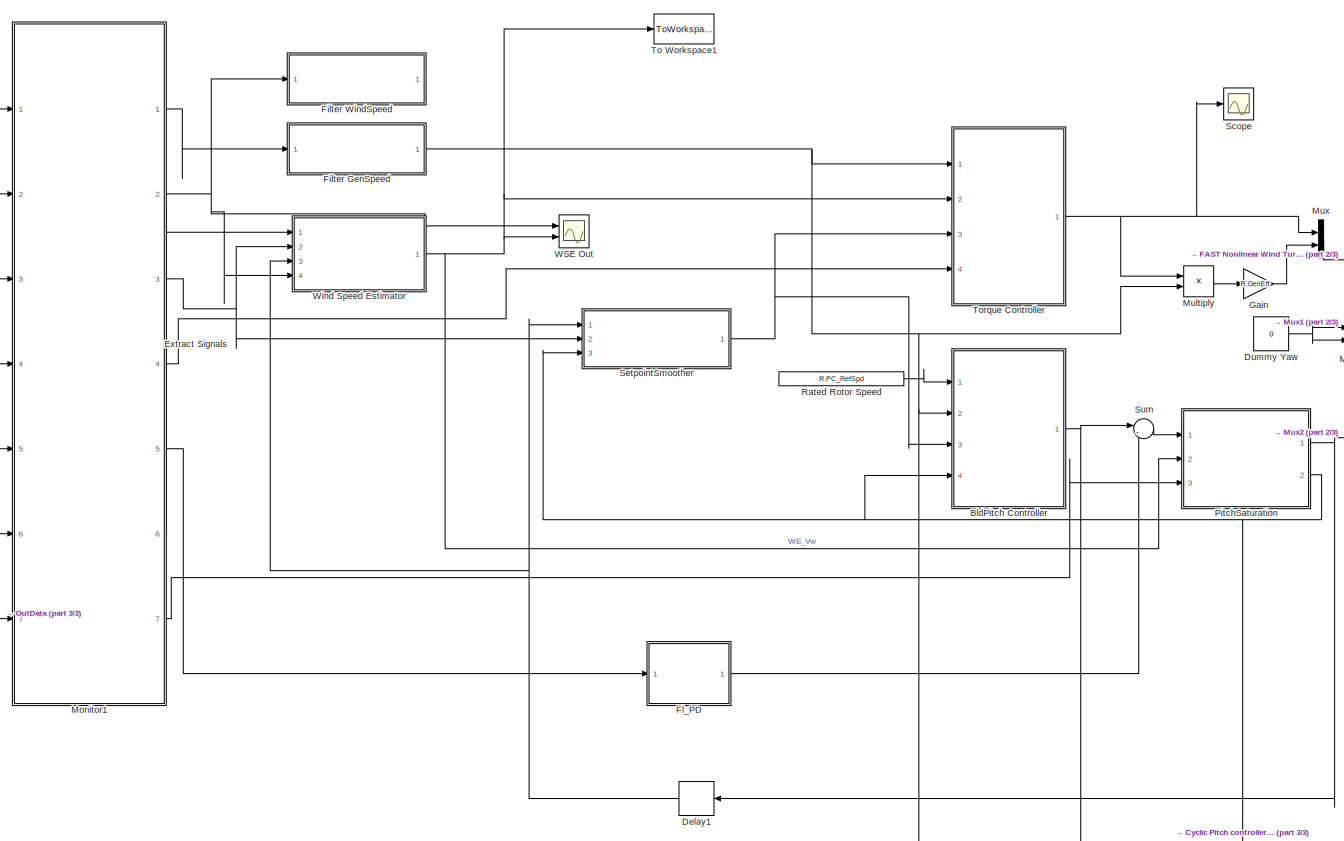
[diagram: root canvas - part 1/3, central region]
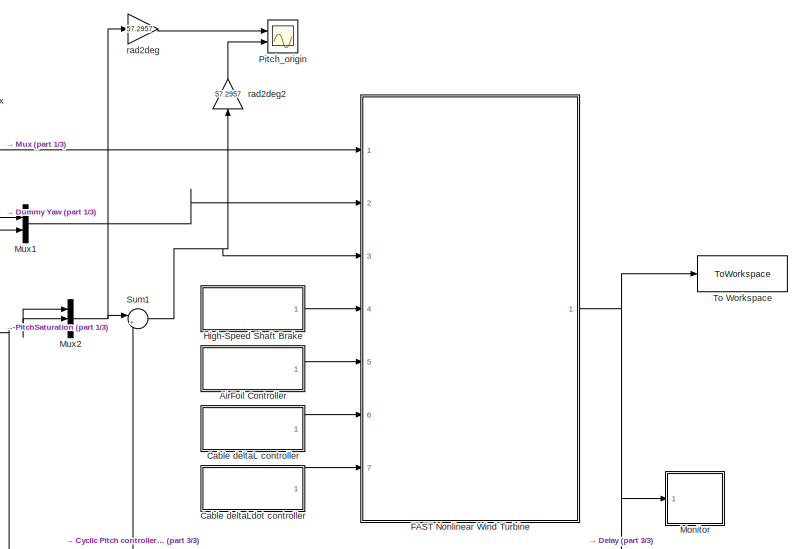
[diagram: root canvas - part 2/3, middle right region]
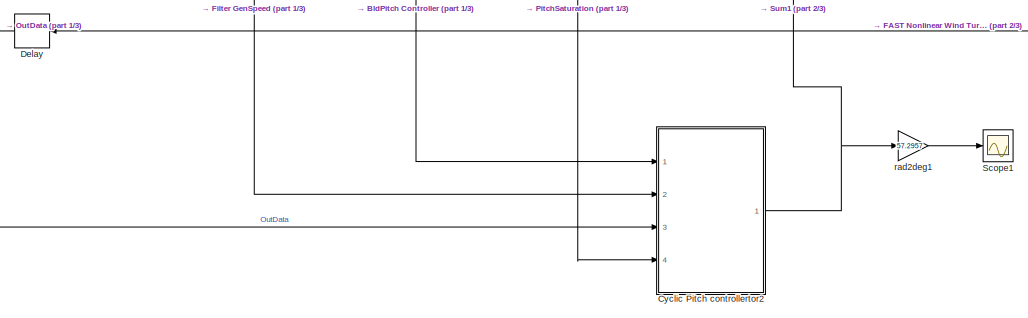
[diagram: root canvas - part 3/3, bottom center region]
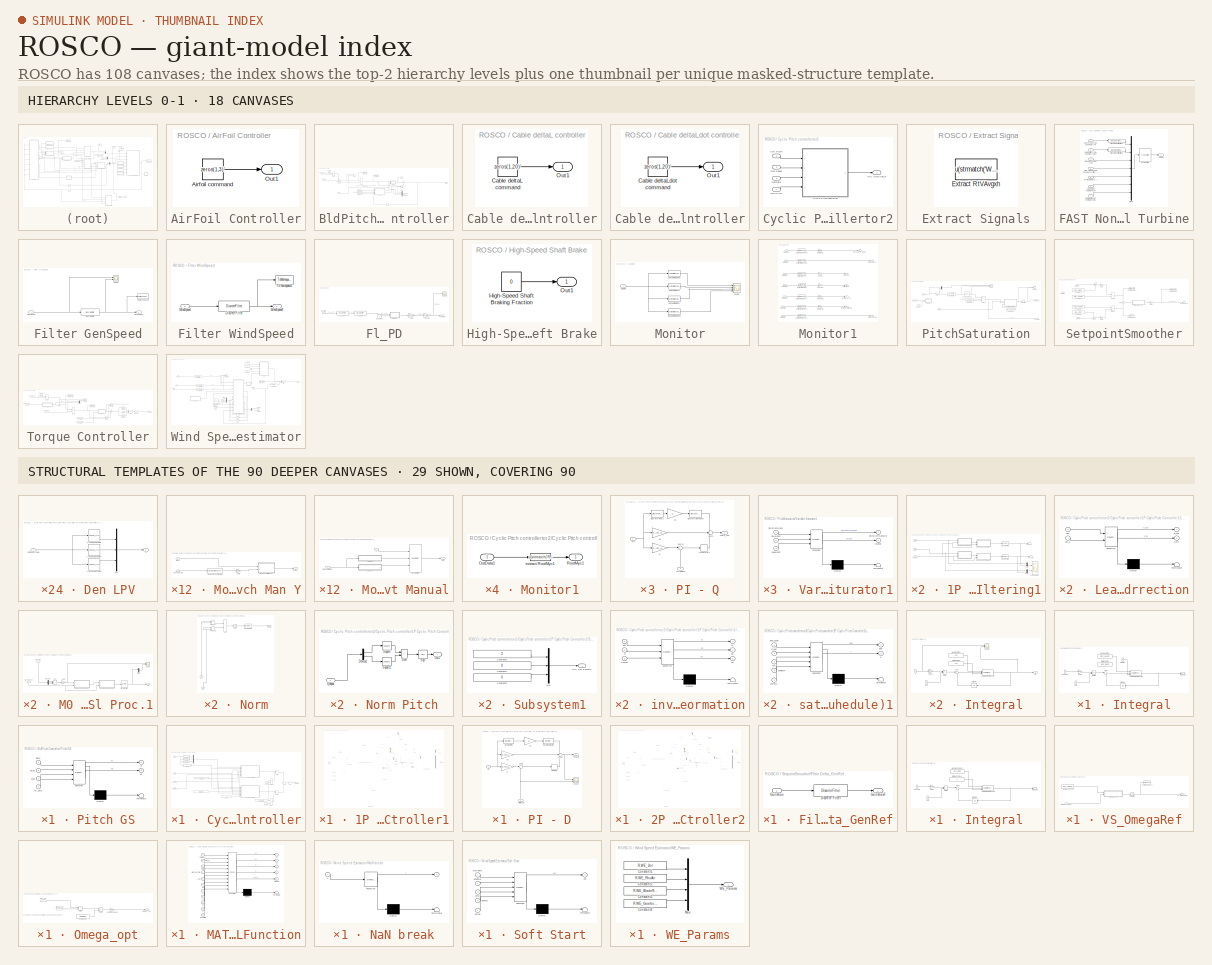
[diagram: thumbnail index - top-2 hierarchy levels (18 canvases) + 29 structural-template representatives of the remaining 90 canvases]
MODEL ROSCO
KIND model
BLOCK [SubSystem] AirFoil Controller
  Ports = [0, 1]
  SID = 1542
BLOCK [Constant] AirFoil Controller/Airfoil command
  SID = 1543
  Value = zeros(1,3)'
BLOCK [Outport] AirFoil Controller/Out1
  SID = 1544
BLOCK [SubSystem] BldPitch Controller
  Ports = [4, 1]
  SID = 376
BLOCK [Outport] BldPitch Controller/BldPitch
  SID = 407
BLOCK [Reference] BldPitch Controller/Compare\nTo Zero1  REF=simulink/Logic and Bit\nOperations/Compare\nTo Zero
  OutDataTypeStr = boolean
  Ports = [1, 1]
  RTWMemSecDataConstants = Inherit from model
  RTWMemSecDataInternal = Inherit from model
  RTWMemSecDataParameters = Inherit from model
  RTWMemSecFuncExecute = Inherit from model
  RTWMemSecFuncInitTerm = Inherit from model
  SID = 654
  SourceBlock = simulink/Logic and Bit\nOperations/Compare\nTo Zero
  SourceType = Compare To Zero
  ZeroCross = on
  relop = <
BLOCK [Constant] BldPitch Controller/Constant1
  SID = 716
  Value = R.PC_GS_KP
BLOCK [Constant] BldPitch Controller/Constant2
  SID = 717
  Value = R.PC_GS_KI
BLOCK [Constant] BldPitch Controller/Constant3
  SID = 718
  Value = R.PC_GS_angles
BLOCK [Inport] BldPitch Controller/Del_omega_g
  Port = 3
  SID = 498
BLOCK [Delay] BldPitch Controller/Delay
  DelayLength = 1
  InputPortMap = u0
  Ports = [1, 1]
  SID = 786
BLOCK [Inport] BldPitch Controller/GenSpeedF
  Port = 2
  SID = 378
BLOCK [SubSystem] BldPitch Controller/Integral
  Ports = [3, 1]
  SID = 385
BLOCK [Inport] BldPitch Controller/Integral/Gain
  Port = 2
  SID = 387
BLOCK [Gain] BldPitch Controller/Integral/Gain1
  Gain = simu.dt
  SID = 388
BLOCK [Outport] BldPitch Controller/Integral/IntSpdErr
  SID = 395
BLOCK [Constant] BldPitch Controller/Integral/Maximum Pitch
  SID = 389
  Value = R.PC_MaxPit
BLOCK [Inport] BldPitch Controller/Integral/Min Pitch
  Port = 3
  SID = 790
BLOCK [Constant] BldPitch Controller/Integral/Minimum Pitch
  SID = 390
  Value = R.PC_MinPit
BLOCK [Product] BldPitch Controller/Integral/Multiply
  Ports = [2, 1]
  SID = 391
BLOCK [Reference] BldPitch Controller/Integral/Saturate Integral\nTerm  REF=simulink/Discontinuities/Saturation\nDynamic
  DoSatur = off
  LockScale = off
  OutDataType = fixdt(1, 16)
  OutDataTypeStr = Inherit: Same as second input
  OutMax = []
  OutMin = []
  OutScaling = 2^-10
  OutputDataTypeScalingMode = Same as second input
  Ports = [3, 1]
  RTWMemSecDataConstants = Inherit from model
  RTWMemSecDataInternal = Inherit from model
  RTWMemSecDataParameters = Inherit from model
  RTWMemSecFuncExecute = Inherit from model
  RTWMemSecFuncInitTerm = Inherit from model
  RndMeth = Nearest
  SID = 392
  SourceBlock = simulink/Discontinuities/Saturation\nDynamic
  SourceType = Saturation Dynamic
BLOCK [Inport] BldPitch Controller/Integral/SpeedErr
  SID = 386
BLOCK [Sum] BldPitch Controller/Integral/Sum
  Inputs = |++
  Ports = [2, 1]
  SID = 393
BLOCK [UnitDelay] BldPitch Controller/Integral/Unit Delay
  HasFrameUpgradeWarning = on
  SID = 394
  SampleTime = -1
BLOCK [Inport] BldPitch Controller/Min Pitch
  Port = 4
  SID = 789
BLOCK [Product] BldPitch Controller/Multiply
  Ports = [2, 1]
  SID = 397
BLOCK [Product] BldPitch Controller/Multiply3
  Ports = [2, 1]
  SID = 655
BLOCK [Mux] BldPitch Controller/Mux
  DisplayOption = bar
  Inputs = 5
  Ports = [5, 1]
  SID = 398
BLOCK [SubSystem] BldPitch Controller/Pitch GS
  ErrorFcn = Stateflow.Translate.translate
  PermitHierarchicalResolution = ExplicitOnly
  Ports = [4, 2]
  SFBlockType = MATLAB Function
  SID = 396
  TreatAsAtomicUnit = on
BLOCK [Demux] BldPitch Controller/Pitch GS/ Demux 
  Outputs = 1
  Ports = [1, 1]
  SID = 396::61
BLOCK [S-Function] BldPitch Controller/Pitch GS/ SFunction 
  EnableBusSupport = off
  FunctionName = sf_sfun
  PortCounts = [4 3]
  Ports = [4, 3]
  SFunctionDeploymentMode = off
  SID = 396::60
  Tag = Stateflow S-Function ROSCO 6
BLOCK [Terminator] BldPitch Controller/Pitch GS/ Terminator 
  SID = 396::62
BLOCK [Inport] BldPitch Controller/Pitch GS/Beta
  SID = 396::45
BLOCK [Outport] BldPitch Controller/Pitch GS/Ki
  SID = 396::22
BLOCK [Inport] BldPitch Controller/Pitch GS/Ki_pc
  Port = 3
  SID = 396::54
BLOCK [Outport] BldPitch Controller/Pitch GS/Kp
  Port = 2
  SID = 396::5
BLOCK [Inport] BldPitch Controller/Pitch GS/Kp_pc
  Port = 2
  SID = 396::56
BLOCK [Inport] BldPitch Controller/Pitch GS/PC_beta
  Port = 4
  SID = 396::55
BLOCK [Scope] BldPitch Controller/Scope
  Commented = on
  Floating = off
  NumInputPorts = 2
  Ports = [2]
  SID = 813
  ScopeSpecificationString = Simulink.scopes.TimeScopeBlockCfg('CurrentConfiguration', extmgr.ConfigurationSet(extmgr.Configuration('Core','General UI',true),extmgr.Configuration('Core','Source UI',true),extmgr.Configuration('Sources','WiredSimulink',true,'DataLoggingVariableName','ScopeData1'),extmgr.Configuration('Visuals','Time Domain',true,'SerializedDisplays',{struct('MinYLimReal','-15.34195','MaxYLimReal','161.74389','Y...<+1436ch>
BLOCK [Scope] BldPitch Controller/Scope1
  Commented = on
  Floating = off
  NumInputPorts = 1
  Ports = [1]
  SID = 413
  ScopeSpecificationString = Simulink.scopes.TimeScopeBlockCfg('CurrentConfiguration', extmgr.ConfigurationSet(extmgr.Configuration('Core','General UI',true),extmgr.Configuration('Core','Source UI',true),extmgr.Configuration('Sources','WiredSimulink',true,'DataLoggingVariableName','ScopeData1'),extmgr.Configuration('Visuals','Time Domain',true,'SerializedDisplays',{struct('MinYLimReal','-0.02964','MaxYLimReal','0.31037','YLab...<+1464ch>
BLOCK [Sum] BldPitch Controller/Sum
  IconShape = rectangular
  Inputs = +-
  Ports = [2, 1]
  SID = 402
BLOCK [Sum] BldPitch Controller/Sum1
  Inputs = |++
  Ports = [2, 1]
  SID = 403
BLOCK [Sum] BldPitch Controller/Sum3
  Inputs = -+|
  Ports = [2, 1]
  SID = 656
BLOCK [ToWorkspace] BldPitch Controller/To Workspace
  FixptAsFi = on
  MaxDataPoints = inf
  Ports = [1]
  SID = 412
  SampleTime = -1
  SaveFormat = Timeseries
  VariableName = SpdErr
BLOCK [ToWorkspace] BldPitch Controller/To Workspace1
  FixptAsFi = on
  MaxDataPoints = inf
  Ports = [1]
  SID = 405
  SampleTime = -1
  SaveFormat = Structure
  VariableName = PC_params
BLOCK [ToWorkspace] BldPitch Controller/To Workspace2
  FixptAsFi = on
  MaxDataPoints = inf
  Ports = [1]
  SID = 537
  SampleTime = -1
  SaveFormat = Timeseries
  VariableName = Omega_bg_ref
BLOCK [Inport] BldPitch Controller/omega_g,ref
  SID = 497
BLOCK [SubSystem] Cable deltaL controller
  Ports = [0, 1]
  SID = 1545
BLOCK [Constant] Cable deltaL controller/Cable deltaL command
  SID = 1546
  Value = zeros(1,20)'
BLOCK [Outport] Cable deltaL controller/Out1
  SID = 1547
BLOCK [SubSystem] Cable deltaLdot controller
  Ports = [0, 1]
  SID = 1548
BLOCK [Constant] Cable deltaLdot controller/Cable deltaLdot command
  SID = 1549
  Value = zeros(1,20)'
BLOCK [Outport] Cable deltaLdot controller/Out1
  SID = 1550
BLOCK [SubSystem] Cyclic Pitch controllertor2
  Ports = [4, 1]
  SID = 1641
  TreatAsAtomicUnit = on
BLOCK [Inport] Cyclic Pitch controllertor2/Coll.Pitch
  SID = 1642
BLOCK [SubSystem] Cyclic Pitch controllertor2/Cyclic Pitch controller
  MinAlgLoopOccurrences = on
  Ports = [4, 1]
  SID = 859
  TreatAsAtomicUnit = on
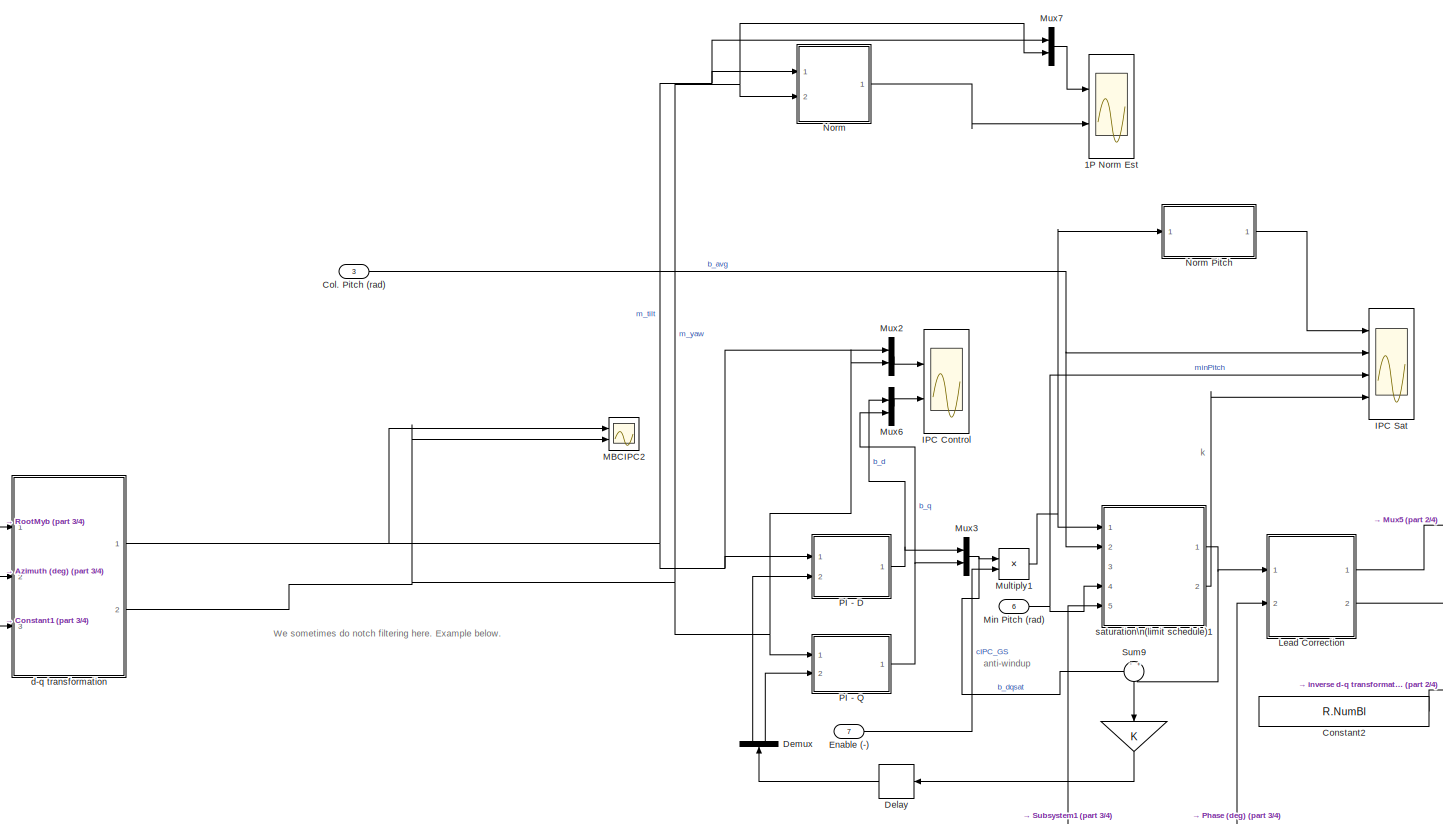
[diagram: Cyclic Pitch controllertor2/Cyclic Pitch controller/1P Cyclic Pitch Controller1 - part 1/4, top center region]
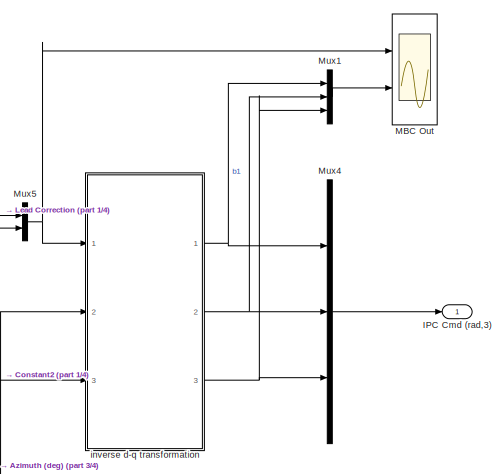
[diagram: Cyclic Pitch controllertor2/Cyclic Pitch controller/1P Cyclic Pitch Controller1 - part 2/4, middle right region]
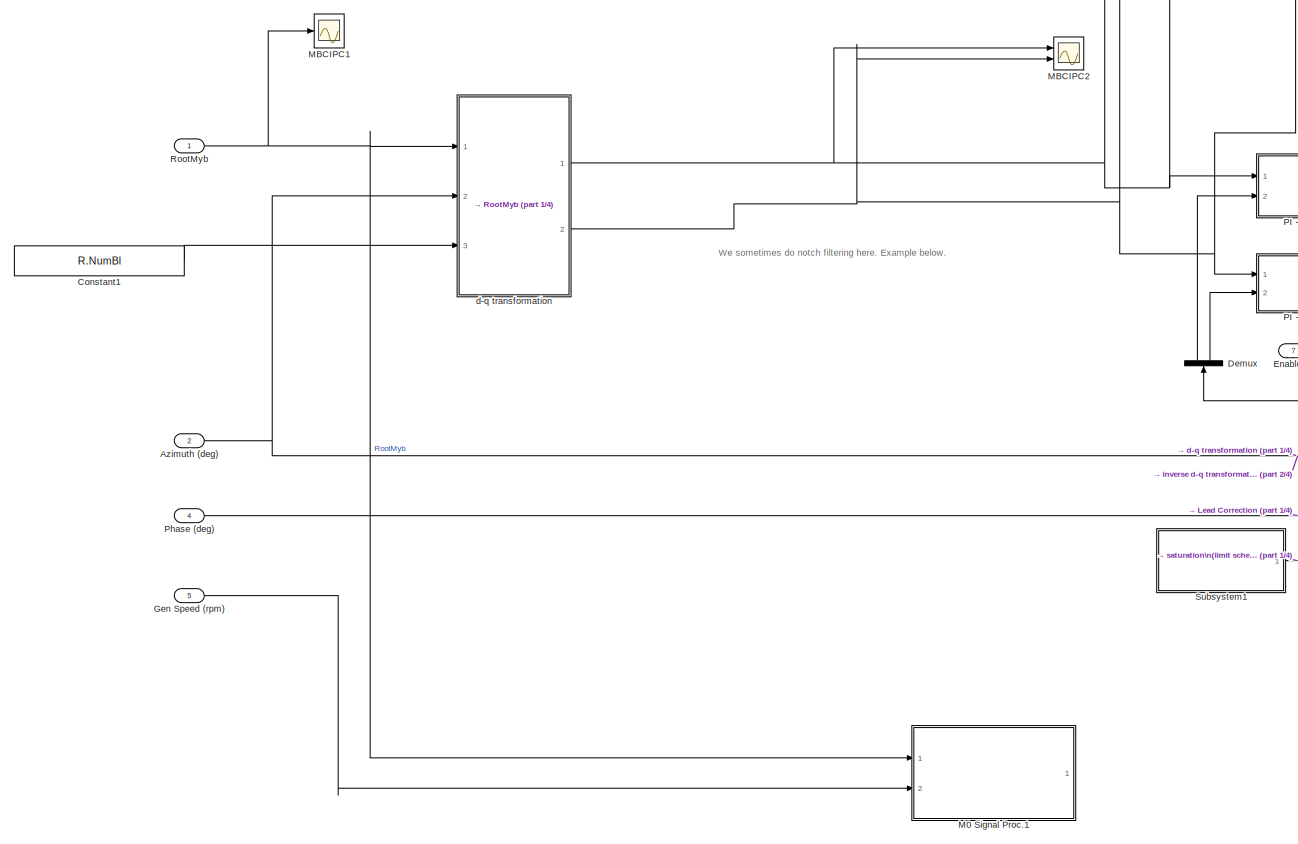
[diagram: Cyclic Pitch controllertor2/Cyclic Pitch controller/1P Cyclic Pitch Controller1 - part 3/4, middle left region]
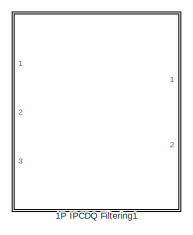
[diagram: Cyclic Pitch controllertor2/Cyclic Pitch controller/1P Cyclic Pitch Controller1 - part 4/4, bottom center region]
BLOCK [SubSystem] Cyclic Pitch controllertor2/Cyclic Pitch controller/1P Cyclic Pitch Controller1
  Ports = [7, 1]
  SID = 866
BLOCK [Gain] Cyclic Pitch controllertor2/Cyclic Pitch controller/1P Cyclic Pitch Controller1/ 
  SID = 874
BLOCK [SubSystem] Cyclic Pitch controllertor2/Cyclic Pitch controller/1P Cyclic Pitch Controller1/1P IPCDQ Filtering1
  Commented = on
  Ports = [3, 2]
  SID = 875
BLOCK [DiscreteFilter] Cyclic Pitch controllertor2/Cyclic Pitch controller/1P Cyclic Pitch Controller1/1P IPCDQ Filtering1/Discrete Filter2
  Denominator = Parameter.Control.cIPC.IPCDQ_LPF.Denominator{1}
  InputPortMap = u0
  Numerator = Parameter.Control.cIPC.IPCDQ_LPF.Numerator{1}
  Ports = [1, 1]
  SID = 879
  SampleTime = Parameter.Control.DT
BLOCK [DiscreteFilter] Cyclic Pitch controllertor2/Cyclic Pitch controller/1P Cyclic Pitch Controller1/1P IPCDQ Filtering1/Discrete Filter3
  Denominator = Parameter.Control.cIPC.IPCDQ_LPF.Denominator{1}
  InputPortMap = u0
  Numerator = Parameter.Control.cIPC.IPCDQ_LPF.Numerator{1}
  Ports = [1, 1]
  SID = 880
  SampleTime = Parameter.Control.DT
BLOCK [Scope] Cyclic Pitch controllertor2/Cyclic Pitch controller/1P Cyclic Pitch Controller1/1P IPCDQ Filtering1/IPC NFs Man 2
  Floating = off
  NumInputPorts = 2
  Ports = [2]
  SID = 881
  ScopeSpecificationString = Simulink.scopes.TimeScopeBlockCfg('CurrentConfiguration', extmgr.ConfigurationSet(extmgr.Configuration('Core','General UI',true),extmgr.Configuration('Core','Source UI',true),extmgr.Configuration('Sources','WiredSimulink',true,'DataLoggingVariableName','ScopeData2'),extmgr.Configuration('Visuals','Time Domain',true,'SerializedDisplays',{struct('MinYLimReal','-2144.43565','MaxYLimReal','2325.50515'...<+2153ch>
BLOCK [SubSystem] Cyclic Pitch controllertor2/Cyclic Pitch controller/1P Cyclic Pitch Controller1/1P IPCDQ Filtering1/Moving 3P Notch Man Y
  Ports = [2, 1]
  SID = 882
BLOCK [Gain] Cyclic Pitch controllertor2/Cyclic Pitch controller/1P Cyclic Pitch Controller1/1P IPCDQ Filtering1/Moving 3P Notch Man Y/Gain
  Gain = 1/Parameter.Turbine.G * rpm2radps(1) * 3
  SID = 885
BLOCK [Inport] Cyclic Pitch controllertor2/Cyclic Pitch controller/1P Cyclic Pitch Controller1/1P IPCDQ Filtering1/Moving 3P Notch Man Y/GenSpeedIN
  Port = 2
  SID = 884
BLOCK [Inport] Cyclic Pitch controllertor2/Cyclic Pitch controller/1P Cyclic Pitch Controller1/1P IPCDQ Filtering1/Moving 3P Notch Man Y/Input
  SID = 883
BLOCK [SubSystem] Cyclic Pitch controllertor2/Cyclic Pitch controller/1P Cyclic Pitch Controller1/1P IPCDQ Filtering1/Moving 3P Notch Man Y/Moving 3P Filt Manual
  Ports = [2, 1]
  SID = 886
BLOCK [SubSystem] Cyclic Pitch controllertor2/Cyclic Pitch controller/1P Cyclic Pitch Controller1/1P IPCDQ Filtering1/Moving 3P Notch Man Y/Moving 3P Filt Manual/Den LPV
  Ports = [1, 1]
  SID = 889
BLOCK [Lookup_n-D] Cyclic Pitch controllertor2/Cyclic Pitch controller/1P Cyclic Pitch Controller1/1P IPCDQ Filtering1/Moving 3P Notch Man Y/Moving 3P Filt Manual/Den LPV/1-D Lookup\nTable
  BeginIndexSearchUsingPreviousIndexResult = on
  BreakpointsForDimension1 = Parameter.Control.cIPC.PSM0_NF_3P.om_3P
  ExtrapMethod = Clip
  InternalRulePriority = Speed
  NumberOfTableDimensions = 1
  Ports = [1, 1]
  RndMeth = Simplest
  SID = 891
  Table = Parameter.Control.cIPC.PSM0_NF_3P.a_2
BLOCK [Lookup_n-D] Cyclic Pitch controllertor2/Cyclic Pitch controller/1P Cyclic Pitch Controller1/1P IPCDQ Filtering1/Moving 3P Notch Man Y/Moving 3P Filt Manual/Den LPV/1-D Lookup\nTable1
  BeginIndexSearchUsingPreviousIndexResult = on
  BreakpointsForDimension1 = Parameter.Control.cIPC.PSM0_NF_3P.om_3P
  ExtrapMethod = Clip
  InternalRulePriority = Speed
  NumberOfTableDimensions = 1
  Ports = [1, 1]
  RndMeth = Simplest
  SID = 892
  Table = Parameter.Control.cIPC.PSM0_NF_3P.a_1
BLOCK [Lookup_n-D] Cyclic Pitch controllertor2/Cyclic Pitch controller/1P Cyclic Pitch Controller1/1P IPCDQ Filtering1/Moving 3P Notch Man Y/Moving 3P Filt Manual/Den LPV/1-D Lookup\nTable2
  BeginIndexSearchUsingPreviousIndexResult = on
  BreakpointsForDimension1 = Parameter.Control.cIPC.PSM0_NF_3P.om_3P
  ExtrapMethod = Clip
  InternalRulePriority = Speed
  NumberOfTableDimensions = 1
  Ports = [1, 1]
  RndMeth = Simplest
  SID = 893
  Table = Parameter.Control.cIPC.PSM0_NF_3P.a_0
BLOCK [Mux] Cyclic Pitch controllertor2/Cyclic Pitch controller/1P Cyclic Pitch Controller1/1P IPCDQ Filtering1/Moving 3P Notch Man Y/Moving 3P Filt Manual/Den LPV/Mux
  DisplayOption = bar
  Inputs = 3
  Ports = [3, 1]
  SID = 894
BLOCK [Outport] Cyclic Pitch controllertor2/Cyclic Pitch controller/1P Cyclic Pitch Controller1/1P IPCDQ Filtering1/Moving 3P Notch Man Y/Moving 3P Filt Manual/Den LPV/a
  SID = 895
BLOCK [Inport] Cyclic Pitch controllertor2/Cyclic Pitch controller/1P Cyclic Pitch Controller1/1P IPCDQ Filtering1/Moving 3P Notch Man Y/Moving 3P Filt Manual/Den LPV/rot speed (rad//s)
  SID = 890
BLOCK [DiscreteFilter] Cyclic Pitch controllertor2/Cyclic Pitch controller/1P Cyclic Pitch Controller1/1P IPCDQ Filtering1/Moving 3P Notch Man Y/Moving 3P Filt Manual/Discrete Filter
  DenominatorSource = Input port
  InputPortMap = u0,p1,p3
  NumeratorSource = Input port
  Ports = [3, 1]
  SID = 896
  a0EqualsOne = on
BLOCK [SubSystem] Cyclic Pitch controllertor2/Cyclic Pitch controller/1P Cyclic Pitch Controller1/1P IPCDQ Filtering1/Moving 3P Notch Man Y/Moving 3P Filt Manual/Num LPV
  Ports = [1, 1]
  SID = 897
BLOCK [Lookup_n-D] Cyclic Pitch controllertor2/Cyclic Pitch controller/1P Cyclic Pitch Controller1/1P IPCDQ Filtering1/Moving 3P Notch Man Y/Moving 3P Filt Manual/Num LPV/1-D Lookup\nTable
  BeginIndexSearchUsingPreviousIndexResult = on
  BreakpointsForDimension1 = Parameter.Control.cIPC.PSM0_NF_3P.om_3P
  ExtrapMethod = Clip
  InternalRulePriority = Speed
  NumberOfTableDimensions = 1
  Ports = [1, 1]
  RndMeth = Simplest
  SID = 899
  Table = Parameter.Control.cIPC.PSM0_NF_3P.b_2
BLOCK [Lookup_n-D] Cyclic Pitch controllertor2/Cyclic Pitch controller/1P Cyclic Pitch Controller1/1P IPCDQ Filtering1/Moving 3P Notch Man Y/Moving 3P Filt Manual/Num LPV/1-D Lookup\nTable1
  BeginIndexSearchUsingPreviousIndexResult = on
  BreakpointsForDimension1 = Parameter.Control.cIPC.PSM0_NF_3P.om_3P
  ExtrapMethod = Clip
  InternalRulePriority = Speed
  NumberOfTableDimensions = 1
  Ports = [1, 1]
  RndMeth = Simplest
  SID = 900
  Table = Parameter.Control.cIPC.PSM0_NF_3P.b_1
BLOCK [Lookup_n-D] Cyclic Pitch controllertor2/Cyclic Pitch controller/1P Cyclic Pitch Controller1/1P IPCDQ Filtering1/Moving 3P Notch Man Y/Moving 3P Filt Manual/Num LPV/1-D Lookup\nTable2
  BeginIndexSearchUsingPreviousIndexResult = on
  BreakpointsForDimension1 = Parameter.Control.cIPC.PSM0_NF_3P.om_3P
  ExtrapMethod = Clip
  InternalRulePriority = Speed
  NumberOfTableDimensions = 1
  Ports = [1, 1]
  RndMeth = Simplest
  SID = 901
  Table = Parameter.Control.cIPC.PSM0_NF_3P.b_0
BLOCK [Mux] Cyclic Pitch controllertor2/Cyclic Pitch controller/1P Cyclic Pitch Controller1/1P IPCDQ Filtering1/Moving 3P Notch Man Y/Moving 3P Filt Manual/Num LPV/Mux
  DisplayOption = bar
  Inputs = 3
  Ports = [3, 1]
  SID = 902
BLOCK [Outport] Cyclic Pitch controllertor2/Cyclic Pitch controller/1P Cyclic Pitch Controller1/1P IPCDQ Filtering1/Moving 3P Notch Man Y/Moving 3P Filt Manual/Num LPV/b
  SID = 903
BLOCK [Inport] Cyclic Pitch controllertor2/Cyclic Pitch controller/1P Cyclic Pitch Controller1/1P IPCDQ Filtering1/Moving 3P Notch Man Y/Moving 3P Filt Manual/Num LPV/rot speed (rad//s)
  SID = 898
BLOCK [Outport] Cyclic Pitch controllertor2/Cyclic Pitch controller/1P Cyclic Pitch Controller1/1P IPCDQ Filtering1/Moving 3P Notch Man Y/Moving 3P Filt Manual/Out1
  SID = 904
BLOCK [Inport] Cyclic Pitch controllertor2/Cyclic Pitch controller/1P Cyclic Pitch Controller1/1P IPCDQ Filtering1/Moving 3P Notch Man Y/Moving 3P Filt Manual/rot speed (rad//s)
  Port = 2
  SID = 888
BLOCK [Inport] Cyclic Pitch controllertor2/Cyclic Pitch controller/1P Cyclic Pitch Controller1/1P IPCDQ Filtering1/Moving 3P Notch Man Y/Moving 3P Filt Manual/u
  SID = 887
BLOCK [Outport] Cyclic Pitch controllertor2/Cyclic Pitch controller/1P Cyclic Pitch Controller1/1P IPCDQ Filtering1/Moving 3P Notch Man Y/Output
  SID = 906
BLOCK [DiscreteStateSpace] Cyclic Pitch controllertor2/Cyclic Pitch controller/1P Cyclic Pitch Controller1/1P IPCDQ Filtering1/Moving 3P Notch Man Y/Slow Low Pass for Param
  A = Parameter.Control.cIPC.dLPF_slow.a
  B = Parameter.Control.cIPC.dLPF_slow.b
  C = Parameter.Control.cIPC.dLPF_slow.c
  D = Parameter.Control.cIPC.dLPF_slow.d
  SID = 905
  SampleTime = Parameter.Control.DT
BLOCK [SubSystem] Cyclic Pitch controllertor2/Cyclic Pitch controller/1P Cyclic Pitch Controller1/1P IPCDQ Filtering1/Moving 3P Notch Man Z
  Ports = [2, 1]
  SID = 907
BLOCK [Gain] Cyclic Pitch controllertor2/Cyclic Pitch controller/1P Cyclic Pitch Controller1/1P IPCDQ Filtering1/Moving 3P Notch Man Z/Gain
  Gain = 1/Parameter.Turbine.G * rpm2radps(1) * 3
  SID = 910
BLOCK [Inport] Cyclic Pitch controllertor2/Cyclic Pitch controller/1P Cyclic Pitch Controller1/1P IPCDQ Filtering1/Moving 3P Notch Man Z/GenSpeedIN
  Port = 2
  SID = 909
BLOCK [Inport] Cyclic Pitch controllertor2/Cyclic Pitch controller/1P Cyclic Pitch Controller1/1P IPCDQ Filtering1/Moving 3P Notch Man Z/Input
  SID = 908
BLOCK [SubSystem] Cyclic Pitch controllertor2/Cyclic Pitch controller/1P Cyclic Pitch Controller1/1P IPCDQ Filtering1/Moving 3P Notch Man Z/Moving 3P Filt Manual
  Ports = [2, 1]
  SID = 911
BLOCK [SubSystem] Cyclic Pitch controllertor2/Cyclic Pitch controller/1P Cyclic Pitch Controller1/1P IPCDQ Filtering1/Moving 3P Notch Man Z/Moving 3P Filt Manual/Den LPV
  Ports = [1, 1]
  SID = 914
BLOCK [Lookup_n-D] Cyclic Pitch controllertor2/Cyclic Pitch controller/1P Cyclic Pitch Controller1/1P IPCDQ Filtering1/Moving 3P Notch Man Z/Moving 3P Filt Manual/Den LPV/1-D Lookup\nTable
  BeginIndexSearchUsingPreviousIndexResult = on
  BreakpointsForDimension1 = Parameter.Control.cIPC.PSM0_NF_3P.om_3P
  ExtrapMethod = Clip
  InternalRulePriority = Speed
  NumberOfTableDimensions = 1
  Ports = [1, 1]
  RndMeth = Simplest
  SID = 916
  Table = Parameter.Control.cIPC.PSM0_NF_3P.a_2
BLOCK [Lookup_n-D] Cyclic Pitch controllertor2/Cyclic Pitch controller/1P Cyclic Pitch Controller1/1P IPCDQ Filtering1/Moving 3P Notch Man Z/Moving 3P Filt Manual/Den LPV/1-D Lookup\nTable1
  BeginIndexSearchUsingPreviousIndexResult = on
  BreakpointsForDimension1 = Parameter.Control.cIPC.PSM0_NF_3P.om_3P
  ExtrapMethod = Clip
  InternalRulePriority = Speed
  NumberOfTableDimensions = 1
  Ports = [1, 1]
  RndMeth = Simplest
  SID = 917
  Table = Parameter.Control.cIPC.PSM0_NF_3P.a_1
BLOCK [Lookup_n-D] Cyclic Pitch controllertor2/Cyclic Pitch controller/1P Cyclic Pitch Controller1/1P IPCDQ Filtering1/Moving 3P Notch Man Z/Moving 3P Filt Manual/Den LPV/1-D Lookup\nTable2
  BeginIndexSearchUsingPreviousIndexResult = on
  BreakpointsForDimension1 = Parameter.Control.cIPC.PSM0_NF_3P.om_3P
  ExtrapMethod = Clip
  InternalRulePriority = Speed
  NumberOfTableDimensions = 1
  Ports = [1, 1]
  RndMeth = Simplest
  SID = 918
  Table = Parameter.Control.cIPC.PSM0_NF_3P.a_0
BLOCK [Mux] Cyclic Pitch controllertor2/Cyclic Pitch controller/1P Cyclic Pitch Controller1/1P IPCDQ Filtering1/Moving 3P Notch Man Z/Moving 3P Filt Manual/Den LPV/Mux
  DisplayOption = bar
  Inputs = 3
  Ports = [3, 1]
  SID = 919
BLOCK [Outport] Cyclic Pitch controllertor2/Cyclic Pitch controller/1P Cyclic Pitch Controller1/1P IPCDQ Filtering1/Moving 3P Notch Man Z/Moving 3P Filt Manual/Den LPV/a
  SID = 920
BLOCK [Inport] Cyclic Pitch controllertor2/Cyclic Pitch controller/1P Cyclic Pitch Controller1/1P IPCDQ Filtering1/Moving 3P Notch Man Z/Moving 3P Filt Manual/Den LPV/rot speed (rad//s)
  SID = 915
BLOCK [DiscreteFilter] Cyclic Pitch controllertor2/Cyclic Pitch controller/1P Cyclic Pitch Controller1/1P IPCDQ Filtering1/Moving 3P Notch Man Z/Moving 3P Filt Manual/Discrete Filter
  DenominatorSource = Input port
  InputPortMap = u0,p1,p3
  NumeratorSource = Input port
  Ports = [3, 1]
  SID = 921
  a0EqualsOne = on
BLOCK [SubSystem] Cyclic Pitch controllertor2/Cyclic Pitch controller/1P Cyclic Pitch Controller1/1P IPCDQ Filtering1/Moving 3P Notch Man Z/Moving 3P Filt Manual/Num LPV
  Ports = [1, 1]
  SID = 922
BLOCK [Lookup_n-D] Cyclic Pitch controllertor2/Cyclic Pitch controller/1P Cyclic Pitch Controller1/1P IPCDQ Filtering1/Moving 3P Notch Man Z/Moving 3P Filt Manual/Num LPV/1-D Lookup\nTable
  BeginIndexSearchUsingPreviousIndexResult = on
  BreakpointsForDimension1 = Parameter.Control.cIPC.PSM0_NF_3P.om_3P
  ExtrapMethod = Clip
  InternalRulePriority = Speed
  NumberOfTableDimensions = 1
  Ports = [1, 1]
  RndMeth = Simplest
  SID = 924
  Table = Parameter.Control.cIPC.PSM0_NF_3P.b_2
BLOCK [Lookup_n-D] Cyclic Pitch controllertor2/Cyclic Pitch controller/1P Cyclic Pitch Controller1/1P IPCDQ Filtering1/Moving 3P Notch Man Z/Moving 3P Filt Manual/Num LPV/1-D Lookup\nTable1
  BeginIndexSearchUsingPreviousIndexResult = on
  BreakpointsForDimension1 = Parameter.Control.cIPC.PSM0_NF_3P.om_3P
  ExtrapMethod = Clip
  InternalRulePriority = Speed
  NumberOfTableDimensions = 1
  Ports = [1, 1]
  RndMeth = Simplest
  SID = 925
  Table = Parameter.Control.cIPC.PSM0_NF_3P.b_1
BLOCK [Lookup_n-D] Cyclic Pitch controllertor2/Cyclic Pitch controller/1P Cyclic Pitch Controller1/1P IPCDQ Filtering1/Moving 3P Notch Man Z/Moving 3P Filt Manual/Num LPV/1-D Lookup\nTable2
  BeginIndexSearchUsingPreviousIndexResult = on
  BreakpointsForDimension1 = Parameter.Control.cIPC.PSM0_NF_3P.om_3P
  ExtrapMethod = Clip
  InternalRulePriority = Speed
  NumberOfTableDimensions = 1
  Ports = [1, 1]
  RndMeth = Simplest
  SID = 926
  Table = Parameter.Control.cIPC.PSM0_NF_3P.b_0
BLOCK [Mux] Cyclic Pitch controllertor2/Cyclic Pitch controller/1P Cyclic Pitch Controller1/1P IPCDQ Filtering1/Moving 3P Notch Man Z/Moving 3P Filt Manual/Num LPV/Mux
  DisplayOption = bar
  Inputs = 3
  Ports = [3, 1]
  SID = 927
BLOCK [Outport] Cyclic Pitch controllertor2/Cyclic Pitch controller/1P Cyclic Pitch Controller1/1P IPCDQ Filtering1/Moving 3P Notch Man Z/Moving 3P Filt Manual/Num LPV/b
  SID = 928
BLOCK [Inport] Cyclic Pitch controllertor2/Cyclic Pitch controller/1P Cyclic Pitch Controller1/1P IPCDQ Filtering1/Moving 3P Notch Man Z/Moving 3P Filt Manual/Num LPV/rot speed (rad//s)
  SID = 923
BLOCK [Outport] Cyclic Pitch controllertor2/Cyclic Pitch controller/1P Cyclic Pitch Controller1/1P IPCDQ Filtering1/Moving 3P Notch Man Z/Moving 3P Filt Manual/Out1
  SID = 929
BLOCK [Inport] Cyclic Pitch controllertor2/Cyclic Pitch controller/1P Cyclic Pitch Controller1/1P IPCDQ Filtering1/Moving 3P Notch Man Z/Moving 3P Filt Manual/rot speed (rad//s)
  Port = 2
  SID = 913
BLOCK [Inport] Cyclic Pitch controllertor2/Cyclic Pitch controller/1P Cyclic Pitch Controller1/1P IPCDQ Filtering1/Moving 3P Notch Man Z/Moving 3P Filt Manual/u
  SID = 912
BLOCK [Outport] Cyclic Pitch controllertor2/Cyclic Pitch controller/1P Cyclic Pitch Controller1/1P IPCDQ Filtering1/Moving 3P Notch Man Z/Output
  SID = 931
BLOCK [DiscreteStateSpace] Cyclic Pitch controllertor2/Cyclic Pitch controller/1P Cyclic Pitch Controller1/1P IPCDQ Filtering1/Moving 3P Notch Man Z/Slow Low Pass for Param
  A = Parameter.Control.cIPC.dLPF_slow.a
  B = Parameter.Control.cIPC.dLPF_slow.b
  C = Parameter.Control.cIPC.dLPF_slow.c
  D = Parameter.Control.cIPC.dLPF_slow.d
  SID = 930
  SampleTime = Parameter.Control.DT
BLOCK [SubSystem] Cyclic Pitch controllertor2/Cyclic Pitch controller/1P Cyclic Pitch Controller1/1P IPCDQ Filtering1/Moving 6P Notch Man Y
  Ports = [2, 1]
  SID = 932
BLOCK [Gain] Cyclic Pitch controllertor2/Cyclic Pitch controller/1P Cyclic Pitch Controller1/1P IPCDQ Filtering1/Moving 6P Notch Man Y/Gain
  Gain = 1/Parameter.Turbine.G * rpm2radps(1) * 3
  SID = 935
BLOCK [Inport] Cyclic Pitch controllertor2/Cyclic Pitch controller/1P Cyclic Pitch Controller1/1P IPCDQ Filtering1/Moving 6P Notch Man Y/GenSpeedIN
  Port = 2
  SID = 934
BLOCK [Inport] Cyclic Pitch controllertor2/Cyclic Pitch controller/1P Cyclic Pitch Controller1/1P IPCDQ Filtering1/Moving 6P Notch Man Y/Input
  SID = 933
BLOCK [SubSystem] Cyclic Pitch controllertor2/Cyclic Pitch controller/1P Cyclic Pitch Controller1/1P IPCDQ Filtering1/Moving 6P Notch Man Y/Moving 6P Filt Manual
  Ports = [2, 1]
  SID = 936
BLOCK [SubSystem] Cyclic Pitch controllertor2/Cyclic Pitch controller/1P Cyclic Pitch Controller1/1P IPCDQ Filtering1/Moving 6P Notch Man Y/Moving 6P Filt Manual/Den LPV
  Ports = [1, 1]
  SID = 939
BLOCK [Lookup_n-D] Cyclic Pitch controllertor2/Cyclic Pitch controller/1P Cyclic Pitch Controller1/1P IPCDQ Filtering1/Moving 6P Notch Man Y/Moving 6P Filt Manual/Den LPV/1-D Lookup\nTable
  BeginIndexSearchUsingPreviousIndexResult = on
  BreakpointsForDimension1 = Parameter.Control.cIPC.PSM0_NF_6P.om_6P
  ExtrapMethod = Clip
  InternalRulePriority = Speed
  NumberOfTableDimensions = 1
  Ports = [1, 1]
  RndMeth = Simplest
  SID = 941
  Table = Parameter.Control.cIPC.PSM0_NF_6P.a_2
BLOCK [Lookup_n-D] Cyclic Pitch controllertor2/Cyclic Pitch controller/1P Cyclic Pitch Controller1/1P IPCDQ Filtering1/Moving 6P Notch Man Y/Moving 6P Filt Manual/Den LPV/1-D Lookup\nTable1
  BeginIndexSearchUsingPreviousIndexResult = on
  BreakpointsForDimension1 = Parameter.Control.cIPC.PSM0_NF_6P.om_6P
  ExtrapMethod = Clip
  InternalRulePriority = Speed
  NumberOfTableDimensions = 1
  Ports = [1, 1]
  RndMeth = Simplest
  SID = 942
  Table = Parameter.Control.cIPC.PSM0_NF_6P.a_1
BLOCK [Lookup_n-D] Cyclic Pitch controllertor2/Cyclic Pitch controller/1P Cyclic Pitch Controller1/1P IPCDQ Filtering1/Moving 6P Notch Man Y/Moving 6P Filt Manual/Den LPV/1-D Lookup\nTable2
  BeginIndexSearchUsingPreviousIndexResult = on
  BreakpointsForDimension1 = Parameter.Control.cIPC.PSM0_NF_6P.om_6P
  ExtrapMethod = Clip
  InternalRulePriority = Speed
  NumberOfTableDimensions = 1
  Ports = [1, 1]
  RndMeth = Simplest
  SID = 943
  Table = Parameter.Control.cIPC.PSM0_NF_6P.a_0
BLOCK [Mux] Cyclic Pitch controllertor2/Cyclic Pitch controller/1P Cyclic Pitch Controller1/1P IPCDQ Filtering1/Moving 6P Notch Man Y/Moving 6P Filt Manual/Den LPV/Mux
  DisplayOption = bar
  Inputs = 3
  Ports = [3, 1]
  SID = 944
BLOCK [Outport] Cyclic Pitch controllertor2/Cyclic Pitch controller/1P Cyclic Pitch Controller1/1P IPCDQ Filtering1/Moving 6P Notch Man Y/Moving 6P Filt Manual/Den LPV/a
  SID = 945
BLOCK [Inport] Cyclic Pitch controllertor2/Cyclic Pitch controller/1P Cyclic Pitch Controller1/1P IPCDQ Filtering1/Moving 6P Notch Man Y/Moving 6P Filt Manual/Den LPV/rot speed (rad//s)
  SID = 940
BLOCK [DiscreteFilter] Cyclic Pitch controllertor2/Cyclic Pitch controller/1P Cyclic Pitch Controller1/1P IPCDQ Filtering1/Moving 6P Notch Man Y/Moving 6P Filt Manual/Discrete Filter
  DenominatorSource = Input port
  InputPortMap = u0,p1,p3
  NumeratorSource = Input port
  Ports = [3, 1]
  SID = 946
  a0EqualsOne = on
BLOCK [SubSystem] Cyclic Pitch controllertor2/Cyclic Pitch controller/1P Cyclic Pitch Controller1/1P IPCDQ Filtering1/Moving 6P Notch Man Y/Moving 6P Filt Manual/Num LPV
  Ports = [1, 1]
  SID = 947
BLOCK [Lookup_n-D] Cyclic Pitch controllertor2/Cyclic Pitch controller/1P Cyclic Pitch Controller1/1P IPCDQ Filtering1/Moving 6P Notch Man Y/Moving 6P Filt Manual/Num LPV/1-D Lookup\nTable
  BeginIndexSearchUsingPreviousIndexResult = on
  BreakpointsForDimension1 = Parameter.Control.cIPC.PSM0_NF_6P.om_6P
  ExtrapMethod = Clip
  InternalRulePriority = Speed
  NumberOfTableDimensions = 1
  Ports = [1, 1]
  RndMeth = Simplest
  SID = 949
  Table = Parameter.Control.cIPC.PSM0_NF_6P.b_2
BLOCK [Lookup_n-D] Cyclic Pitch controllertor2/Cyclic Pitch controller/1P Cyclic Pitch Controller1/1P IPCDQ Filtering1/Moving 6P Notch Man Y/Moving 6P Filt Manual/Num LPV/1-D Lookup\nTable1
  BeginIndexSearchUsingPreviousIndexResult = on
  BreakpointsForDimension1 = Parameter.Control.cIPC.PSM0_NF_6P.om_6P
  ExtrapMethod = Clip
  InternalRulePriority = Speed
  NumberOfTableDimensions = 1
  Ports = [1, 1]
  RndMeth = Simplest
  SID = 950
  Table = Parameter.Control.cIPC.PSM0_NF_6P.b_1
BLOCK [Lookup_n-D] Cyclic Pitch controllertor2/Cyclic Pitch controller/1P Cyclic Pitch Controller1/1P IPCDQ Filtering1/Moving 6P Notch Man Y/Moving 6P Filt Manual/Num LPV/1-D Lookup\nTable2
  BeginIndexSearchUsingPreviousIndexResult = on
  BreakpointsForDimension1 = Parameter.Control.cIPC.PSM0_NF_6P.om_6P
  ExtrapMethod = Clip
  InternalRulePriority = Speed
  NumberOfTableDimensions = 1
  Ports = [1, 1]
  RndMeth = Simplest
  SID = 951
  Table = Parameter.Control.cIPC.PSM0_NF_6P.b_0
BLOCK [Mux] Cyclic Pitch controllertor2/Cyclic Pitch controller/1P Cyclic Pitch Controller1/1P IPCDQ Filtering1/Moving 6P Notch Man Y/Moving 6P Filt Manual/Num LPV/Mux
  DisplayOption = bar
  Inputs = 3
  Ports = [3, 1]
  SID = 952
BLOCK [Outport] Cyclic Pitch controllertor2/Cyclic Pitch controller/1P Cyclic Pitch Controller1/1P IPCDQ Filtering1/Moving 6P Notch Man Y/Moving 6P Filt Manual/Num LPV/b
  SID = 953
BLOCK [Inport] Cyclic Pitch controllertor2/Cyclic Pitch controller/1P Cyclic Pitch Controller1/1P IPCDQ Filtering1/Moving 6P Notch Man Y/Moving 6P Filt Manual/Num LPV/rot speed (rad//s)
  SID = 948
BLOCK [Outport] Cyclic Pitch controllertor2/Cyclic Pitch controller/1P Cyclic Pitch Controller1/1P IPCDQ Filtering1/Moving 6P Notch Man Y/Moving 6P Filt Manual/Out1
  SID = 954
BLOCK [Inport] Cyclic Pitch controllertor2/Cyclic Pitch controller/1P Cyclic Pitch Controller1/1P IPCDQ Filtering1/Moving 6P Notch Man Y/Moving 6P Filt Manual/rot speed (rad//s)
  Port = 2
  SID = 938
BLOCK [Inport] Cyclic Pitch controllertor2/Cyclic Pitch controller/1P Cyclic Pitch Controller1/1P IPCDQ Filtering1/Moving 6P Notch Man Y/Moving 6P Filt Manual/u
  SID = 937
BLOCK [Outport] Cyclic Pitch controllertor2/Cyclic Pitch controller/1P Cyclic Pitch Controller1/1P IPCDQ Filtering1/Moving 6P Notch Man Y/Output
  SID = 956
BLOCK [DiscreteStateSpace] Cyclic Pitch controllertor2/Cyclic Pitch controller/1P Cyclic Pitch Controller1/1P IPCDQ Filtering1/Moving 6P Notch Man Y/Slow Low Pass for Param
  A = Parameter.Control.cIPC.dLPF_slow.a
  B = Parameter.Control.cIPC.dLPF_slow.b
  C = Parameter.Control.cIPC.dLPF_slow.c
  D = Parameter.Control.cIPC.dLPF_slow.d
  SID = 955
  SampleTime = Parameter.Control.DT
BLOCK [SubSystem] Cyclic Pitch controllertor2/Cyclic Pitch controller/1P Cyclic Pitch Controller1/1P IPCDQ Filtering1/Moving 6P Notch Man Z
  Ports = [2, 1]
  SID = 957
BLOCK [Gain] Cyclic Pitch controllertor2/Cyclic Pitch controller/1P Cyclic Pitch Controller1/1P IPCDQ Filtering1/Moving 6P Notch Man Z/Gain
  Gain = 1/Parameter.Turbine.G * rpm2radps(1) * 3
  SID = 960
BLOCK [Inport] Cyclic Pitch controllertor2/Cyclic Pitch controller/1P Cyclic Pitch Controller1/1P IPCDQ Filtering1/Moving 6P Notch Man Z/GenSpeedIN
  Port = 2
  SID = 959
BLOCK [Inport] Cyclic Pitch controllertor2/Cyclic Pitch controller/1P Cyclic Pitch Controller1/1P IPCDQ Filtering1/Moving 6P Notch Man Z/Input
  SID = 958
BLOCK [SubSystem] Cyclic Pitch controllertor2/Cyclic Pitch controller/1P Cyclic Pitch Controller1/1P IPCDQ Filtering1/Moving 6P Notch Man Z/Moving 6P Filt Manual
  Ports = [2, 1]
  SID = 961
BLOCK [SubSystem] Cyclic Pitch controllertor2/Cyclic Pitch controller/1P Cyclic Pitch Controller1/1P IPCDQ Filtering1/Moving 6P Notch Man Z/Moving 6P Filt Manual/Den LPV
  Ports = [1, 1]
  SID = 964
BLOCK [Lookup_n-D] Cyclic Pitch controllertor2/Cyclic Pitch controller/1P Cyclic Pitch Controller1/1P IPCDQ Filtering1/Moving 6P Notch Man Z/Moving 6P Filt Manual/Den LPV/1-D Lookup\nTable
  BeginIndexSearchUsingPreviousIndexResult = on
  BreakpointsForDimension1 = Parameter.Control.cIPC.PSM0_NF_6P.om_6P
  ExtrapMethod = Clip
  InternalRulePriority = Speed
  NumberOfTableDimensions = 1
  Ports = [1, 1]
  RndMeth = Simplest
  SID = 966
  Table = Parameter.Control.cIPC.PSM0_NF_6P.a_2
BLOCK [Lookup_n-D] Cyclic Pitch controllertor2/Cyclic Pitch controller/1P Cyclic Pitch Controller1/1P IPCDQ Filtering1/Moving 6P Notch Man Z/Moving 6P Filt Manual/Den LPV/1-D Lookup\nTable1
  BeginIndexSearchUsingPreviousIndexResult = on
  BreakpointsForDimension1 = Parameter.Control.cIPC.PSM0_NF_6P.om_6P
  ExtrapMethod = Clip
  InternalRulePriority = Speed
  NumberOfTableDimensions = 1
  Ports = [1, 1]
  RndMeth = Simplest
  SID = 967
  Table = Parameter.Control.cIPC.PSM0_NF_6P.a_1
BLOCK [Lookup_n-D] Cyclic Pitch controllertor2/Cyclic Pitch controller/1P Cyclic Pitch Controller1/1P IPCDQ Filtering1/Moving 6P Notch Man Z/Moving 6P Filt Manual/Den LPV/1-D Lookup\nTable2
  BeginIndexSearchUsingPreviousIndexResult = on
  BreakpointsForDimension1 = Parameter.Control.cIPC.PSM0_NF_6P.om_6P
  ExtrapMethod = Clip
  InternalRulePriority = Speed
  NumberOfTableDimensions = 1
  Ports = [1, 1]
  RndMeth = Simplest
  SID = 968
  Table = Parameter.Control.cIPC.PSM0_NF_6P.a_0
BLOCK [Mux] Cyclic Pitch controllertor2/Cyclic Pitch controller/1P Cyclic Pitch Controller1/1P IPCDQ Filtering1/Moving 6P Notch Man Z/Moving 6P Filt Manual/Den LPV/Mux
  DisplayOption = bar
  Inputs = 3
  Ports = [3, 1]
  SID = 969
BLOCK [Outport] Cyclic Pitch controllertor2/Cyclic Pitch controller/1P Cyclic Pitch Controller1/1P IPCDQ Filtering1/Moving 6P Notch Man Z/Moving 6P Filt Manual/Den LPV/a
  SID = 970
BLOCK [Inport] Cyclic Pitch controllertor2/Cyclic Pitch controller/1P Cyclic Pitch Controller1/1P IPCDQ Filtering1/Moving 6P Notch Man Z/Moving 6P Filt Manual/Den LPV/rot speed (rad//s)
  SID = 965
BLOCK [DiscreteFilter] Cyclic Pitch controllertor2/Cyclic Pitch controller/1P Cyclic Pitch Controller1/1P IPCDQ Filtering1/Moving 6P Notch Man Z/Moving 6P Filt Manual/Discrete Filter
  DenominatorSource = Input port
  InputPortMap = u0,p1,p3
  NumeratorSource = Input port
  Ports = [3, 1]
  SID = 971
  a0EqualsOne = on
BLOCK [SubSystem] Cyclic Pitch controllertor2/Cyclic Pitch controller/1P Cyclic Pitch Controller1/1P IPCDQ Filtering1/Moving 6P Notch Man Z/Moving 6P Filt Manual/Num LPV
  Ports = [1, 1]
  SID = 972
BLOCK [Lookup_n-D] Cyclic Pitch controllertor2/Cyclic Pitch controller/1P Cyclic Pitch Controller1/1P IPCDQ Filtering1/Moving 6P Notch Man Z/Moving 6P Filt Manual/Num LPV/1-D Lookup\nTable
  BeginIndexSearchUsingPreviousIndexResult = on
  BreakpointsForDimension1 = Parameter.Control.cIPC.PSM0_NF_6P.om_6P
  ExtrapMethod = Clip
  InternalRulePriority = Speed
  NumberOfTableDimensions = 1
  Ports = [1, 1]
  RndMeth = Simplest
  SID = 974
  Table = Parameter.Control.cIPC.PSM0_NF_6P.b_2
BLOCK [Lookup_n-D] Cyclic Pitch controllertor2/Cyclic Pitch controller/1P Cyclic Pitch Controller1/1P IPCDQ Filtering1/Moving 6P Notch Man Z/Moving 6P Filt Manual/Num LPV/1-D Lookup\nTable1
  BeginIndexSearchUsingPreviousIndexResult = on
  BreakpointsForDimension1 = Parameter.Control.cIPC.PSM0_NF_6P.om_6P
  ExtrapMethod = Clip
  InternalRulePriority = Speed
  NumberOfTableDimensions = 1
  Ports = [1, 1]
  RndMeth = Simplest
  SID = 975
  Table = Parameter.Control.cIPC.PSM0_NF_6P.b_1
BLOCK [Lookup_n-D] Cyclic Pitch controllertor2/Cyclic Pitch controller/1P Cyclic Pitch Controller1/1P IPCDQ Filtering1/Moving 6P Notch Man Z/Moving 6P Filt Manual/Num LPV/1-D Lookup\nTable2
  BeginIndexSearchUsingPreviousIndexResult = on
  BreakpointsForDimension1 = Parameter.Control.cIPC.PSM0_NF_6P.om_6P
  ExtrapMethod = Clip
  InternalRulePriority = Speed
  NumberOfTableDimensions = 1
  Ports = [1, 1]
  RndMeth = Simplest
  SID = 976
  Table = Parameter.Control.cIPC.PSM0_NF_6P.b_0
BLOCK [Mux] Cyclic Pitch controllertor2/Cyclic Pitch controller/1P Cyclic Pitch Controller1/1P IPCDQ Filtering1/Moving 6P Notch Man Z/Moving 6P Filt Manual/Num LPV/Mux
  DisplayOption = bar
  Inputs = 3
  Ports = [3, 1]
  SID = 977
BLOCK [Outport] Cyclic Pitch controllertor2/Cyclic Pitch controller/1P Cyclic Pitch Controller1/1P IPCDQ Filtering1/Moving 6P Notch Man Z/Moving 6P Filt Manual/Num LPV/b
  SID = 978
BLOCK [Inport] Cyclic Pitch controllertor2/Cyclic Pitch controller/1P Cyclic Pitch Controller1/1P IPCDQ Filtering1/Moving 6P Notch Man Z/Moving 6P Filt Manual/Num LPV/rot speed (rad//s)
  SID = 973
BLOCK [Outport] Cyclic Pitch controllertor2/Cyclic Pitch controller/1P Cyclic Pitch Controller1/1P IPCDQ Filtering1/Moving 6P Notch Man Z/Moving 6P Filt Manual/Out1
  SID = 979
BLOCK [Inport] Cyclic Pitch controllertor2/Cyclic Pitch controller/1P Cyclic Pitch Controller1/1P IPCDQ Filtering1/Moving 6P Notch Man Z/Moving 6P Filt Manual/rot speed (rad//s)
  Port = 2
  SID = 963
BLOCK [Inport] Cyclic Pitch controllertor2/Cyclic Pitch controller/1P Cyclic Pitch Controller1/1P IPCDQ Filtering1/Moving 6P Notch Man Z/Moving 6P Filt Manual/u
  SID = 962
BLOCK [Outport] Cyclic Pitch controllertor2/Cyclic Pitch controller/1P Cyclic Pitch Controller1/1P IPCDQ Filtering1/Moving 6P Notch Man Z/Output
  SID = 981
BLOCK [DiscreteStateSpace] Cyclic Pitch controllertor2/Cyclic Pitch controller/1P Cyclic Pitch Controller1/1P IPCDQ Filtering1/Moving 6P Notch Man Z/Slow Low Pass for Param
  A = Parameter.Control.cIPC.dLPF_slow.a
  B = Parameter.Control.cIPC.dLPF_slow.b
  C = Parameter.Control.cIPC.dLPF_slow.c
  D = Parameter.Control.cIPC.dLPF_slow.d
  SID = 980
  SampleTime = Parameter.Control.DT
BLOCK [Mux] Cyclic Pitch controllertor2/Cyclic Pitch controller/1P Cyclic Pitch Controller1/1P IPCDQ Filtering1/Mux
  DisplayOption = bar
  Inputs = 2
  Ports = [2, 1]
  SID = 982
BLOCK [Mux] Cyclic Pitch controllertor2/Cyclic Pitch controller/1P Cyclic Pitch Controller1/1P IPCDQ Filtering1/Mux1
  DisplayOption = bar
  Inputs = 2
  Ports = [2, 1]
  SID = 983
BLOCK [Inport] Cyclic Pitch controllertor2/Cyclic Pitch controller/1P Cyclic Pitch Controller1/1P IPCDQ Filtering1/Mx
  SID = 876
BLOCK [Outport] Cyclic Pitch controllertor2/Cyclic Pitch controller/1P Cyclic Pitch Controller1/1P IPCDQ Filtering1/Mx_hat
  SID = 984
BLOCK [Inport] Cyclic Pitch controllertor2/Cyclic Pitch controller/1P Cyclic Pitch Controller1/1P IPCDQ Filtering1/My
  Port = 2
  SID = 877
BLOCK [Outport] Cyclic Pitch controllertor2/Cyclic Pitch controller/1P Cyclic Pitch Controller1/1P IPCDQ Filtering1/My_hat
  Port = 2
  SID = 985
BLOCK [Inport] Cyclic Pitch controllertor2/Cyclic Pitch controller/1P Cyclic Pitch Controller1/1P IPCDQ Filtering1/omega
  Port = 3
  SID = 878
BLOCK [Scope] Cyclic Pitch controllertor2/Cyclic Pitch controller/1P Cyclic Pitch Controller1/1P Norm Est
  Floating = off
  NumInputPorts = 2
  Ports = [2]
  SID = 986
  ScopeSpecificationString = Simulink.scopes.TimeScopeBlockCfg('CurrentConfiguration', extmgr.ConfigurationSet(extmgr.Configuration('Core','General UI',true),extmgr.Configuration('Core','Source UI',true),extmgr.Configuration('Sources','WiredSimulink',true,'DataLoggingVariableName','ScopeData4'),extmgr.Configuration('Visuals','Time Domain',true,'SerializedDisplays',{struct('MinYLimReal','-28758.51389','MaxYLimReal','19128.0224...<+2150ch>
BLOCK [Inport] Cyclic Pitch controllertor2/Cyclic Pitch controller/1P Cyclic Pitch Controller1/Azimuth (deg)
  Port = 2
  SID = 868
BLOCK [Inport] Cyclic Pitch controllertor2/Cyclic Pitch controller/1P Cyclic Pitch Controller1/Col. Pitch (rad)
  Port = 3
  SID = 869
BLOCK [Constant] Cyclic Pitch controllertor2/Cyclic Pitch controller/1P Cyclic Pitch Controller1/Constant1
  SID = 987
  Value = R.NumBl
BLOCK [Constant] Cyclic Pitch controllertor2/Cyclic Pitch controller/1P Cyclic Pitch Controller1/Constant2
  SID = 988
  Value = R.NumBl
BLOCK [Delay] Cyclic Pitch controllertor2/Cyclic Pitch controller/1P Cyclic Pitch Controller1/Delay
  DelayLength = 1
  InputPortMap = u0
  Ports = [1, 1]
  SID = 989
BLOCK [Demux] Cyclic Pitch controllertor2/Cyclic Pitch controller/1P Cyclic Pitch Controller1/Demux
  Outputs = 2
  Ports = [1, 2]
  SID = 990
BLOCK [Inport] Cyclic Pitch controllertor2/Cyclic Pitch controller/1P Cyclic Pitch Controller1/Enable (-)
  Port = 7
  SID = 873
BLOCK [Inport] Cyclic Pitch controllertor2/Cyclic Pitch controller/1P Cyclic Pitch Controller1/Gen Speed (rpm)
  Port = 5
  SID = 871
BLOCK [Outport] Cyclic Pitch controllertor2/Cyclic Pitch controller/1P Cyclic Pitch Controller1/IPC Cmd (rad,3)
  SID = 1117
BLOCK [Scope] Cyclic Pitch controllertor2/Cyclic Pitch controller/1P Cyclic Pitch Controller1/IPC Control
  Floating = off
  NumInputPorts = 2
  Ports = [2]
  SID = 991
  ScopeSpecificationString = Simulink.scopes.TimeScopeBlockCfg('CurrentConfiguration', extmgr.ConfigurationSet(extmgr.Configuration('Core','General UI',true),extmgr.Configuration('Core','Source UI',true),extmgr.Configuration('Sources','WiredSimulink',true,'DataLoggingVariableName','ScopeData3'),extmgr.Configuration('Visuals','Time Domain',true,'SerializedDisplays',{struct('MinYLimReal','-3308.34452','MaxYLimReal','3769.57784'...<+2162ch>
BLOCK [Scope] Cyclic Pitch controllertor2/Cyclic Pitch controller/1P Cyclic Pitch Controller1/IPC Sat
  Floating = off
  NumInputPorts = 4
  Ports = [4]
  SID = 992
  ScopeSpecificationString = Simulink.scopes.TimeScopeBlockCfg('CurrentConfiguration', extmgr.ConfigurationSet(extmgr.Configuration('Core','General UI',true),extmgr.Configuration('Core','Source UI',true),extmgr.Configuration('Sources','WiredSimulink',true,'DataLoggingVariableName','ScopeData3'),extmgr.Configuration('Visuals','Time Domain',true,'SerializedDisplays',{struct('MinYLimReal','-1.00000','MaxYLimReal','1.00000','YLab...<+3445ch>
BLOCK [SubSystem] Cyclic Pitch controllertor2/Cyclic Pitch controller/1P Cyclic Pitch Controller1/Lead Correction
  ErrorFcn = Stateflow.Translate.translate
  PermitHierarchicalResolution = ExplicitOnly
  Ports = [2, 2]
  SFBlockType = MATLAB Function
  SID = 993
  TreatAsAtomicUnit = on
BLOCK [Demux] Cyclic Pitch controllertor2/Cyclic Pitch controller/1P Cyclic Pitch Controller1/Lead Correction/ Demux 
  Outputs = 1
  Ports = [1, 1]
  SID = 993::30
BLOCK [S-Function] Cyclic Pitch controllertor2/Cyclic Pitch controller/1P Cyclic Pitch Controller1/Lead Correction/ SFunction 
  EnableBusSupport = off
  FunctionName = sf_sfun
  PortCounts = [2 3]
  Ports = [2, 3]
  SFunctionDeploymentMode = off
  SID = 993::29
  Tag = Stateflow S-Function ROSCO 17
BLOCK [Terminator] Cyclic Pitch controllertor2/Cyclic Pitch controller/1P Cyclic Pitch Controller1/Lead Correction/ Terminator 
  SID = 993::31
BLOCK [Outport] Cyclic Pitch controllertor2/Cyclic Pitch controller/1P Cyclic Pitch Controller1/Lead Correction/b_cos
  SID = 993::6
BLOCK [Outport] Cyclic Pitch controllertor2/Cyclic Pitch controller/1P Cyclic Pitch Controller1/Lead Correction/b_sin
  Port = 2
  SID = 993::7
BLOCK [Inport] Cyclic Pitch controllertor2/Cyclic Pitch controller/1P Cyclic Pitch Controller1/Lead Correction/bdq
  SID = 993::1
BLOCK [Inport] Cyclic Pitch controllertor2/Cyclic Pitch controller/1P Cyclic Pitch Controller1/Lead Correction/psi_o
  Port = 2
  SID = 993::2
BLOCK [SubSystem] Cyclic Pitch controllertor2/Cyclic Pitch controller/1P Cyclic Pitch Controller1/M0 Signal Proc.1
  Commented = on
  Ports = [2, 1]
  SID = 994
BLOCK [Sum] Cyclic Pitch controllertor2/Cyclic Pitch controller/1P Cyclic Pitch Controller1/M0 Signal Proc.1/Add
  IconShape = rectangular
  Inputs = +++
  Ports = [3, 1]
  SID = 997
BLOCK [Demux] Cyclic Pitch controllertor2/Cyclic Pitch controller/1P Cyclic Pitch Controller1/M0 Signal Proc.1/Demux1
  Outputs = 3
  Ports = [1, 3]
  SID = 998
BLOCK [DiscreteFilter] Cyclic Pitch controllertor2/Cyclic Pitch controller/1P Cyclic Pitch Controller1/M0 Signal Proc.1/Discrete Filter
  Denominator = Parameter.Control.cIPC.PSM0_LPF.Denominator{1}
  InputPortMap = u0
  Numerator = Parameter.Control.cIPC.PSM0_LPF.Numerator{1}
  Ports = [1, 1]
  SID = 999
  a0EqualsOne = on
BLOCK [Gain] Cyclic Pitch controllertor2/Cyclic Pitch controller/1P Cyclic Pitch Controller1/M0 Signal Proc.1/Gain
  Gain = 1/3
  SID = 1000
BLOCK [Inport] Cyclic Pitch controllertor2/Cyclic Pitch controller/1P Cyclic Pitch Controller1/M0 Signal Proc.1/GenSpeed
  Port = 2
  SID = 996
BLOCK [Outport] Cyclic Pitch controllertor2/Cyclic Pitch controller/1P Cyclic Pitch Controller1/M0 Signal Proc.1/M0
  SID = 1053
BLOCK [SubSystem] Cyclic Pitch controllertor2/Cyclic Pitch controller/1P Cyclic Pitch Controller1/M0 Signal Proc.1/Moving 1P Notch Man
  Ports = [2, 1]
  SID = 1001
BLOCK [Gain] Cyclic Pitch controllertor2/Cyclic Pitch controller/1P Cyclic Pitch Controller1/M0 Signal Proc.1/Moving 1P Notch Man/Gain
  Gain = 1/Parameter.Turbine.G * rpm2radps(1)
  SID = 1004
BLOCK [Inport] Cyclic Pitch controllertor2/Cyclic Pitch controller/1P Cyclic Pitch Controller1/M0 Signal Proc.1/Moving 1P Notch Man/GenSpeedIN
  Port = 2
  SID = 1003
BLOCK [Inport] Cyclic Pitch controllertor2/Cyclic Pitch controller/1P Cyclic Pitch Controller1/M0 Signal Proc.1/Moving 1P Notch Man/Input
  SID = 1002
BLOCK [SubSystem] Cyclic Pitch controllertor2/Cyclic Pitch controller/1P Cyclic Pitch Controller1/M0 Signal Proc.1/Moving 1P Notch Man/Moving 1P Filt Manual
  Ports = [2, 1]
  SID = 1005
BLOCK [SubSystem] Cyclic Pitch controllertor2/Cyclic Pitch controller/1P Cyclic Pitch Controller1/M0 Signal Proc.1/Moving 1P Notch Man/Moving 1P Filt Manual/Den LPV
  Ports = [1, 1]
  SID = 1008
BLOCK [Lookup_n-D] Cyclic Pitch controllertor2/Cyclic Pitch controller/1P Cyclic Pitch Controller1/M0 Signal Proc.1/Moving 1P Notch Man/Moving 1P Filt Manual/Den LPV/1-D Lookup\nTable
  BeginIndexSearchUsingPreviousIndexResult = on
  BreakpointsForDimension1 = Parameter.Control.cIPC.PSM0_NF_1P.om_1P
  ExtrapMethod = Clip
  InternalRulePriority = Speed
  NumberOfTableDimensions = 1
  Ports = [1, 1]
  RndMeth = Simplest
  SID = 1010
  Table = Parameter.Control.cIPC.PSM0_NF_1P.a_2
BLOCK [Lookup_n-D] Cyclic Pitch controllertor2/Cyclic Pitch controller/1P Cyclic Pitch Controller1/M0 Signal Proc.1/Moving 1P Notch Man/Moving 1P Filt Manual/Den LPV/1-D Lookup\nTable1
  BeginIndexSearchUsingPreviousIndexResult = on
  BreakpointsForDimension1 = Parameter.Control.cIPC.PSM0_NF_1P.om_1P
  ExtrapMethod = Clip
  InternalRulePriority = Speed
  NumberOfTableDimensions = 1
  Ports = [1, 1]
  RndMeth = Simplest
  SID = 1011
  Table = Parameter.Control.cIPC.PSM0_NF_1P.a_1
BLOCK [Lookup_n-D] Cyclic Pitch controllertor2/Cyclic Pitch controller/1P Cyclic Pitch Controller1/M0 Signal Proc.1/Moving 1P Notch Man/Moving 1P Filt Manual/Den LPV/1-D Lookup\nTable2
  BeginIndexSearchUsingPreviousIndexResult = on
  BreakpointsForDimension1 = Parameter.Control.cIPC.PSM0_NF_1P.om_1P
  ExtrapMethod = Clip
  InternalRulePriority = Speed
  NumberOfTableDimensions = 1
  Ports = [1, 1]
  RndMeth = Simplest
  SID = 1012
  Table = Parameter.Control.cIPC.PSM0_NF_1P.a_0
BLOCK [Mux] Cyclic Pitch controllertor2/Cyclic Pitch controller/1P Cyclic Pitch Controller1/M0 Signal Proc.1/Moving 1P Notch Man/Moving 1P Filt Manual/Den LPV/Mux
  DisplayOption = bar
  Inputs = 3
  Ports = [3, 1]
  SID = 1013
BLOCK [Outport] Cyclic Pitch controllertor2/Cyclic Pitch controller/1P Cyclic Pitch Controller1/M0 Signal Proc.1/Moving 1P Notch Man/Moving 1P Filt Manual/Den LPV/a
  SID = 1014
BLOCK [Inport] Cyclic Pitch controllertor2/Cyclic Pitch controller/1P Cyclic Pitch Controller1/M0 Signal Proc.1/Moving 1P Notch Man/Moving 1P Filt Manual/Den LPV/rot speed (rad//s)
  SID = 1009
BLOCK [DiscreteFilter] Cyclic Pitch controllertor2/Cyclic Pitch controller/1P Cyclic Pitch Controller1/M0 Signal Proc.1/Moving 1P Notch Man/Moving 1P Filt Manual/Discrete Filter
  DenominatorSource = Input port
  InputPortMap = u0,p1,p3
  NumeratorSource = Input port
  Ports = [3, 1]
  SID = 1015
  a0EqualsOne = on
BLOCK [SubSystem] Cyclic Pitch controllertor2/Cyclic Pitch controller/1P Cyclic Pitch Controller1/M0 Signal Proc.1/Moving 1P Notch Man/Moving 1P Filt Manual/Num LPV
  Ports = [1, 1]
  SID = 1016
BLOCK [Lookup_n-D] Cyclic Pitch controllertor2/Cyclic Pitch controller/1P Cyclic Pitch Controller1/M0 Signal Proc.1/Moving 1P Notch Man/Moving 1P Filt Manual/Num LPV/1-D Lookup\nTable
  BeginIndexSearchUsingPreviousIndexResult = on
  BreakpointsForDimension1 = Parameter.Control.cIPC.PSM0_NF_1P.om_1P
  ExtrapMethod = Clip
  InternalRulePriority = Speed
  NumberOfTableDimensions = 1
  Ports = [1, 1]
  RndMeth = Simplest
  SID = 1018
  Table = Parameter.Control.cIPC.PSM0_NF_1P.b_2
BLOCK [Lookup_n-D] Cyclic Pitch controllertor2/Cyclic Pitch controller/1P Cyclic Pitch Controller1/M0 Signal Proc.1/Moving 1P Notch Man/Moving 1P Filt Manual/Num LPV/1-D Lookup\nTable1
  BeginIndexSearchUsingPreviousIndexResult = on
  BreakpointsForDimension1 = Parameter.Control.cIPC.PSM0_NF_1P.om_1P
  ExtrapMethod = Clip
  InternalRulePriority = Speed
  NumberOfTableDimensions = 1
  Ports = [1, 1]
  RndMeth = Simplest
  SID = 1019
  Table = Parameter.Control.cIPC.PSM0_NF_1P.b_1
BLOCK [Lookup_n-D] Cyclic Pitch controllertor2/Cyclic Pitch controller/1P Cyclic Pitch Controller1/M0 Signal Proc.1/Moving 1P Notch Man/Moving 1P Filt Manual/Num LPV/1-D Lookup\nTable2
  BeginIndexSearchUsingPreviousIndexResult = on
  BreakpointsForDimension1 = Parameter.Control.cIPC.PSM0_NF_1P.om_1P
  ExtrapMethod = Clip
  InternalRulePriority = Speed
  NumberOfTableDimensions = 1
  Ports = [1, 1]
  RndMeth = Simplest
  SID = 1020
  Table = Parameter.Control.cIPC.PSM0_NF_1P.b_0
BLOCK [Mux] Cyclic Pitch controllertor2/Cyclic Pitch controller/1P Cyclic Pitch Controller1/M0 Signal Proc.1/Moving 1P Notch Man/Moving 1P Filt Manual/Num LPV/Mux
  DisplayOption = bar
  Inputs = 3
  Ports = [3, 1]
  SID = 1021
BLOCK [Outport] Cyclic Pitch controllertor2/Cyclic Pitch controller/1P Cyclic Pitch Controller1/M0 Signal Proc.1/Moving 1P Notch Man/Moving 1P Filt Manual/Num LPV/b
  SID = 1022
BLOCK [Inport] Cyclic Pitch controllertor2/Cyclic Pitch controller/1P Cyclic Pitch Controller1/M0 Signal Proc.1/Moving 1P Notch Man/Moving 1P Filt Manual/Num LPV/rot speed (rad//s)
  SID = 1017
BLOCK [Outport] Cyclic Pitch controllertor2/Cyclic Pitch controller/1P Cyclic Pitch Controller1/M0 Signal Proc.1/Moving 1P Notch Man/Moving 1P Filt Manual/Out1
  SID = 1023
BLOCK [Inport] Cyclic Pitch controllertor2/Cyclic Pitch controller/1P Cyclic Pitch Controller1/M0 Signal Proc.1/Moving 1P Notch Man/Moving 1P Filt Manual/rot speed (rad//s)
  Port = 2
  SID = 1007
BLOCK [Inport] Cyclic Pitch controllertor2/Cyclic Pitch controller/1P Cyclic Pitch Controller1/M0 Signal Proc.1/Moving 1P Notch Man/Moving 1P Filt Manual/u
  SID = 1006
BLOCK [Outport] Cyclic Pitch controllertor2/Cyclic Pitch controller/1P Cyclic Pitch Controller1/M0 Signal Proc.1/Moving 1P Notch Man/Output
  SID = 1025
BLOCK [DiscreteStateSpace] Cyclic Pitch controllertor2/Cyclic Pitch controller/1P Cyclic Pitch Controller1/M0 Signal Proc.1/Moving 1P Notch Man/Slow Low Pass for Param
  A = Parameter.Control.cIPC.dLPF_slow.a
  B = Parameter.Control.cIPC.dLPF_slow.b
  C = Parameter.Control.cIPC.dLPF_slow.c
  D = Parameter.Control.cIPC.dLPF_slow.d
  SID = 1024
  SampleTime = Parameter.Control.DT
BLOCK [SubSystem] Cyclic Pitch controllertor2/Cyclic Pitch controller/1P Cyclic Pitch Controller1/M0 Signal Proc.1/Moving 3P Notch Man
  Ports = [2, 1]
  SID = 1026
BLOCK [Gain] Cyclic Pitch controllertor2/Cyclic Pitch controller/1P Cyclic Pitch Controller1/M0 Signal Proc.1/Moving 3P Notch Man/Gain
  Gain = 1/Parameter.Turbine.G * rpm2radps(1) * 3
  SID = 1029
BLOCK [Inport] Cyclic Pitch controllertor2/Cyclic Pitch controller/1P Cyclic Pitch Controller1/M0 Signal Proc.1/Moving 3P Notch Man/GenSpeedIN
  Port = 2
  SID = 1028
BLOCK [Inport] Cyclic Pitch controllertor2/Cyclic Pitch controller/1P Cyclic Pitch Controller1/M0 Signal Proc.1/Moving 3P Notch Man/Input
  SID = 1027
BLOCK [SubSystem] Cyclic Pitch controllertor2/Cyclic Pitch controller/1P Cyclic Pitch Controller1/M0 Signal Proc.1/Moving 3P Notch Man/Moving 3P Filt Manual
  Ports = [2, 1]
  SID = 1030
BLOCK [SubSystem] Cyclic Pitch controllertor2/Cyclic Pitch controller/1P Cyclic Pitch Controller1/M0 Signal Proc.1/Moving 3P Notch Man/Moving 3P Filt Manual/Den LPV
  Ports = [1, 1]
  SID = 1033
BLOCK [Lookup_n-D] Cyclic Pitch controllertor2/Cyclic Pitch controller/1P Cyclic Pitch Controller1/M0 Signal Proc.1/Moving 3P Notch Man/Moving 3P Filt Manual/Den LPV/1-D Lookup\nTable
  BeginIndexSearchUsingPreviousIndexResult = on
  BreakpointsForDimension1 = Parameter.Control.cIPC.PSM0_NF_3P.om_3P
  ExtrapMethod = Clip
  InternalRulePriority = Speed
  NumberOfTableDimensions = 1
  Ports = [1, 1]
  RndMeth = Simplest
  SID = 1035
  Table = Parameter.Control.cIPC.PSM0_NF_3P.a_2
BLOCK [Lookup_n-D] Cyclic Pitch controllertor2/Cyclic Pitch controller/1P Cyclic Pitch Controller1/M0 Signal Proc.1/Moving 3P Notch Man/Moving 3P Filt Manual/Den LPV/1-D Lookup\nTable1
  BeginIndexSearchUsingPreviousIndexResult = on
  BreakpointsForDimension1 = Parameter.Control.cIPC.PSM0_NF_3P.om_3P
  ExtrapMethod = Clip
  InternalRulePriority = Speed
  NumberOfTableDimensions = 1
  Ports = [1, 1]
  RndMeth = Simplest
  SID = 1036
  Table = Parameter.Control.cIPC.PSM0_NF_3P.a_1
BLOCK [Lookup_n-D] Cyclic Pitch controllertor2/Cyclic Pitch controller/1P Cyclic Pitch Controller1/M0 Signal Proc.1/Moving 3P Notch Man/Moving 3P Filt Manual/Den LPV/1-D Lookup\nTable2
  BeginIndexSearchUsingPreviousIndexResult = on
  BreakpointsForDimension1 = Parameter.Control.cIPC.PSM0_NF_3P.om_3P
  ExtrapMethod = Clip
  InternalRulePriority = Speed
  NumberOfTableDimensions = 1
  Ports = [1, 1]
  RndMeth = Simplest
  SID = 1037
  Table = Parameter.Control.cIPC.PSM0_NF_3P.a_0
BLOCK [Mux] Cyclic Pitch controllertor2/Cyclic Pitch controller/1P Cyclic Pitch Controller1/M0 Signal Proc.1/Moving 3P Notch Man/Moving 3P Filt Manual/Den LPV/Mux
  DisplayOption = bar
  Inputs = 3
  Ports = [3, 1]
  SID = 1038
BLOCK [Outport] Cyclic Pitch controllertor2/Cyclic Pitch controller/1P Cyclic Pitch Controller1/M0 Signal Proc.1/Moving 3P Notch Man/Moving 3P Filt Manual/Den LPV/a
  SID = 1039
BLOCK [Inport] Cyclic Pitch controllertor2/Cyclic Pitch controller/1P Cyclic Pitch Controller1/M0 Signal Proc.1/Moving 3P Notch Man/Moving 3P Filt Manual/Den LPV/rot speed (rad//s)
  SID = 1034
BLOCK [DiscreteFilter] Cyclic Pitch controllertor2/Cyclic Pitch controller/1P Cyclic Pitch Controller1/M0 Signal Proc.1/Moving 3P Notch Man/Moving 3P Filt Manual/Discrete Filter
  DenominatorSource = Input port
  InputPortMap = u0,p1,p3
  NumeratorSource = Input port
  Ports = [3, 1]
  SID = 1040
  a0EqualsOne = on
BLOCK [SubSystem] Cyclic Pitch controllertor2/Cyclic Pitch controller/1P Cyclic Pitch Controller1/M0 Signal Proc.1/Moving 3P Notch Man/Moving 3P Filt Manual/Num LPV
  Ports = [1, 1]
  SID = 1041
BLOCK [Lookup_n-D] Cyclic Pitch controllertor2/Cyclic Pitch controller/1P Cyclic Pitch Controller1/M0 Signal Proc.1/Moving 3P Notch Man/Moving 3P Filt Manual/Num LPV/1-D Lookup\nTable
  BeginIndexSearchUsingPreviousIndexResult = on
  BreakpointsForDimension1 = Parameter.Control.cIPC.PSM0_NF_3P.om_3P
  ExtrapMethod = Clip
  InternalRulePriority = Speed
  NumberOfTableDimensions = 1
  Ports = [1, 1]
  RndMeth = Simplest
  SID = 1043
  Table = Parameter.Control.cIPC.PSM0_NF_3P.b_2
BLOCK [Lookup_n-D] Cyclic Pitch controllertor2/Cyclic Pitch controller/1P Cyclic Pitch Controller1/M0 Signal Proc.1/Moving 3P Notch Man/Moving 3P Filt Manual/Num LPV/1-D Lookup\nTable1
  BeginIndexSearchUsingPreviousIndexResult = on
  BreakpointsForDimension1 = Parameter.Control.cIPC.PSM0_NF_3P.om_3P
  ExtrapMethod = Clip
  InternalRulePriority = Speed
  NumberOfTableDimensions = 1
  Ports = [1, 1]
  RndMeth = Simplest
  SID = 1044
  Table = Parameter.Control.cIPC.PSM0_NF_3P.b_1
BLOCK [Lookup_n-D] Cyclic Pitch controllertor2/Cyclic Pitch controller/1P Cyclic Pitch Controller1/M0 Signal Proc.1/Moving 3P Notch Man/Moving 3P Filt Manual/Num LPV/1-D Lookup\nTable2
  BeginIndexSearchUsingPreviousIndexResult = on
  BreakpointsForDimension1 = Parameter.Control.cIPC.PSM0_NF_3P.om_3P
  ExtrapMethod = Clip
  InternalRulePriority = Speed
  NumberOfTableDimensions = 1
  Ports = [1, 1]
  RndMeth = Simplest
  SID = 1045
  Table = Parameter.Control.cIPC.PSM0_NF_3P.b_0
BLOCK [Mux] Cyclic Pitch controllertor2/Cyclic Pitch controller/1P Cyclic Pitch Controller1/M0 Signal Proc.1/Moving 3P Notch Man/Moving 3P Filt Manual/Num LPV/Mux
  DisplayOption = bar
  Inputs = 3
  Ports = [3, 1]
  SID = 1046
BLOCK [Outport] Cyclic Pitch controllertor2/Cyclic Pitch controller/1P Cyclic Pitch Controller1/M0 Signal Proc.1/Moving 3P Notch Man/Moving 3P Filt Manual/Num LPV/b
  SID = 1047
BLOCK [Inport] Cyclic Pitch controllertor2/Cyclic Pitch controller/1P Cyclic Pitch Controller1/M0 Signal Proc.1/Moving 3P Notch Man/Moving 3P Filt Manual/Num LPV/rot speed (rad//s)
  SID = 1042
BLOCK [Outport] Cyclic Pitch controllertor2/Cyclic Pitch controller/1P Cyclic Pitch Controller1/M0 Signal Proc.1/Moving 3P Notch Man/Moving 3P Filt Manual/Out1
  SID = 1048
BLOCK [Inport] Cyclic Pitch controllertor2/Cyclic Pitch controller/1P Cyclic Pitch Controller1/M0 Signal Proc.1/Moving 3P Notch Man/Moving 3P Filt Manual/rot speed (rad//s)
  Port = 2
  SID = 1032
BLOCK [Inport] Cyclic Pitch controllertor2/Cyclic Pitch controller/1P Cyclic Pitch Controller1/M0 Signal Proc.1/Moving 3P Notch Man/Moving 3P Filt Manual/u
  SID = 1031
BLOCK [Outport] Cyclic Pitch controllertor2/Cyclic Pitch controller/1P Cyclic Pitch Controller1/M0 Signal Proc.1/Moving 3P Notch Man/Output
  SID = 1050
BLOCK [DiscreteStateSpace] Cyclic Pitch controllertor2/Cyclic Pitch controller/1P Cyclic Pitch Controller1/M0 Signal Proc.1/Moving 3P Notch Man/Slow Low Pass for Param
  A = Parameter.Control.cIPC.dLPF_slow.a
  B = Parameter.Control.cIPC.dLPF_slow.b
  C = Parameter.Control.cIPC.dLPF_slow.c
  D = Parameter.Control.cIPC.dLPF_slow.d
  SID = 1049
  SampleTime = Parameter.Control.DT
BLOCK [Mux] Cyclic Pitch controllertor2/Cyclic Pitch controller/1P Cyclic Pitch Controller1/M0 Signal Proc.1/Mux
  DisplayOption = bar
  Inputs = 2
  Ports = [2, 1]
  SID = 1051
BLOCK [Inport] Cyclic Pitch controllertor2/Cyclic Pitch controller/1P Cyclic Pitch Controller1/M0 Signal Proc.1/My1,2, 3
  SID = 995
BLOCK [Scope] Cyclic Pitch controllertor2/Cyclic Pitch controller/1P Cyclic Pitch Controller1/M0 Signal Proc.1/Scope
  Floating = off
  NumInputPorts = 2
  Ports = [2]
  SID = 1052
  ScopeSpecificationString = Simulink.scopes.TimeScopeBlockCfg('CurrentConfiguration', extmgr.ConfigurationSet(extmgr.Configuration('Core','General UI',true),extmgr.Configuration('Core','Source UI',true),extmgr.Configuration('Sources','WiredSimulink',true,'DataLoggingVariableName','ScopeData1'),extmgr.Configuration('Visuals','Time Domain',true,'SerializedDisplays',{struct('MinYLimReal','84.86309','MaxYLimReal','8909.04213','Y...<+2114ch>
BLOCK [Scope] Cyclic Pitch controllertor2/Cyclic Pitch controller/1P Cyclic Pitch Controller1/MBC Out
  Floating = off
  NumInputPorts = 2
  Ports = [2]
  SID = 1054
  ScopeSpecificationString = Simulink.scopes.TimeScopeBlockCfg('CurrentConfiguration', extmgr.ConfigurationSet(extmgr.Configuration('Core','General UI',true),extmgr.Configuration('Core','Source UI',true),extmgr.Configuration('Sources','WiredSimulink',true,'DataLoggingVariableName','ScopeData1'),extmgr.Configuration('Visuals','Time Domain',true,'SerializedDisplays',{struct('MinYLimReal','-0.32725','MaxYLimReal','0.32725','YLab...<+2149ch>
BLOCK [Scope] Cyclic Pitch controllertor2/Cyclic Pitch controller/1P Cyclic Pitch Controller1/MBCIPC1
  Floating = off
  NumInputPorts = 1
  Ports = [1]
  SID = 1055
  ScopeSpecificationString = Simulink.scopes.TimeScopeBlockCfg('CurrentConfiguration', extmgr.ConfigurationSet(extmgr.Configuration('Core','General UI',true),extmgr.Configuration('Core','Source UI',true),extmgr.Configuration('Sources','WiredSimulink',true,'DataLoggingVariableName','ScopeData1'),extmgr.Configuration('Visuals','Time Domain',true,'SerializedDisplays',{struct('MinYLimReal','-4519.22668','MaxYLimReal','15755.17883...<+2060ch>
BLOCK [Scope] Cyclic Pitch controllertor2/Cyclic Pitch controller/1P Cyclic Pitch Controller1/MBCIPC2
  Floating = off
  NumInputPorts = 2
  Ports = [2]
  SID = 1056
  ScopeSpecificationString = Simulink.scopes.TimeScopeBlockCfg('CurrentConfiguration', extmgr.ConfigurationSet(extmgr.Configuration('Core','General UI',true),extmgr.Configuration('Core','Source UI',true),extmgr.Configuration('Sources','WiredSimulink',true,'DataLoggingVariableName','ScopeData2'),extmgr.Configuration('Visuals','Time Domain',true,'SerializedDisplays',{struct('MinYLimReal','-10555.02692','MaxYLimReal','9741.66604...<+1495ch>
BLOCK [Inport] Cyclic Pitch controllertor2/Cyclic Pitch controller/1P Cyclic Pitch Controller1/Min Pitch (rad)
  Port = 6
  SID = 872
BLOCK [Product] Cyclic Pitch controllertor2/Cyclic Pitch controller/1P Cyclic Pitch Controller1/Multiply1
  Ports = [2, 1]
  SID = 1057
BLOCK [Mux] Cyclic Pitch controllertor2/Cyclic Pitch controller/1P Cyclic Pitch Controller1/Mux1
  DisplayOption = bar
  Inputs = 3
  Ports = [3, 1]
  SID = 1058
BLOCK [Mux] Cyclic Pitch controllertor2/Cyclic Pitch controller/1P Cyclic Pitch Controller1/Mux2
  DisplayOption = bar
  Inputs = 2
  Ports = [2, 1]
  SID = 1059
BLOCK [Mux] Cyclic Pitch controllertor2/Cyclic Pitch controller/1P Cyclic Pitch Controller1/Mux3
  DisplayOption = bar
  Inputs = 2
  Ports = [2, 1]
  SID = 1060
BLOCK [Mux] Cyclic Pitch controllertor2/Cyclic Pitch controller/1P Cyclic Pitch Controller1/Mux4
  DisplayOption = bar
  Inputs = 3
  Ports = [3, 1]
  SID = 1061
BLOCK [Mux] Cyclic Pitch controllertor2/Cyclic Pitch controller/1P Cyclic Pitch Controller1/Mux5
  DisplayOption = bar
  Inputs = 2
  Ports = [2, 1]
  SID = 1062
BLOCK [Mux] Cyclic Pitch controllertor2/Cyclic Pitch controller/1P Cyclic Pitch Controller1/Mux6
  DisplayOption = bar
  Inputs = 2
  Ports = [2, 1]
  SID = 1063
BLOCK [Mux] Cyclic Pitch controllertor2/Cyclic Pitch controller/1P Cyclic Pitch Controller1/Mux7
  DisplayOption = bar
  Inputs = 2
  Ports = [2, 1]
  SID = 1064
BLOCK [SubSystem] Cyclic Pitch controllertor2/Cyclic Pitch controller/1P Cyclic Pitch Controller1/Norm
  Commented = on
  Ports = [2, 1]
  SID = 1065
BLOCK [SubSystem] Cyclic Pitch controllertor2/Cyclic Pitch controller/1P Cyclic Pitch Controller1/Norm Pitch
  Commented = on
  Ports = [1, 1]
  SID = 1074
BLOCK [Demux] Cyclic Pitch controllertor2/Cyclic Pitch controller/1P Cyclic Pitch Controller1/Norm Pitch/Demux1
  Outputs = 2
  Ports = [1, 2]
  SID = 1076
BLOCK [Outport] Cyclic Pitch controllertor2/Cyclic Pitch controller/1P Cyclic Pitch Controller1/Norm Pitch/Out1
  SID = 1081
BLOCK [Sqrt] Cyclic Pitch controllertor2/Cyclic Pitch controller/1P Cyclic Pitch Controller1/Norm Pitch/Sqrt
  SID = 1077
BLOCK [Math] Cyclic Pitch controllertor2/Cyclic Pitch controller/1P Cyclic Pitch Controller1/Norm Pitch/Square
  Operator = square
  Ports = [1, 1]
  SID = 1078
BLOCK [Math] Cyclic Pitch controllertor2/Cyclic Pitch controller/1P Cyclic Pitch Controller1/Norm Pitch/Square1
  Operator = square
  Ports = [1, 1]
  SID = 1079
BLOCK [Sum] Cyclic Pitch controllertor2/Cyclic Pitch controller/1P Cyclic Pitch Controller1/Norm Pitch/Sum
  IconShape = rectangular
  Ports = [2, 1]
  SID = 1080
BLOCK [Inport] Cyclic Pitch controllertor2/Cyclic Pitch controller/1P Cyclic Pitch Controller1/Norm Pitch/b_dqsat
  SID = 1075
BLOCK [Sum] Cyclic Pitch controllertor2/Cyclic Pitch controller/1P Cyclic Pitch Controller1/Norm/Add
  IconShape = rectangular
  Ports = [2, 1]
  SID = 1068
BLOCK [DiscreteFilter] Cyclic Pitch controllertor2/Cyclic Pitch controller/1P Cyclic Pitch Controller1/Norm/Discrete Filter1
  Denominator = Parameter.Control.cIPC.IPCDQ_LPF.den{1}
  InputPortMap = u0
  Numerator = Parameter.Control.cIPC.IPCDQ_LPF.num{1}
  Ports = [1, 1]
  SID = 1069
  SampleTime = Parameter.Control.DT
BLOCK [Inport] Cyclic Pitch controllertor2/Cyclic Pitch controller/1P Cyclic Pitch Controller1/Norm/In1
  SID = 1066
BLOCK [Inport] Cyclic Pitch controllertor2/Cyclic Pitch controller/1P Cyclic Pitch Controller1/Norm/In2
  Port = 2
  SID = 1067
BLOCK [Outport] Cyclic Pitch controllertor2/Cyclic Pitch controller/1P Cyclic Pitch Controller1/Norm/Out1
  SID = 1073
BLOCK [Product] Cyclic Pitch controllertor2/Cyclic Pitch controller/1P Cyclic Pitch Controller1/Norm/Product
  Ports = [2, 1]
  SID = 1070
BLOCK [Product] Cyclic Pitch controllertor2/Cyclic Pitch controller/1P Cyclic Pitch Controller1/Norm/Product1
  Ports = [2, 1]
  SID = 1071
BLOCK [Sqrt] Cyclic Pitch controllertor2/Cyclic Pitch controller/1P Cyclic Pitch Controller1/Norm/Sqrt
  SID = 1072
BLOCK [SubSystem] Cyclic Pitch controllertor2/Cyclic Pitch controller/1P Cyclic Pitch Controller1/PI - D
  MinAlgLoopOccurrences = on
  Ports = [2, 1]
  SID = 1082
  SystemSampleTime = simu.dt
  TreatAsAtomicUnit = on
BLOCK [Inport] Cyclic Pitch controllertor2/Cyclic Pitch controller/1P Cyclic Pitch Controller1/PI - D/Anti-windup
  Port = 2
  SID = 1084
BLOCK [Reference] Cyclic Pitch controllertor2/Cyclic Pitch controller/1P Cyclic Pitch Controller1/PI - D/Discrete Derivative  REF=simulink/Discrete/Discrete Derivative
  DoSatur = off
  ICPrevScaledInput = 0.0
  InputProcessing = Elements as channels (sample based)
  LockScale = off
  OutDataType = fixdt(1, 16)
  OutDataTypeStr = Inherit: Inherit via internal rule
  OutMax = []
  OutMin = []
  OutScaling = 2^-10
  OutputDataTypeScalingMode = Inherit via internal rule
  Ports = [1, 1]
  RTWMemSecDataConstants = Inherit from model
  RTWMemSecDataInternal = Inherit from model
  RTWMemSecDataParameters = Inherit from model
  RTWMemSecFuncExecute = Inherit from model
  RTWMemSecFuncInitTerm = Inherit from model
  RndMeth = Floor
  SID = 1085
  SourceBlock = simulink/Discrete/Discrete Derivative
  SourceType = Discrete Derivative
  gainval = 1.0
BLOCK [DiscreteFilter] Cyclic Pitch controllertor2/Cyclic Pitch controller/1P Cyclic Pitch Controller1/PI - D/Discrete Filter1
  Commented = through
  Denominator = Parameter.Control.cIPC.IPCDQ_LPF.den{1}
  InputPortMap = u0
  Numerator = Parameter.Control.cIPC.IPCDQ_LPF.num{1}
  Ports = [1, 1]
  SID = 1086
  SampleTime = Parameter.Control.DT
BLOCK [DiscreteIntegrator] Cyclic Pitch controllertor2/Cyclic Pitch controller/1P Cyclic Pitch Controller1/PI - D/Integrator
  ICPrevOutput = DiscIntNeverNeededParam
  ICPrevScaledInput = DiscIntNeverNeededParam
  IntegratorMethod = Integration: Backward Euler
  LowerSaturationLimit = 0
  Ports = [1, 1]
  SID = 1087
  SampleTime = simu.dt
  UpperSaturationLimit = 1.570796/(.008068634/9.5492966)/(1./(1.+pi/2/.109997))
  gainval = 1
BLOCK [Gain] Cyclic Pitch controllertor2/Cyclic Pitch controller/1P Cyclic Pitch Controller1/PI - D/Kd
  Gain = 0
  SID = 1088
BLOCK [Gain] Cyclic Pitch controllertor2/Cyclic Pitch controller/1P Cyclic Pitch Controller1/PI - D/Ki
  Gain = R.IPC_KI_2P
  SID = 1089
BLOCK [Gain] Cyclic Pitch controllertor2/Cyclic Pitch controller/1P Cyclic Pitch Controller1/PI - D/Kp
  Gain = R.IPC_KP_1P
  SID = 1090
BLOCK [Inport] Cyclic Pitch controllertor2/Cyclic Pitch controller/1P Cyclic Pitch Controller1/PI - D/Md
  SID = 1083
BLOCK [Scope] Cyclic Pitch controllertor2/Cyclic Pitch controller/1P Cyclic Pitch Controller1/PI - D/Scope
  Floating = off
  NumInputPorts = 2
  Ports = [2]
  SID = 1091
  ScopeSpecificationString = Simulink.scopes.TimeScopeBlockCfg('CurrentConfiguration', extmgr.ConfigurationSet(extmgr.Configuration('Core','General UI',true),extmgr.Configuration('Core','Source UI',true),extmgr.Configuration('Sources','WiredSimulink',true,'DataLoggingVariableName','ScopeData2'),extmgr.Configuration('Visuals','Time Domain',true,'SerializedDisplays',{struct('MinYLimReal','-0.03379','MaxYLimReal','0.04208','YLab...<+2050ch>
BLOCK [Sum] Cyclic Pitch controllertor2/Cyclic Pitch controller/1P Cyclic Pitch Controller1/PI - D/Sum3
  Inputs = +++
  Ports = [3, 1]
  SID = 1092
BLOCK [Sum] Cyclic Pitch controllertor2/Cyclic Pitch controller/1P Cyclic Pitch Controller1/PI - D/Sum8
  Inputs = |++
  Ports = [2, 1]
  SID = 1093
BLOCK [Outport] Cyclic Pitch controllertor2/Cyclic Pitch controller/1P Cyclic Pitch Controller1/PI - D/Theta_tilt
  SID = 1094
BLOCK [SubSystem] Cyclic Pitch controllertor2/Cyclic Pitch controller/1P Cyclic Pitch Controller1/PI - Q
  MinAlgLoopOccurrences = on
  Ports = [2, 1]
  SID = 1095
  SystemSampleTime = simu.dt
  TreatAsAtomicUnit = on
BLOCK [Inport] Cyclic Pitch controllertor2/Cyclic Pitch controller/1P Cyclic Pitch Controller1/PI - Q/Anti-windup
  Port = 2
  SID = 1097
BLOCK [Reference] Cyclic Pitch controllertor2/Cyclic Pitch controller/1P Cyclic Pitch Controller1/PI - Q/Discrete Derivative  REF=simulink/Discrete/Discrete Derivative
  DoSatur = off
  ICPrevScaledInput = 0.0
  InputProcessing = Elements as channels (sample based)
  LockScale = off
  OutDataType = fixdt(1, 16)
  OutDataTypeStr = Inherit: Inherit via internal rule
  OutMax = []
  OutMin = []
  OutScaling = 2^-10
  OutputDataTypeScalingMode = Inherit via internal rule
  Ports = [1, 1]
  RTWMemSecDataConstants = Inherit from model
  RTWMemSecDataInternal = Inherit from model
  RTWMemSecDataParameters = Inherit from model
  RTWMemSecFuncExecute = Inherit from model
  RTWMemSecFuncInitTerm = Inherit from model
  RndMeth = Floor
  SID = 1098
  SourceBlock = simulink/Discrete/Discrete Derivative
  SourceType = Discrete Derivative
  gainval = 1.0
BLOCK [DiscreteFilter] Cyclic Pitch controllertor2/Cyclic Pitch controller/1P Cyclic Pitch Controller1/PI - Q/Discrete Filter1
  Commented = through
  Denominator = Parameter.Control.cIPC.IPCDQ_LPF.den{1}
  InputPortMap = u0
  Numerator = Parameter.Control.cIPC.IPCDQ_LPF.num{1}
  Ports = [1, 1]
  SID = 1099
  SampleTime = Parameter.Control.DT
BLOCK [DiscreteIntegrator] Cyclic Pitch controllertor2/Cyclic Pitch controller/1P Cyclic Pitch Controller1/PI - Q/Integrator1
  ICPrevOutput = DiscIntNeverNeededParam
  ICPrevScaledInput = DiscIntNeverNeededParam
  IntegratorMethod = Integration: Backward Euler
  LowerSaturationLimit = 0
  Ports = [1, 1]
  SID = 1100
  SampleTime = simu.dt
  UpperSaturationLimit = 1.570796/(.008068634/9.5492966)/(1./(1.+pi/2/.109997))
  gainval = 1
BLOCK [Gain] Cyclic Pitch controllertor2/Cyclic Pitch controller/1P Cyclic Pitch Controller1/PI - Q/Kd
  Gain = 0
  SID = 1101
BLOCK [Gain] Cyclic Pitch controllertor2/Cyclic Pitch controller/1P Cyclic Pitch Controller1/PI - Q/Ki
  Gain = R.IPC_KI_1P
  SID = 1102
BLOCK [Gain] Cyclic Pitch controllertor2/Cyclic Pitch controller/1P Cyclic Pitch Controller1/PI - Q/Kp
  Gain = R.IPC_KP_1P
  SID = 1103
BLOCK [Inport] Cyclic Pitch controllertor2/Cyclic Pitch controller/1P Cyclic Pitch Controller1/PI - Q/Mq
  SID = 1096
BLOCK [Sum] Cyclic Pitch controllertor2/Cyclic Pitch controller/1P Cyclic Pitch Controller1/PI - Q/Sum10
  Inputs = |++
  Ports = [2, 1]
  SID = 1104
BLOCK [Sum] Cyclic Pitch controllertor2/Cyclic Pitch controller/1P Cyclic Pitch Controller1/PI - Q/Sum3
  Inputs = +++
  Ports = [3, 1]
  SID = 1105
BLOCK [Outport] Cyclic Pitch controllertor2/Cyclic Pitch controller/1P Cyclic Pitch Controller1/PI - Q/Theta_yaw
  SID = 1106
BLOCK [Inport] Cyclic Pitch controllertor2/Cyclic Pitch controller/1P Cyclic Pitch Controller1/Phase (deg)
  Port = 4
  SID = 870
BLOCK [Inport] Cyclic Pitch controllertor2/Cyclic Pitch controller/1P Cyclic Pitch Controller1/RootMyb
  SID = 867
BLOCK [SubSystem] Cyclic Pitch controllertor2/Cyclic Pitch controller/1P Cyclic Pitch Controller1/Subsystem1
  Ports = [0, 1]
  SID = 1508
BLOCK [Constant] Cyclic Pitch controllertor2/Cyclic Pitch controller/1P Cyclic Pitch Controller1/Subsystem1/Constant3
  SID = 1509
  Value = 2
BLOCK [Constant] Cyclic Pitch controllertor2/Cyclic Pitch controller/1P Cyclic Pitch Controller1/Subsystem1/Constant4
  SID = 1510
  Value = 0
BLOCK [Constant] Cyclic Pitch controllertor2/Cyclic Pitch controller/1P Cyclic Pitch Controller1/Subsystem1/Constant5
  SID = 1511
  Value = 0
BLOCK [Outport] Cyclic Pitch controllertor2/Cyclic Pitch controller/1P Cyclic Pitch Controller1/Subsystem1/IPC Sat Params
  SID = 1513
BLOCK [Mux] Cyclic Pitch controllertor2/Cyclic Pitch controller/1P Cyclic Pitch Controller1/Subsystem1/Mux
  DisplayOption = bar
  Inputs = 3
  Ports = [3, 1]
  SID = 1512
BLOCK [Sum] Cyclic Pitch controllertor2/Cyclic Pitch controller/1P Cyclic Pitch Controller1/Sum9
  Inputs = -|+
  Ports = [2, 1]
  SID = 1113
BLOCK [SubSystem] Cyclic Pitch controllertor2/Cyclic Pitch controller/1P Cyclic Pitch Controller1/d-q transformation
  ErrorFcn = Stateflow.Translate.translate
  PermitHierarchicalResolution = ExplicitOnly
  Ports = [3, 2]
  SFBlockType = MATLAB Function
  SID = 1114
  TreatAsAtomicUnit = on
BLOCK [Demux] Cyclic Pitch controllertor2/Cyclic Pitch controller/1P Cyclic Pitch Controller1/d-q transformation/ Demux 
  Outputs = 1
  Ports = [1, 1]
  SID = 1114::30
BLOCK [S-Function] Cyclic Pitch controllertor2/Cyclic Pitch controller/1P Cyclic Pitch Controller1/d-q transformation/ SFunction 
  EnableBusSupport = off
  FunctionName = sf_sfun
  PortCounts = [3 3]
  Ports = [3, 3]
  SFunctionDeploymentMode = off
  SID = 1114::29
  Tag = Stateflow S-Function ROSCO 25
BLOCK [Terminator] Cyclic Pitch controllertor2/Cyclic Pitch controller/1P Cyclic Pitch Controller1/d-q transformation/ Terminator 
  SID = 1114::31
BLOCK [Inport] Cyclic Pitch controllertor2/Cyclic Pitch controller/1P Cyclic Pitch Controller1/d-q transformation/Az
  Port = 2
  SID = 1114::2
BLOCK [Outport] Cyclic Pitch controllertor2/Cyclic Pitch controller/1P Cyclic Pitch Controller1/d-q transformation/M_tilt
  SID = 1114::6
BLOCK [Outport] Cyclic Pitch controllertor2/Cyclic Pitch controller/1P Cyclic Pitch Controller1/d-q transformation/M_yaw
  Port = 2
  SID = 1114::7
BLOCK [Inport] Cyclic Pitch controllertor2/Cyclic Pitch controller/1P Cyclic Pitch Controller1/d-q transformation/NumBl
  Port = 3
  SID = 1114::22
BLOCK [Inport] Cyclic Pitch controllertor2/Cyclic Pitch controller/1P Cyclic Pitch Controller1/d-q transformation/RootMyb
  SID = 1114::1
BLOCK [SubSystem] Cyclic Pitch controllertor2/Cyclic Pitch controller/1P Cyclic Pitch Controller1/inverse d-q transformation
  ErrorFcn = Stateflow.Translate.translate
  PermitHierarchicalResolution = ExplicitOnly
  Ports = [3, 3]
  SFBlockType = MATLAB Function
  SID = 1115
  TreatAsAtomicUnit = on
BLOCK [Demux] Cyclic Pitch controllertor2/Cyclic Pitch controller/1P Cyclic Pitch Controller1/inverse d-q transformation/ Demux 
  Outputs = 1
  Ports = [1, 1]
  SID = 1115::32
BLOCK [S-Function] Cyclic Pitch controllertor2/Cyclic Pitch controller/1P Cyclic Pitch Controller1/inverse d-q transformation/ SFunction 
  EnableBusSupport = off
  FunctionName = sf_sfun
  PortCounts = [3 4]
  Ports = [3, 4]
  SFunctionDeploymentMode = off
  SID = 1115::31
  Tag = Stateflow S-Function ROSCO 26
BLOCK [Terminator] Cyclic Pitch controllertor2/Cyclic Pitch controller/1P Cyclic Pitch Controller1/inverse d-q transformation/ Terminator 
  SID = 1115::33
BLOCK [Inport] Cyclic Pitch controllertor2/Cyclic Pitch controller/1P Cyclic Pitch Controller1/inverse d-q transformation/Az
  Port = 2
  SID = 1115::2
BLOCK [Inport] Cyclic Pitch controllertor2/Cyclic Pitch controller/1P Cyclic Pitch Controller1/inverse d-q transformation/NumBl
  Port = 3
  SID = 1115::23
BLOCK [Outport] Cyclic Pitch controllertor2/Cyclic Pitch controller/1P Cyclic Pitch Controller1/inverse d-q transformation/b1
  SID = 1115::6
BLOCK [Outport] Cyclic Pitch controllertor2/Cyclic Pitch controller/1P Cyclic Pitch Controller1/inverse d-q transformation/b2
  Port = 2
  SID = 1115::7
BLOCK [Outport] Cyclic Pitch controllertor2/Cyclic Pitch controller/1P Cyclic Pitch Controller1/inverse d-q transformation/b3
  Port = 3
  SID = 1115::24
BLOCK [Inport] Cyclic Pitch controllertor2/Cyclic Pitch controller/1P Cyclic Pitch Controller1/inverse d-q transformation/bdq
  SID = 1115::1
BLOCK [SubSystem] Cyclic Pitch controllertor2/Cyclic Pitch controller/1P Cyclic Pitch Controller1/saturation\n(limit schedule)1
  ErrorFcn = Stateflow.Translate.translate
  PermitHierarchicalResolution = ExplicitOnly
  Ports = [5, 2]
  SFBlockType = MATLAB Function
  SID = 1116
  TreatAsAtomicUnit = on
BLOCK [Demux] Cyclic Pitch controllertor2/Cyclic Pitch controller/1P Cyclic Pitch Controller1/saturation\n(limit schedule)1/ Demux 
  Outputs = 1
  Ports = [1, 1]
  SID = 1116::33
BLOCK [S-Function] Cyclic Pitch controllertor2/Cyclic Pitch controller/1P Cyclic Pitch Controller1/saturation\n(limit schedule)1/ SFunction 
  EnableBusSupport = off
  FunctionName = sf_sfun
  PortCounts = [5 3]
  Ports = [5, 3]
  SFunctionDeploymentMode = off
  SID = 1116::32
  Tag = Stateflow S-Function ROSCO 27
BLOCK [Terminator] Cyclic Pitch controllertor2/Cyclic Pitch controller/1P Cyclic Pitch Controller1/saturation\n(limit schedule)1/ Terminator 
  SID = 1116::34
BLOCK [Inport] Cyclic Pitch controllertor2/Cyclic Pitch controller/1P Cyclic Pitch Controller1/saturation\n(limit schedule)1/M0
  Port = 3
  SID = 1116::22
BLOCK [Inport] Cyclic Pitch controllertor2/Cyclic Pitch controller/1P Cyclic Pitch Controller1/saturation\n(limit schedule)1/Params
  Port = 5
  SID = 1116::28
BLOCK [Inport] Cyclic Pitch controllertor2/Cyclic Pitch controller/1P Cyclic Pitch Controller1/saturation\n(limit schedule)1/b_avg
  Port = 2
  SID = 1116::2
BLOCK [Outport] Cyclic Pitch controllertor2/Cyclic Pitch controller/1P Cyclic Pitch Controller1/saturation\n(limit schedule)1/bdq
  SID = 1116::6
BLOCK [Inport] Cyclic Pitch controllertor2/Cyclic Pitch controller/1P Cyclic Pitch Controller1/saturation\n(limit schedule)1/bdq_unsat
  SID = 1116::1
BLOCK [Outport] Cyclic Pitch controllertor2/Cyclic Pitch controller/1P Cyclic Pitch Controller1/saturation\n(limit schedule)1/k
  Port = 2
  SID = 1116::23
BLOCK [Inport] Cyclic Pitch controllertor2/Cyclic Pitch controller/1P Cyclic Pitch Controller1/saturation\n(limit schedule)1/minPitch
  Port = 4
  SID = 1116::24
BLOCK [Constant] Cyclic Pitch controllertor2/Cyclic Pitch controller/1P Phase
  SID = 1120
  Value = rad2deg(R.IPC_aziOffset_1P)
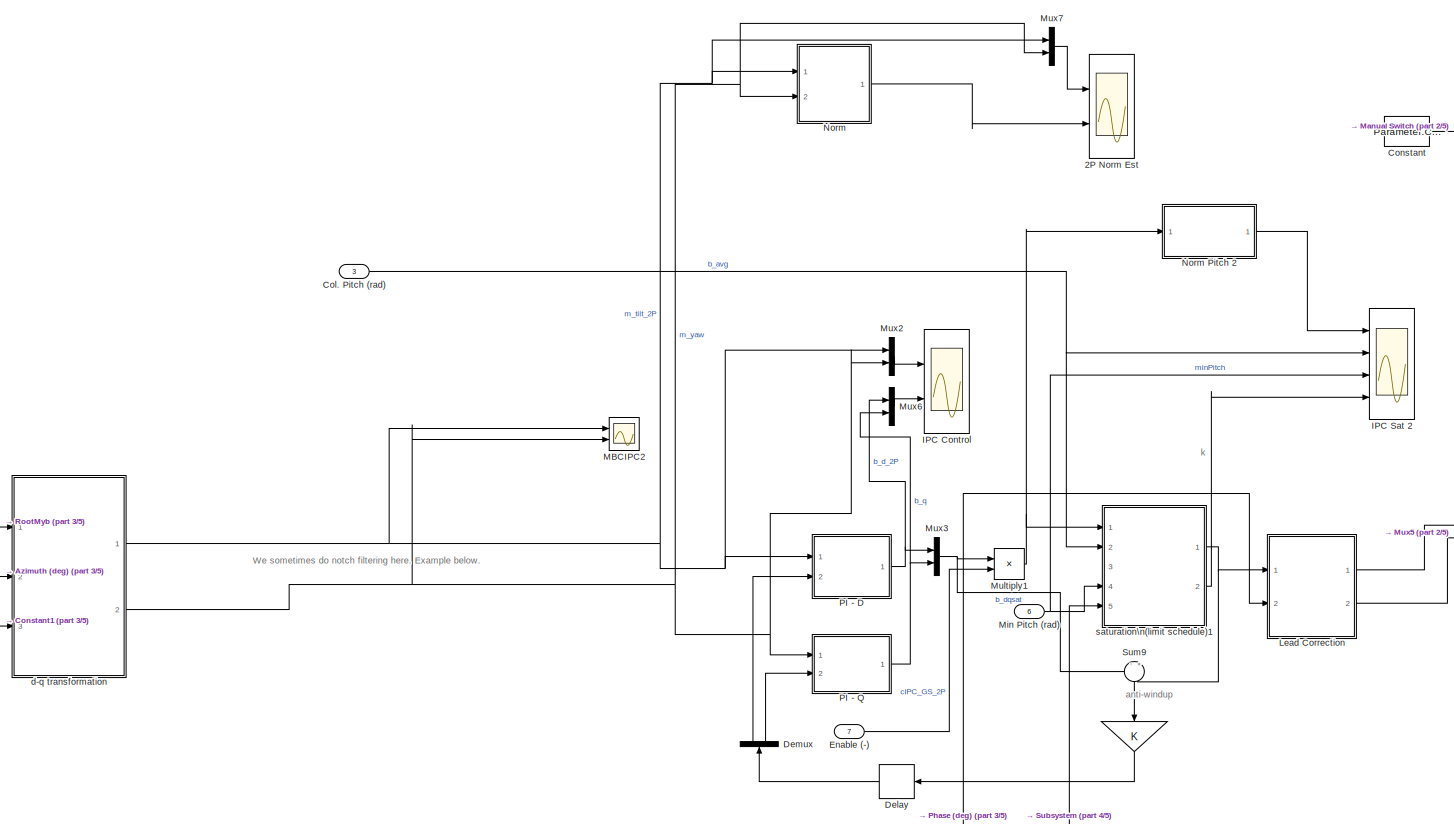
[diagram: Cyclic Pitch controllertor2/Cyclic Pitch controller/2P Cyclic Pitch Controller2 - part 1/5, top center region]
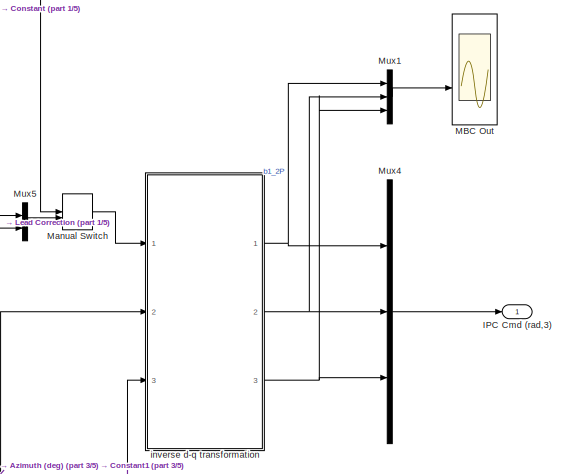
[diagram: Cyclic Pitch controllertor2/Cyclic Pitch controller/2P Cyclic Pitch Controller2 - part 2/5, middle right region]
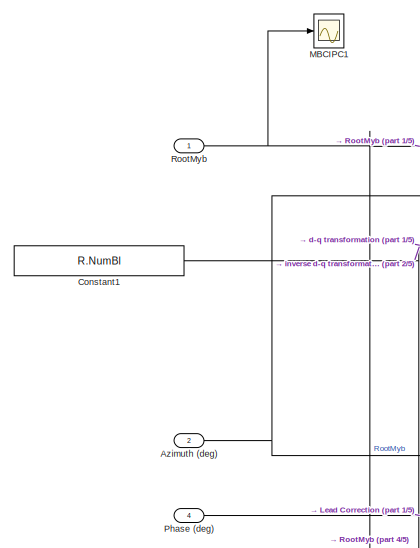
[diagram: Cyclic Pitch controllertor2/Cyclic Pitch controller/2P Cyclic Pitch Controller2 - part 3/5, middle left region]
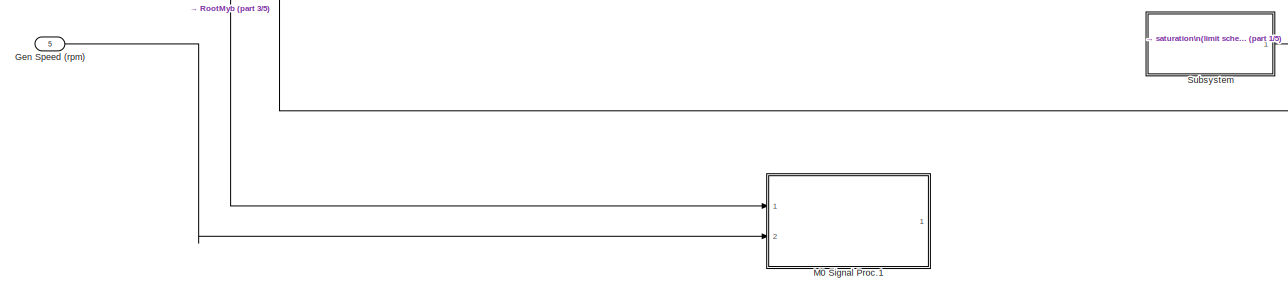
[diagram: Cyclic Pitch controllertor2/Cyclic Pitch controller/2P Cyclic Pitch Controller2 - part 4/5, bottom left region]
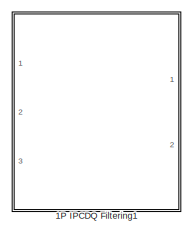
[diagram: Cyclic Pitch controllertor2/Cyclic Pitch controller/2P Cyclic Pitch Controller2 - part 5/5, bottom center region]
BLOCK [SubSystem] Cyclic Pitch controllertor2/Cyclic Pitch controller/2P Cyclic Pitch Controller2
  Ports = [7, 1]
  SID = 1121
BLOCK [Gain] Cyclic Pitch controllertor2/Cyclic Pitch controller/2P Cyclic Pitch Controller2/ 
  SID = 1129
BLOCK [SubSystem] Cyclic Pitch controllertor2/Cyclic Pitch controller/2P Cyclic Pitch Controller2/1P IPCDQ Filtering1
  Commented = on
  Ports = [3, 2]
  SID = 1130
BLOCK [DiscreteFilter] Cyclic Pitch controllertor2/Cyclic Pitch controller/2P Cyclic Pitch Controller2/1P IPCDQ Filtering1/Discrete Filter2
  Denominator = Parameter.Control.cIPC.IPCDQ_LPF.Denominator{1}
  InputPortMap = u0
  Numerator = Parameter.Control.cIPC.IPCDQ_LPF.Numerator{1}
  Ports = [1, 1]
  SID = 1134
  SampleTime = Parameter.Control.DT
BLOCK [DiscreteFilter] Cyclic Pitch controllertor2/Cyclic Pitch controller/2P Cyclic Pitch Controller2/1P IPCDQ Filtering1/Discrete Filter3
  Denominator = Parameter.Control.cIPC.IPCDQ_LPF.Denominator{1}
  InputPortMap = u0
  Numerator = Parameter.Control.cIPC.IPCDQ_LPF.Numerator{1}
  Ports = [1, 1]
  SID = 1135
  SampleTime = Parameter.Control.DT
BLOCK [Scope] Cyclic Pitch controllertor2/Cyclic Pitch controller/2P Cyclic Pitch Controller2/1P IPCDQ Filtering1/IPC NFs Man 2
  Floating = off
  NumInputPorts = 2
  Ports = [2]
  SID = 1136
  ScopeSpecificationString = Simulink.scopes.TimeScopeBlockCfg('CurrentConfiguration', extmgr.ConfigurationSet(extmgr.Configuration('Core','General UI',true),extmgr.Configuration('Core','Source UI',true),extmgr.Configuration('Sources','WiredSimulink',true,'DataLoggingVariableName','ScopeData2'),extmgr.Configuration('Visuals','Time Domain',true,'SerializedDisplays',{struct('MinYLimReal','-6734.14567','MaxYLimReal','8186.97033'...<+2154ch>
BLOCK [SubSystem] Cyclic Pitch controllertor2/Cyclic Pitch controller/2P Cyclic Pitch Controller2/1P IPCDQ Filtering1/Moving 3P Notch Man Y
  Ports = [2, 1]
  SID = 1137
BLOCK [Gain] Cyclic Pitch controllertor2/Cyclic Pitch controller/2P Cyclic Pitch Controller2/1P IPCDQ Filtering1/Moving 3P Notch Man Y/Gain
  Gain = 1/Parameter.Turbine.G * rpm2radps(1) * 3
  SID = 1140
BLOCK [Inport] Cyclic Pitch controllertor2/Cyclic Pitch controller/2P Cyclic Pitch Controller2/1P IPCDQ Filtering1/Moving 3P Notch Man Y/GenSpeedIN
  Port = 2
  SID = 1139
BLOCK [Inport] Cyclic Pitch controllertor2/Cyclic Pitch controller/2P Cyclic Pitch Controller2/1P IPCDQ Filtering1/Moving 3P Notch Man Y/Input
  SID = 1138
BLOCK [SubSystem] Cyclic Pitch controllertor2/Cyclic Pitch controller/2P Cyclic Pitch Controller2/1P IPCDQ Filtering1/Moving 3P Notch Man Y/Moving 3P Filt Manual
  Ports = [2, 1]
  SID = 1141
BLOCK [SubSystem] Cyclic Pitch controllertor2/Cyclic Pitch controller/2P Cyclic Pitch Controller2/1P IPCDQ Filtering1/Moving 3P Notch Man Y/Moving 3P Filt Manual/Den LPV
  Ports = [1, 1]
  SID = 1144
BLOCK [Lookup_n-D] Cyclic Pitch controllertor2/Cyclic Pitch controller/2P Cyclic Pitch Controller2/1P IPCDQ Filtering1/Moving 3P Notch Man Y/Moving 3P Filt Manual/Den LPV/1-D Lookup\nTable
  BeginIndexSearchUsingPreviousIndexResult = on
  BreakpointsForDimension1 = Parameter.Control.cIPC.PSM0_NF_3P.om_3P
  ExtrapMethod = Clip
  InternalRulePriority = Speed
  NumberOfTableDimensions = 1
  Ports = [1, 1]
  RndMeth = Simplest
  SID = 1146
  Table = Parameter.Control.cIPC.PSM0_NF_3P.a_2
BLOCK [Lookup_n-D] Cyclic Pitch controllertor2/Cyclic Pitch controller/2P Cyclic Pitch Controller2/1P IPCDQ Filtering1/Moving 3P Notch Man Y/Moving 3P Filt Manual/Den LPV/1-D Lookup\nTable1
  BeginIndexSearchUsingPreviousIndexResult = on
  BreakpointsForDimension1 = Parameter.Control.cIPC.PSM0_NF_3P.om_3P
  ExtrapMethod = Clip
  InternalRulePriority = Speed
  NumberOfTableDimensions = 1
  Ports = [1, 1]
  RndMeth = Simplest
  SID = 1147
  Table = Parameter.Control.cIPC.PSM0_NF_3P.a_1
BLOCK [Lookup_n-D] Cyclic Pitch controllertor2/Cyclic Pitch controller/2P Cyclic Pitch Controller2/1P IPCDQ Filtering1/Moving 3P Notch Man Y/Moving 3P Filt Manual/Den LPV/1-D Lookup\nTable2
  BeginIndexSearchUsingPreviousIndexResult = on
  BreakpointsForDimension1 = Parameter.Control.cIPC.PSM0_NF_3P.om_3P
  ExtrapMethod = Clip
  InternalRulePriority = Speed
  NumberOfTableDimensions = 1
  Ports = [1, 1]
  RndMeth = Simplest
  SID = 1148
  Table = Parameter.Control.cIPC.PSM0_NF_3P.a_0
BLOCK [Mux] Cyclic Pitch controllertor2/Cyclic Pitch controller/2P Cyclic Pitch Controller2/1P IPCDQ Filtering1/Moving 3P Notch Man Y/Moving 3P Filt Manual/Den LPV/Mux
  DisplayOption = bar
  Inputs = 3
  Ports = [3, 1]
  SID = 1149
BLOCK [Outport] Cyclic Pitch controllertor2/Cyclic Pitch controller/2P Cyclic Pitch Controller2/1P IPCDQ Filtering1/Moving 3P Notch Man Y/Moving 3P Filt Manual/Den LPV/a
  SID = 1150
BLOCK [Inport] Cyclic Pitch controllertor2/Cyclic Pitch controller/2P Cyclic Pitch Controller2/1P IPCDQ Filtering1/Moving 3P Notch Man Y/Moving 3P Filt Manual/Den LPV/rot speed (rad//s)
  SID = 1145
BLOCK [DiscreteFilter] Cyclic Pitch controllertor2/Cyclic Pitch controller/2P Cyclic Pitch Controller2/1P IPCDQ Filtering1/Moving 3P Notch Man Y/Moving 3P Filt Manual/Discrete Filter
  DenominatorSource = Input port
  InputPortMap = u0,p1,p3
  NumeratorSource = Input port
  Ports = [3, 1]
  SID = 1151
  a0EqualsOne = on
BLOCK [SubSystem] Cyclic Pitch controllertor2/Cyclic Pitch controller/2P Cyclic Pitch Controller2/1P IPCDQ Filtering1/Moving 3P Notch Man Y/Moving 3P Filt Manual/Num LPV
  Ports = [1, 1]
  SID = 1152
BLOCK [Lookup_n-D] Cyclic Pitch controllertor2/Cyclic Pitch controller/2P Cyclic Pitch Controller2/1P IPCDQ Filtering1/Moving 3P Notch Man Y/Moving 3P Filt Manual/Num LPV/1-D Lookup\nTable
  BeginIndexSearchUsingPreviousIndexResult = on
  BreakpointsForDimension1 = Parameter.Control.cIPC.PSM0_NF_3P.om_3P
  ExtrapMethod = Clip
  InternalRulePriority = Speed
  NumberOfTableDimensions = 1
  Ports = [1, 1]
  RndMeth = Simplest
  SID = 1154
  Table = Parameter.Control.cIPC.PSM0_NF_3P.b_2
BLOCK [Lookup_n-D] Cyclic Pitch controllertor2/Cyclic Pitch controller/2P Cyclic Pitch Controller2/1P IPCDQ Filtering1/Moving 3P Notch Man Y/Moving 3P Filt Manual/Num LPV/1-D Lookup\nTable1
  BeginIndexSearchUsingPreviousIndexResult = on
  BreakpointsForDimension1 = Parameter.Control.cIPC.PSM0_NF_3P.om_3P
  ExtrapMethod = Clip
  InternalRulePriority = Speed
  NumberOfTableDimensions = 1
  Ports = [1, 1]
  RndMeth = Simplest
  SID = 1155
  Table = Parameter.Control.cIPC.PSM0_NF_3P.b_1
BLOCK [Lookup_n-D] Cyclic Pitch controllertor2/Cyclic Pitch controller/2P Cyclic Pitch Controller2/1P IPCDQ Filtering1/Moving 3P Notch Man Y/Moving 3P Filt Manual/Num LPV/1-D Lookup\nTable2
  BeginIndexSearchUsingPreviousIndexResult = on
  BreakpointsForDimension1 = Parameter.Control.cIPC.PSM0_NF_3P.om_3P
  ExtrapMethod = Clip
  InternalRulePriority = Speed
  NumberOfTableDimensions = 1
  Ports = [1, 1]
  RndMeth = Simplest
  SID = 1156
  Table = Parameter.Control.cIPC.PSM0_NF_3P.b_0
BLOCK [Mux] Cyclic Pitch controllertor2/Cyclic Pitch controller/2P Cyclic Pitch Controller2/1P IPCDQ Filtering1/Moving 3P Notch Man Y/Moving 3P Filt Manual/Num LPV/Mux
  DisplayOption = bar
  Inputs = 3
  Ports = [3, 1]
  SID = 1157
BLOCK [Outport] Cyclic Pitch controllertor2/Cyclic Pitch controller/2P Cyclic Pitch Controller2/1P IPCDQ Filtering1/Moving 3P Notch Man Y/Moving 3P Filt Manual/Num LPV/b
  SID = 1158
BLOCK [Inport] Cyclic Pitch controllertor2/Cyclic Pitch controller/2P Cyclic Pitch Controller2/1P IPCDQ Filtering1/Moving 3P Notch Man Y/Moving 3P Filt Manual/Num LPV/rot speed (rad//s)
  SID = 1153
BLOCK [Outport] Cyclic Pitch controllertor2/Cyclic Pitch controller/2P Cyclic Pitch Controller2/1P IPCDQ Filtering1/Moving 3P Notch Man Y/Moving 3P Filt Manual/Out1
  SID = 1159
BLOCK [Inport] Cyclic Pitch controllertor2/Cyclic Pitch controller/2P Cyclic Pitch Controller2/1P IPCDQ Filtering1/Moving 3P Notch Man Y/Moving 3P Filt Manual/rot speed (rad//s)
  Port = 2
  SID = 1143
BLOCK [Inport] Cyclic Pitch controllertor2/Cyclic Pitch controller/2P Cyclic Pitch Controller2/1P IPCDQ Filtering1/Moving 3P Notch Man Y/Moving 3P Filt Manual/u
  SID = 1142
BLOCK [Outport] Cyclic Pitch controllertor2/Cyclic Pitch controller/2P Cyclic Pitch Controller2/1P IPCDQ Filtering1/Moving 3P Notch Man Y/Output
  SID = 1161
BLOCK [DiscreteStateSpace] Cyclic Pitch controllertor2/Cyclic Pitch controller/2P Cyclic Pitch Controller2/1P IPCDQ Filtering1/Moving 3P Notch Man Y/Slow Low Pass for Param
  A = Parameter.Control.cIPC.dLPF_slow.a
  B = Parameter.Control.cIPC.dLPF_slow.b
  C = Parameter.Control.cIPC.dLPF_slow.c
  D = Parameter.Control.cIPC.dLPF_slow.d
  SID = 1160
  SampleTime = Parameter.Control.DT
BLOCK [SubSystem] Cyclic Pitch controllertor2/Cyclic Pitch controller/2P Cyclic Pitch Controller2/1P IPCDQ Filtering1/Moving 3P Notch Man Z
  Ports = [2, 1]
  SID = 1162
BLOCK [Gain] Cyclic Pitch controllertor2/Cyclic Pitch controller/2P Cyclic Pitch Controller2/1P IPCDQ Filtering1/Moving 3P Notch Man Z/Gain
  Gain = 1/Parameter.Turbine.G * rpm2radps(1) * 3
  SID = 1165
BLOCK [Inport] Cyclic Pitch controllertor2/Cyclic Pitch controller/2P Cyclic Pitch Controller2/1P IPCDQ Filtering1/Moving 3P Notch Man Z/GenSpeedIN
  Port = 2
  SID = 1164
BLOCK [Inport] Cyclic Pitch controllertor2/Cyclic Pitch controller/2P Cyclic Pitch Controller2/1P IPCDQ Filtering1/Moving 3P Notch Man Z/Input
  SID = 1163
BLOCK [SubSystem] Cyclic Pitch controllertor2/Cyclic Pitch controller/2P Cyclic Pitch Controller2/1P IPCDQ Filtering1/Moving 3P Notch Man Z/Moving 3P Filt Manual
  Ports = [2, 1]
  SID = 1166
BLOCK [SubSystem] Cyclic Pitch controllertor2/Cyclic Pitch controller/2P Cyclic Pitch Controller2/1P IPCDQ Filtering1/Moving 3P Notch Man Z/Moving 3P Filt Manual/Den LPV
  Ports = [1, 1]
  SID = 1169
BLOCK [Lookup_n-D] Cyclic Pitch controllertor2/Cyclic Pitch controller/2P Cyclic Pitch Controller2/1P IPCDQ Filtering1/Moving 3P Notch Man Z/Moving 3P Filt Manual/Den LPV/1-D Lookup\nTable
  BeginIndexSearchUsingPreviousIndexResult = on
  BreakpointsForDimension1 = Parameter.Control.cIPC.PSM0_NF_3P.om_3P
  ExtrapMethod = Clip
  InternalRulePriority = Speed
  NumberOfTableDimensions = 1
  Ports = [1, 1]
  RndMeth = Simplest
  SID = 1171
  Table = Parameter.Control.cIPC.PSM0_NF_3P.a_2
BLOCK [Lookup_n-D] Cyclic Pitch controllertor2/Cyclic Pitch controller/2P Cyclic Pitch Controller2/1P IPCDQ Filtering1/Moving 3P Notch Man Z/Moving 3P Filt Manual/Den LPV/1-D Lookup\nTable1
  BeginIndexSearchUsingPreviousIndexResult = on
  BreakpointsForDimension1 = Parameter.Control.cIPC.PSM0_NF_3P.om_3P
  ExtrapMethod = Clip
  InternalRulePriority = Speed
  NumberOfTableDimensions = 1
  Ports = [1, 1]
  RndMeth = Simplest
  SID = 1172
  Table = Parameter.Control.cIPC.PSM0_NF_3P.a_1
BLOCK [Lookup_n-D] Cyclic Pitch controllertor2/Cyclic Pitch controller/2P Cyclic Pitch Controller2/1P IPCDQ Filtering1/Moving 3P Notch Man Z/Moving 3P Filt Manual/Den LPV/1-D Lookup\nTable2
  BeginIndexSearchUsingPreviousIndexResult = on
  BreakpointsForDimension1 = Parameter.Control.cIPC.PSM0_NF_3P.om_3P
  ExtrapMethod = Clip
  InternalRulePriority = Speed
  NumberOfTableDimensions = 1
  Ports = [1, 1]
  RndMeth = Simplest
  SID = 1173
  Table = Parameter.Control.cIPC.PSM0_NF_3P.a_0
BLOCK [Mux] Cyclic Pitch controllertor2/Cyclic Pitch controller/2P Cyclic Pitch Controller2/1P IPCDQ Filtering1/Moving 3P Notch Man Z/Moving 3P Filt Manual/Den LPV/Mux
  DisplayOption = bar
  Inputs = 3
  Ports = [3, 1]
  SID = 1174
BLOCK [Outport] Cyclic Pitch controllertor2/Cyclic Pitch controller/2P Cyclic Pitch Controller2/1P IPCDQ Filtering1/Moving 3P Notch Man Z/Moving 3P Filt Manual/Den LPV/a
  SID = 1175
BLOCK [Inport] Cyclic Pitch controllertor2/Cyclic Pitch controller/2P Cyclic Pitch Controller2/1P IPCDQ Filtering1/Moving 3P Notch Man Z/Moving 3P Filt Manual/Den LPV/rot speed (rad//s)
  SID = 1170
BLOCK [DiscreteFilter] Cyclic Pitch controllertor2/Cyclic Pitch controller/2P Cyclic Pitch Controller2/1P IPCDQ Filtering1/Moving 3P Notch Man Z/Moving 3P Filt Manual/Discrete Filter
  DenominatorSource = Input port
  InputPortMap = u0,p1,p3
  NumeratorSource = Input port
  Ports = [3, 1]
  SID = 1176
  a0EqualsOne = on
BLOCK [SubSystem] Cyclic Pitch controllertor2/Cyclic Pitch controller/2P Cyclic Pitch Controller2/1P IPCDQ Filtering1/Moving 3P Notch Man Z/Moving 3P Filt Manual/Num LPV
  Ports = [1, 1]
  SID = 1177
BLOCK [Lookup_n-D] Cyclic Pitch controllertor2/Cyclic Pitch controller/2P Cyclic Pitch Controller2/1P IPCDQ Filtering1/Moving 3P Notch Man Z/Moving 3P Filt Manual/Num LPV/1-D Lookup\nTable
  BeginIndexSearchUsingPreviousIndexResult = on
  BreakpointsForDimension1 = Parameter.Control.cIPC.PSM0_NF_3P.om_3P
  ExtrapMethod = Clip
  InternalRulePriority = Speed
  NumberOfTableDimensions = 1
  Ports = [1, 1]
  RndMeth = Simplest
  SID = 1179
  Table = Parameter.Control.cIPC.PSM0_NF_3P.b_2
BLOCK [Lookup_n-D] Cyclic Pitch controllertor2/Cyclic Pitch controller/2P Cyclic Pitch Controller2/1P IPCDQ Filtering1/Moving 3P Notch Man Z/Moving 3P Filt Manual/Num LPV/1-D Lookup\nTable1
  BeginIndexSearchUsingPreviousIndexResult = on
  BreakpointsForDimension1 = Parameter.Control.cIPC.PSM0_NF_3P.om_3P
  ExtrapMethod = Clip
  InternalRulePriority = Speed
  NumberOfTableDimensions = 1
  Ports = [1, 1]
  RndMeth = Simplest
  SID = 1180
  Table = Parameter.Control.cIPC.PSM0_NF_3P.b_1
BLOCK [Lookup_n-D] Cyclic Pitch controllertor2/Cyclic Pitch controller/2P Cyclic Pitch Controller2/1P IPCDQ Filtering1/Moving 3P Notch Man Z/Moving 3P Filt Manual/Num LPV/1-D Lookup\nTable2
  BeginIndexSearchUsingPreviousIndexResult = on
  BreakpointsForDimension1 = Parameter.Control.cIPC.PSM0_NF_3P.om_3P
  ExtrapMethod = Clip
  InternalRulePriority = Speed
  NumberOfTableDimensions = 1
  Ports = [1, 1]
  RndMeth = Simplest
  SID = 1181
  Table = Parameter.Control.cIPC.PSM0_NF_3P.b_0
BLOCK [Mux] Cyclic Pitch controllertor2/Cyclic Pitch controller/2P Cyclic Pitch Controller2/1P IPCDQ Filtering1/Moving 3P Notch Man Z/Moving 3P Filt Manual/Num LPV/Mux
  DisplayOption = bar
  Inputs = 3
  Ports = [3, 1]
  SID = 1182
BLOCK [Outport] Cyclic Pitch controllertor2/Cyclic Pitch controller/2P Cyclic Pitch Controller2/1P IPCDQ Filtering1/Moving 3P Notch Man Z/Moving 3P Filt Manual/Num LPV/b
  SID = 1183
BLOCK [Inport] Cyclic Pitch controllertor2/Cyclic Pitch controller/2P Cyclic Pitch Controller2/1P IPCDQ Filtering1/Moving 3P Notch Man Z/Moving 3P Filt Manual/Num LPV/rot speed (rad//s)
  SID = 1178
BLOCK [Outport] Cyclic Pitch controllertor2/Cyclic Pitch controller/2P Cyclic Pitch Controller2/1P IPCDQ Filtering1/Moving 3P Notch Man Z/Moving 3P Filt Manual/Out1
  SID = 1184
BLOCK [Inport] Cyclic Pitch controllertor2/Cyclic Pitch controller/2P Cyclic Pitch Controller2/1P IPCDQ Filtering1/Moving 3P Notch Man Z/Moving 3P Filt Manual/rot speed (rad//s)
  Port = 2
  SID = 1168
BLOCK [Inport] Cyclic Pitch controllertor2/Cyclic Pitch controller/2P Cyclic Pitch Controller2/1P IPCDQ Filtering1/Moving 3P Notch Man Z/Moving 3P Filt Manual/u
  SID = 1167
BLOCK [Outport] Cyclic Pitch controllertor2/Cyclic Pitch controller/2P Cyclic Pitch Controller2/1P IPCDQ Filtering1/Moving 3P Notch Man Z/Output
  SID = 1186
BLOCK [DiscreteStateSpace] Cyclic Pitch controllertor2/Cyclic Pitch controller/2P Cyclic Pitch Controller2/1P IPCDQ Filtering1/Moving 3P Notch Man Z/Slow Low Pass for Param
  A = Parameter.Control.cIPC.dLPF_slow.a
  B = Parameter.Control.cIPC.dLPF_slow.b
  C = Parameter.Control.cIPC.dLPF_slow.c
  D = Parameter.Control.cIPC.dLPF_slow.d
  SID = 1185
  SampleTime = Parameter.Control.DT
BLOCK [SubSystem] Cyclic Pitch controllertor2/Cyclic Pitch controller/2P Cyclic Pitch Controller2/1P IPCDQ Filtering1/Moving 6P Notch Man Y
  Ports = [2, 1]
  SID = 1187
BLOCK [Gain] Cyclic Pitch controllertor2/Cyclic Pitch controller/2P Cyclic Pitch Controller2/1P IPCDQ Filtering1/Moving 6P Notch Man Y/Gain
  Gain = 1/Parameter.Turbine.G * rpm2radps(1) * 3
  SID = 1190
BLOCK [Inport] Cyclic Pitch controllertor2/Cyclic Pitch controller/2P Cyclic Pitch Controller2/1P IPCDQ Filtering1/Moving 6P Notch Man Y/GenSpeedIN
  Port = 2
  SID = 1189
BLOCK [Inport] Cyclic Pitch controllertor2/Cyclic Pitch controller/2P Cyclic Pitch Controller2/1P IPCDQ Filtering1/Moving 6P Notch Man Y/Input
  SID = 1188
BLOCK [SubSystem] Cyclic Pitch controllertor2/Cyclic Pitch controller/2P Cyclic Pitch Controller2/1P IPCDQ Filtering1/Moving 6P Notch Man Y/Moving 6P Filt Manual
  Ports = [2, 1]
  SID = 1191
BLOCK [SubSystem] Cyclic Pitch controllertor2/Cyclic Pitch controller/2P Cyclic Pitch Controller2/1P IPCDQ Filtering1/Moving 6P Notch Man Y/Moving 6P Filt Manual/Den LPV
  Ports = [1, 1]
  SID = 1194
BLOCK [Lookup_n-D] Cyclic Pitch controllertor2/Cyclic Pitch controller/2P Cyclic Pitch Controller2/1P IPCDQ Filtering1/Moving 6P Notch Man Y/Moving 6P Filt Manual/Den LPV/1-D Lookup\nTable
  BeginIndexSearchUsingPreviousIndexResult = on
  BreakpointsForDimension1 = Parameter.Control.cIPC.PSM0_NF_6P.om_6P
  ExtrapMethod = Clip
  InternalRulePriority = Speed
  NumberOfTableDimensions = 1
  Ports = [1, 1]
  RndMeth = Simplest
  SID = 1196
  Table = Parameter.Control.cIPC.PSM0_NF_6P.a_2
BLOCK [Lookup_n-D] Cyclic Pitch controllertor2/Cyclic Pitch controller/2P Cyclic Pitch Controller2/1P IPCDQ Filtering1/Moving 6P Notch Man Y/Moving 6P Filt Manual/Den LPV/1-D Lookup\nTable1
  BeginIndexSearchUsingPreviousIndexResult = on
  BreakpointsForDimension1 = Parameter.Control.cIPC.PSM0_NF_6P.om_6P
  ExtrapMethod = Clip
  InternalRulePriority = Speed
  NumberOfTableDimensions = 1
  Ports = [1, 1]
  RndMeth = Simplest
  SID = 1197
  Table = Parameter.Control.cIPC.PSM0_NF_6P.a_1
BLOCK [Lookup_n-D] Cyclic Pitch controllertor2/Cyclic Pitch controller/2P Cyclic Pitch Controller2/1P IPCDQ Filtering1/Moving 6P Notch Man Y/Moving 6P Filt Manual/Den LPV/1-D Lookup\nTable2
  BeginIndexSearchUsingPreviousIndexResult = on
  BreakpointsForDimension1 = Parameter.Control.cIPC.PSM0_NF_6P.om_6P
  ExtrapMethod = Clip
  InternalRulePriority = Speed
  NumberOfTableDimensions = 1
  Ports = [1, 1]
  RndMeth = Simplest
  SID = 1198
  Table = Parameter.Control.cIPC.PSM0_NF_6P.a_0
BLOCK [Mux] Cyclic Pitch controllertor2/Cyclic Pitch controller/2P Cyclic Pitch Controller2/1P IPCDQ Filtering1/Moving 6P Notch Man Y/Moving 6P Filt Manual/Den LPV/Mux
  DisplayOption = bar
  Inputs = 3
  Ports = [3, 1]
  SID = 1199
BLOCK [Outport] Cyclic Pitch controllertor2/Cyclic Pitch controller/2P Cyclic Pitch Controller2/1P IPCDQ Filtering1/Moving 6P Notch Man Y/Moving 6P Filt Manual/Den LPV/a
  SID = 1200
BLOCK [Inport] Cyclic Pitch controllertor2/Cyclic Pitch controller/2P Cyclic Pitch Controller2/1P IPCDQ Filtering1/Moving 6P Notch Man Y/Moving 6P Filt Manual/Den LPV/rot speed (rad//s)
  SID = 1195
BLOCK [DiscreteFilter] Cyclic Pitch controllertor2/Cyclic Pitch controller/2P Cyclic Pitch Controller2/1P IPCDQ Filtering1/Moving 6P Notch Man Y/Moving 6P Filt Manual/Discrete Filter
  DenominatorSource = Input port
  InputPortMap = u0,p1,p3
  NumeratorSource = Input port
  Ports = [3, 1]
  SID = 1201
  a0EqualsOne = on
BLOCK [SubSystem] Cyclic Pitch controllertor2/Cyclic Pitch controller/2P Cyclic Pitch Controller2/1P IPCDQ Filtering1/Moving 6P Notch Man Y/Moving 6P Filt Manual/Num LPV
  Ports = [1, 1]
  SID = 1202
BLOCK [Lookup_n-D] Cyclic Pitch controllertor2/Cyclic Pitch controller/2P Cyclic Pitch Controller2/1P IPCDQ Filtering1/Moving 6P Notch Man Y/Moving 6P Filt Manual/Num LPV/1-D Lookup\nTable
  BeginIndexSearchUsingPreviousIndexResult = on
  BreakpointsForDimension1 = Parameter.Control.cIPC.PSM0_NF_6P.om_6P
  ExtrapMethod = Clip
  InternalRulePriority = Speed
  NumberOfTableDimensions = 1
  Ports = [1, 1]
  RndMeth = Simplest
  SID = 1204
  Table = Parameter.Control.cIPC.PSM0_NF_6P.b_2
BLOCK [Lookup_n-D] Cyclic Pitch controllertor2/Cyclic Pitch controller/2P Cyclic Pitch Controller2/1P IPCDQ Filtering1/Moving 6P Notch Man Y/Moving 6P Filt Manual/Num LPV/1-D Lookup\nTable1
  BeginIndexSearchUsingPreviousIndexResult = on
  BreakpointsForDimension1 = Parameter.Control.cIPC.PSM0_NF_6P.om_6P
  ExtrapMethod = Clip
  InternalRulePriority = Speed
  NumberOfTableDimensions = 1
  Ports = [1, 1]
  RndMeth = Simplest
  SID = 1205
  Table = Parameter.Control.cIPC.PSM0_NF_6P.b_1
BLOCK [Lookup_n-D] Cyclic Pitch controllertor2/Cyclic Pitch controller/2P Cyclic Pitch Controller2/1P IPCDQ Filtering1/Moving 6P Notch Man Y/Moving 6P Filt Manual/Num LPV/1-D Lookup\nTable2
  BeginIndexSearchUsingPreviousIndexResult = on
  BreakpointsForDimension1 = Parameter.Control.cIPC.PSM0_NF_6P.om_6P
  ExtrapMethod = Clip
  InternalRulePriority = Speed
  NumberOfTableDimensions = 1
  Ports = [1, 1]
  RndMeth = Simplest
  SID = 1206
  Table = Parameter.Control.cIPC.PSM0_NF_6P.b_0
BLOCK [Mux] Cyclic Pitch controllertor2/Cyclic Pitch controller/2P Cyclic Pitch Controller2/1P IPCDQ Filtering1/Moving 6P Notch Man Y/Moving 6P Filt Manual/Num LPV/Mux
  DisplayOption = bar
  Inputs = 3
  Ports = [3, 1]
  SID = 1207
BLOCK [Outport] Cyclic Pitch controllertor2/Cyclic Pitch controller/2P Cyclic Pitch Controller2/1P IPCDQ Filtering1/Moving 6P Notch Man Y/Moving 6P Filt Manual/Num LPV/b
  SID = 1208
BLOCK [Inport] Cyclic Pitch controllertor2/Cyclic Pitch controller/2P Cyclic Pitch Controller2/1P IPCDQ Filtering1/Moving 6P Notch Man Y/Moving 6P Filt Manual/Num LPV/rot speed (rad//s)
  SID = 1203
BLOCK [Outport] Cyclic Pitch controllertor2/Cyclic Pitch controller/2P Cyclic Pitch Controller2/1P IPCDQ Filtering1/Moving 6P Notch Man Y/Moving 6P Filt Manual/Out1
  SID = 1209
BLOCK [Inport] Cyclic Pitch controllertor2/Cyclic Pitch controller/2P Cyclic Pitch Controller2/1P IPCDQ Filtering1/Moving 6P Notch Man Y/Moving 6P Filt Manual/rot speed (rad//s)
  Port = 2
  SID = 1193
BLOCK [Inport] Cyclic Pitch controllertor2/Cyclic Pitch controller/2P Cyclic Pitch Controller2/1P IPCDQ Filtering1/Moving 6P Notch Man Y/Moving 6P Filt Manual/u
  SID = 1192
BLOCK [Outport] Cyclic Pitch controllertor2/Cyclic Pitch controller/2P Cyclic Pitch Controller2/1P IPCDQ Filtering1/Moving 6P Notch Man Y/Output
  SID = 1211
BLOCK [DiscreteStateSpace] Cyclic Pitch controllertor2/Cyclic Pitch controller/2P Cyclic Pitch Controller2/1P IPCDQ Filtering1/Moving 6P Notch Man Y/Slow Low Pass for Param
  A = Parameter.Control.cIPC.dLPF_slow.a
  B = Parameter.Control.cIPC.dLPF_slow.b
  C = Parameter.Control.cIPC.dLPF_slow.c
  D = Parameter.Control.cIPC.dLPF_slow.d
  SID = 1210
  SampleTime = Parameter.Control.DT
BLOCK [SubSystem] Cyclic Pitch controllertor2/Cyclic Pitch controller/2P Cyclic Pitch Controller2/1P IPCDQ Filtering1/Moving 6P Notch Man Z
  Ports = [2, 1]
  SID = 1212
BLOCK [Gain] Cyclic Pitch controllertor2/Cyclic Pitch controller/2P Cyclic Pitch Controller2/1P IPCDQ Filtering1/Moving 6P Notch Man Z/Gain
  Gain = 1/Parameter.Turbine.G * rpm2radps(1) * 3
  SID = 1215
BLOCK [Inport] Cyclic Pitch controllertor2/Cyclic Pitch controller/2P Cyclic Pitch Controller2/1P IPCDQ Filtering1/Moving 6P Notch Man Z/GenSpeedIN
  Port = 2
  SID = 1214
BLOCK [Inport] Cyclic Pitch controllertor2/Cyclic Pitch controller/2P Cyclic Pitch Controller2/1P IPCDQ Filtering1/Moving 6P Notch Man Z/Input
  SID = 1213
BLOCK [SubSystem] Cyclic Pitch controllertor2/Cyclic Pitch controller/2P Cyclic Pitch Controller2/1P IPCDQ Filtering1/Moving 6P Notch Man Z/Moving 6P Filt Manual
  Ports = [2, 1]
  SID = 1216
BLOCK [SubSystem] Cyclic Pitch controllertor2/Cyclic Pitch controller/2P Cyclic Pitch Controller2/1P IPCDQ Filtering1/Moving 6P Notch Man Z/Moving 6P Filt Manual/Den LPV
  Ports = [1, 1]
  SID = 1219
BLOCK [Lookup_n-D] Cyclic Pitch controllertor2/Cyclic Pitch controller/2P Cyclic Pitch Controller2/1P IPCDQ Filtering1/Moving 6P Notch Man Z/Moving 6P Filt Manual/Den LPV/1-D Lookup\nTable
  BeginIndexSearchUsingPreviousIndexResult = on
  BreakpointsForDimension1 = Parameter.Control.cIPC.PSM0_NF_6P.om_6P
  ExtrapMethod = Clip
  InternalRulePriority = Speed
  NumberOfTableDimensions = 1
  Ports = [1, 1]
  RndMeth = Simplest
  SID = 1221
  Table = Parameter.Control.cIPC.PSM0_NF_6P.a_2
BLOCK [Lookup_n-D] Cyclic Pitch controllertor2/Cyclic Pitch controller/2P Cyclic Pitch Controller2/1P IPCDQ Filtering1/Moving 6P Notch Man Z/Moving 6P Filt Manual/Den LPV/1-D Lookup\nTable1
  BeginIndexSearchUsingPreviousIndexResult = on
  BreakpointsForDimension1 = Parameter.Control.cIPC.PSM0_NF_6P.om_6P
  ExtrapMethod = Clip
  InternalRulePriority = Speed
  NumberOfTableDimensions = 1
  Ports = [1, 1]
  RndMeth = Simplest
  SID = 1222
  Table = Parameter.Control.cIPC.PSM0_NF_6P.a_1
BLOCK [Lookup_n-D] Cyclic Pitch controllertor2/Cyclic Pitch controller/2P Cyclic Pitch Controller2/1P IPCDQ Filtering1/Moving 6P Notch Man Z/Moving 6P Filt Manual/Den LPV/1-D Lookup\nTable2
  BeginIndexSearchUsingPreviousIndexResult = on
  BreakpointsForDimension1 = Parameter.Control.cIPC.PSM0_NF_6P.om_6P
  ExtrapMethod = Clip
  InternalRulePriority = Speed
  NumberOfTableDimensions = 1
  Ports = [1, 1]
  RndMeth = Simplest
  SID = 1223
  Table = Parameter.Control.cIPC.PSM0_NF_6P.a_0
BLOCK [Mux] Cyclic Pitch controllertor2/Cyclic Pitch controller/2P Cyclic Pitch Controller2/1P IPCDQ Filtering1/Moving 6P Notch Man Z/Moving 6P Filt Manual/Den LPV/Mux
  DisplayOption = bar
  Inputs = 3
  Ports = [3, 1]
  SID = 1224
BLOCK [Outport] Cyclic Pitch controllertor2/Cyclic Pitch controller/2P Cyclic Pitch Controller2/1P IPCDQ Filtering1/Moving 6P Notch Man Z/Moving 6P Filt Manual/Den LPV/a
  SID = 1225
BLOCK [Inport] Cyclic Pitch controllertor2/Cyclic Pitch controller/2P Cyclic Pitch Controller2/1P IPCDQ Filtering1/Moving 6P Notch Man Z/Moving 6P Filt Manual/Den LPV/rot speed (rad//s)
  SID = 1220
BLOCK [DiscreteFilter] Cyclic Pitch controllertor2/Cyclic Pitch controller/2P Cyclic Pitch Controller2/1P IPCDQ Filtering1/Moving 6P Notch Man Z/Moving 6P Filt Manual/Discrete Filter
  DenominatorSource = Input port
  InputPortMap = u0,p1,p3
  NumeratorSource = Input port
  Ports = [3, 1]
  SID = 1226
  a0EqualsOne = on
BLOCK [SubSystem] Cyclic Pitch controllertor2/Cyclic Pitch controller/2P Cyclic Pitch Controller2/1P IPCDQ Filtering1/Moving 6P Notch Man Z/Moving 6P Filt Manual/Num LPV
  Ports = [1, 1]
  SID = 1227
BLOCK [Lookup_n-D] Cyclic Pitch controllertor2/Cyclic Pitch controller/2P Cyclic Pitch Controller2/1P IPCDQ Filtering1/Moving 6P Notch Man Z/Moving 6P Filt Manual/Num LPV/1-D Lookup\nTable
  BeginIndexSearchUsingPreviousIndexResult = on
  BreakpointsForDimension1 = Parameter.Control.cIPC.PSM0_NF_6P.om_6P
  ExtrapMethod = Clip
  InternalRulePriority = Speed
  NumberOfTableDimensions = 1
  Ports = [1, 1]
  RndMeth = Simplest
  SID = 1229
  Table = Parameter.Control.cIPC.PSM0_NF_6P.b_2
BLOCK [Lookup_n-D] Cyclic Pitch controllertor2/Cyclic Pitch controller/2P Cyclic Pitch Controller2/1P IPCDQ Filtering1/Moving 6P Notch Man Z/Moving 6P Filt Manual/Num LPV/1-D Lookup\nTable1
  BeginIndexSearchUsingPreviousIndexResult = on
  BreakpointsForDimension1 = Parameter.Control.cIPC.PSM0_NF_6P.om_6P
  ExtrapMethod = Clip
  InternalRulePriority = Speed
  NumberOfTableDimensions = 1
  Ports = [1, 1]
  RndMeth = Simplest
  SID = 1230
  Table = Parameter.Control.cIPC.PSM0_NF_6P.b_1
BLOCK [Lookup_n-D] Cyclic Pitch controllertor2/Cyclic Pitch controller/2P Cyclic Pitch Controller2/1P IPCDQ Filtering1/Moving 6P Notch Man Z/Moving 6P Filt Manual/Num LPV/1-D Lookup\nTable2
  BeginIndexSearchUsingPreviousIndexResult = on
  BreakpointsForDimension1 = Parameter.Control.cIPC.PSM0_NF_6P.om_6P
  ExtrapMethod = Clip
  InternalRulePriority = Speed
  NumberOfTableDimensions = 1
  Ports = [1, 1]
  RndMeth = Simplest
  SID = 1231
  Table = Parameter.Control.cIPC.PSM0_NF_6P.b_0
BLOCK [Mux] Cyclic Pitch controllertor2/Cyclic Pitch controller/2P Cyclic Pitch Controller2/1P IPCDQ Filtering1/Moving 6P Notch Man Z/Moving 6P Filt Manual/Num LPV/Mux
  DisplayOption = bar
  Inputs = 3
  Ports = [3, 1]
  SID = 1232
BLOCK [Outport] Cyclic Pitch controllertor2/Cyclic Pitch controller/2P Cyclic Pitch Controller2/1P IPCDQ Filtering1/Moving 6P Notch Man Z/Moving 6P Filt Manual/Num LPV/b
  SID = 1233
BLOCK [Inport] Cyclic Pitch controllertor2/Cyclic Pitch controller/2P Cyclic Pitch Controller2/1P IPCDQ Filtering1/Moving 6P Notch Man Z/Moving 6P Filt Manual/Num LPV/rot speed (rad//s)
  SID = 1228
BLOCK [Outport] Cyclic Pitch controllertor2/Cyclic Pitch controller/2P Cyclic Pitch Controller2/1P IPCDQ Filtering1/Moving 6P Notch Man Z/Moving 6P Filt Manual/Out1
  SID = 1234
BLOCK [Inport] Cyclic Pitch controllertor2/Cyclic Pitch controller/2P Cyclic Pitch Controller2/1P IPCDQ Filtering1/Moving 6P Notch Man Z/Moving 6P Filt Manual/rot speed (rad//s)
  Port = 2
  SID = 1218
BLOCK [Inport] Cyclic Pitch controllertor2/Cyclic Pitch controller/2P Cyclic Pitch Controller2/1P IPCDQ Filtering1/Moving 6P Notch Man Z/Moving 6P Filt Manual/u
  SID = 1217
BLOCK [Outport] Cyclic Pitch controllertor2/Cyclic Pitch controller/2P Cyclic Pitch Controller2/1P IPCDQ Filtering1/Moving 6P Notch Man Z/Output
  SID = 1236
BLOCK [DiscreteStateSpace] Cyclic Pitch controllertor2/Cyclic Pitch controller/2P Cyclic Pitch Controller2/1P IPCDQ Filtering1/Moving 6P Notch Man Z/Slow Low Pass for Param
  A = Parameter.Control.cIPC.dLPF_slow.a
  B = Parameter.Control.cIPC.dLPF_slow.b
  C = Parameter.Control.cIPC.dLPF_slow.c
  D = Parameter.Control.cIPC.dLPF_slow.d
  SID = 1235
  SampleTime = Parameter.Control.DT
BLOCK [Mux] Cyclic Pitch controllertor2/Cyclic Pitch controller/2P Cyclic Pitch Controller2/1P IPCDQ Filtering1/Mux
  DisplayOption = bar
  Inputs = 2
  Ports = [2, 1]
  SID = 1237
BLOCK [Mux] Cyclic Pitch controllertor2/Cyclic Pitch controller/2P Cyclic Pitch Controller2/1P IPCDQ Filtering1/Mux1
  DisplayOption = bar
  Inputs = 2
  Ports = [2, 1]
  SID = 1238
BLOCK [Inport] Cyclic Pitch controllertor2/Cyclic Pitch controller/2P Cyclic Pitch Controller2/1P IPCDQ Filtering1/Mx
  SID = 1131
BLOCK [Outport] Cyclic Pitch controllertor2/Cyclic Pitch controller/2P Cyclic Pitch Controller2/1P IPCDQ Filtering1/Mx_hat
  SID = 1239
BLOCK [Inport] Cyclic Pitch controllertor2/Cyclic Pitch controller/2P Cyclic Pitch Controller2/1P IPCDQ Filtering1/My
  Port = 2
  SID = 1132
BLOCK [Outport] Cyclic Pitch controllertor2/Cyclic Pitch controller/2P Cyclic Pitch Controller2/1P IPCDQ Filtering1/My_hat
  Port = 2
  SID = 1240
BLOCK [Inport] Cyclic Pitch controllertor2/Cyclic Pitch controller/2P Cyclic Pitch Controller2/1P IPCDQ Filtering1/omega
  Port = 3
  SID = 1133
BLOCK [Scope] Cyclic Pitch controllertor2/Cyclic Pitch controller/2P Cyclic Pitch Controller2/2P Norm Est
  Floating = off
  NumInputPorts = 2
  Ports = [2]
  SID = 1241
  ScopeSpecificationString = Simulink.scopes.TimeScopeBlockCfg('CurrentConfiguration', extmgr.ConfigurationSet(extmgr.Configuration('Core','General UI',true),extmgr.Configuration('Core','Source UI',true),extmgr.Configuration('Sources','WiredSimulink',true,'DataLoggingVariableName','ScopeData4'),extmgr.Configuration('Visuals','Time Domain',true,'SerializedDisplays',{struct('MinYLimReal','-28758.51389','MaxYLimReal','19128.0224...<+2207ch>
BLOCK [Inport] Cyclic Pitch controllertor2/Cyclic Pitch controller/2P Cyclic Pitch Controller2/Azimuth (deg)
  Port = 2
  SID = 1123
BLOCK [Inport] Cyclic Pitch controllertor2/Cyclic Pitch controller/2P Cyclic Pitch Controller2/Col. Pitch (rad)
  Port = 3
  SID = 1124
BLOCK [Constant] Cyclic Pitch controllertor2/Cyclic Pitch controller/2P Cyclic Pitch Controller2/Constant
  Commented = on
  SID = 1242
  Value = Parameter.Control.cIPC.OL_2P.amp * [cosd(Parameter.Control.cIPC.OL_2P.phase), sind(Parameter.Control.cIPC.OL_2P.phase)]
BLOCK [Constant] Cyclic Pitch controllertor2/Cyclic Pitch controller/2P Cyclic Pitch Controller2/Constant1
  SID = 1243
  Value = R.NumBl
BLOCK [Delay] Cyclic Pitch controllertor2/Cyclic Pitch controller/2P Cyclic Pitch Controller2/Delay
  DelayLength = 1
  InputPortMap = u0
  Ports = [1, 1]
  SID = 1245
BLOCK [Demux] Cyclic Pitch controllertor2/Cyclic Pitch controller/2P Cyclic Pitch Controller2/Demux
  Outputs = 2
  Ports = [1, 2]
  SID = 1246
BLOCK [Inport] Cyclic Pitch controllertor2/Cyclic Pitch controller/2P Cyclic Pitch Controller2/Enable (-)
  Port = 7
  SID = 1128
BLOCK [Inport] Cyclic Pitch controllertor2/Cyclic Pitch controller/2P Cyclic Pitch Controller2/Gen Speed (rpm)
  Port = 5
  SID = 1126
BLOCK [Outport] Cyclic Pitch controllertor2/Cyclic Pitch controller/2P Cyclic Pitch Controller2/IPC Cmd (rad,3)
  SID = 1373
BLOCK [Scope] Cyclic Pitch controllertor2/Cyclic Pitch controller/2P Cyclic Pitch Controller2/IPC Control
  Floating = off
  NumInputPorts = 2
  Ports = [2]
  SID = 1247
  ScopeSpecificationString = Simulink.scopes.TimeScopeBlockCfg('CurrentConfiguration', extmgr.ConfigurationSet(extmgr.Configuration('Core','General UI',true),extmgr.Configuration('Core','Source UI',true),extmgr.Configuration('Sources','WiredSimulink',true,'DataLoggingVariableName','ScopeData3'),extmgr.Configuration('Visuals','Time Domain',true,'SerializedDisplays',{struct('MinYLimReal','-5135.32774','MaxYLimReal','4562.17963'...<+2151ch>
BLOCK [Scope] Cyclic Pitch controllertor2/Cyclic Pitch controller/2P Cyclic Pitch Controller2/IPC Sat 2
  Floating = off
  NumInputPorts = 4
  Ports = [4]
  SID = 1248
  ScopeSpecificationString = Simulink.scopes.TimeScopeBlockCfg('CurrentConfiguration', extmgr.ConfigurationSet(extmgr.Configuration('Core','General UI',true),extmgr.Configuration('Core','Source UI',true),extmgr.Configuration('Sources','WiredSimulink',true,'DataLoggingVariableName','ScopeData3'),extmgr.Configuration('Visuals','Time Domain',true,'SerializedDisplays',{struct('MinYLimReal','-0.01241','MaxYLimReal','0.11172','YLab...<+3450ch>
BLOCK [SubSystem] Cyclic Pitch controllertor2/Cyclic Pitch controller/2P Cyclic Pitch Controller2/Lead Correction
  ErrorFcn = Stateflow.Translate.translate
  PermitHierarchicalResolution = ExplicitOnly
  Ports = [2, 2]
  SFBlockType = MATLAB Function
  SID = 1249
  TreatAsAtomicUnit = on
BLOCK [Demux] Cyclic Pitch controllertor2/Cyclic Pitch controller/2P Cyclic Pitch Controller2/Lead Correction/ Demux 
  Outputs = 1
  Ports = [1, 1]
  SID = 1249::30
BLOCK [S-Function] Cyclic Pitch controllertor2/Cyclic Pitch controller/2P Cyclic Pitch Controller2/Lead Correction/ SFunction 
  EnableBusSupport = off
  FunctionName = sf_sfun
  PortCounts = [2 3]
  Ports = [2, 3]
  SFunctionDeploymentMode = off
  SID = 1249::29
  Tag = Stateflow S-Function ROSCO 33
BLOCK [Terminator] Cyclic Pitch controllertor2/Cyclic Pitch controller/2P Cyclic Pitch Controller2/Lead Correction/ Terminator 
  SID = 1249::31
BLOCK [Outport] Cyclic Pitch controllertor2/Cyclic Pitch controller/2P Cyclic Pitch Controller2/Lead Correction/b_cos
  SID = 1249::6
BLOCK [Outport] Cyclic Pitch controllertor2/Cyclic Pitch controller/2P Cyclic Pitch Controller2/Lead Correction/b_sin
  Port = 2
  SID = 1249::7
BLOCK [Inport] Cyclic Pitch controllertor2/Cyclic Pitch controller/2P Cyclic Pitch Controller2/Lead Correction/bdq
  SID = 1249::1
BLOCK [Inport] Cyclic Pitch controllertor2/Cyclic Pitch controller/2P Cyclic Pitch Controller2/Lead Correction/psi_o
  Port = 2
  SID = 1249::2
BLOCK [SubSystem] Cyclic Pitch controllertor2/Cyclic Pitch controller/2P Cyclic Pitch Controller2/M0 Signal Proc.1
  Commented = on
  Ports = [2, 1]
  SID = 1250
BLOCK [Sum] Cyclic Pitch controllertor2/Cyclic Pitch controller/2P Cyclic Pitch Controller2/M0 Signal Proc.1/Add
  IconShape = rectangular
  Inputs = +++
  Ports = [3, 1]
  SID = 1253
BLOCK [Demux] Cyclic Pitch controllertor2/Cyclic Pitch controller/2P Cyclic Pitch Controller2/M0 Signal Proc.1/Demux1
  Outputs = 3
  Ports = [1, 3]
  SID = 1254
BLOCK [DiscreteFilter] Cyclic Pitch controllertor2/Cyclic Pitch controller/2P Cyclic Pitch Controller2/M0 Signal Proc.1/Discrete Filter
  Denominator = Parameter.Control.cIPC.PSM0_LPF.Denominator{1}
  InputPortMap = u0
  Numerator = Parameter.Control.cIPC.PSM0_LPF.Numerator{1}
  Ports = [1, 1]
  SID = 1255
  a0EqualsOne = on
BLOCK [Gain] Cyclic Pitch controllertor2/Cyclic Pitch controller/2P Cyclic Pitch Controller2/M0 Signal Proc.1/Gain
  Gain = 1/3
  SID = 1256
BLOCK [Inport] Cyclic Pitch controllertor2/Cyclic Pitch controller/2P Cyclic Pitch Controller2/M0 Signal Proc.1/GenSpeed
  Port = 2
  SID = 1252
BLOCK [Outport] Cyclic Pitch controllertor2/Cyclic Pitch controller/2P Cyclic Pitch Controller2/M0 Signal Proc.1/M0
  SID = 1309
BLOCK [SubSystem] Cyclic Pitch controllertor2/Cyclic Pitch controller/2P Cyclic Pitch Controller2/M0 Signal Proc.1/Moving 1P Notch Man
  Ports = [2, 1]
  SID = 1257
BLOCK [Gain] Cyclic Pitch controllertor2/Cyclic Pitch controller/2P Cyclic Pitch Controller2/M0 Signal Proc.1/Moving 1P Notch Man/Gain
  Gain = 1/Parameter.Turbine.G * rpm2radps(1)
  SID = 1260
BLOCK [Inport] Cyclic Pitch controllertor2/Cyclic Pitch controller/2P Cyclic Pitch Controller2/M0 Signal Proc.1/Moving 1P Notch Man/GenSpeedIN
  Port = 2
  SID = 1259
BLOCK [Inport] Cyclic Pitch controllertor2/Cyclic Pitch controller/2P Cyclic Pitch Controller2/M0 Signal Proc.1/Moving 1P Notch Man/Input
  SID = 1258
BLOCK [SubSystem] Cyclic Pitch controllertor2/Cyclic Pitch controller/2P Cyclic Pitch Controller2/M0 Signal Proc.1/Moving 1P Notch Man/Moving 1P Filt Manual
  Ports = [2, 1]
  SID = 1261
BLOCK [SubSystem] Cyclic Pitch controllertor2/Cyclic Pitch controller/2P Cyclic Pitch Controller2/M0 Signal Proc.1/Moving 1P Notch Man/Moving 1P Filt Manual/Den LPV
  Ports = [1, 1]
  SID = 1264
BLOCK [Lookup_n-D] Cyclic Pitch controllertor2/Cyclic Pitch controller/2P Cyclic Pitch Controller2/M0 Signal Proc.1/Moving 1P Notch Man/Moving 1P Filt Manual/Den LPV/1-D Lookup\nTable
  BeginIndexSearchUsingPreviousIndexResult = on
  BreakpointsForDimension1 = Parameter.Control.cIPC.PSM0_NF_1P.om_1P
  ExtrapMethod = Clip
  InternalRulePriority = Speed
  NumberOfTableDimensions = 1
  Ports = [1, 1]
  RndMeth = Simplest
  SID = 1266
  Table = Parameter.Control.cIPC.PSM0_NF_1P.a_2
BLOCK [Lookup_n-D] Cyclic Pitch controllertor2/Cyclic Pitch controller/2P Cyclic Pitch Controller2/M0 Signal Proc.1/Moving 1P Notch Man/Moving 1P Filt Manual/Den LPV/1-D Lookup\nTable1
  BeginIndexSearchUsingPreviousIndexResult = on
  BreakpointsForDimension1 = Parameter.Control.cIPC.PSM0_NF_1P.om_1P
  ExtrapMethod = Clip
  InternalRulePriority = Speed
  NumberOfTableDimensions = 1
  Ports = [1, 1]
  RndMeth = Simplest
  SID = 1267
  Table = Parameter.Control.cIPC.PSM0_NF_1P.a_1
BLOCK [Lookup_n-D] Cyclic Pitch controllertor2/Cyclic Pitch controller/2P Cyclic Pitch Controller2/M0 Signal Proc.1/Moving 1P Notch Man/Moving 1P Filt Manual/Den LPV/1-D Lookup\nTable2
  BeginIndexSearchUsingPreviousIndexResult = on
  BreakpointsForDimension1 = Parameter.Control.cIPC.PSM0_NF_1P.om_1P
  ExtrapMethod = Clip
  InternalRulePriority = Speed
  NumberOfTableDimensions = 1
  Ports = [1, 1]
  RndMeth = Simplest
  SID = 1268
  Table = Parameter.Control.cIPC.PSM0_NF_1P.a_0
BLOCK [Mux] Cyclic Pitch controllertor2/Cyclic Pitch controller/2P Cyclic Pitch Controller2/M0 Signal Proc.1/Moving 1P Notch Man/Moving 1P Filt Manual/Den LPV/Mux
  DisplayOption = bar
  Inputs = 3
  Ports = [3, 1]
  SID = 1269
BLOCK [Outport] Cyclic Pitch controllertor2/Cyclic Pitch controller/2P Cyclic Pitch Controller2/M0 Signal Proc.1/Moving 1P Notch Man/Moving 1P Filt Manual/Den LPV/a
  SID = 1270
BLOCK [Inport] Cyclic Pitch controllertor2/Cyclic Pitch controller/2P Cyclic Pitch Controller2/M0 Signal Proc.1/Moving 1P Notch Man/Moving 1P Filt Manual/Den LPV/rot speed (rad//s)
  SID = 1265
BLOCK [DiscreteFilter] Cyclic Pitch controllertor2/Cyclic Pitch controller/2P Cyclic Pitch Controller2/M0 Signal Proc.1/Moving 1P Notch Man/Moving 1P Filt Manual/Discrete Filter
  DenominatorSource = Input port
  InputPortMap = u0,p1,p3
  NumeratorSource = Input port
  Ports = [3, 1]
  SID = 1271
  a0EqualsOne = on
BLOCK [SubSystem] Cyclic Pitch controllertor2/Cyclic Pitch controller/2P Cyclic Pitch Controller2/M0 Signal Proc.1/Moving 1P Notch Man/Moving 1P Filt Manual/Num LPV
  Ports = [1, 1]
  SID = 1272
BLOCK [Lookup_n-D] Cyclic Pitch controllertor2/Cyclic Pitch controller/2P Cyclic Pitch Controller2/M0 Signal Proc.1/Moving 1P Notch Man/Moving 1P Filt Manual/Num LPV/1-D Lookup\nTable
  BeginIndexSearchUsingPreviousIndexResult = on
  BreakpointsForDimension1 = Parameter.Control.cIPC.PSM0_NF_1P.om_1P
  ExtrapMethod = Clip
  InternalRulePriority = Speed
  NumberOfTableDimensions = 1
  Ports = [1, 1]
  RndMeth = Simplest
  SID = 1274
  Table = Parameter.Control.cIPC.PSM0_NF_1P.b_2
BLOCK [Lookup_n-D] Cyclic Pitch controllertor2/Cyclic Pitch controller/2P Cyclic Pitch Controller2/M0 Signal Proc.1/Moving 1P Notch Man/Moving 1P Filt Manual/Num LPV/1-D Lookup\nTable1
  BeginIndexSearchUsingPreviousIndexResult = on
  BreakpointsForDimension1 = Parameter.Control.cIPC.PSM0_NF_1P.om_1P
  ExtrapMethod = Clip
  InternalRulePriority = Speed
  NumberOfTableDimensions = 1
  Ports = [1, 1]
  RndMeth = Simplest
  SID = 1275
  Table = Parameter.Control.cIPC.PSM0_NF_1P.b_1
BLOCK [Lookup_n-D] Cyclic Pitch controllertor2/Cyclic Pitch controller/2P Cyclic Pitch Controller2/M0 Signal Proc.1/Moving 1P Notch Man/Moving 1P Filt Manual/Num LPV/1-D Lookup\nTable2
  BeginIndexSearchUsingPreviousIndexResult = on
  BreakpointsForDimension1 = Parameter.Control.cIPC.PSM0_NF_1P.om_1P
  ExtrapMethod = Clip
  InternalRulePriority = Speed
  NumberOfTableDimensions = 1
  Ports = [1, 1]
  RndMeth = Simplest
  SID = 1276
  Table = Parameter.Control.cIPC.PSM0_NF_1P.b_0
BLOCK [Mux] Cyclic Pitch controllertor2/Cyclic Pitch controller/2P Cyclic Pitch Controller2/M0 Signal Proc.1/Moving 1P Notch Man/Moving 1P Filt Manual/Num LPV/Mux
  DisplayOption = bar
  Inputs = 3
  Ports = [3, 1]
  SID = 1277
BLOCK [Outport] Cyclic Pitch controllertor2/Cyclic Pitch controller/2P Cyclic Pitch Controller2/M0 Signal Proc.1/Moving 1P Notch Man/Moving 1P Filt Manual/Num LPV/b
  SID = 1278
BLOCK [Inport] Cyclic Pitch controllertor2/Cyclic Pitch controller/2P Cyclic Pitch Controller2/M0 Signal Proc.1/Moving 1P Notch Man/Moving 1P Filt Manual/Num LPV/rot speed (rad//s)
  SID = 1273
BLOCK [Outport] Cyclic Pitch controllertor2/Cyclic Pitch controller/2P Cyclic Pitch Controller2/M0 Signal Proc.1/Moving 1P Notch Man/Moving 1P Filt Manual/Out1
  SID = 1279
BLOCK [Inport] Cyclic Pitch controllertor2/Cyclic Pitch controller/2P Cyclic Pitch Controller2/M0 Signal Proc.1/Moving 1P Notch Man/Moving 1P Filt Manual/rot speed (rad//s)
  Port = 2
  SID = 1263
BLOCK [Inport] Cyclic Pitch controllertor2/Cyclic Pitch controller/2P Cyclic Pitch Controller2/M0 Signal Proc.1/Moving 1P Notch Man/Moving 1P Filt Manual/u
  SID = 1262
BLOCK [Outport] Cyclic Pitch controllertor2/Cyclic Pitch controller/2P Cyclic Pitch Controller2/M0 Signal Proc.1/Moving 1P Notch Man/Output
  SID = 1281
BLOCK [DiscreteStateSpace] Cyclic Pitch controllertor2/Cyclic Pitch controller/2P Cyclic Pitch Controller2/M0 Signal Proc.1/Moving 1P Notch Man/Slow Low Pass for Param
  A = Parameter.Control.cIPC.dLPF_slow.a
  B = Parameter.Control.cIPC.dLPF_slow.b
  C = Parameter.Control.cIPC.dLPF_slow.c
  D = Parameter.Control.cIPC.dLPF_slow.d
  SID = 1280
  SampleTime = Parameter.Control.DT
BLOCK [SubSystem] Cyclic Pitch controllertor2/Cyclic Pitch controller/2P Cyclic Pitch Controller2/M0 Signal Proc.1/Moving 3P Notch Man
  Ports = [2, 1]
  SID = 1282
BLOCK [Gain] Cyclic Pitch controllertor2/Cyclic Pitch controller/2P Cyclic Pitch Controller2/M0 Signal Proc.1/Moving 3P Notch Man/Gain
  Gain = 1/Parameter.Turbine.G * rpm2radps(1) * 3
  SID = 1285
BLOCK [Inport] Cyclic Pitch controllertor2/Cyclic Pitch controller/2P Cyclic Pitch Controller2/M0 Signal Proc.1/Moving 3P Notch Man/GenSpeedIN
  Port = 2
  SID = 1284
BLOCK [Inport] Cyclic Pitch controllertor2/Cyclic Pitch controller/2P Cyclic Pitch Controller2/M0 Signal Proc.1/Moving 3P Notch Man/Input
  SID = 1283
BLOCK [SubSystem] Cyclic Pitch controllertor2/Cyclic Pitch controller/2P Cyclic Pitch Controller2/M0 Signal Proc.1/Moving 3P Notch Man/Moving 3P Filt Manual
  Ports = [2, 1]
  SID = 1286
BLOCK [SubSystem] Cyclic Pitch controllertor2/Cyclic Pitch controller/2P Cyclic Pitch Controller2/M0 Signal Proc.1/Moving 3P Notch Man/Moving 3P Filt Manual/Den LPV
  Ports = [1, 1]
  SID = 1289
BLOCK [Lookup_n-D] Cyclic Pitch controllertor2/Cyclic Pitch controller/2P Cyclic Pitch Controller2/M0 Signal Proc.1/Moving 3P Notch Man/Moving 3P Filt Manual/Den LPV/1-D Lookup\nTable
  BeginIndexSearchUsingPreviousIndexResult = on
  BreakpointsForDimension1 = Parameter.Control.cIPC.PSM0_NF_3P.om_3P
  ExtrapMethod = Clip
  InternalRulePriority = Speed
  NumberOfTableDimensions = 1
  Ports = [1, 1]
  RndMeth = Simplest
  SID = 1291
  Table = Parameter.Control.cIPC.PSM0_NF_3P.a_2
BLOCK [Lookup_n-D] Cyclic Pitch controllertor2/Cyclic Pitch controller/2P Cyclic Pitch Controller2/M0 Signal Proc.1/Moving 3P Notch Man/Moving 3P Filt Manual/Den LPV/1-D Lookup\nTable1
  BeginIndexSearchUsingPreviousIndexResult = on
  BreakpointsForDimension1 = Parameter.Control.cIPC.PSM0_NF_3P.om_3P
  ExtrapMethod = Clip
  InternalRulePriority = Speed
  NumberOfTableDimensions = 1
  Ports = [1, 1]
  RndMeth = Simplest
  SID = 1292
  Table = Parameter.Control.cIPC.PSM0_NF_3P.a_1
BLOCK [Lookup_n-D] Cyclic Pitch controllertor2/Cyclic Pitch controller/2P Cyclic Pitch Controller2/M0 Signal Proc.1/Moving 3P Notch Man/Moving 3P Filt Manual/Den LPV/1-D Lookup\nTable2
  BeginIndexSearchUsingPreviousIndexResult = on
  BreakpointsForDimension1 = Parameter.Control.cIPC.PSM0_NF_3P.om_3P
  ExtrapMethod = Clip
  InternalRulePriority = Speed
  NumberOfTableDimensions = 1
  Ports = [1, 1]
  RndMeth = Simplest
  SID = 1293
  Table = Parameter.Control.cIPC.PSM0_NF_3P.a_0
BLOCK [Mux] Cyclic Pitch controllertor2/Cyclic Pitch controller/2P Cyclic Pitch Controller2/M0 Signal Proc.1/Moving 3P Notch Man/Moving 3P Filt Manual/Den LPV/Mux
  DisplayOption = bar
  Inputs = 3
  Ports = [3, 1]
  SID = 1294
BLOCK [Outport] Cyclic Pitch controllertor2/Cyclic Pitch controller/2P Cyclic Pitch Controller2/M0 Signal Proc.1/Moving 3P Notch Man/Moving 3P Filt Manual/Den LPV/a
  SID = 1295
BLOCK [Inport] Cyclic Pitch controllertor2/Cyclic Pitch controller/2P Cyclic Pitch Controller2/M0 Signal Proc.1/Moving 3P Notch Man/Moving 3P Filt Manual/Den LPV/rot speed (rad//s)
  SID = 1290
BLOCK [DiscreteFilter] Cyclic Pitch controllertor2/Cyclic Pitch controller/2P Cyclic Pitch Controller2/M0 Signal Proc.1/Moving 3P Notch Man/Moving 3P Filt Manual/Discrete Filter
  DenominatorSource = Input port
  InputPortMap = u0,p1,p3
  NumeratorSource = Input port
  Ports = [3, 1]
  SID = 1296
  a0EqualsOne = on
BLOCK [SubSystem] Cyclic Pitch controllertor2/Cyclic Pitch controller/2P Cyclic Pitch Controller2/M0 Signal Proc.1/Moving 3P Notch Man/Moving 3P Filt Manual/Num LPV
  Ports = [1, 1]
  SID = 1297
BLOCK [Lookup_n-D] Cyclic Pitch controllertor2/Cyclic Pitch controller/2P Cyclic Pitch Controller2/M0 Signal Proc.1/Moving 3P Notch Man/Moving 3P Filt Manual/Num LPV/1-D Lookup\nTable
  BeginIndexSearchUsingPreviousIndexResult = on
  BreakpointsForDimension1 = Parameter.Control.cIPC.PSM0_NF_3P.om_3P
  ExtrapMethod = Clip
  InternalRulePriority = Speed
  NumberOfTableDimensions = 1
  Ports = [1, 1]
  RndMeth = Simplest
  SID = 1299
  Table = Parameter.Control.cIPC.PSM0_NF_3P.b_2
BLOCK [Lookup_n-D] Cyclic Pitch controllertor2/Cyclic Pitch controller/2P Cyclic Pitch Controller2/M0 Signal Proc.1/Moving 3P Notch Man/Moving 3P Filt Manual/Num LPV/1-D Lookup\nTable1
  BeginIndexSearchUsingPreviousIndexResult = on
  BreakpointsForDimension1 = Parameter.Control.cIPC.PSM0_NF_3P.om_3P
  ExtrapMethod = Clip
  InternalRulePriority = Speed
  NumberOfTableDimensions = 1
  Ports = [1, 1]
  RndMeth = Simplest
  SID = 1300
  Table = Parameter.Control.cIPC.PSM0_NF_3P.b_1
BLOCK [Lookup_n-D] Cyclic Pitch controllertor2/Cyclic Pitch controller/2P Cyclic Pitch Controller2/M0 Signal Proc.1/Moving 3P Notch Man/Moving 3P Filt Manual/Num LPV/1-D Lookup\nTable2
  BeginIndexSearchUsingPreviousIndexResult = on
  BreakpointsForDimension1 = Parameter.Control.cIPC.PSM0_NF_3P.om_3P
  ExtrapMethod = Clip
  InternalRulePriority = Speed
  NumberOfTableDimensions = 1
  Ports = [1, 1]
  RndMeth = Simplest
  SID = 1301
  Table = Parameter.Control.cIPC.PSM0_NF_3P.b_0
BLOCK [Mux] Cyclic Pitch controllertor2/Cyclic Pitch controller/2P Cyclic Pitch Controller2/M0 Signal Proc.1/Moving 3P Notch Man/Moving 3P Filt Manual/Num LPV/Mux
  DisplayOption = bar
  Inputs = 3
  Ports = [3, 1]
  SID = 1302
BLOCK [Outport] Cyclic Pitch controllertor2/Cyclic Pitch controller/2P Cyclic Pitch Controller2/M0 Signal Proc.1/Moving 3P Notch Man/Moving 3P Filt Manual/Num LPV/b
  SID = 1303
BLOCK [Inport] Cyclic Pitch controllertor2/Cyclic Pitch controller/2P Cyclic Pitch Controller2/M0 Signal Proc.1/Moving 3P Notch Man/Moving 3P Filt Manual/Num LPV/rot speed (rad//s)
  SID = 1298
BLOCK [Outport] Cyclic Pitch controllertor2/Cyclic Pitch controller/2P Cyclic Pitch Controller2/M0 Signal Proc.1/Moving 3P Notch Man/Moving 3P Filt Manual/Out1
  SID = 1304
BLOCK [Inport] Cyclic Pitch controllertor2/Cyclic Pitch controller/2P Cyclic Pitch Controller2/M0 Signal Proc.1/Moving 3P Notch Man/Moving 3P Filt Manual/rot speed (rad//s)
  Port = 2
  SID = 1288
BLOCK [Inport] Cyclic Pitch controllertor2/Cyclic Pitch controller/2P Cyclic Pitch Controller2/M0 Signal Proc.1/Moving 3P Notch Man/Moving 3P Filt Manual/u
  SID = 1287
BLOCK [Outport] Cyclic Pitch controllertor2/Cyclic Pitch controller/2P Cyclic Pitch Controller2/M0 Signal Proc.1/Moving 3P Notch Man/Output
  SID = 1306
BLOCK [DiscreteStateSpace] Cyclic Pitch controllertor2/Cyclic Pitch controller/2P Cyclic Pitch Controller2/M0 Signal Proc.1/Moving 3P Notch Man/Slow Low Pass for Param
  A = Parameter.Control.cIPC.dLPF_slow.a
  B = Parameter.Control.cIPC.dLPF_slow.b
  C = Parameter.Control.cIPC.dLPF_slow.c
  D = Parameter.Control.cIPC.dLPF_slow.d
  SID = 1305
  SampleTime = Parameter.Control.DT
BLOCK [Mux] Cyclic Pitch controllertor2/Cyclic Pitch controller/2P Cyclic Pitch Controller2/M0 Signal Proc.1/Mux
  DisplayOption = bar
  Inputs = 2
  Ports = [2, 1]
  SID = 1307
BLOCK [Inport] Cyclic Pitch controllertor2/Cyclic Pitch controller/2P Cyclic Pitch Controller2/M0 Signal Proc.1/My1,2, 3
  SID = 1251
BLOCK [Scope] Cyclic Pitch controllertor2/Cyclic Pitch controller/2P Cyclic Pitch Controller2/M0 Signal Proc.1/Scope
  Floating = off
  NumInputPorts = 2
  Ports = [2]
  SID = 1308
  ScopeSpecificationString = Simulink.scopes.TimeScopeBlockCfg('CurrentConfiguration', extmgr.ConfigurationSet(extmgr.Configuration('Core','General UI',true),extmgr.Configuration('Core','Source UI',true),extmgr.Configuration('Sources','WiredSimulink',true,'DataLoggingVariableName','ScopeData1'),extmgr.Configuration('Visuals','Time Domain',true,'SerializedDisplays',{struct('MinYLimReal','-1174.90705','MaxYLimReal','13735.70365...<+2097ch>
BLOCK [Scope] Cyclic Pitch controllertor2/Cyclic Pitch controller/2P Cyclic Pitch Controller2/MBC Out
  Floating = off
  NumInputPorts = 2
  Ports = [2]
  SID = 1310
  ScopeSpecificationString = Simulink.scopes.TimeScopeBlockCfg('CurrentConfiguration', extmgr.ConfigurationSet(extmgr.Configuration('Core','General UI',true),extmgr.Configuration('Core','Source UI',true),extmgr.Configuration('Sources','WiredSimulink',true,'DataLoggingVariableName','ScopeData1'),extmgr.Configuration('Visuals','Time Domain',true,'SerializedDisplays',{struct('MinYLimReal','-0.0197','MaxYLimReal','0.01463','YLabe...<+2478ch>
BLOCK [Scope] Cyclic Pitch controllertor2/Cyclic Pitch controller/2P Cyclic Pitch Controller2/MBCIPC1
  Floating = off
  NumInputPorts = 1
  Ports = [1]
  SID = 1311
  ScopeSpecificationString = Simulink.scopes.TimeScopeBlockCfg('CurrentConfiguration', extmgr.ConfigurationSet(extmgr.Configuration('Core','General UI',true),extmgr.Configuration('Core','Source UI',true),extmgr.Configuration('Sources','WiredSimulink',true,'DataLoggingVariableName','ScopeData1'),extmgr.Configuration('Visuals','Time Domain',true,'SerializedDisplays',{struct('MinYLimReal','-5145.89917','MaxYLimReal','19732.48706...<+1563ch>
BLOCK [Scope] Cyclic Pitch controllertor2/Cyclic Pitch controller/2P Cyclic Pitch Controller2/MBCIPC2
  Floating = off
  NumInputPorts = 2
  Ports = [2]
  SID = 1312
  ScopeSpecificationString = Simulink.scopes.TimeScopeBlockCfg('CurrentConfiguration', extmgr.ConfigurationSet(extmgr.Configuration('Core','General UI',true),extmgr.Configuration('Core','Source UI',true),extmgr.Configuration('Sources','WiredSimulink',true,'DataLoggingVariableName','ScopeData2'),extmgr.Configuration('Visuals','Time Domain',true,'SerializedDisplays',{struct('MinYLimReal','-4555.30026','MaxYLimReal','4224.75547'...<+1876ch>
BLOCK [ManualSwitch] Cyclic Pitch controllertor2/Cyclic Pitch controller/2P Cyclic Pitch Controller2/Manual Switch
  CurrentSetting = 0
  SID = 1313
BLOCK [Inport] Cyclic Pitch controllertor2/Cyclic Pitch controller/2P Cyclic Pitch Controller2/Min Pitch (rad)
  Port = 6
  SID = 1127
BLOCK [Product] Cyclic Pitch controllertor2/Cyclic Pitch controller/2P Cyclic Pitch Controller2/Multiply1
  Ports = [2, 1]
  SID = 1314
BLOCK [Mux] Cyclic Pitch controllertor2/Cyclic Pitch controller/2P Cyclic Pitch Controller2/Mux1
  DisplayOption = bar
  Inputs = 3
  Ports = [3, 1]
  SID = 1315
BLOCK [Mux] Cyclic Pitch controllertor2/Cyclic Pitch controller/2P Cyclic Pitch Controller2/Mux2
  DisplayOption = bar
  Inputs = 2
  Ports = [2, 1]
  SID = 1316
BLOCK [Mux] Cyclic Pitch controllertor2/Cyclic Pitch controller/2P Cyclic Pitch Controller2/Mux3
  DisplayOption = bar
  Inputs = 2
  Ports = [2, 1]
  SID = 1317
BLOCK [Mux] Cyclic Pitch controllertor2/Cyclic Pitch controller/2P Cyclic Pitch Controller2/Mux4
  DisplayOption = bar
  Inputs = 3
  Ports = [3, 1]
  SID = 1318
BLOCK [Mux] Cyclic Pitch controllertor2/Cyclic Pitch controller/2P Cyclic Pitch Controller2/Mux5
  DisplayOption = bar
  Inputs = 2
  Ports = [2, 1]
  SID = 1319
BLOCK [Mux] Cyclic Pitch controllertor2/Cyclic Pitch controller/2P Cyclic Pitch Controller2/Mux6
  DisplayOption = bar
  Inputs = 2
  Ports = [2, 1]
  SID = 1320
BLOCK [Mux] Cyclic Pitch controllertor2/Cyclic Pitch controller/2P Cyclic Pitch Controller2/Mux7
  DisplayOption = bar
  Inputs = 2
  Ports = [2, 1]
  SID = 1321
BLOCK [SubSystem] Cyclic Pitch controllertor2/Cyclic Pitch controller/2P Cyclic Pitch Controller2/Norm
  Commented = on
  Ports = [2, 1]
  SID = 1322
BLOCK [SubSystem] Cyclic Pitch controllertor2/Cyclic Pitch controller/2P Cyclic Pitch Controller2/Norm Pitch 2
  Commented = on
  Ports = [1, 1]
  SID = 1331
BLOCK [Demux] Cyclic Pitch controllertor2/Cyclic Pitch controller/2P Cyclic Pitch Controller2/Norm Pitch 2/Demux1
  Outputs = 2
  Ports = [1, 2]
  SID = 1333
BLOCK [Outport] Cyclic Pitch controllertor2/Cyclic Pitch controller/2P Cyclic Pitch Controller2/Norm Pitch 2/Out1
  SID = 1338
BLOCK [Sqrt] Cyclic Pitch controllertor2/Cyclic Pitch controller/2P Cyclic Pitch Controller2/Norm Pitch 2/Sqrt
  SID = 1334
BLOCK [Math] Cyclic Pitch controllertor2/Cyclic Pitch controller/2P Cyclic Pitch Controller2/Norm Pitch 2/Square
  Operator = square
  Ports = [1, 1]
  SID = 1335
BLOCK [Math] Cyclic Pitch controllertor2/Cyclic Pitch controller/2P Cyclic Pitch Controller2/Norm Pitch 2/Square1
  Operator = square
  Ports = [1, 1]
  SID = 1336
BLOCK [Sum] Cyclic Pitch controllertor2/Cyclic Pitch controller/2P Cyclic Pitch Controller2/Norm Pitch 2/Sum
  IconShape = rectangular
  Ports = [2, 1]
  SID = 1337
BLOCK [Inport] Cyclic Pitch controllertor2/Cyclic Pitch controller/2P Cyclic Pitch Controller2/Norm Pitch 2/b_dqsat
  SID = 1332
BLOCK [Sum] Cyclic Pitch controllertor2/Cyclic Pitch controller/2P Cyclic Pitch Controller2/Norm/Add
  IconShape = rectangular
  Ports = [2, 1]
  SID = 1325
BLOCK [DiscreteFilter] Cyclic Pitch controllertor2/Cyclic Pitch controller/2P Cyclic Pitch Controller2/Norm/Discrete Filter1
  Denominator = Parameter.Control.cIPC.IPCDQ_LPF.den{1}
  InputPortMap = u0
  Numerator = Parameter.Control.cIPC.IPCDQ_LPF.num{1}
  Ports = [1, 1]
  SID = 1326
  SampleTime = Parameter.Control.DT
BLOCK [Inport] Cyclic Pitch controllertor2/Cyclic Pitch controller/2P Cyclic Pitch Controller2/Norm/In1
  SID = 1323
BLOCK [Inport] Cyclic Pitch controllertor2/Cyclic Pitch controller/2P Cyclic Pitch Controller2/Norm/In2
  Port = 2
  SID = 1324
BLOCK [Outport] Cyclic Pitch controllertor2/Cyclic Pitch controller/2P Cyclic Pitch Controller2/Norm/Out1
  SID = 1330
BLOCK [Product] Cyclic Pitch controllertor2/Cyclic Pitch controller/2P Cyclic Pitch Controller2/Norm/Product
  Ports = [2, 1]
  SID = 1327
BLOCK [Product] Cyclic Pitch controllertor2/Cyclic Pitch controller/2P Cyclic Pitch Controller2/Norm/Product1
  Ports = [2, 1]
  SID = 1328
BLOCK [Sqrt] Cyclic Pitch controllertor2/Cyclic Pitch controller/2P Cyclic Pitch Controller2/Norm/Sqrt
  SID = 1329
BLOCK [SubSystem] Cyclic Pitch controllertor2/Cyclic Pitch controller/2P Cyclic Pitch Controller2/PI - D
  MinAlgLoopOccurrences = on
  Ports = [2, 1]
  SID = 1339
  SystemSampleTime = simu.dt
  TreatAsAtomicUnit = on
BLOCK [Inport] Cyclic Pitch controllertor2/Cyclic Pitch controller/2P Cyclic Pitch Controller2/PI - D/Anti-windup
  Port = 2
  SID = 1341
BLOCK [Reference] Cyclic Pitch controllertor2/Cyclic Pitch controller/2P Cyclic Pitch Controller2/PI - D/Discrete Derivative  REF=simulink/Discrete/Discrete Derivative
  DoSatur = off
  ICPrevScaledInput = 0.0
  InputProcessing = Elements as channels (sample based)
  LockScale = off
  OutDataType = fixdt(1, 16)
  OutDataTypeStr = Inherit: Inherit via internal rule
  OutMax = []
  OutMin = []
  OutScaling = 2^-10
  OutputDataTypeScalingMode = Inherit via internal rule
  Ports = [1, 1]
  RTWMemSecDataConstants = Inherit from model
  RTWMemSecDataInternal = Inherit from model
  RTWMemSecDataParameters = Inherit from model
  RTWMemSecFuncExecute = Inherit from model
  RTWMemSecFuncInitTerm = Inherit from model
  RndMeth = Floor
  SID = 1342
  SourceBlock = simulink/Discrete/Discrete Derivative
  SourceType = Discrete Derivative
  gainval = 1.0
BLOCK [DiscreteFilter] Cyclic Pitch controllertor2/Cyclic Pitch controller/2P Cyclic Pitch Controller2/PI - D/Discrete Filter1
  Commented = through
  Denominator = Parameter.Control.cIPC.IPCDQ_LPF.den{1}
  InputPortMap = u0
  Numerator = Parameter.Control.cIPC.IPCDQ_LPF.num{1}
  Ports = [1, 1]
  SID = 1343
  SampleTime = Parameter.Control.DT
BLOCK [DiscreteIntegrator] Cyclic Pitch controllertor2/Cyclic Pitch controller/2P Cyclic Pitch Controller2/PI - D/Integrator
  ICPrevOutput = DiscIntNeverNeededParam
  ICPrevScaledInput = DiscIntNeverNeededParam
  IntegratorMethod = Integration: Backward Euler
  LowerSaturationLimit = 0
  Ports = [1, 1]
  SID = 1344
  SampleTime = simu.dt
  UpperSaturationLimit = 1.570796/(.008068634/9.5492966)/(1./(1.+pi/2/.109997))
  gainval = 1
BLOCK [Gain] Cyclic Pitch controllertor2/Cyclic Pitch controller/2P Cyclic Pitch Controller2/PI - D/Kd
  Gain = 0
  SID = 1345
BLOCK [Gain] Cyclic Pitch controllertor2/Cyclic Pitch controller/2P Cyclic Pitch Controller2/PI - D/Ki
  Gain = R.IPC_KI_2P
  SID = 1346
BLOCK [Gain] Cyclic Pitch controllertor2/Cyclic Pitch controller/2P Cyclic Pitch Controller2/PI - D/Kp
  Gain = R.IPC_KP_2P
  SID = 1347
BLOCK [Inport] Cyclic Pitch controllertor2/Cyclic Pitch controller/2P Cyclic Pitch Controller2/PI - D/Md
  SID = 1340
BLOCK [Sum] Cyclic Pitch controllertor2/Cyclic Pitch controller/2P Cyclic Pitch Controller2/PI - D/Sum3
  Inputs = +++
  Ports = [3, 1]
  SID = 1348
BLOCK [Sum] Cyclic Pitch controllertor2/Cyclic Pitch controller/2P Cyclic Pitch Controller2/PI - D/Sum8
  Inputs = |++
  Ports = [2, 1]
  SID = 1349
BLOCK [Outport] Cyclic Pitch controllertor2/Cyclic Pitch controller/2P Cyclic Pitch Controller2/PI - D/Theta_tilt
  SID = 1350
BLOCK [SubSystem] Cyclic Pitch controllertor2/Cyclic Pitch controller/2P Cyclic Pitch Controller2/PI - Q
  MinAlgLoopOccurrences = on
  Ports = [2, 1]
  SID = 1351
  SystemSampleTime = simu.dt
  TreatAsAtomicUnit = on
BLOCK [Inport] Cyclic Pitch controllertor2/Cyclic Pitch controller/2P Cyclic Pitch Controller2/PI - Q/Anti-windup
  Port = 2
  SID = 1353
BLOCK [Reference] Cyclic Pitch controllertor2/Cyclic Pitch controller/2P Cyclic Pitch Controller2/PI - Q/Discrete Derivative  REF=simulink/Discrete/Discrete Derivative
  DoSatur = off
  ICPrevScaledInput = 0.0
  InputProcessing = Elements as channels (sample based)
  LockScale = off
  OutDataType = fixdt(1, 16)
  OutDataTypeStr = Inherit: Inherit via internal rule
  OutMax = []
  OutMin = []
  OutScaling = 2^-10
  OutputDataTypeScalingMode = Inherit via internal rule
  Ports = [1, 1]
  RTWMemSecDataConstants = Inherit from model
  RTWMemSecDataInternal = Inherit from model
  RTWMemSecDataParameters = Inherit from model
  RTWMemSecFuncExecute = Inherit from model
  RTWMemSecFuncInitTerm = Inherit from model
  RndMeth = Floor
  SID = 1354
  SourceBlock = simulink/Discrete/Discrete Derivative
  SourceType = Discrete Derivative
  gainval = 1.0
BLOCK [DiscreteFilter] Cyclic Pitch controllertor2/Cyclic Pitch controller/2P Cyclic Pitch Controller2/PI - Q/Discrete Filter1
  Commented = through
  Denominator = Parameter.Control.cIPC.IPCDQ_LPF.den{1}
  InputPortMap = u0
  Numerator = Parameter.Control.cIPC.IPCDQ_LPF.num{1}
  Ports = [1, 1]
  SID = 1355
  SampleTime = Parameter.Control.DT
BLOCK [DiscreteIntegrator] Cyclic Pitch controllertor2/Cyclic Pitch controller/2P Cyclic Pitch Controller2/PI - Q/Integrator1
  ICPrevOutput = DiscIntNeverNeededParam
  ICPrevScaledInput = DiscIntNeverNeededParam
  IntegratorMethod = Integration: Backward Euler
  LowerSaturationLimit = 0
  Ports = [1, 1]
  SID = 1356
  SampleTime = simu.dt
  UpperSaturationLimit = 1.570796/(.008068634/9.5492966)/(1./(1.+pi/2/.109997))
  gainval = 1
BLOCK [Gain] Cyclic Pitch controllertor2/Cyclic Pitch controller/2P Cyclic Pitch Controller2/PI - Q/Kd
  Gain = 0
  SID = 1357
BLOCK [Gain] Cyclic Pitch controllertor2/Cyclic Pitch controller/2P Cyclic Pitch Controller2/PI - Q/Ki
  Gain = R.IPC_KI_2P
  SID = 1358
BLOCK [Gain] Cyclic Pitch controllertor2/Cyclic Pitch controller/2P Cyclic Pitch Controller2/PI - Q/Kp
  Gain = R.IPC_KP_2P
  SID = 1359
BLOCK [Inport] Cyclic Pitch controllertor2/Cyclic Pitch controller/2P Cyclic Pitch Controller2/PI - Q/Mq
  SID = 1352
BLOCK [Sum] Cyclic Pitch controllertor2/Cyclic Pitch controller/2P Cyclic Pitch Controller2/PI - Q/Sum10
  Inputs = |++
  Ports = [2, 1]
  SID = 1360
BLOCK [Sum] Cyclic Pitch controllertor2/Cyclic Pitch controller/2P Cyclic Pitch Controller2/PI - Q/Sum3
  Inputs = +++
  Ports = [3, 1]
  SID = 1361
BLOCK [Outport] Cyclic Pitch controllertor2/Cyclic Pitch controller/2P Cyclic Pitch Controller2/PI - Q/Theta_yaw
  SID = 1362
BLOCK [Inport] Cyclic Pitch controllertor2/Cyclic Pitch controller/2P Cyclic Pitch Controller2/Phase (deg)
  Port = 4
  SID = 1125
BLOCK [Inport] Cyclic Pitch controllertor2/Cyclic Pitch controller/2P Cyclic Pitch Controller2/RootMyb
  SID = 1122
BLOCK [SubSystem] Cyclic Pitch controllertor2/Cyclic Pitch controller/2P Cyclic Pitch Controller2/Subsystem
  Ports = [0, 1]
  SID = 1363
BLOCK [Constant] Cyclic Pitch controllertor2/Cyclic Pitch controller/2P Cyclic Pitch Controller2/Subsystem/Constant3
  SID = 1364
  Value = 2
BLOCK [Constant] Cyclic Pitch controllertor2/Cyclic Pitch controller/2P Cyclic Pitch Controller2/Subsystem/Constant4
  SID = 1365
  Value = 0
BLOCK [Constant] Cyclic Pitch controllertor2/Cyclic Pitch controller/2P Cyclic Pitch Controller2/Subsystem/Constant5
  SID = 1366
  Value = 0
BLOCK [Outport] Cyclic Pitch controllertor2/Cyclic Pitch controller/2P Cyclic Pitch Controller2/Subsystem/IPC Sat Params
  SID = 1368
BLOCK [Mux] Cyclic Pitch controllertor2/Cyclic Pitch controller/2P Cyclic Pitch Controller2/Subsystem/Mux
  DisplayOption = bar
  Inputs = 3
  Ports = [3, 1]
  SID = 1367
BLOCK [Sum] Cyclic Pitch controllertor2/Cyclic Pitch controller/2P Cyclic Pitch Controller2/Sum9
  Inputs = -|+
  Ports = [2, 1]
  SID = 1369
BLOCK [SubSystem] Cyclic Pitch controllertor2/Cyclic Pitch controller/2P Cyclic Pitch Controller2/d-q transformation
  ErrorFcn = Stateflow.Translate.translate
  PermitHierarchicalResolution = ExplicitOnly
  Ports = [3, 2]
  SFBlockType = MATLAB Function
  SID = 1370
  TreatAsAtomicUnit = on
BLOCK [Demux] Cyclic Pitch controllertor2/Cyclic Pitch controller/2P Cyclic Pitch Controller2/d-q transformation/ Demux 
  Outputs = 1
  Ports = [1, 1]
  SID = 1370::30
BLOCK [S-Function] Cyclic Pitch controllertor2/Cyclic Pitch controller/2P Cyclic Pitch Controller2/d-q transformation/ SFunction 
  EnableBusSupport = off
  FunctionName = sf_sfun
  PortCounts = [3 3]
  Ports = [3, 3]
  SFunctionDeploymentMode = off
  SID = 1370::29
  Tag = Stateflow S-Function ROSCO 34
BLOCK [Terminator] Cyclic Pitch controllertor2/Cyclic Pitch controller/2P Cyclic Pitch Controller2/d-q transformation/ Terminator 
  SID = 1370::31
BLOCK [Inport] Cyclic Pitch controllertor2/Cyclic Pitch controller/2P Cyclic Pitch Controller2/d-q transformation/Az
  Port = 2
  SID = 1370::2
BLOCK [Outport] Cyclic Pitch controllertor2/Cyclic Pitch controller/2P Cyclic Pitch Controller2/d-q transformation/M_tilt
  SID = 1370::6
BLOCK [Outport] Cyclic Pitch controllertor2/Cyclic Pitch controller/2P Cyclic Pitch Controller2/d-q transformation/M_yaw
  Port = 2
  SID = 1370::7
BLOCK [Inport] Cyclic Pitch controllertor2/Cyclic Pitch controller/2P Cyclic Pitch Controller2/d-q transformation/NumBl
  Port = 3
  SID = 1370::22
BLOCK [Inport] Cyclic Pitch controllertor2/Cyclic Pitch controller/2P Cyclic Pitch Controller2/d-q transformation/RootMyb
  SID = 1370::1
BLOCK [SubSystem] Cyclic Pitch controllertor2/Cyclic Pitch controller/2P Cyclic Pitch Controller2/inverse d-q transformation
  ErrorFcn = Stateflow.Translate.translate
  PermitHierarchicalResolution = ExplicitOnly
  Ports = [3, 3]
  SFBlockType = MATLAB Function
  SID = 1371
  TreatAsAtomicUnit = on
BLOCK [Demux] Cyclic Pitch controllertor2/Cyclic Pitch controller/2P Cyclic Pitch Controller2/inverse d-q transformation/ Demux 
  Outputs = 1
  Ports = [1, 1]
  SID = 1371::32
BLOCK [S-Function] Cyclic Pitch controllertor2/Cyclic Pitch controller/2P Cyclic Pitch Controller2/inverse d-q transformation/ SFunction 
  EnableBusSupport = off
  FunctionName = sf_sfun
  PortCounts = [3 4]
  Ports = [3, 4]
  SFunctionDeploymentMode = off
  SID = 1371::31
  Tag = Stateflow S-Function ROSCO 35
BLOCK [Terminator] Cyclic Pitch controllertor2/Cyclic Pitch controller/2P Cyclic Pitch Controller2/inverse d-q transformation/ Terminator 
  SID = 1371::33
BLOCK [Inport] Cyclic Pitch controllertor2/Cyclic Pitch controller/2P Cyclic Pitch Controller2/inverse d-q transformation/Az
  Port = 2
  SID = 1371::2
BLOCK [Inport] Cyclic Pitch controllertor2/Cyclic Pitch controller/2P Cyclic Pitch Controller2/inverse d-q transformation/NumBl
  Port = 3
  SID = 1371::23
BLOCK [Outport] Cyclic Pitch controllertor2/Cyclic Pitch controller/2P Cyclic Pitch Controller2/inverse d-q transformation/b1
  SID = 1371::6
BLOCK [Outport] Cyclic Pitch controllertor2/Cyclic Pitch controller/2P Cyclic Pitch Controller2/inverse d-q transformation/b2
  Port = 2
  SID = 1371::7
BLOCK [Outport] Cyclic Pitch controllertor2/Cyclic Pitch controller/2P Cyclic Pitch Controller2/inverse d-q transformation/b3
  Port = 3
  SID = 1371::24
BLOCK [Inport] Cyclic Pitch controllertor2/Cyclic Pitch controller/2P Cyclic Pitch Controller2/inverse d-q transformation/bdq
  SID = 1371::1
BLOCK [SubSystem] Cyclic Pitch controllertor2/Cyclic Pitch controller/2P Cyclic Pitch Controller2/saturation\n(limit schedule)1
  ErrorFcn = Stateflow.Translate.translate
  PermitHierarchicalResolution = ExplicitOnly
  Ports = [5, 2]
  SFBlockType = MATLAB Function
  SID = 1372
  TreatAsAtomicUnit = on
BLOCK [Demux] Cyclic Pitch controllertor2/Cyclic Pitch controller/2P Cyclic Pitch Controller2/saturation\n(limit schedule)1/ Demux 
  Outputs = 1
  Ports = [1, 1]
  SID = 1372::33
BLOCK [S-Function] Cyclic Pitch controllertor2/Cyclic Pitch controller/2P Cyclic Pitch Controller2/saturation\n(limit schedule)1/ SFunction 
  EnableBusSupport = off
  FunctionName = sf_sfun
  PortCounts = [5 3]
  Ports = [5, 3]
  SFunctionDeploymentMode = off
  SID = 1372::32
  Tag = Stateflow S-Function ROSCO 36
BLOCK [Terminator] Cyclic Pitch controllertor2/Cyclic Pitch controller/2P Cyclic Pitch Controller2/saturation\n(limit schedule)1/ Terminator 
  SID = 1372::34
BLOCK [Inport] Cyclic Pitch controllertor2/Cyclic Pitch controller/2P Cyclic Pitch Controller2/saturation\n(limit schedule)1/M0
  Port = 3
  SID = 1372::22
BLOCK [Inport] Cyclic Pitch controllertor2/Cyclic Pitch controller/2P Cyclic Pitch Controller2/saturation\n(limit schedule)1/Params
  Port = 5
  SID = 1372::28
BLOCK [Inport] Cyclic Pitch controllertor2/Cyclic Pitch controller/2P Cyclic Pitch Controller2/saturation\n(limit schedule)1/b_avg
  Port = 2
  SID = 1372::2
BLOCK [Outport] Cyclic Pitch controllertor2/Cyclic Pitch controller/2P Cyclic Pitch Controller2/saturation\n(limit schedule)1/bdq
  SID = 1372::6
BLOCK [Inport] Cyclic Pitch controllertor2/Cyclic Pitch controller/2P Cyclic Pitch Controller2/saturation\n(limit schedule)1/bdq_unsat
  SID = 1372::1
BLOCK [Outport] Cyclic Pitch controllertor2/Cyclic Pitch controller/2P Cyclic Pitch Controller2/saturation\n(limit schedule)1/k
  Port = 2
  SID = 1372::23
BLOCK [Inport] Cyclic Pitch controllertor2/Cyclic Pitch controller/2P Cyclic Pitch Controller2/saturation\n(limit schedule)1/minPitch
  Port = 4
  SID = 1372::24
BLOCK [Constant] Cyclic Pitch controllertor2/Cyclic Pitch controller/2P Phase
  SID = 1376
  Value = rad2deg(R.IPC_aziOffset_2P)
BLOCK [Inport] Cyclic Pitch controllertor2/Cyclic Pitch controller/Coll. Pitch
  SID = 860
BLOCK [Constant] Cyclic Pitch controllertor2/Cyclic Pitch controller/Constant2
  SID = 1384
BLOCK [Constant] Cyclic Pitch controllertor2/Cyclic Pitch controller/Constant3
  SID = 1385
  Value = R.IPC_ControlMode
BLOCK [Constant] Cyclic Pitch controllertor2/Cyclic Pitch controller/Constant4
  SID = 1503
  Value = 2
BLOCK [Constant] Cyclic Pitch controllertor2/Cyclic Pitch controller/Constant5
  SID = 1505
  Value = 0
BLOCK [RelationalOperator] Cyclic Pitch controllertor2/Cyclic Pitch controller/Equal
  InputSameDT = off
  Operator = ==
  OutDataTypeStr = boolean
  Ports = [2, 1]
  SID = 1502
BLOCK [Inport] Cyclic Pitch controllertor2/Cyclic Pitch controller/Gen Speed
  Port = 2
  SID = 861
BLOCK [RelationalOperator] Cyclic Pitch controllertor2/Cyclic Pitch controller/GreaterThan
  InputSameDT = off
  Operator = >
  OutDataTypeStr = boolean
  Ports = [2, 1]
  SID = 1504
BLOCK [Outport] Cyclic Pitch controllertor2/Cyclic Pitch controller/IPC Cmd (rad,3)
  SID = 1498
BLOCK [Inport] Cyclic Pitch controllertor2/Cyclic Pitch controller/Min PItch (rad)
  Port = 4
  SID = 863
BLOCK [SubSystem] Cyclic Pitch controllertor2/Cyclic Pitch controller/Monitor1
  Ports = [1, 1]
  SID = 1634
  TreatAsAtomicUnit = on
BLOCK [Inport] Cyclic Pitch controllertor2/Cyclic Pitch controller/Monitor1/OutData1
  SID = 1631
BLOCK [Outport] Cyclic Pitch controllertor2/Cyclic Pitch controller/Monitor1/RootMyc1 
  SID = 1633
BLOCK [Fcn] Cyclic Pitch controllertor2/Cyclic Pitch controller/Monitor1/extract RootMyc1
  Expr = u(strmatch('RootMyc1',OutList))
  SID = 1632
BLOCK [SubSystem] Cyclic Pitch controllertor2/Cyclic Pitch controller/Monitor2
  Ports = [1, 1]
  SID = 1604
  TreatAsAtomicUnit = on
BLOCK [Outport] Cyclic Pitch controllertor2/Cyclic Pitch controller/Monitor2/Azimuth (deg)
  SID = 1617
BLOCK [Inport] Cyclic Pitch controllertor2/Cyclic Pitch controller/Monitor2/OutData
  SID = 1615
BLOCK [Fcn] Cyclic Pitch controllertor2/Cyclic Pitch controller/Monitor2/extract Azimuth
  Expr = u(strmatch('Azimuth',OutList))
  SID = 1616
BLOCK [SubSystem] Cyclic Pitch controllertor2/Cyclic Pitch controller/Monitor3
  Ports = [1, 1]
  SID = 1622
  TreatAsAtomicUnit = on
BLOCK [Inport] Cyclic Pitch controllertor2/Cyclic Pitch controller/Monitor3/OutData
  SID = 1623
BLOCK [Outport] Cyclic Pitch controllertor2/Cyclic Pitch controller/Monitor3/RootMyc2
  SID = 1625
BLOCK [Fcn] Cyclic Pitch controllertor2/Cyclic Pitch controller/Monitor3/extract RootMyc2
  Expr = u(strmatch('RootMyc2',OutList))
  SID = 1454
BLOCK [SubSystem] Cyclic Pitch controllertor2/Cyclic Pitch controller/Monitor4
  Ports = [1, 1]
  SID = 1626
  TreatAsAtomicUnit = on
BLOCK [Inport] Cyclic Pitch controllertor2/Cyclic Pitch controller/Monitor4/OutData
  SID = 1627
BLOCK [Outport] Cyclic Pitch controllertor2/Cyclic Pitch controller/Monitor4/RootMyc3
  SID = 1629
BLOCK [Fcn] Cyclic Pitch controllertor2/Cyclic Pitch controller/Monitor4/extract RootMyc3
  Expr = u(strmatch('RootMyc3',OutList))
  SID = 1630
BLOCK [Product] Cyclic Pitch controllertor2/Cyclic Pitch controller/Multiply
  Ports = [2, 1]
  SID = 1388
BLOCK [Product] Cyclic Pitch controllertor2/Cyclic Pitch controller/Multiply1
  Ports = [2, 1]
  SID = 1389
BLOCK [Mux] Cyclic Pitch controllertor2/Cyclic Pitch controller/Mux
  DisplayOption = bar
  Inputs = 3
  Ports = [3, 1]
  SID = 1391
BLOCK [Inport] Cyclic Pitch controllertor2/Cyclic Pitch controller/OutData
  Port = 3
  SID = 862
BLOCK [Sum] Cyclic Pitch controllertor2/Cyclic Pitch controller/Sum
  Inputs = +|+
  Ports = [2, 1]
  SID = 1430
BLOCK [Sum] Cyclic Pitch controllertor2/Cyclic Pitch controller/Sum2
  Inputs = |++
  Ports = [2, 1]
  SID = 1432
BLOCK [Inport] Cyclic Pitch controllertor2/Gen Speed
  Port = 2
  SID = 1649
BLOCK [Outport] Cyclic Pitch controllertor2/IPC Cmd (rad,3)
  SID = 1652
BLOCK [Inport] Cyclic Pitch controllertor2/Min Pitch
  Port = 4
  SID = 1651
BLOCK [Inport] Cyclic Pitch controllertor2/OutData
  Port = 3
  SID = 1650
BLOCK [Delay] Delay
  Commented = through
  DelayLength = 1
  InputPortMap = u0
  Ports = [1, 1]
  SID = 692
BLOCK [Delay] Delay1
  DelayLength = 1
  InputPortMap = u0
  Ports = [1, 1]
  SID = 822
BLOCK [Constant] Dummy Yaw
  SID = 40
  Value = 0
BLOCK [SubSystem] Extract Signals
  Ports = []
  SID = 20
  TreatAsAtomicUnit = on
BLOCK [Fcn] Extract Signals/Extract RtVAvgxh
  Commented = on
  Expr = u(strmatch('Wind1VelX',OutList))
  SID = 616
BLOCK [SubSystem] FAST Nonlinear Wind Turbine
  Ports = [7, 1]
  SID = 1529
BLOCK [Inport] FAST Nonlinear Wind Turbine/AirFoil command (-)
  Port = 5
  SID = 1534
BLOCK [Inport] FAST Nonlinear Wind Turbine/Blade Pitch Angles (rad)
  Port = 3
  SID = 1532
BLOCK [Inport] FAST Nonlinear Wind Turbine/Cable deltaL command (m)
  Port = 6
  SID = 1535
BLOCK [Inport] FAST Nonlinear Wind Turbine/Cable deltaLdot command (m//s)
  Port = 7
  SID = 1536
BLOCK [Inport] FAST Nonlinear Wind Turbine/Gen. Torque (Nm) and Power (W)
  SID = 1530
BLOCK [Inport] FAST Nonlinear Wind Turbine/High-Speed Shaft Braking Fraction (-)
  Port = 4
  SID = 1533
BLOCK [Mux] FAST Nonlinear Wind Turbine/Mux1
  DisplayOption = bar
  Inputs = 7
  Ports = [7, 1]
  SID = 1537
BLOCK [Outport] FAST Nonlinear Wind Turbine/OutData
  SID = 1541
BLOCK [S-Function] FAST Nonlinear Wind Turbine/S-Function
  EnableBusSupport = off
  FunctionName = FAST_SFunc
  Parameters = FAST_InputFileName, TMax, 0
  Ports = [1, 1]
  SFunctionDeploymentMode = off
  SID = 1538
BLOCK [SignalSpecification] FAST Nonlinear Wind Turbine/Signal Specification1
  Dimensions = 2
  OutDataTypeStr = double
  SID = 1539
  SignalType = real
BLOCK [SignalSpecification] FAST Nonlinear Wind Turbine/Signal Specification2
  Dimensions = 2
  OutDataTypeStr = double
  SID = 1540
  SignalType = real
BLOCK [Inport] FAST Nonlinear Wind Turbine/Yaw Position (rad) and Rate (rad//s)
  Port = 2
  SID = 1531
BLOCK [SubSystem] Filter GenSpeed
  Ports = [1, 1]
  SID = 304
BLOCK [DiscreteFilter] Filter GenSpeed/Discrete Filter
  Denominator = F.HSS.a
  InitialStates = R.VS_RefSpd/(sum(F.HSS.a(2:end))+1)
  InputPortMap = u0
  Numerator = F.HSS.b
  Ports = [1, 1]
  SID = 353
BLOCK [Inport] Filter GenSpeed/GenSpeed
  SID = 305
BLOCK [Outport] Filter GenSpeed/GenSpeedF
  SID = 308
BLOCK [Scope] Filter GenSpeed/Scope
  Floating = off
  NumInputPorts = 2
  Ports = [2]
  SID = 855
  ScopeSpecificationString = Simulink.scopes.TimeScopeBlockCfg('CurrentConfiguration', extmgr.ConfigurationSet(extmgr.Configuration('Core','General UI',true),extmgr.Configuration('Core','Source UI',true),extmgr.Configuration('Sources','WiredSimulink',true,'DataLoggingVariableName','ScopeData2'),extmgr.Configuration('Visuals','Time Domain',true,'SerializedDisplays',{struct('MinYLimReal','122.90957','MaxYLimReal','122.90968','Y...<+1423ch>
BLOCK [ToWorkspace] Filter GenSpeed/To Workspace2
  FixptAsFi = on
  MaxDataPoints = inf
  Ports = [1]
  SID = 340
  SampleTime = -1
  SaveFormat = Timeseries
  VariableName = Om_f
BLOCK [SubSystem] Filter WindSpeed
  Ports = [1, 1]
  SID = 674
BLOCK [DiscreteFilter] Filter WindSpeed/Discrete Filter
  Denominator = F.Wind.a
  InitialStates = 10
  InputPortMap = u0
  Numerator = F.Wind.b
  Ports = [1, 1]
  SID = 676
BLOCK [ToWorkspace] Filter WindSpeed/To Workspace2
  FixptAsFi = on
  MaxDataPoints = inf
  Ports = [1]
  SID = 677
  SampleTime = -1
  SaveFormat = Timeseries
  VariableName = WindSpeedF
BLOCK [Inport] Filter WindSpeed/WindSpeed
  SID = 675
BLOCK [Outport] Filter WindSpeed/WindSpeedF
  SID = 678
BLOCK [SubSystem] Fl_PD
  Ports = [1, 1]
  SID = 745
BLOCK [Constant] Fl_PD/Constant
  SID = 742
BLOCK [Gain] Fl_PD/Enable
  Gain = R.Fl_Mode
  SID = 751
BLOCK [DiscreteFilter] Fl_PD/Fl_HPF
  Denominator = F.F_Fl_HPF.b
  InputPortMap = u0
  Numerator = F.F_Fl_HPF.b
  Ports = [1, 1]
  SID = 753
BLOCK [DiscreteFilter] Fl_PD/Fl_LPF
  Denominator = F.F_Fl.a
  InputPortMap = u0
  Numerator = F.F_Fl.b
  Ports = [1, 1]
  SID = 748
BLOCK [Outport] Fl_PD/Fl_Pitcom
  SID = 747
BLOCK [Gain] Fl_PD/Gain1
  Gain = -R.Fl_Kp
  SID = 743
BLOCK [SubSystem] Fl_PD/Integral
  Ports = [2, 1]
  SID = 731
BLOCK [Inport] Fl_PD/Integral/Gain
  Port = 2
  SID = 733
BLOCK [Gain] Fl_PD/Integral/Gain1
  Gain = simu.dt
  SID = 734
BLOCK [Outport] Fl_PD/Integral/Int x
  SID = 741
BLOCK [Constant] Fl_PD/Integral/Maximum Pitch
  SID = 735
  Value = 100
BLOCK [Constant] Fl_PD/Integral/Minimum Pitch
  SID = 736
  Value = -100
BLOCK [Product] Fl_PD/Integral/Multiply
  Ports = [2, 1]
  SID = 737
BLOCK [Reference] Fl_PD/Integral/Saturate Integral\nTerm  REF=simulink/Discontinuities/Saturation\nDynamic
  DoSatur = off
  LockScale = off
  OutDataType = fixdt(1, 16)
  OutDataTypeStr = Inherit: Same as second input
  OutMax = []
  OutMin = []
  OutScaling = 2^-10
  OutputDataTypeScalingMode = Same as second input
  Ports = [3, 1]
  RTWMemSecDataConstants = Inherit from model
  RTWMemSecDataInternal = Inherit from model
  RTWMemSecDataParameters = Inherit from model
  RTWMemSecFuncExecute = Inherit from model
  RTWMemSecFuncInitTerm = Inherit from model
  RndMeth = Nearest
  SID = 738
  SourceBlock = simulink/Discontinuities/Saturation\nDynamic
  SourceType = Saturation Dynamic
BLOCK [Scope] Fl_PD/Integral/Scope
  Floating = off
  NumInputPorts = 2
  Ports = [2]
  SID = 754
  ScopeSpecificationString = Simulink.scopes.TimeScopeBlockCfg('CurrentConfiguration', extmgr.ConfigurationSet(extmgr.Configuration('Core','General UI',true),extmgr.Configuration('Core','Source UI',true),extmgr.Configuration('Sources','WiredSimulink',true,'DataLoggingVariableName','ScopeData3'),extmgr.Configuration('Visuals','Time Domain',true,'SerializedDisplays',{struct('MinYLimReal','-1.00000','MaxYLimReal','1.00000','YLab...<+1434ch>
BLOCK [Sum] Fl_PD/Integral/Sum
  Inputs = |++
  Ports = [2, 1]
  SID = 739
BLOCK [UnitDelay] Fl_PD/Integral/Unit Delay
  HasFrameUpgradeWarning = on
  SID = 740
  SampleTime = -1
BLOCK [Inport] Fl_PD/Integral/x
  SID = 732
BLOCK [Inport] Fl_PD/NacIMU
  SID = 746
BLOCK [Scope] Fl_PD/Scope
  Floating = off
  NumInputPorts = 1
  Ports = [1]
  SID = 851
  ScopeSpecificationString = Simulink.scopes.TimeScopeBlockCfg('CurrentConfiguration', extmgr.ConfigurationSet(extmgr.Configuration('Core','General UI',true),extmgr.Configuration('Core','Source UI',true),extmgr.Configuration('Sources','WiredSimulink',true,'DataLoggingVariableName','ScopeData1'),extmgr.Configuration('Visuals','Time Domain',true),extmgr.Configuration('Tools','Plot Navigation',true),extmgr.Configuration('Tools',...<+40ch>
BLOCK [Gain] Gain
  Gain = R.GenEff
  SID = 159
BLOCK [SubSystem] High-Speed Shaft Brake
  Ports = [0, 1]
  SID = 1551
BLOCK [Constant] High-Speed Shaft Brake/High-Speed Shaft Braking Fraction
  SID = 1552
  Value = 0
BLOCK [Outport] High-Speed Shaft Brake/Out1
  SID = 1553
BLOCK [SubSystem] Monitor
  Ports = [1]
  SID = 201
  TreatAsAtomicUnit = on
BLOCK [Fcn] Monitor/Extract BldPitch1
  Expr = u(strmatch('BldPitch1',OutList))
  SID = 204
BLOCK [Fcn] Monitor/Extract GenTq
  Expr = u(strmatch('GenTq',OutList))
  SID = 236
BLOCK [Fcn] Monitor/Extract RotSpeed
  Expr = u(strmatch('RotSpeed',OutList))
  SID = 203
BLOCK [Fcn] Monitor/Extract RotSpeed1
  Expr = u(strmatch('GenPwr',OutList))
  SID = 1640
BLOCK [Inport] Monitor/OutData
  SID = 202
BLOCK [Scope] Monitor/Scope
  Floating = off
  NumInputPorts = 4
  Ports = [4]
  SID = 310
  ScopeSpecificationString = Simulink.scopes.TimeScopeBlockCfg('CurrentConfiguration', extmgr.ConfigurationSet(extmgr.Configuration('Core','General UI',true),extmgr.Configuration('Core','Source UI',true),extmgr.Configuration('Sources','WiredSimulink',true,'DataLoggingVariableName','ScopeData1'),extmgr.Configuration('Visuals','Time Domain',true,'SerializedDisplays',{struct('MinYLimReal','9.21247','MaxYLimReal','13.44811','YLab...<+3578ch>
BLOCK [SubSystem] Monitor1
  Ports = [7, 7]
  SID = 1554
  TreatAsAtomicUnit = on
BLOCK [Outport] Monitor1/BldPitch2
  Port = 4
  SID = 1584
BLOCK [Fcn] Monitor1/Extract BldPitch1
  Expr = u(strmatch('BldPitch1',OutList))
  SID = 1567
BLOCK [Fcn] Monitor1/Extract GenSpeed
  Expr = u(strmatch('GenSpeed',OutList))
  SID = 1568
BLOCK [Fcn] Monitor1/Extract GenTq
  Expr = u(strmatch('GenTq',OutList))
  SID = 1569
BLOCK [Fcn] Monitor1/Extract NcIMURAys
  Expr = u(strmatch('NcIMURAys',OutList))
  SID = 1570
BLOCK [Fcn] Monitor1/Extract NcIMUTAxs
  Expr = u(strmatch('NcIMUTAxs',OutList))
  SID = 1571
BLOCK [Fcn] Monitor1/Extract RotSpeed
  Expr = u(strmatch('RotSpeed',OutList))
  SID = 1572
BLOCK [Fcn] Monitor1/Extract Wind1VelX
  Expr = u(strmatch('Wind1VelX',OutList))
  SID = 1573
BLOCK [Outport] Monitor1/GenSpeed_rad//s1
  SID = 1581
BLOCK [Outport] Monitor1/GenTq1
  Port = 3
  SID = 1583
BLOCK [Outport] Monitor1/NcIMUTAys1
  Port = 5
  SID = 1585
BLOCK [Inport] Monitor1/OutData1
  SID = 1574
BLOCK [Inport] Monitor1/OutData2
  Port = 2
  SID = 1575
BLOCK [Inport] Monitor1/OutData3
  Port = 3
  SID = 1576
BLOCK [Inport] Monitor1/OutData4
  Port = 4
  SID = 1577
BLOCK [Inport] Monitor1/OutData5
  Port = 5
  SID = 1578
BLOCK [Inport] Monitor1/OutData6
  Port = 6
  SID = 1579
BLOCK [Inport] Monitor1/OutData7
  Port = 7
  SID = 1580
BLOCK [Outport] Monitor1/RotSpeed (rad//s)1
  Port = 6
  SID = 1586
BLOCK [Outport] Monitor1/RtVAvgxh1
  Port = 2
  SID = 1582
BLOCK [Outport] Monitor1/TwrFA Accel1
  Port = 7
  SID = 1587
BLOCK [Gain] Monitor1/deg2rad
  Gain = pi/180
  SID = 540
BLOCK [Gain] Monitor1/deg2rad1
  Gain = pi/180
  SID = 749
BLOCK [Gain] Monitor1/kN2N
  Gain = 1000
  SID = 542
BLOCK [Gain] Monitor1/rpm2rad//s
  Gain = pi/30
  SID = 213
BLOCK [Gain] Monitor1/rpm2rad//s1
  Gain = pi/30
  SID = 819
BLOCK [Product] Multiply
  Ports = [2, 1]
  SID = 160
BLOCK [Mux] Mux
  DisplayOption = bar
  Inputs = 2
  Ports = [2, 1]
  SID = 161
BLOCK [Mux] Mux1
  DisplayOption = bar
  Inputs = 2
  Ports = [2, 1]
  SID = 41
BLOCK [Mux] Mux2
  DisplayOption = bar
  Inputs = 3
  Ports = [3, 1]
  SID = 67
BLOCK [SubSystem] PitchSaturation
  Ports = [3, 2]
  SID = 766
BLOCK [Lookup_n-D] PitchSaturation/1-D Lookup\nTable
  BreakpointsForDimension1 = R.PS_WindSpeeds
  InternalRulePriority = Speed
  NumberOfTableDimensions = 1
  Ports = [1, 1]
  RndMeth = Simplest
  SID = 764
  Table = R.PS_BldPitchMin
BLOCK [Constant] PitchSaturation/Constant
  SID = 761
  Value = R.PS_Mode
BLOCK [Constant] PitchSaturation/Constant1
  SID = 763
  Value = R.PC_MinPit
BLOCK [Constant] PitchSaturation/Constant2
  SID = 827
BLOCK [Constant] PitchSaturation/Constant4
  SID = 757
  Value = R.PC_MaxPit
BLOCK [DiscreteFilter] PitchSaturation/Discrete Filter
  Denominator = F.F_PS.a
  InitialStates = R.WE_v0/(sum(F.F_PS.a(2:end))+1)
  InputPortMap = u0
  Numerator = F.F_PS.b
  Ports = [1, 1]
  SID = 765
BLOCK [SubSystem] PitchSaturation/Integral
  Ports = [2, 1]
  SID = 828
BLOCK [Inport] PitchSaturation/Integral/Gain
  Port = 2
  SID = 830
BLOCK [Gain] PitchSaturation/Integral/Gain1
  Gain = simu.dt
  SID = 831
BLOCK [Outport] PitchSaturation/Integral/Int x
  SID = 839
BLOCK [Constant] PitchSaturation/Integral/Maximum Pitch
  SID = 832
  Value = 100
BLOCK [Constant] PitchSaturation/Integral/Minimum Pitch
  SID = 833
  Value = -100
BLOCK [Product] PitchSaturation/Integral/Multiply
  Ports = [2, 1]
  SID = 834
BLOCK [Reference] PitchSaturation/Integral/Saturate Integral\nTerm  REF=simulink/Discontinuities/Saturation\nDynamic
  DoSatur = off
  LockScale = off
  OutDataType = fixdt(1, 16)
  OutDataTypeStr = Inherit: Same as second input
  OutMax = []
  OutMin = []
  OutScaling = 2^-10
  OutputDataTypeScalingMode = Same as second input
  Ports = [3, 1]
  RTWMemSecDataConstants = Inherit from model
  RTWMemSecDataInternal = Inherit from model
  RTWMemSecDataParameters = Inherit from model
  RTWMemSecFuncExecute = Inherit from model
  RTWMemSecFuncInitTerm = Inherit from model
  RndMeth = Nearest
  SID = 835
  SourceBlock = simulink/Discontinuities/Saturation\nDynamic
  SourceType = Saturation Dynamic
BLOCK [Scope] PitchSaturation/Integral/Scope
  Floating = off
  NumInputPorts = 2
  Ports = [2]
  SID = 836
  ScopeSpecificationString = Simulink.scopes.TimeScopeBlockCfg('CurrentConfiguration', extmgr.ConfigurationSet(extmgr.Configuration('Core','General UI',true),extmgr.Configuration('Core','Source UI',true),extmgr.Configuration('Sources','WiredSimulink',true,'DataLoggingVariableName','ScopeData3'),extmgr.Configuration('Visuals','Time Domain',true,'SerializedDisplays',{struct('MinYLimReal','-0.31025','MaxYLimReal','0.03064','YLab...<+1434ch>
BLOCK [Sum] PitchSaturation/Integral/Sum
  Inputs = |++
  Ports = [2, 1]
  SID = 837
BLOCK [UnitDelay] PitchSaturation/Integral/Unit Delay
  HasFrameUpgradeWarning = on
  SID = 838
  SampleTime = -1
BLOCK [Inport] PitchSaturation/Integral/x
  SID = 829
BLOCK [Mux] PitchSaturation/Mux
  DisplayOption = bar
  Inputs = 2
  Ports = [2, 1]
  SID = 841
BLOCK [Outport] PitchSaturation/PC_MinPitch
  Port = 2
  SID = 787
BLOCK [Inport] PitchSaturation/PitCom
  SID = 785
BLOCK [Outport] PitchSaturation/PitCom_Sat
  SID = 768
BLOCK [RateLimiter] PitchSaturation/Rate Limiter1
  FallingSlewLimit = -R.PC_MaxRat
  RisingSlewLimit = R.PC_MaxRat
  SID = 399
  SampleTimeMode = inherited
BLOCK [Scope] PitchSaturation/Scope
  Commented = on
  Floating = off
  NumInputPorts = 3
  Ports = [3]
  SID = 782
  ScopeSpecificationString = Simulink.scopes.TimeScopeBlockCfg('CurrentConfiguration', extmgr.ConfigurationSet(extmgr.Configuration('Core','General UI',true),extmgr.Configuration('Core','Source UI',true),extmgr.Configuration('Sources','WiredSimulink',true,'DataLoggingVariableName','ScopeData2'),extmgr.Configuration('Visuals','Time Domain',true,'SerializedDisplays',{struct('MinYLimReal','9.43305','MaxYLimReal','15.10255','YLab...<+2684ch>
BLOCK [Scope] PitchSaturation/Scope1
  Commented = on
  Floating = off
  NumInputPorts = 3
  Ports = [3]
  SID = 780
  ScopeSpecificationString = Simulink.scopes.TimeScopeBlockCfg('CurrentConfiguration', extmgr.ConfigurationSet(extmgr.Configuration('Core','General UI',true),extmgr.Configuration('Core','Source UI',true),extmgr.Configuration('Sources','WiredSimulink',true,'DataLoggingVariableName','ScopeData1'),extmgr.Configuration('Visuals','Time Domain',true,'SerializedDisplays',{struct('MinYLimReal','-0.02897','MaxYLimReal','0.26071','YLab...<+2778ch>
BLOCK [Sum] PitchSaturation/Sum
  Inputs = |++
  Ports = [2, 1]
  SID = 840
BLOCK [Switch] PitchSaturation/Switch
  Criteria = u2 > Threshold
  InputSameDT = off
  SID = 760
  SaturateOnIntegerOverflow = off
  Threshold = 0.5
BLOCK [Inport] PitchSaturation/TwrFA_Accel
  Port = 3
  SID = 826
BLOCK [SubSystem] PitchSaturation/Variable Saturator1
  ErrorFcn = Stateflow.Translate.translate
  PermitHierarchicalResolution = ExplicitOnly
  Ports = [3, 2]
  SFBlockType = MATLAB Function
  SID = 756
  TreatAsAtomicUnit = on
BLOCK [Demux] PitchSaturation/Variable Saturator1/ Demux 
  Outputs = 1
  Ports = [1, 1]
  SID = 756::33
BLOCK [S-Function] PitchSaturation/Variable Saturator1/ SFunction 
  EnableBusSupport = off
  FunctionName = sf_sfun
  PortCounts = [3 3]
  Ports = [3, 3]
  SFunctionDeploymentMode = off
  SID = 756::32
  Tag = Stateflow S-Function ROSCO 5
BLOCK [Terminator] PitchSaturation/Variable Saturator1/ Terminator 
  SID = 756::34
BLOCK [Outport] PitchSaturation/Variable Saturator1/atLimit
  Port = 2
  SID = 756::21
BLOCK [Inport] PitchSaturation/Variable Saturator1/lowerLimit
  Port = 2
  SID = 756::20
BLOCK [Inport] PitchSaturation/Variable Saturator1/pitchCommand
  SID = 756::1
BLOCK [Outport] PitchSaturation/Variable Saturator1/pitchCommandOut
  SID = 756::5
BLOCK [Inport] PitchSaturation/Variable Saturator1/upperLimit
  Port = 3
  SID = 756::22
BLOCK [Inport] PitchSaturation/WE_Vw
  Port = 2
  SID = 767
BLOCK [Scope] Pitch_origin
  Floating = off
  NumInputPorts = 2
  Ports = [2]
  SID = 1638
  ScopeSpecificationString = Simulink.scopes.TimeScopeBlockCfg('CurrentConfiguration', extmgr.ConfigurationSet(extmgr.Configuration('Core','General UI',true),extmgr.Configuration('Core','Source UI',true),extmgr.Configuration('Sources','WiredSimulink',true,'DataLoggingVariableName','ScopeData1'),extmgr.Configuration('Visuals','Time Domain',true,'SerializedDisplays',{struct('MinYLimReal','-1.64473','MaxYLimReal','8.82153','YLab...<+1530ch>
BLOCK [Constant] Rated Rotor Speed
  SID = 608
  Value = R.PC_RefSpd
BLOCK [Scope] Scope
  Floating = off
  NumInputPorts = 1
  Ports = [1]
  SID = 852
  ScopeSpecificationString = Simulink.scopes.TimeScopeBlockCfg('CurrentConfiguration', extmgr.ConfigurationSet(extmgr.Configuration('Core','General UI',true),extmgr.Configuration('Core','Source UI',true),extmgr.Configuration('Sources','WiredSimulink',true,'DataLoggingVariableName','ScopeData1'),extmgr.Configuration('Visuals','Time Domain',true,'SerializedDisplays',{struct('MinYLimReal','20730.9098','MaxYLimReal','45578.25309'...<+1452ch>
BLOCK [Scope] Scope1
  Floating = off
  NumInputPorts = 1
  Ports = [1]
  SID = 1501
  ScopeSpecificationString = Simulink.scopes.TimeScopeBlockCfg('CurrentConfiguration', extmgr.ConfigurationSet(extmgr.Configuration('Core','General UI',true),extmgr.Configuration('Core','Source UI',true),extmgr.Configuration('Sources','WiredSimulink',true,'DataLoggingVariableName','ScopeData1'),extmgr.Configuration('Visuals','Time Domain',true,'SerializedDisplays',{struct('MinYLimReal','-1.93493','MaxYLimReal','1.84117','YLab...<+1506ch>
BLOCK [SubSystem] SetpointSmoother
  Ports = [3, 1]
  SID = 627
BLOCK [Inport] SetpointSmoother/BldPitch1
  SID = 628
BLOCK [Constant] SetpointSmoother/Constant
  SID = 630
  Value = R.PC_MinPit
BLOCK [Constant] SetpointSmoother/Constant1
  SID = 631
  Value = R.SS_VSGain
BLOCK [Constant] SetpointSmoother/Constant2
  SID = 632
  Value = R.VS_RtTq
BLOCK [Constant] SetpointSmoother/Constant3
  SID = 633
  Value = R.SS_PCGain
BLOCK [Outport] SetpointSmoother/Del_Omega_g
  SID = 647
BLOCK [Product] SetpointSmoother/Divide
  Inputs = **
  Ports = [2, 1]
  SID = 635
BLOCK [Product] SetpointSmoother/Divide1
  Inputs = **
  Ports = [2, 1]
  SID = 636
BLOCK [SubSystem] SetpointSmoother/Filter Delta_GenRef
  Ports = [1, 1]
  SID = 637
BLOCK [DiscreteFilter] SetpointSmoother/Filter Delta_GenRef/Discrete Filter
  Denominator = F.F_SS.a
  InputPortMap = u0
  Numerator = F.F_SS.b
  Ports = [1, 1]
  SID = 639
BLOCK [Inport] SetpointSmoother/Filter Delta_GenRef/GainBias
  SID = 638
BLOCK [Outport] SetpointSmoother/Filter Delta_GenRef/GainBiasF
  SID = 640
BLOCK [Gain] SetpointSmoother/Gain
  Gain = 1/deg2rad(30)
  SID = 696
BLOCK [Gain] SetpointSmoother/Gain1
  Gain = 1/R.VS_RtTq
  SID = 697
BLOCK [Gain] SetpointSmoother/Gain2
  Gain = R.VS_RefSpd
  SID = 755
BLOCK [Inport] SetpointSmoother/GenTq
  Port = 2
  SID = 629
BLOCK [Inport] SetpointSmoother/MinPitch
  Port = 3
  SID = 784
BLOCK [Sum] SetpointSmoother/Sum
  Inputs = |+-
  Ports = [2, 1]
  SID = 641
BLOCK [Sum] SetpointSmoother/Sum1
  Inputs = +-|
  Ports = [2, 1]
  SID = 642
BLOCK [Sum] SetpointSmoother/Sum2
  Inputs = +|-
  Ports = [2, 1]
  SID = 643
BLOCK [ToWorkspace] SetpointSmoother/To Workspace
  FixptAsFi = on
  MaxDataPoints = inf
  Ports = [1]
  SID = 644
  SampleTime = -1
  SaveFormat = Timeseries
  VariableName = DelOmega
BLOCK [ToWorkspace] SetpointSmoother/To Workspace1
  FixptAsFi = on
  MaxDataPoints = inf
  Ports = [1]
  SID = 645
  SampleTime = -1
  SaveFormat = Timeseries
  VariableName = BldPitch_GB
BLOCK [ToWorkspace] SetpointSmoother/To Workspace2
  FixptAsFi = on
  MaxDataPoints = inf
  Ports = [1]
  SID = 646
  SampleTime = -1
  SaveFormat = Timeseries
  VariableName = Torque_GB
BLOCK [Sum] Sum
  Inputs = |++
  Ports = [2, 1]
  SID = 752
BLOCK [Sum] Sum1
  Inputs = |++
  Ports = [2, 1]
  SID = 1514
BLOCK [ToWorkspace] To Workspace
  MaxDataPoints = inf
  Ports = [1]
  SID = 13
  SampleTime = -1
  SaveFormat = Timeseries
  VariableName = FAST_Out
BLOCK [ToWorkspace] To Workspace1
  FixptAsFi = on
  MaxDataPoints = inf
  Ports = [1]
  SID = 671
  SampleTime = -1
  SaveFormat = Timeseries
  VariableName = vhat
BLOCK [SubSystem] Torque Controller
  Ports = [4, 1]
  SID = 215
BLOCK [Inport] Torque Controller/BldPitch1
  Port = 4
  SID = 604
BLOCK [Reference] Torque Controller/Compare\nTo Zero1  REF=simulink/Logic and Bit\nOperations/Compare\nTo Zero
  OutDataTypeStr = boolean
  Ports = [1, 1]
  RTWMemSecDataConstants = Inherit from model
  RTWMemSecDataInternal = Inherit from model
  RTWMemSecDataParameters = Inherit from model
  RTWMemSecFuncExecute = Inherit from model
  RTWMemSecFuncInitTerm = Inherit from model
  SID = 649
  SourceBlock = simulink/Logic and Bit\nOperations/Compare\nTo Zero
  SourceType = Compare To Zero
  ZeroCross = on
  relop = >
BLOCK [Constant] Torque Controller/Constant2
  SID = 719
  Value = R.VS_KP
BLOCK [Constant] Torque Controller/Constant3
  SID = 720
  Value = R.VS_KI
BLOCK [Inport] Torque Controller/Del_omega_g
  Port = 3
  SID = 493
BLOCK [Inport] Torque Controller/GenSpeedF
  SID = 217
BLOCK [Outport] Torque Controller/GenTq
  SID = 234
BLOCK [SubSystem] Torque Controller/Integral
  Ports = [2, 1]
  SID = 219
BLOCK [Inport] Torque Controller/Integral/Gain
  Port = 2
  SID = 362
BLOCK [Gain] Torque Controller/Integral/Gain1
  Gain = simu.dt
  SID = 221
BLOCK [Outport] Torque Controller/Integral/IntSpdErr
  SID = 228
BLOCK [Constant] Torque Controller/Integral/Maximum Torque
  SID = 223
  Value = R.VS_RtTq
BLOCK [Constant] Torque Controller/Integral/Minimum Torque
  SID = 224
  Value = 0
BLOCK [Product] Torque Controller/Integral/Multiply
  Ports = [2, 1]
  SID = 363
BLOCK [Reference] Torque Controller/Integral/Saturate Integral\nTerm  REF=simulink/Discontinuities/Saturation\nDynamic
  DoSatur = off
  LockScale = off
  OutDataType = fixdt(1, 16)
  OutDataTypeStr = Inherit: Same as second input
  OutMax = []
  OutMin = []
  OutScaling = 2^-10
  OutputDataTypeScalingMode = Same as second input
  Ports = [3, 1]
  RTWMemSecDataConstants = Inherit from model
  RTWMemSecDataInternal = Inherit from model
  RTWMemSecDataParameters = Inherit from model
  RTWMemSecFuncExecute = Inherit from model
  RTWMemSecFuncInitTerm = Inherit from model
  RndMeth = Nearest
  SID = 225
  SourceBlock = simulink/Discontinuities/Saturation\nDynamic
  SourceType = Saturation Dynamic
BLOCK [Inport] Torque Controller/Integral/SpeedErr
  SID = 220
BLOCK [Sum] Torque Controller/Integral/Sum
  Inputs = |++
  Ports = [2, 1]
  SID = 226
BLOCK [UnitDelay] Torque Controller/Integral/Unit Delay
  HasFrameUpgradeWarning = on
  InitialCondition = R.VS_RtTq
  SID = 227
  SampleTime = -1
BLOCK [Product] Torque Controller/Multiply
  Ports = [2, 1]
  SID = 244
BLOCK [Product] Torque Controller/Multiply3
  Ports = [2, 1]
  SID = 651
BLOCK [Mux] Torque Controller/Mux1
  DisplayOption = bar
  Inputs = 2
  Ports = [2, 1]
  SID = 698
BLOCK [RateLimiter] Torque Controller/Rate Limiter1
  FallingSlewLimit = -R.VS_MaxRat
  InitialCondition = R.VS_RtTq
  RisingSlewLimit = R.VS_MaxRat
  SID = 283
  SampleTimeMode = inherited
BLOCK [Saturate] Torque Controller/Saturate Tq1
  LowerLimit = 0
  SID = 282
  UpperLimit = R.VS_RtTq
BLOCK [Saturate] Torque Controller/Saturate Tq2
  LowerLimit = 0
  SID = 583
  UpperLimit = R.VS_RtTq
BLOCK [Scope] Torque Controller/Scope
  Commented = on
  Floating = off
  NumInputPorts = 2
  Ports = [2]
  SID = 694
  ScopeSpecificationString = Simulink.scopes.TimeScopeBlockCfg('CurrentConfiguration', extmgr.ConfigurationSet(extmgr.Configuration('Core','General UI',true),extmgr.Configuration('Core','Source UI',true),extmgr.Configuration('Sources','WiredSimulink',true,'DataLoggingVariableName','ScopeData1'),extmgr.Configuration('Visuals','Time Domain',true,'SerializedDisplays',{struct('MinYLimReal','0.62758','MaxYLimReal','1.122','YLabelR...<+2021ch>
BLOCK [Scope] Torque Controller/Scope1
  Commented = on
  Floating = off
  NumInputPorts = 2
  Ports = [2]
  SID = 699
  ScopeSpecificationString = Simulink.scopes.TimeScopeBlockCfg('CurrentConfiguration', extmgr.ConfigurationSet(extmgr.Configuration('Core','General UI',true),extmgr.Configuration('Core','Source UI',true),extmgr.Configuration('Sources','WiredSimulink',true,'DataLoggingVariableName','ScopeData1'),extmgr.Configuration('Visuals','Time Domain',true,'SerializedDisplays',{struct('MinYLimReal','18628365.71072','MaxYLimReal','19734677...<+2081ch>
BLOCK [Sum] Torque Controller/Sum
  IconShape = rectangular
  Inputs = +-
  Ports = [2, 1]
  SID = 231
BLOCK [Sum] Torque Controller/Sum1
  Inputs = |++
  Ports = [2, 1]
  SID = 232
BLOCK [Sum] Torque Controller/Sum3
  Inputs = -+|
  Ports = [2, 1]
  SID = 653
BLOCK [Switch] Torque Controller/Switch
  Criteria = u2 > Threshold
  InputSameDT = off
  SID = 580
  SaturateOnIntegerOverflow = off
  Threshold = R.VS_Rgn3MP
BLOCK [ToWorkspace] Torque Controller/To Workspace
  FixptAsFi = on
  MaxDataPoints = inf
  Ports = [1]
  SID = 548
  SampleTime = -1
  SaveFormat = Timeseries
  VariableName = VSdiff
BLOCK [ToWorkspace] Torque Controller/To Workspace2
  FixptAsFi = on
  MaxDataPoints = inf
  Ports = [1]
  SID = 539
  SampleTime = -1
  SaveFormat = Timeseries
  VariableName = Omega_tg_ref
BLOCK [SubSystem] Torque Controller/VS_OmegaRef
  Ports = [1, 1]
  SID = 469
BLOCK [SubSystem] Torque Controller/VS_OmegaRef/Omega_opt
  Ports = [2, 1]
  SID = 132
BLOCK [Product] Torque Controller/VS_OmegaRef/Omega_opt/Divide
  Inputs = */
  Ports = [2, 1]
  SID = 144
BLOCK [Product] Torque Controller/VS_OmegaRef/Omega_opt/Multiply
  Ports = [2, 1]
  SID = 146
BLOCK [Outport] Torque Controller/VS_OmegaRef/Omega_opt/Omega_opt
  SID = 136
BLOCK [Gain] Torque Controller/VS_OmegaRef/Omega_opt/Rot -> GenSpeed
  Gain = R.GBRatio
  SID = 256
BLOCK [Constant] Torque Controller/VS_OmegaRef/Omega_opt/Rotor Radius
  SID = 157
  Value = R.RotorRad
BLOCK [Inport] Torque Controller/VS_OmegaRef/Omega_opt/TSR_opt
  SID = 133
BLOCK [Inport] Torque Controller/VS_OmegaRef/Omega_opt/Wind Speed
  Port = 2
  SID = 147
BLOCK [Constant] Torque Controller/VS_OmegaRef/Reference TSR
  SID = 50
  Value = R.VS_TSRopt
BLOCK [Saturate] Torque Controller/VS_OmegaRef/Saturation
  LowerLimit = R.VS_MinOMSpd
  SID = 543
  UpperLimit = R.PC_RefSpd
BLOCK [ToWorkspace] Torque Controller/VS_OmegaRef/To Workspace1
  FixptAsFi = on
  MaxDataPoints = inf
  Ports = [1]
  SID = 327
  SampleTime = -1
  SaveFormat = Timeseries
  VariableName = Om_opt
BLOCK [Outport] Torque Controller/VS_OmegaRef/VS_OmegaOpt
  SID = 471
BLOCK [Inport] Torque Controller/VS_OmegaRef/WindSpeedEst
  SID = 470
BLOCK [Inport] Torque Controller/WindSpeedEst
  Port = 2
  SID = 615
BLOCK [Scope] WSE Out
  Floating = off
  NumInputPorts = 2
  Ports = [2]
  SID = 711
  ScopeSpecificationString = Simulink.scopes.TimeScopeBlockCfg('CurrentConfiguration', extmgr.ConfigurationSet(extmgr.Configuration('Core','General UI',true),extmgr.Configuration('Core','Source UI',true),extmgr.Configuration('Sources','WiredSimulink',true,'DataLoggingVariableName','ScopeData2'),extmgr.Configuration('Visuals','Time Domain',true,'SerializedDisplays',{struct('MinYLimReal','0.7866','MaxYLimReal','17.99898','YLabe...<+1429ch>
BLOCK [SubSystem] Wind Speed Estimator
  Ports = [4, 1]
  SID = 659
BLOCK [Lookup_n-D] Wind Speed Estimator/1-D Lookup\nTable
  BreakpointsForDimension1 = [-5:5]
  InternalRulePriority = Speed
  NumberOfTableDimensions = 1
  Ports = [1, 1]
  RndMeth = Simplest
  SID = 712
  Table = tanh([-5:5])
BLOCK [Clock] Wind Speed Estimator/Clock
  SID = 774
BLOCK [Clock] Wind Speed Estimator/Clock1
  SID = 849
BLOCK [Constant] Wind Speed Estimator/Constant
  SID = 693
  Value = simu.dt
BLOCK [Constant] Wind Speed Estimator/Constant1
  SID = 775
  Value = 10
BLOCK [Constant] Wind Speed Estimator/Constant2
  SID = 778
  Value = 0
BLOCK [Constant] Wind Speed Estimator/Constant3
  SID = 779
  Value = 0
BLOCK [Constant] Wind Speed Estimator/Constant4
  SID = 845
  Value = R.WE_Mode
BLOCK [Delay] Wind Speed Estimator/Delay
  DelayLength = 1
  InitialCondition = [R.WE_GearboxRatio, 0, R.WE_v0]'
  InputPortMap = u0
  Ports = [1, 1]
  SID = 666
BLOCK [Delay] Wind Speed Estimator/Delay1
  DelayLength = 1
  InitialCondition = diag([0.1, 0.1, 1])^2
  InputPortMap = u0
  Ports = [1, 1]
  SID = 667
BLOCK [Delay] Wind Speed Estimator/Delay2
  DelayLength = 1
  InitialCondition = zeros(3,1)
  InputPortMap = u0
  Ports = [1, 1]
  SID = 679
BLOCK [Demux] Wind Speed Estimator/Demux
  Outputs = 3
  Ports = [1, 3]
  SID = 713
BLOCK [Demux] Wind Speed Estimator/Demux1
  Outputs = 2
  Ports = [1, 2]
  SID = 846
BLOCK [DiscreteFilter] Wind Speed Estimator/Discrete Filter
  Denominator = F.F_WSEBlPitch.a
  InputPortMap = u0
  Numerator = F.F_WSEBlPitch.b
  Ports = [1, 1]
  SID = 817
BLOCK [DiscreteFilter] Wind Speed Estimator/Discrete Filter1
  Denominator = F.HSS.a
  InitialStates = R.VS_RefSpd/(sum(F.HSS.a(2:end))+1)/R.GBRatio
  InputPortMap = u0
  Numerator = F.HSS.b
  Ports = [1, 1]
  SID = 821
BLOCK [DiscreteFilter] Wind Speed Estimator/Discrete Filter2
  Denominator = F.F_GenTq.a
  InitialStates = R.VS_RtTq/(sum(F.F_GenTq.a(2:end))+1)
  InputPortMap = u0
  Numerator = F.F_GenTq.b
  Ports = [1, 1]
  SID = 823
BLOCK [DiscreteFilter] Wind Speed Estimator/Discrete Filter3
  Denominator = F.Wind.a
  InitialStates = 10
  InputPortMap = u0
  Numerator = F.Wind.b
  Ports = [1, 1]
  SID = 850
BLOCK [Inport] Wind Speed Estimator/HorWindV
  Port = 4
  SID = 844
BLOCK [SubSystem] Wind Speed Estimator/MATLAB Function
  ErrorFcn = Stateflow.Translate.translate
  PermitHierarchicalResolution = ExplicitOnly
  Ports = [11, 5]
  SFBlockType = MATLAB Function
  SID = 658
  TreatAsAtomicUnit = on
BLOCK [Demux] Wind Speed Estimator/MATLAB Function/ Demux 
  Outputs = 1
  Ports = [1, 1]
  SID = 658::49
BLOCK [S-Function] Wind Speed Estimator/MATLAB Function/ SFunction 
  EnableBusSupport = off
  FunctionName = sf_sfun
  Parameters = Cx
  PortCounts = [11 6]
  Ports = [11, 6]
  SFunctionDeploymentMode = off
  SID = 658::48
  Tag = Stateflow S-Function ROSCO 2
BLOCK [Terminator] Wind Speed Estimator/MATLAB Function/ Terminator 
  SID = 658::50
BLOCK [Inport] Wind Speed Estimator/MATLAB Function/A_op
  Port = 5
  SID = 658::40
BLOCK [Outport] Wind Speed Estimator/MATLAB Function/Debug
  Port = 5
  SID = 658::42
BLOCK [Inport] Wind Speed Estimator/MATLAB Function/HorWind
  Port = 11
  SID = 658::44
BLOCK [Outport] Wind Speed Estimator/MATLAB Function/K
  Port = 4
  SID = 658::33
BLOCK [Inport] Wind Speed Estimator/MATLAB Function/K 
  Port = 8
  SID = 658::32
BLOCK [Outport] Wind Speed Estimator/MATLAB Function/P
  Port = 3
  SID = 658::25
BLOCK [Inport] Wind Speed Estimator/MATLAB Function/P 
  Port = 7
  SID = 658::23
BLOCK [Inport] Wind Speed Estimator/MATLAB Function/WE_params
  Port = 4
  SID = 658::41
BLOCK [Inport] Wind Speed Estimator/MATLAB Function/beta
  Port = 3
  SID = 658::30
BLOCK [Inport] Wind Speed Estimator/MATLAB Function/dt
  Port = 9
  SID = 658::37
BLOCK [Inport] Wind Speed Estimator/MATLAB Function/omega_r
  SID = 658::1
BLOCK [Inport] Wind Speed Estimator/MATLAB Function/t
  Port = 10
  SID = 658::43
BLOCK [Inport] Wind Speed Estimator/MATLAB Function/tau_g
  Port = 2
  SID = 658::26
BLOCK [Outport] Wind Speed Estimator/MATLAB Function/vh
  SID = 658::5
BLOCK [Outport] Wind Speed Estimator/MATLAB Function/xh
  Port = 2
  SID = 658::24
BLOCK [Inport] Wind Speed Estimator/MATLAB Function/xh 
  Port = 6
  SID = 658::22
BLOCK [SubSystem] Wind Speed Estimator/NaN break
  ErrorFcn = Stateflow.Translate.translate
  PermitHierarchicalResolution = ExplicitOnly
  Ports = [1, 1]
  SFBlockType = MATLAB Function
  SID = 858
  TreatAsAtomicUnit = on
BLOCK [Demux] Wind Speed Estimator/NaN break/ Demux 
  Outputs = 1
  Ports = [1, 1]
  SID = 858::26
BLOCK [S-Function] Wind Speed Estimator/NaN break/ SFunction 
  EnableBusSupport = off
  FunctionName = sf_sfun
  PortCounts = [1 2]
  Ports = [1, 2]
  SFunctionDeploymentMode = off
  SID = 858::25
  Tag = Stateflow S-Function ROSCO 1
BLOCK [Terminator] Wind Speed Estimator/NaN break/ Terminator 
  SID = 858::27
BLOCK [Inport] Wind Speed Estimator/NaN break/u
  SID = 858::1
BLOCK [Outport] Wind Speed Estimator/NaN break/y
  SID = 858::5
BLOCK [Inport] Wind Speed Estimator/PitComT
  Port = 3
  SID = 672
BLOCK [SubSystem] Wind Speed Estimator/Soft Start
  ErrorFcn = Stateflow.Translate.translate
  PermitHierarchicalResolution = ExplicitOnly
  Ports = [5, 1]
  SFBlockType = MATLAB Function
  SID = 773
  TreatAsAtomicUnit = on
BLOCK [Demux] Wind Speed Estimator/Soft Start/ Demux 
  Outputs = 1
  Ports = [1, 1]
  SID = 773::33
BLOCK [S-Function] Wind Speed Estimator/Soft Start/ SFunction 
  EnableBusSupport = off
  FunctionName = sf_sfun
  PortCounts = [5 2]
  Ports = [5, 2]
  SFunctionDeploymentMode = off
  SID = 773::32
  Tag = Stateflow S-Function ROSCO 4
BLOCK [Terminator] Wind Speed Estimator/Soft Start/ Terminator 
  SID = 773::34
BLOCK [Inport] Wind Speed Estimator/Soft Start/actual
  Port = 5
  SID = 773::25
BLOCK [Inport] Wind Speed Estimator/Soft Start/endTime
  Port = 2
  SID = 773::22
BLOCK [Inport] Wind Speed Estimator/Soft Start/generic
  Port = 4
  SID = 773::24
BLOCK [Outport] Wind Speed Estimator/Soft Start/out
  SID = 773::5
BLOCK [Inport] Wind Speed Estimator/Soft Start/startTime
  SID = 773::1
BLOCK [Inport] Wind Speed Estimator/Soft Start/time
  Port = 3
  SID = 773::23
BLOCK [Sum] Wind Speed Estimator/Sum
  IconShape = rectangular
  Ports = [2, 1]
  SID = 714
BLOCK [Switch] Wind Speed Estimator/Switch
  Criteria = u2 > Threshold
  InputSameDT = off
  SID = 843
  SaturateOnIntegerOverflow = off
  Threshold = 0.5
BLOCK [Terminator] Wind Speed Estimator/Terminator
  SID = 715
BLOCK [Terminator] Wind Speed Estimator/Terminator1
  SID = 788
BLOCK [Terminator] Wind Speed Estimator/Terminator2
  SID = 847
BLOCK [SubSystem] Wind Speed Estimator/WE_Params
  Ports = [0, 1]
  SID = 727
BLOCK [Constant] Wind Speed Estimator/WE_Params/Constant1
  SID = 722
  Value = R.WE_Jtot
BLOCK [Constant] Wind Speed Estimator/WE_Params/Constant2
  SID = 723
  Value = R.WE_RhoAir
BLOCK [Constant] Wind Speed Estimator/WE_Params/Constant3
  SID = 724
  Value = R.WE_BladeRadius
BLOCK [Constant] Wind Speed Estimator/WE_Params/Constant4
  SID = 725
  Value = R.WE_GearboxRatio
BLOCK [Mux] Wind Speed Estimator/WE_Params/Mux
  DisplayOption = bar
  Ports = [4, 1]
  SID = 726
BLOCK [Outport] Wind Speed Estimator/WE_Params/WE_Params
  SID = 728
BLOCK [Scope] Wind Speed Estimator/WSE Inputs
  Floating = off
  NumInputPorts = 3
  Ports = [3]
  SID = 710
  ScopeSpecificationString = Simulink.scopes.TimeScopeBlockCfg('CurrentConfiguration', extmgr.ConfigurationSet(extmgr.Configuration('Core','General UI',true),extmgr.Configuration('Core','Source UI',true),extmgr.Configuration('Sources','WiredSimulink',true,'DataLoggingVariableName','ScopeData1'),extmgr.Configuration('Visuals','Time Domain',true,'SerializedDisplays',{struct('MinYLimReal','0.26711','MaxYLimReal','2.26711','YLabe...<+2658ch>
BLOCK [Inport] Wind Speed Estimator/omega_r
  SID = 660
BLOCK [Inport] Wind Speed Estimator/tau_g
  Port = 2
  SID = 668
BLOCK [Outport] Wind Speed Estimator/v_hat
  SID = 663
BLOCK [Gain] rad2deg
  Gain = 57.2957
  SID = 1639
BLOCK [Gain] rad2deg1
  Gain = 57.2957
  SID = 1653
BLOCK [Gain] rad2deg2
  Gain = 57.2957
  SID = 1654
ANNOTATION BldPitch Controller: \n \n % Cannot have "error pertubation" as control signal \n - it is non-monotonic
ANNOTATION Cyclic Pitch controllertor2/Cyclic Pitch controller/1P Cyclic Pitch Controller1: We sometimes do notch filtering here. Example below.
ANNOTATION Cyclic Pitch controllertor2/Cyclic Pitch controller/1P Cyclic Pitch Controller1: anti-windup
ANNOTATION Cyclic Pitch controllertor2/Cyclic Pitch controller/1P Cyclic Pitch Controller1: k
ANNOTATION Cyclic Pitch controllertor2/Cyclic Pitch controller/2P Cyclic Pitch Controller2: We sometimes do notch filtering here. Example below.
ANNOTATION Cyclic Pitch controllertor2/Cyclic Pitch controller/2P Cyclic Pitch Controller2: anti-windup
ANNOTATION Cyclic Pitch controllertor2/Cyclic Pitch controller/2P Cyclic Pitch Controller2: k
ANNOTATION Torque Controller: This is that odd max > rated thing from before
ANNOTATION Torque Controller/VS_OmegaRef/Omega_opt: \n \n % Assuming known wind speed, initially, and not using GenSpeed
LINE AirFoil Controller/Airfoil command:1 -> AirFoil Controller/Out1:1
LINE AirFoil Controller:1 -> FAST Nonlinear Wind Turbine:5
LINE BldPitch Controller/Compare\nTo Zero1:1 -> BldPitch Controller/Multiply3:1
LINE BldPitch Controller/Constant1:1 -> BldPitch Controller/Pitch GS:2
LINE BldPitch Controller/Constant2:1 -> BldPitch Controller/Pitch GS:3
LINE BldPitch Controller/Constant3:1 -> BldPitch Controller/Pitch GS:4
NET BldPitch Controller/Del_omega_g:1 -> BldPitch Controller/Compare\nTo Zero1:1, BldPitch Controller/Multiply3:2
LINE BldPitch Controller/Delay:1 -> BldPitch Controller/Pitch GS:1
NET BldPitch Controller/GenSpeedF:1 -> BldPitch Controller/Scope:2, BldPitch Controller/Sum:2
LINE BldPitch Controller/Integral/Gain1:1 -> BldPitch Controller/Integral/Multiply:1
LINE BldPitch Controller/Integral/Gain:1 -> BldPitch Controller/Integral/Multiply:2
LINE BldPitch Controller/Integral/Maximum Pitch:1 -> BldPitch Controller/Integral/Saturate Integral\nTerm:1
LINE BldPitch Controller/Integral/Min Pitch:1 -> BldPitch Controller/Integral/Saturate Integral\nTerm:3
LINE BldPitch Controller/Integral/Multiply:1 -> BldPitch Controller/Integral/Sum:1
NET BldPitch Controller/Integral/Saturate Integral\nTerm:1 -> BldPitch Controller/Integral/IntSpdErr:1, BldPitch Controller/Integral/Unit Delay:1
LINE BldPitch Controller/Integral/SpeedErr:1 -> BldPitch Controller/Integral/Gain1:1
LINE BldPitch Controller/Integral/Sum:1 -> BldPitch Controller/Integral/Saturate Integral\nTerm:2
LINE BldPitch Controller/Integral/Unit Delay:1 -> BldPitch Controller/Integral/Sum:2
NET BldPitch Controller/Integral:1 -> BldPitch Controller/Scope1:1, BldPitch Controller/Sum1:1
LINE BldPitch Controller/Min Pitch:1 -> BldPitch Controller/Integral:3
LINE BldPitch Controller/Multiply3:1 -> BldPitch Controller/Sum3:1
LINE BldPitch Controller/Multiply:1 -> BldPitch Controller/Sum1:2
LINE BldPitch Controller/Mux:1 -> BldPitch Controller/To Workspace1:1
LINE BldPitch Controller/Pitch GS/ Demux :1 -> BldPitch Controller/Pitch GS/ Terminator :1
LINE BldPitch Controller/Pitch GS/ SFunction :1 -> BldPitch Controller/Pitch GS/ Demux :1
LINE BldPitch Controller/Pitch GS/ SFunction :2 -> BldPitch Controller/Pitch GS/Ki:1
LINE BldPitch Controller/Pitch GS/ SFunction :3 -> BldPitch Controller/Pitch GS/Kp:1
LINE BldPitch Controller/Pitch GS/Beta:1 -> BldPitch Controller/Pitch GS/ SFunction :1
LINE BldPitch Controller/Pitch GS/Ki_pc:1 -> BldPitch Controller/Pitch GS/ SFunction :3
LINE BldPitch Controller/Pitch GS/Kp_pc:1 -> BldPitch Controller/Pitch GS/ SFunction :2
LINE BldPitch Controller/Pitch GS/PC_beta:1 -> BldPitch Controller/Pitch GS/ SFunction :4
NET BldPitch Controller/Pitch GS:1 -> BldPitch Controller/Integral:2, BldPitch Controller/Mux:3
NET BldPitch Controller/Pitch GS:2 -> BldPitch Controller/Multiply:2, BldPitch Controller/Mux:4
NET BldPitch Controller/Sum1:1 -> BldPitch Controller/BldPitch:1, BldPitch Controller/Delay:1
NET BldPitch Controller/Sum3:1 -> BldPitch Controller/Scope:1, BldPitch Controller/Sum:1, BldPitch Controller/To Workspace2:1
NET BldPitch Controller/Sum:1 -> BldPitch Controller/Integral:1, BldPitch Controller/Multiply:1, BldPitch Controller/Mux:2, BldPitch Controller/To Workspace:1
LINE BldPitch Controller/omega_g,ref:1 -> BldPitch Controller/Sum3:2
NET BldPitch Controller:1 -> Cyclic Pitch controllertor2:1, Sum:1
LINE Cable deltaL controller/Cable deltaL command:1 -> Cable deltaL controller/Out1:1
LINE Cable deltaL controller:1 -> FAST Nonlinear Wind Turbine:6
LINE Cable deltaLdot controller/Cable deltaLdot command:1 -> Cable deltaLdot controller/Out1:1
LINE Cable deltaLdot controller:1 -> FAST Nonlinear Wind Turbine:7
LINE Cyclic Pitch controllertor2/Coll.Pitch:1 -> Cyclic Pitch controllertor2/Cyclic Pitch controller:1
LINE Cyclic Pitch controllertor2/Cyclic Pitch controller/1P Cyclic Pitch Controller1/ :1 -> Cyclic Pitch controllertor2/Cyclic Pitch controller/1P Cyclic Pitch Controller1/Delay:1
NET Cyclic Pitch controllertor2/Cyclic Pitch controller/1P Cyclic Pitch Controller1/1P IPCDQ Filtering1/Discrete Filter2:1 -> Cyclic Pitch controllertor2/Cyclic Pitch controller/1P Cyclic Pitch Controller1/1P IPCDQ Filtering1/Mux:2, Cyclic Pitch controllertor2/Cyclic Pitch controller/1P Cyclic Pitch Controller1/1P IPCDQ Filtering1/Mx_hat:1
NET Cyclic Pitch controllertor2/Cyclic Pitch controller/1P Cyclic Pitch Controller1/1P IPCDQ Filtering1/Discrete Filter3:1 -> Cyclic Pitch controllertor2/Cyclic Pitch controller/1P Cyclic Pitch Controller1/1P IPCDQ Filtering1/Mux1:2, Cyclic Pitch controllertor2/Cyclic Pitch controller/1P Cyclic Pitch Controller1/1P IPCDQ Filtering1/My_hat:1
LINE Cyclic Pitch controllertor2/Cyclic Pitch controller/1P Cyclic Pitch Controller1/1P IPCDQ Filtering1/Moving 3P Notch Man Y/Gain:1 -> Cyclic Pitch controllertor2/Cyclic Pitch controller/1P Cyclic Pitch Controller1/1P IPCDQ Filtering1/Moving 3P Notch Man Y/Moving 3P Filt Manual:2
LINE Cyclic Pitch controllertor2/Cyclic Pitch controller/1P Cyclic Pitch Controller1/1P IPCDQ Filtering1/Moving 3P Notch Man Y/GenSpeedIN:1 -> Cyclic Pitch controllertor2/Cyclic Pitch controller/1P Cyclic Pitch Controller1/1P IPCDQ Filtering1/Moving 3P Notch Man Y/Slow Low Pass for Param:1
LINE Cyclic Pitch controllertor2/Cyclic Pitch controller/1P Cyclic Pitch Controller1/1P IPCDQ Filtering1/Moving 3P Notch Man Y/Input:1 -> Cyclic Pitch controllertor2/Cyclic Pitch controller/1P Cyclic Pitch Controller1/1P IPCDQ Filtering1/Moving 3P Notch Man Y/Moving 3P Filt Manual:1
LINE Cyclic Pitch controllertor2/Cyclic Pitch controller/1P Cyclic Pitch Controller1/1P IPCDQ Filtering1/Moving 3P Notch Man Y/Moving 3P Filt Manual/Den LPV/1-D Lookup\nTable1:1 -> Cyclic Pitch controllertor2/Cyclic Pitch controller/1P Cyclic Pitch Controller1/1P IPCDQ Filtering1/Moving 3P Notch Man Y/Moving 3P Filt Manual/Den LPV/Mux:2
LINE Cyclic Pitch controllertor2/Cyclic Pitch controller/1P Cyclic Pitch Controller1/1P IPCDQ Filtering1/Moving 3P Notch Man Y/Moving 3P Filt Manual/Den LPV/1-D Lookup\nTable2:1 -> Cyclic Pitch controllertor2/Cyclic Pitch controller/1P Cyclic Pitch Controller1/1P IPCDQ Filtering1/Moving 3P Notch Man Y/Moving 3P Filt Manual/Den LPV/Mux:3
LINE Cyclic Pitch controllertor2/Cyclic Pitch controller/1P Cyclic Pitch Controller1/1P IPCDQ Filtering1/Moving 3P Notch Man Y/Moving 3P Filt Manual/Den LPV/1-D Lookup\nTable:1 -> Cyclic Pitch controllertor2/Cyclic Pitch controller/1P Cyclic Pitch Controller1/1P IPCDQ Filtering1/Moving 3P Notch Man Y/Moving 3P Filt Manual/Den LPV/Mux:1
LINE Cyclic Pitch controllertor2/Cyclic Pitch controller/1P Cyclic Pitch Controller1/1P IPCDQ Filtering1/Moving 3P Notch Man Y/Moving 3P Filt Manual/Den LPV/Mux:1 -> Cyclic Pitch controllertor2/Cyclic Pitch controller/1P Cyclic Pitch Controller1/1P IPCDQ Filtering1/Moving 3P Notch Man Y/Moving 3P Filt Manual/Den LPV/a:1
NET Cyclic Pitch controllertor2/Cyclic Pitch controller/1P Cyclic Pitch Controller1/1P IPCDQ Filtering1/Moving 3P Notch Man Y/Moving 3P Filt Manual/Den LPV/rot speed (rad//s):1 -> Cyclic Pitch controllertor2/Cyclic Pitch controller/1P Cyclic Pitch Controller1/1P IPCDQ Filtering1/Moving 3P Notch Man Y/Moving 3P Filt Manual/Den LPV/1-D Lookup\nTable1:1, Cyclic Pitch controllertor2/Cyclic Pitch controller/1P Cyclic Pitch Controller1/1P IPCDQ Filtering1/Moving 3P Notch Man Y/Moving 3P Filt Manual/Den LPV/1-D Lookup\nTable2:1, Cyclic Pitch controllertor2/Cyclic Pitch controller/1P Cyclic Pitch Controller1/1P IPCDQ Filtering1/Moving 3P Notch Man Y/Moving 3P Filt Manual/Den LPV/1-D Lookup\nTable:1
LINE Cyclic Pitch controllertor2/Cyclic Pitch controller/1P Cyclic Pitch Controller1/1P IPCDQ Filtering1/Moving 3P Notch Man Y/Moving 3P Filt Manual/Den LPV:1 -> Cyclic Pitch controllertor2/Cyclic Pitch controller/1P Cyclic Pitch Controller1/1P IPCDQ Filtering1/Moving 3P Notch Man Y/Moving 3P Filt Manual/Discrete Filter:3
LINE Cyclic Pitch controllertor2/Cyclic Pitch controller/1P Cyclic Pitch Controller1/1P IPCDQ Filtering1/Moving 3P Notch Man Y/Moving 3P Filt Manual/Discrete Filter:1 -> Cyclic Pitch controllertor2/Cyclic Pitch controller/1P Cyclic Pitch Controller1/1P IPCDQ Filtering1/Moving 3P Notch Man Y/Moving 3P Filt Manual/Out1:1
LINE Cyclic Pitch controllertor2/Cyclic Pitch controller/1P Cyclic Pitch Controller1/1P IPCDQ Filtering1/Moving 3P Notch Man Y/Moving 3P Filt Manual/Num LPV/1-D Lookup\nTable1:1 -> Cyclic Pitch controllertor2/Cyclic Pitch controller/1P Cyclic Pitch Controller1/1P IPCDQ Filtering1/Moving 3P Notch Man Y/Moving 3P Filt Manual/Num LPV/Mux:2
LINE Cyclic Pitch controllertor2/Cyclic Pitch controller/1P Cyclic Pitch Controller1/1P IPCDQ Filtering1/Moving 3P Notch Man Y/Moving 3P Filt Manual/Num LPV/1-D Lookup\nTable2:1 -> Cyclic Pitch controllertor2/Cyclic Pitch controller/1P Cyclic Pitch Controller1/1P IPCDQ Filtering1/Moving 3P Notch Man Y/Moving 3P Filt Manual/Num LPV/Mux:3
LINE Cyclic Pitch controllertor2/Cyclic Pitch controller/1P Cyclic Pitch Controller1/1P IPCDQ Filtering1/Moving 3P Notch Man Y/Moving 3P Filt Manual/Num LPV/1-D Lookup\nTable:1 -> Cyclic Pitch controllertor2/Cyclic Pitch controller/1P Cyclic Pitch Controller1/1P IPCDQ Filtering1/Moving 3P Notch Man Y/Moving 3P Filt Manual/Num LPV/Mux:1
LINE Cyclic Pitch controllertor2/Cyclic Pitch controller/1P Cyclic Pitch Controller1/1P IPCDQ Filtering1/Moving 3P Notch Man Y/Moving 3P Filt Manual/Num LPV/Mux:1 -> Cyclic Pitch controllertor2/Cyclic Pitch controller/1P Cyclic Pitch Controller1/1P IPCDQ Filtering1/Moving 3P Notch Man Y/Moving 3P Filt Manual/Num LPV/b:1
NET Cyclic Pitch controllertor2/Cyclic Pitch controller/1P Cyclic Pitch Controller1/1P IPCDQ Filtering1/Moving 3P Notch Man Y/Moving 3P Filt Manual/Num LPV/rot speed (rad//s):1 -> Cyclic Pitch controllertor2/Cyclic Pitch controller/1P Cyclic Pitch Controller1/1P IPCDQ Filtering1/Moving 3P Notch Man Y/Moving 3P Filt Manual/Num LPV/1-D Lookup\nTable1:1, Cyclic Pitch controllertor2/Cyclic Pitch controller/1P Cyclic Pitch Controller1/1P IPCDQ Filtering1/Moving 3P Notch Man Y/Moving 3P Filt Manual/Num LPV/1-D Lookup\nTable2:1, Cyclic Pitch controllertor2/Cyclic Pitch controller/1P Cyclic Pitch Controller1/1P IPCDQ Filtering1/Moving 3P Notch Man Y/Moving 3P Filt Manual/Num LPV/1-D Lookup\nTable:1
LINE Cyclic Pitch controllertor2/Cyclic Pitch controller/1P Cyclic Pitch Controller1/1P IPCDQ Filtering1/Moving 3P Notch Man Y/Moving 3P Filt Manual/Num LPV:1 -> Cyclic Pitch controllertor2/Cyclic Pitch controller/1P Cyclic Pitch Controller1/1P IPCDQ Filtering1/Moving 3P Notch Man Y/Moving 3P Filt Manual/Discrete Filter:2
NET Cyclic Pitch controllertor2/Cyclic Pitch controller/1P Cyclic Pitch Controller1/1P IPCDQ Filtering1/Moving 3P Notch Man Y/Moving 3P Filt Manual/rot speed (rad//s):1 -> Cyclic Pitch controllertor2/Cyclic Pitch controller/1P Cyclic Pitch Controller1/1P IPCDQ Filtering1/Moving 3P Notch Man Y/Moving 3P Filt Manual/Den LPV:1, Cyclic Pitch controllertor2/Cyclic Pitch controller/1P Cyclic Pitch Controller1/1P IPCDQ Filtering1/Moving 3P Notch Man Y/Moving 3P Filt Manual/Num LPV:1
LINE Cyclic Pitch controllertor2/Cyclic Pitch controller/1P Cyclic Pitch Controller1/1P IPCDQ Filtering1/Moving 3P Notch Man Y/Moving 3P Filt Manual/u:1 -> Cyclic Pitch controllertor2/Cyclic Pitch controller/1P Cyclic Pitch Controller1/1P IPCDQ Filtering1/Moving 3P Notch Man Y/Moving 3P Filt Manual/Discrete Filter:1
LINE Cyclic Pitch controllertor2/Cyclic Pitch controller/1P Cyclic Pitch Controller1/1P IPCDQ Filtering1/Moving 3P Notch Man Y/Moving 3P Filt Manual:1 -> Cyclic Pitch controllertor2/Cyclic Pitch controller/1P Cyclic Pitch Controller1/1P IPCDQ Filtering1/Moving 3P Notch Man Y/Output:1
LINE Cyclic Pitch controllertor2/Cyclic Pitch controller/1P Cyclic Pitch Controller1/1P IPCDQ Filtering1/Moving 3P Notch Man Y/Slow Low Pass for Param:1 -> Cyclic Pitch controllertor2/Cyclic Pitch controller/1P Cyclic Pitch Controller1/1P IPCDQ Filtering1/Moving 3P Notch Man Y/Gain:1
LINE Cyclic Pitch controllertor2/Cyclic Pitch controller/1P Cyclic Pitch Controller1/1P IPCDQ Filtering1/Moving 3P Notch Man Y:1 -> Cyclic Pitch controllertor2/Cyclic Pitch controller/1P Cyclic Pitch Controller1/1P IPCDQ Filtering1/Moving 6P Notch Man Y:1
LINE Cyclic Pitch controllertor2/Cyclic Pitch controller/1P Cyclic Pitch Controller1/1P IPCDQ Filtering1/Moving 3P Notch Man Z/Gain:1 -> Cyclic Pitch controllertor2/Cyclic Pitch controller/1P Cyclic Pitch Controller1/1P IPCDQ Filtering1/Moving 3P Notch Man Z/Moving 3P Filt Manual:2
LINE Cyclic Pitch controllertor2/Cyclic Pitch controller/1P Cyclic Pitch Controller1/1P IPCDQ Filtering1/Moving 3P Notch Man Z/GenSpeedIN:1 -> Cyclic Pitch controllertor2/Cyclic Pitch controller/1P Cyclic Pitch Controller1/1P IPCDQ Filtering1/Moving 3P Notch Man Z/Slow Low Pass for Param:1
LINE Cyclic Pitch controllertor2/Cyclic Pitch controller/1P Cyclic Pitch Controller1/1P IPCDQ Filtering1/Moving 3P Notch Man Z/Input:1 -> Cyclic Pitch controllertor2/Cyclic Pitch controller/1P Cyclic Pitch Controller1/1P IPCDQ Filtering1/Moving 3P Notch Man Z/Moving 3P Filt Manual:1
LINE Cyclic Pitch controllertor2/Cyclic Pitch controller/1P Cyclic Pitch Controller1/1P IPCDQ Filtering1/Moving 3P Notch Man Z/Moving 3P Filt Manual/Den LPV/1-D Lookup\nTable1:1 -> Cyclic Pitch controllertor2/Cyclic Pitch controller/1P Cyclic Pitch Controller1/1P IPCDQ Filtering1/Moving 3P Notch Man Z/Moving 3P Filt Manual/Den LPV/Mux:2
LINE Cyclic Pitch controllertor2/Cyclic Pitch controller/1P Cyclic Pitch Controller1/1P IPCDQ Filtering1/Moving 3P Notch Man Z/Moving 3P Filt Manual/Den LPV/1-D Lookup\nTable2:1 -> Cyclic Pitch controllertor2/Cyclic Pitch controller/1P Cyclic Pitch Controller1/1P IPCDQ Filtering1/Moving 3P Notch Man Z/Moving 3P Filt Manual/Den LPV/Mux:3
LINE Cyclic Pitch controllertor2/Cyclic Pitch controller/1P Cyclic Pitch Controller1/1P IPCDQ Filtering1/Moving 3P Notch Man Z/Moving 3P Filt Manual/Den LPV/1-D Lookup\nTable:1 -> Cyclic Pitch controllertor2/Cyclic Pitch controller/1P Cyclic Pitch Controller1/1P IPCDQ Filtering1/Moving 3P Notch Man Z/Moving 3P Filt Manual/Den LPV/Mux:1
LINE Cyclic Pitch controllertor2/Cyclic Pitch controller/1P Cyclic Pitch Controller1/1P IPCDQ Filtering1/Moving 3P Notch Man Z/Moving 3P Filt Manual/Den LPV/Mux:1 -> Cyclic Pitch controllertor2/Cyclic Pitch controller/1P Cyclic Pitch Controller1/1P IPCDQ Filtering1/Moving 3P Notch Man Z/Moving 3P Filt Manual/Den LPV/a:1
NET Cyclic Pitch controllertor2/Cyclic Pitch controller/1P Cyclic Pitch Controller1/1P IPCDQ Filtering1/Moving 3P Notch Man Z/Moving 3P Filt Manual/Den LPV/rot speed (rad//s):1 -> Cyclic Pitch controllertor2/Cyclic Pitch controller/1P Cyclic Pitch Controller1/1P IPCDQ Filtering1/Moving 3P Notch Man Z/Moving 3P Filt Manual/Den LPV/1-D Lookup\nTable1:1, Cyclic Pitch controllertor2/Cyclic Pitch controller/1P Cyclic Pitch Controller1/1P IPCDQ Filtering1/Moving 3P Notch Man Z/Moving 3P Filt Manual/Den LPV/1-D Lookup\nTable2:1, Cyclic Pitch controllertor2/Cyclic Pitch controller/1P Cyclic Pitch Controller1/1P IPCDQ Filtering1/Moving 3P Notch Man Z/Moving 3P Filt Manual/Den LPV/1-D Lookup\nTable:1
LINE Cyclic Pitch controllertor2/Cyclic Pitch controller/1P Cyclic Pitch Controller1/1P IPCDQ Filtering1/Moving 3P Notch Man Z/Moving 3P Filt Manual/Den LPV:1 -> Cyclic Pitch controllertor2/Cyclic Pitch controller/1P Cyclic Pitch Controller1/1P IPCDQ Filtering1/Moving 3P Notch Man Z/Moving 3P Filt Manual/Discrete Filter:3
LINE Cyclic Pitch controllertor2/Cyclic Pitch controller/1P Cyclic Pitch Controller1/1P IPCDQ Filtering1/Moving 3P Notch Man Z/Moving 3P Filt Manual/Discrete Filter:1 -> Cyclic Pitch controllertor2/Cyclic Pitch controller/1P Cyclic Pitch Controller1/1P IPCDQ Filtering1/Moving 3P Notch Man Z/Moving 3P Filt Manual/Out1:1
LINE Cyclic Pitch controllertor2/Cyclic Pitch controller/1P Cyclic Pitch Controller1/1P IPCDQ Filtering1/Moving 3P Notch Man Z/Moving 3P Filt Manual/Num LPV/1-D Lookup\nTable1:1 -> Cyclic Pitch controllertor2/Cyclic Pitch controller/1P Cyclic Pitch Controller1/1P IPCDQ Filtering1/Moving 3P Notch Man Z/Moving 3P Filt Manual/Num LPV/Mux:2
LINE Cyclic Pitch controllertor2/Cyclic Pitch controller/1P Cyclic Pitch Controller1/1P IPCDQ Filtering1/Moving 3P Notch Man Z/Moving 3P Filt Manual/Num LPV/1-D Lookup\nTable2:1 -> Cyclic Pitch controllertor2/Cyclic Pitch controller/1P Cyclic Pitch Controller1/1P IPCDQ Filtering1/Moving 3P Notch Man Z/Moving 3P Filt Manual/Num LPV/Mux:3
LINE Cyclic Pitch controllertor2/Cyclic Pitch controller/1P Cyclic Pitch Controller1/1P IPCDQ Filtering1/Moving 3P Notch Man Z/Moving 3P Filt Manual/Num LPV/1-D Lookup\nTable:1 -> Cyclic Pitch controllertor2/Cyclic Pitch controller/1P Cyclic Pitch Controller1/1P IPCDQ Filtering1/Moving 3P Notch Man Z/Moving 3P Filt Manual/Num LPV/Mux:1
LINE Cyclic Pitch controllertor2/Cyclic Pitch controller/1P Cyclic Pitch Controller1/1P IPCDQ Filtering1/Moving 3P Notch Man Z/Moving 3P Filt Manual/Num LPV/Mux:1 -> Cyclic Pitch controllertor2/Cyclic Pitch controller/1P Cyclic Pitch Controller1/1P IPCDQ Filtering1/Moving 3P Notch Man Z/Moving 3P Filt Manual/Num LPV/b:1
NET Cyclic Pitch controllertor2/Cyclic Pitch controller/1P Cyclic Pitch Controller1/1P IPCDQ Filtering1/Moving 3P Notch Man Z/Moving 3P Filt Manual/Num LPV/rot speed (rad//s):1 -> Cyclic Pitch controllertor2/Cyclic Pitch controller/1P Cyclic Pitch Controller1/1P IPCDQ Filtering1/Moving 3P Notch Man Z/Moving 3P Filt Manual/Num LPV/1-D Lookup\nTable1:1, Cyclic Pitch controllertor2/Cyclic Pitch controller/1P Cyclic Pitch Controller1/1P IPCDQ Filtering1/Moving 3P Notch Man Z/Moving 3P Filt Manual/Num LPV/1-D Lookup\nTable2:1, Cyclic Pitch controllertor2/Cyclic Pitch controller/1P Cyclic Pitch Controller1/1P IPCDQ Filtering1/Moving 3P Notch Man Z/Moving 3P Filt Manual/Num LPV/1-D Lookup\nTable:1
LINE Cyclic Pitch controllertor2/Cyclic Pitch controller/1P Cyclic Pitch Controller1/1P IPCDQ Filtering1/Moving 3P Notch Man Z/Moving 3P Filt Manual/Num LPV:1 -> Cyclic Pitch controllertor2/Cyclic Pitch controller/1P Cyclic Pitch Controller1/1P IPCDQ Filtering1/Moving 3P Notch Man Z/Moving 3P Filt Manual/Discrete Filter:2
NET Cyclic Pitch controllertor2/Cyclic Pitch controller/1P Cyclic Pitch Controller1/1P IPCDQ Filtering1/Moving 3P Notch Man Z/Moving 3P Filt Manual/rot speed (rad//s):1 -> Cyclic Pitch controllertor2/Cyclic Pitch controller/1P Cyclic Pitch Controller1/1P IPCDQ Filtering1/Moving 3P Notch Man Z/Moving 3P Filt Manual/Den LPV:1, Cyclic Pitch controllertor2/Cyclic Pitch controller/1P Cyclic Pitch Controller1/1P IPCDQ Filtering1/Moving 3P Notch Man Z/Moving 3P Filt Manual/Num LPV:1
LINE Cyclic Pitch controllertor2/Cyclic Pitch controller/1P Cyclic Pitch Controller1/1P IPCDQ Filtering1/Moving 3P Notch Man Z/Moving 3P Filt Manual/u:1 -> Cyclic Pitch controllertor2/Cyclic Pitch controller/1P Cyclic Pitch Controller1/1P IPCDQ Filtering1/Moving 3P Notch Man Z/Moving 3P Filt Manual/Discrete Filter:1
LINE Cyclic Pitch controllertor2/Cyclic Pitch controller/1P Cyclic Pitch Controller1/1P IPCDQ Filtering1/Moving 3P Notch Man Z/Moving 3P Filt Manual:1 -> Cyclic Pitch controllertor2/Cyclic Pitch controller/1P Cyclic Pitch Controller1/1P IPCDQ Filtering1/Moving 3P Notch Man Z/Output:1
LINE Cyclic Pitch controllertor2/Cyclic Pitch controller/1P Cyclic Pitch Controller1/1P IPCDQ Filtering1/Moving 3P Notch Man Z/Slow Low Pass for Param:1 -> Cyclic Pitch controllertor2/Cyclic Pitch controller/1P Cyclic Pitch Controller1/1P IPCDQ Filtering1/Moving 3P Notch Man Z/Gain:1
LINE Cyclic Pitch controllertor2/Cyclic Pitch controller/1P Cyclic Pitch Controller1/1P IPCDQ Filtering1/Moving 3P Notch Man Z:1 -> Cyclic Pitch controllertor2/Cyclic Pitch controller/1P Cyclic Pitch Controller1/1P IPCDQ Filtering1/Moving 6P Notch Man Z:1
LINE Cyclic Pitch controllertor2/Cyclic Pitch controller/1P Cyclic Pitch Controller1/1P IPCDQ Filtering1/Moving 6P Notch Man Y/Gain:1 -> Cyclic Pitch controllertor2/Cyclic Pitch controller/1P Cyclic Pitch Controller1/1P IPCDQ Filtering1/Moving 6P Notch Man Y/Moving 6P Filt Manual:2
LINE Cyclic Pitch controllertor2/Cyclic Pitch controller/1P Cyclic Pitch Controller1/1P IPCDQ Filtering1/Moving 6P Notch Man Y/GenSpeedIN:1 -> Cyclic Pitch controllertor2/Cyclic Pitch controller/1P Cyclic Pitch Controller1/1P IPCDQ Filtering1/Moving 6P Notch Man Y/Slow Low Pass for Param:1
LINE Cyclic Pitch controllertor2/Cyclic Pitch controller/1P Cyclic Pitch Controller1/1P IPCDQ Filtering1/Moving 6P Notch Man Y/Input:1 -> Cyclic Pitch controllertor2/Cyclic Pitch controller/1P Cyclic Pitch Controller1/1P IPCDQ Filtering1/Moving 6P Notch Man Y/Moving 6P Filt Manual:1
LINE Cyclic Pitch controllertor2/Cyclic Pitch controller/1P Cyclic Pitch Controller1/1P IPCDQ Filtering1/Moving 6P Notch Man Y/Moving 6P Filt Manual/Den LPV/1-D Lookup\nTable1:1 -> Cyclic Pitch controllertor2/Cyclic Pitch controller/1P Cyclic Pitch Controller1/1P IPCDQ Filtering1/Moving 6P Notch Man Y/Moving 6P Filt Manual/Den LPV/Mux:2
LINE Cyclic Pitch controllertor2/Cyclic Pitch controller/1P Cyclic Pitch Controller1/1P IPCDQ Filtering1/Moving 6P Notch Man Y/Moving 6P Filt Manual/Den LPV/1-D Lookup\nTable2:1 -> Cyclic Pitch controllertor2/Cyclic Pitch controller/1P Cyclic Pitch Controller1/1P IPCDQ Filtering1/Moving 6P Notch Man Y/Moving 6P Filt Manual/Den LPV/Mux:3
LINE Cyclic Pitch controllertor2/Cyclic Pitch controller/1P Cyclic Pitch Controller1/1P IPCDQ Filtering1/Moving 6P Notch Man Y/Moving 6P Filt Manual/Den LPV/1-D Lookup\nTable:1 -> Cyclic Pitch controllertor2/Cyclic Pitch controller/1P Cyclic Pitch Controller1/1P IPCDQ Filtering1/Moving 6P Notch Man Y/Moving 6P Filt Manual/Den LPV/Mux:1
LINE Cyclic Pitch controllertor2/Cyclic Pitch controller/1P Cyclic Pitch Controller1/1P IPCDQ Filtering1/Moving 6P Notch Man Y/Moving 6P Filt Manual/Den LPV/Mux:1 -> Cyclic Pitch controllertor2/Cyclic Pitch controller/1P Cyclic Pitch Controller1/1P IPCDQ Filtering1/Moving 6P Notch Man Y/Moving 6P Filt Manual/Den LPV/a:1
NET Cyclic Pitch controllertor2/Cyclic Pitch controller/1P Cyclic Pitch Controller1/1P IPCDQ Filtering1/Moving 6P Notch Man Y/Moving 6P Filt Manual/Den LPV/rot speed (rad//s):1 -> Cyclic Pitch controllertor2/Cyclic Pitch controller/1P Cyclic Pitch Controller1/1P IPCDQ Filtering1/Moving 6P Notch Man Y/Moving 6P Filt Manual/Den LPV/1-D Lookup\nTable1:1, Cyclic Pitch controllertor2/Cyclic Pitch controller/1P Cyclic Pitch Controller1/1P IPCDQ Filtering1/Moving 6P Notch Man Y/Moving 6P Filt Manual/Den LPV/1-D Lookup\nTable2:1, Cyclic Pitch controllertor2/Cyclic Pitch controller/1P Cyclic Pitch Controller1/1P IPCDQ Filtering1/Moving 6P Notch Man Y/Moving 6P Filt Manual/Den LPV/1-D Lookup\nTable:1
LINE Cyclic Pitch controllertor2/Cyclic Pitch controller/1P Cyclic Pitch Controller1/1P IPCDQ Filtering1/Moving 6P Notch Man Y/Moving 6P Filt Manual/Den LPV:1 -> Cyclic Pitch controllertor2/Cyclic Pitch controller/1P Cyclic Pitch Controller1/1P IPCDQ Filtering1/Moving 6P Notch Man Y/Moving 6P Filt Manual/Discrete Filter:3
LINE Cyclic Pitch controllertor2/Cyclic Pitch controller/1P Cyclic Pitch Controller1/1P IPCDQ Filtering1/Moving 6P Notch Man Y/Moving 6P Filt Manual/Discrete Filter:1 -> Cyclic Pitch controllertor2/Cyclic Pitch controller/1P Cyclic Pitch Controller1/1P IPCDQ Filtering1/Moving 6P Notch Man Y/Moving 6P Filt Manual/Out1:1
LINE Cyclic Pitch controllertor2/Cyclic Pitch controller/1P Cyclic Pitch Controller1/1P IPCDQ Filtering1/Moving 6P Notch Man Y/Moving 6P Filt Manual/Num LPV/1-D Lookup\nTable1:1 -> Cyclic Pitch controllertor2/Cyclic Pitch controller/1P Cyclic Pitch Controller1/1P IPCDQ Filtering1/Moving 6P Notch Man Y/Moving 6P Filt Manual/Num LPV/Mux:2
LINE Cyclic Pitch controllertor2/Cyclic Pitch controller/1P Cyclic Pitch Controller1/1P IPCDQ Filtering1/Moving 6P Notch Man Y/Moving 6P Filt Manual/Num LPV/1-D Lookup\nTable2:1 -> Cyclic Pitch controllertor2/Cyclic Pitch controller/1P Cyclic Pitch Controller1/1P IPCDQ Filtering1/Moving 6P Notch Man Y/Moving 6P Filt Manual/Num LPV/Mux:3
LINE Cyclic Pitch controllertor2/Cyclic Pitch controller/1P Cyclic Pitch Controller1/1P IPCDQ Filtering1/Moving 6P Notch Man Y/Moving 6P Filt Manual/Num LPV/1-D Lookup\nTable:1 -> Cyclic Pitch controllertor2/Cyclic Pitch controller/1P Cyclic Pitch Controller1/1P IPCDQ Filtering1/Moving 6P Notch Man Y/Moving 6P Filt Manual/Num LPV/Mux:1
LINE Cyclic Pitch controllertor2/Cyclic Pitch controller/1P Cyclic Pitch Controller1/1P IPCDQ Filtering1/Moving 6P Notch Man Y/Moving 6P Filt Manual/Num LPV/Mux:1 -> Cyclic Pitch controllertor2/Cyclic Pitch controller/1P Cyclic Pitch Controller1/1P IPCDQ Filtering1/Moving 6P Notch Man Y/Moving 6P Filt Manual/Num LPV/b:1
NET Cyclic Pitch controllertor2/Cyclic Pitch controller/1P Cyclic Pitch Controller1/1P IPCDQ Filtering1/Moving 6P Notch Man Y/Moving 6P Filt Manual/Num LPV/rot speed (rad//s):1 -> Cyclic Pitch controllertor2/Cyclic Pitch controller/1P Cyclic Pitch Controller1/1P IPCDQ Filtering1/Moving 6P Notch Man Y/Moving 6P Filt Manual/Num LPV/1-D Lookup\nTable1:1, Cyclic Pitch controllertor2/Cyclic Pitch controller/1P Cyclic Pitch Controller1/1P IPCDQ Filtering1/Moving 6P Notch Man Y/Moving 6P Filt Manual/Num LPV/1-D Lookup\nTable2:1, Cyclic Pitch controllertor2/Cyclic Pitch controller/1P Cyclic Pitch Controller1/1P IPCDQ Filtering1/Moving 6P Notch Man Y/Moving 6P Filt Manual/Num LPV/1-D Lookup\nTable:1
LINE Cyclic Pitch controllertor2/Cyclic Pitch controller/1P Cyclic Pitch Controller1/1P IPCDQ Filtering1/Moving 6P Notch Man Y/Moving 6P Filt Manual/Num LPV:1 -> Cyclic Pitch controllertor2/Cyclic Pitch controller/1P Cyclic Pitch Controller1/1P IPCDQ Filtering1/Moving 6P Notch Man Y/Moving 6P Filt Manual/Discrete Filter:2
NET Cyclic Pitch controllertor2/Cyclic Pitch controller/1P Cyclic Pitch Controller1/1P IPCDQ Filtering1/Moving 6P Notch Man Y/Moving 6P Filt Manual/rot speed (rad//s):1 -> Cyclic Pitch controllertor2/Cyclic Pitch controller/1P Cyclic Pitch Controller1/1P IPCDQ Filtering1/Moving 6P Notch Man Y/Moving 6P Filt Manual/Den LPV:1, Cyclic Pitch controllertor2/Cyclic Pitch controller/1P Cyclic Pitch Controller1/1P IPCDQ Filtering1/Moving 6P Notch Man Y/Moving 6P Filt Manual/Num LPV:1
LINE Cyclic Pitch controllertor2/Cyclic Pitch controller/1P Cyclic Pitch Controller1/1P IPCDQ Filtering1/Moving 6P Notch Man Y/Moving 6P Filt Manual/u:1 -> Cyclic Pitch controllertor2/Cyclic Pitch controller/1P Cyclic Pitch Controller1/1P IPCDQ Filtering1/Moving 6P Notch Man Y/Moving 6P Filt Manual/Discrete Filter:1
LINE Cyclic Pitch controllertor2/Cyclic Pitch controller/1P Cyclic Pitch Controller1/1P IPCDQ Filtering1/Moving 6P Notch Man Y/Moving 6P Filt Manual:1 -> Cyclic Pitch controllertor2/Cyclic Pitch controller/1P Cyclic Pitch Controller1/1P IPCDQ Filtering1/Moving 6P Notch Man Y/Output:1
LINE Cyclic Pitch controllertor2/Cyclic Pitch controller/1P Cyclic Pitch Controller1/1P IPCDQ Filtering1/Moving 6P Notch Man Y/Slow Low Pass for Param:1 -> Cyclic Pitch controllertor2/Cyclic Pitch controller/1P Cyclic Pitch Controller1/1P IPCDQ Filtering1/Moving 6P Notch Man Y/Gain:1
LINE Cyclic Pitch controllertor2/Cyclic Pitch controller/1P Cyclic Pitch Controller1/1P IPCDQ Filtering1/Moving 6P Notch Man Y:1 -> Cyclic Pitch controllertor2/Cyclic Pitch controller/1P Cyclic Pitch Controller1/1P IPCDQ Filtering1/Discrete Filter2:1
LINE Cyclic Pitch controllertor2/Cyclic Pitch controller/1P Cyclic Pitch Controller1/1P IPCDQ Filtering1/Moving 6P Notch Man Z/Gain:1 -> Cyclic Pitch controllertor2/Cyclic Pitch controller/1P Cyclic Pitch Controller1/1P IPCDQ Filtering1/Moving 6P Notch Man Z/Moving 6P Filt Manual:2
LINE Cyclic Pitch controllertor2/Cyclic Pitch controller/1P Cyclic Pitch Controller1/1P IPCDQ Filtering1/Moving 6P Notch Man Z/GenSpeedIN:1 -> Cyclic Pitch controllertor2/Cyclic Pitch controller/1P Cyclic Pitch Controller1/1P IPCDQ Filtering1/Moving 6P Notch Man Z/Slow Low Pass for Param:1
LINE Cyclic Pitch controllertor2/Cyclic Pitch controller/1P Cyclic Pitch Controller1/1P IPCDQ Filtering1/Moving 6P Notch Man Z/Input:1 -> Cyclic Pitch controllertor2/Cyclic Pitch controller/1P Cyclic Pitch Controller1/1P IPCDQ Filtering1/Moving 6P Notch Man Z/Moving 6P Filt Manual:1
LINE Cyclic Pitch controllertor2/Cyclic Pitch controller/1P Cyclic Pitch Controller1/1P IPCDQ Filtering1/Moving 6P Notch Man Z/Moving 6P Filt Manual/Den LPV/1-D Lookup\nTable1:1 -> Cyclic Pitch controllertor2/Cyclic Pitch controller/1P Cyclic Pitch Controller1/1P IPCDQ Filtering1/Moving 6P Notch Man Z/Moving 6P Filt Manual/Den LPV/Mux:2
LINE Cyclic Pitch controllertor2/Cyclic Pitch controller/1P Cyclic Pitch Controller1/1P IPCDQ Filtering1/Moving 6P Notch Man Z/Moving 6P Filt Manual/Den LPV/1-D Lookup\nTable2:1 -> Cyclic Pitch controllertor2/Cyclic Pitch controller/1P Cyclic Pitch Controller1/1P IPCDQ Filtering1/Moving 6P Notch Man Z/Moving 6P Filt Manual/Den LPV/Mux:3
LINE Cyclic Pitch controllertor2/Cyclic Pitch controller/1P Cyclic Pitch Controller1/1P IPCDQ Filtering1/Moving 6P Notch Man Z/Moving 6P Filt Manual/Den LPV/1-D Lookup\nTable:1 -> Cyclic Pitch controllertor2/Cyclic Pitch controller/1P Cyclic Pitch Controller1/1P IPCDQ Filtering1/Moving 6P Notch Man Z/Moving 6P Filt Manual/Den LPV/Mux:1
LINE Cyclic Pitch controllertor2/Cyclic Pitch controller/1P Cyclic Pitch Controller1/1P IPCDQ Filtering1/Moving 6P Notch Man Z/Moving 6P Filt Manual/Den LPV/Mux:1 -> Cyclic Pitch controllertor2/Cyclic Pitch controller/1P Cyclic Pitch Controller1/1P IPCDQ Filtering1/Moving 6P Notch Man Z/Moving 6P Filt Manual/Den LPV/a:1
NET Cyclic Pitch controllertor2/Cyclic Pitch controller/1P Cyclic Pitch Controller1/1P IPCDQ Filtering1/Moving 6P Notch Man Z/Moving 6P Filt Manual/Den LPV/rot speed (rad//s):1 -> Cyclic Pitch controllertor2/Cyclic Pitch controller/1P Cyclic Pitch Controller1/1P IPCDQ Filtering1/Moving 6P Notch Man Z/Moving 6P Filt Manual/Den LPV/1-D Lookup\nTable1:1, Cyclic Pitch controllertor2/Cyclic Pitch controller/1P Cyclic Pitch Controller1/1P IPCDQ Filtering1/Moving 6P Notch Man Z/Moving 6P Filt Manual/Den LPV/1-D Lookup\nTable2:1, Cyclic Pitch controllertor2/Cyclic Pitch controller/1P Cyclic Pitch Controller1/1P IPCDQ Filtering1/Moving 6P Notch Man Z/Moving 6P Filt Manual/Den LPV/1-D Lookup\nTable:1
LINE Cyclic Pitch controllertor2/Cyclic Pitch controller/1P Cyclic Pitch Controller1/1P IPCDQ Filtering1/Moving 6P Notch Man Z/Moving 6P Filt Manual/Den LPV:1 -> Cyclic Pitch controllertor2/Cyclic Pitch controller/1P Cyclic Pitch Controller1/1P IPCDQ Filtering1/Moving 6P Notch Man Z/Moving 6P Filt Manual/Discrete Filter:3
LINE Cyclic Pitch controllertor2/Cyclic Pitch controller/1P Cyclic Pitch Controller1/1P IPCDQ Filtering1/Moving 6P Notch Man Z/Moving 6P Filt Manual/Discrete Filter:1 -> Cyclic Pitch controllertor2/Cyclic Pitch controller/1P Cyclic Pitch Controller1/1P IPCDQ Filtering1/Moving 6P Notch Man Z/Moving 6P Filt Manual/Out1:1
LINE Cyclic Pitch controllertor2/Cyclic Pitch controller/1P Cyclic Pitch Controller1/1P IPCDQ Filtering1/Moving 6P Notch Man Z/Moving 6P Filt Manual/Num LPV/1-D Lookup\nTable1:1 -> Cyclic Pitch controllertor2/Cyclic Pitch controller/1P Cyclic Pitch Controller1/1P IPCDQ Filtering1/Moving 6P Notch Man Z/Moving 6P Filt Manual/Num LPV/Mux:2
LINE Cyclic Pitch controllertor2/Cyclic Pitch controller/1P Cyclic Pitch Controller1/1P IPCDQ Filtering1/Moving 6P Notch Man Z/Moving 6P Filt Manual/Num LPV/1-D Lookup\nTable2:1 -> Cyclic Pitch controllertor2/Cyclic Pitch controller/1P Cyclic Pitch Controller1/1P IPCDQ Filtering1/Moving 6P Notch Man Z/Moving 6P Filt Manual/Num LPV/Mux:3
LINE Cyclic Pitch controllertor2/Cyclic Pitch controller/1P Cyclic Pitch Controller1/1P IPCDQ Filtering1/Moving 6P Notch Man Z/Moving 6P Filt Manual/Num LPV/1-D Lookup\nTable:1 -> Cyclic Pitch controllertor2/Cyclic Pitch controller/1P Cyclic Pitch Controller1/1P IPCDQ Filtering1/Moving 6P Notch Man Z/Moving 6P Filt Manual/Num LPV/Mux:1
LINE Cyclic Pitch controllertor2/Cyclic Pitch controller/1P Cyclic Pitch Controller1/1P IPCDQ Filtering1/Moving 6P Notch Man Z/Moving 6P Filt Manual/Num LPV/Mux:1 -> Cyclic Pitch controllertor2/Cyclic Pitch controller/1P Cyclic Pitch Controller1/1P IPCDQ Filtering1/Moving 6P Notch Man Z/Moving 6P Filt Manual/Num LPV/b:1
NET Cyclic Pitch controllertor2/Cyclic Pitch controller/1P Cyclic Pitch Controller1/1P IPCDQ Filtering1/Moving 6P Notch Man Z/Moving 6P Filt Manual/Num LPV/rot speed (rad//s):1 -> Cyclic Pitch controllertor2/Cyclic Pitch controller/1P Cyclic Pitch Controller1/1P IPCDQ Filtering1/Moving 6P Notch Man Z/Moving 6P Filt Manual/Num LPV/1-D Lookup\nTable1:1, Cyclic Pitch controllertor2/Cyclic Pitch controller/1P Cyclic Pitch Controller1/1P IPCDQ Filtering1/Moving 6P Notch Man Z/Moving 6P Filt Manual/Num LPV/1-D Lookup\nTable2:1, Cyclic Pitch controllertor2/Cyclic Pitch controller/1P Cyclic Pitch Controller1/1P IPCDQ Filtering1/Moving 6P Notch Man Z/Moving 6P Filt Manual/Num LPV/1-D Lookup\nTable:1
LINE Cyclic Pitch controllertor2/Cyclic Pitch controller/1P Cyclic Pitch Controller1/1P IPCDQ Filtering1/Moving 6P Notch Man Z/Moving 6P Filt Manual/Num LPV:1 -> Cyclic Pitch controllertor2/Cyclic Pitch controller/1P Cyclic Pitch Controller1/1P IPCDQ Filtering1/Moving 6P Notch Man Z/Moving 6P Filt Manual/Discrete Filter:2
NET Cyclic Pitch controllertor2/Cyclic Pitch controller/1P Cyclic Pitch Controller1/1P IPCDQ Filtering1/Moving 6P Notch Man Z/Moving 6P Filt Manual/rot speed (rad//s):1 -> Cyclic Pitch controllertor2/Cyclic Pitch controller/1P Cyclic Pitch Controller1/1P IPCDQ Filtering1/Moving 6P Notch Man Z/Moving 6P Filt Manual/Den LPV:1, Cyclic Pitch controllertor2/Cyclic Pitch controller/1P Cyclic Pitch Controller1/1P IPCDQ Filtering1/Moving 6P Notch Man Z/Moving 6P Filt Manual/Num LPV:1
LINE Cyclic Pitch controllertor2/Cyclic Pitch controller/1P Cyclic Pitch Controller1/1P IPCDQ Filtering1/Moving 6P Notch Man Z/Moving 6P Filt Manual/u:1 -> Cyclic Pitch controllertor2/Cyclic Pitch controller/1P Cyclic Pitch Controller1/1P IPCDQ Filtering1/Moving 6P Notch Man Z/Moving 6P Filt Manual/Discrete Filter:1
LINE Cyclic Pitch controllertor2/Cyclic Pitch controller/1P Cyclic Pitch Controller1/1P IPCDQ Filtering1/Moving 6P Notch Man Z/Moving 6P Filt Manual:1 -> Cyclic Pitch controllertor2/Cyclic Pitch controller/1P Cyclic Pitch Controller1/1P IPCDQ Filtering1/Moving 6P Notch Man Z/Output:1
LINE Cyclic Pitch controllertor2/Cyclic Pitch controller/1P Cyclic Pitch Controller1/1P IPCDQ Filtering1/Moving 6P Notch Man Z/Slow Low Pass for Param:1 -> Cyclic Pitch controllertor2/Cyclic Pitch controller/1P Cyclic Pitch Controller1/1P IPCDQ Filtering1/Moving 6P Notch Man Z/Gain:1
LINE Cyclic Pitch controllertor2/Cyclic Pitch controller/1P Cyclic Pitch Controller1/1P IPCDQ Filtering1/Moving 6P Notch Man Z:1 -> Cyclic Pitch controllertor2/Cyclic Pitch controller/1P Cyclic Pitch Controller1/1P IPCDQ Filtering1/Discrete Filter3:1
LINE Cyclic Pitch controllertor2/Cyclic Pitch controller/1P Cyclic Pitch Controller1/1P IPCDQ Filtering1/Mux1:1 -> Cyclic Pitch controllertor2/Cyclic Pitch controller/1P Cyclic Pitch Controller1/1P IPCDQ Filtering1/IPC NFs Man 2:2
LINE Cyclic Pitch controllertor2/Cyclic Pitch controller/1P Cyclic Pitch Controller1/1P IPCDQ Filtering1/Mux:1 -> Cyclic Pitch controllertor2/Cyclic Pitch controller/1P Cyclic Pitch Controller1/1P IPCDQ Filtering1/IPC NFs Man 2:1
NET Cyclic Pitch controllertor2/Cyclic Pitch controller/1P Cyclic Pitch Controller1/1P IPCDQ Filtering1/Mx:1 -> Cyclic Pitch controllertor2/Cyclic Pitch controller/1P Cyclic Pitch Controller1/1P IPCDQ Filtering1/Moving 3P Notch Man Y:1, Cyclic Pitch controllertor2/Cyclic Pitch controller/1P Cyclic Pitch Controller1/1P IPCDQ Filtering1/Mux:1
NET Cyclic Pitch controllertor2/Cyclic Pitch controller/1P Cyclic Pitch Controller1/1P IPCDQ Filtering1/My:1 -> Cyclic Pitch controllertor2/Cyclic Pitch controller/1P Cyclic Pitch Controller1/1P IPCDQ Filtering1/Moving 3P Notch Man Z:1, Cyclic Pitch controllertor2/Cyclic Pitch controller/1P Cyclic Pitch Controller1/1P IPCDQ Filtering1/Mux1:1
NET Cyclic Pitch controllertor2/Cyclic Pitch controller/1P Cyclic Pitch Controller1/1P IPCDQ Filtering1/omega:1 -> Cyclic Pitch controllertor2/Cyclic Pitch controller/1P Cyclic Pitch Controller1/1P IPCDQ Filtering1/Moving 3P Notch Man Y:2, Cyclic Pitch controllertor2/Cyclic Pitch controller/1P Cyclic Pitch Controller1/1P IPCDQ Filtering1/Moving 3P Notch Man Z:2, Cyclic Pitch controllertor2/Cyclic Pitch controller/1P Cyclic Pitch Controller1/1P IPCDQ Filtering1/Moving 6P Notch Man Y:2, Cyclic Pitch controllertor2/Cyclic Pitch controller/1P Cyclic Pitch Controller1/1P IPCDQ Filtering1/Moving 6P Notch Man Z:2
NET Cyclic Pitch controllertor2/Cyclic Pitch controller/1P Cyclic Pitch Controller1/Azimuth (deg):1 -> Cyclic Pitch controllertor2/Cyclic Pitch controller/1P Cyclic Pitch Controller1/d-q transformation:2, Cyclic Pitch controllertor2/Cyclic Pitch controller/1P Cyclic Pitch Controller1/inverse d-q transformation:2
NET Cyclic Pitch controllertor2/Cyclic Pitch controller/1P Cyclic Pitch Controller1/Col. Pitch (rad):1 -> Cyclic Pitch controllertor2/Cyclic Pitch controller/1P Cyclic Pitch Controller1/IPC Sat:2, Cyclic Pitch controllertor2/Cyclic Pitch controller/1P Cyclic Pitch Controller1/saturation\n(limit schedule)1:2
LINE Cyclic Pitch controllertor2/Cyclic Pitch controller/1P Cyclic Pitch Controller1/Constant1:1 -> Cyclic Pitch controllertor2/Cyclic Pitch controller/1P Cyclic Pitch Controller1/d-q transformation:3
LINE Cyclic Pitch controllertor2/Cyclic Pitch controller/1P Cyclic Pitch Controller1/Constant2:1 -> Cyclic Pitch controllertor2/Cyclic Pitch controller/1P Cyclic Pitch Controller1/inverse d-q transformation:3
LINE Cyclic Pitch controllertor2/Cyclic Pitch controller/1P Cyclic Pitch Controller1/Delay:1 -> Cyclic Pitch controllertor2/Cyclic Pitch controller/1P Cyclic Pitch Controller1/Demux:1
LINE Cyclic Pitch controllertor2/Cyclic Pitch controller/1P Cyclic Pitch Controller1/Demux:1 -> Cyclic Pitch controllertor2/Cyclic Pitch controller/1P Cyclic Pitch Controller1/PI - D:2
LINE Cyclic Pitch controllertor2/Cyclic Pitch controller/1P Cyclic Pitch Controller1/Demux:2 -> Cyclic Pitch controllertor2/Cyclic Pitch controller/1P Cyclic Pitch Controller1/PI - Q:2
LINE Cyclic Pitch controllertor2/Cyclic Pitch controller/1P Cyclic Pitch Controller1/Enable (-):1 -> Cyclic Pitch controllertor2/Cyclic Pitch controller/1P Cyclic Pitch Controller1/Multiply1:2
LINE Cyclic Pitch controllertor2/Cyclic Pitch controller/1P Cyclic Pitch Controller1/Gen Speed (rpm):1 -> Cyclic Pitch controllertor2/Cyclic Pitch controller/1P Cyclic Pitch Controller1/M0 Signal Proc.1:2
LINE Cyclic Pitch controllertor2/Cyclic Pitch controller/1P Cyclic Pitch Controller1/Lead Correction/ Demux :1 -> Cyclic Pitch controllertor2/Cyclic Pitch controller/1P Cyclic Pitch Controller1/Lead Correction/ Terminator :1
LINE Cyclic Pitch controllertor2/Cyclic Pitch controller/1P Cyclic Pitch Controller1/Lead Correction/ SFunction :1 -> Cyclic Pitch controllertor2/Cyclic Pitch controller/1P Cyclic Pitch Controller1/Lead Correction/ Demux :1
LINE Cyclic Pitch controllertor2/Cyclic Pitch controller/1P Cyclic Pitch Controller1/Lead Correction/ SFunction :2 -> Cyclic Pitch controllertor2/Cyclic Pitch controller/1P Cyclic Pitch Controller1/Lead Correction/b_cos:1
LINE Cyclic Pitch controllertor2/Cyclic Pitch controller/1P Cyclic Pitch Controller1/Lead Correction/ SFunction :3 -> Cyclic Pitch controllertor2/Cyclic Pitch controller/1P Cyclic Pitch Controller1/Lead Correction/b_sin:1
LINE Cyclic Pitch controllertor2/Cyclic Pitch controller/1P Cyclic Pitch Controller1/Lead Correction/bdq:1 -> Cyclic Pitch controllertor2/Cyclic Pitch controller/1P Cyclic Pitch Controller1/Lead Correction/ SFunction :1
LINE Cyclic Pitch controllertor2/Cyclic Pitch controller/1P Cyclic Pitch Controller1/Lead Correction/psi_o:1 -> Cyclic Pitch controllertor2/Cyclic Pitch controller/1P Cyclic Pitch Controller1/Lead Correction/ SFunction :2
LINE Cyclic Pitch controllertor2/Cyclic Pitch controller/1P Cyclic Pitch Controller1/Lead Correction:1 -> Cyclic Pitch controllertor2/Cyclic Pitch controller/1P Cyclic Pitch Controller1/Mux5:1
LINE Cyclic Pitch controllertor2/Cyclic Pitch controller/1P Cyclic Pitch Controller1/Lead Correction:2 -> Cyclic Pitch controllertor2/Cyclic Pitch controller/1P Cyclic Pitch Controller1/Mux5:2
LINE Cyclic Pitch controllertor2/Cyclic Pitch controller/1P Cyclic Pitch Controller1/M0 Signal Proc.1/Add:1 -> Cyclic Pitch controllertor2/Cyclic Pitch controller/1P Cyclic Pitch Controller1/M0 Signal Proc.1/Gain:1
LINE Cyclic Pitch controllertor2/Cyclic Pitch controller/1P Cyclic Pitch Controller1/M0 Signal Proc.1/Demux1:1 -> Cyclic Pitch controllertor2/Cyclic Pitch controller/1P Cyclic Pitch Controller1/M0 Signal Proc.1/Add:1
LINE Cyclic Pitch controllertor2/Cyclic Pitch controller/1P Cyclic Pitch Controller1/M0 Signal Proc.1/Demux1:2 -> Cyclic Pitch controllertor2/Cyclic Pitch controller/1P Cyclic Pitch Controller1/M0 Signal Proc.1/Add:2
LINE Cyclic Pitch controllertor2/Cyclic Pitch controller/1P Cyclic Pitch Controller1/M0 Signal Proc.1/Demux1:3 -> Cyclic Pitch controllertor2/Cyclic Pitch controller/1P Cyclic Pitch Controller1/M0 Signal Proc.1/Add:3
NET Cyclic Pitch controllertor2/Cyclic Pitch controller/1P Cyclic Pitch Controller1/M0 Signal Proc.1/Discrete Filter:1 -> Cyclic Pitch controllertor2/Cyclic Pitch controller/1P Cyclic Pitch Controller1/M0 Signal Proc.1/M0:1, Cyclic Pitch controllertor2/Cyclic Pitch controller/1P Cyclic Pitch Controller1/M0 Signal Proc.1/Mux:1
NET Cyclic Pitch controllertor2/Cyclic Pitch controller/1P Cyclic Pitch Controller1/M0 Signal Proc.1/Gain:1 -> Cyclic Pitch controllertor2/Cyclic Pitch controller/1P Cyclic Pitch Controller1/M0 Signal Proc.1/Moving 1P Notch Man:1, Cyclic Pitch controllertor2/Cyclic Pitch controller/1P Cyclic Pitch Controller1/M0 Signal Proc.1/Scope:1
NET Cyclic Pitch controllertor2/Cyclic Pitch controller/1P Cyclic Pitch Controller1/M0 Signal Proc.1/GenSpeed:1 -> Cyclic Pitch controllertor2/Cyclic Pitch controller/1P Cyclic Pitch Controller1/M0 Signal Proc.1/Moving 1P Notch Man:2, Cyclic Pitch controllertor2/Cyclic Pitch controller/1P Cyclic Pitch Controller1/M0 Signal Proc.1/Moving 3P Notch Man:2
LINE Cyclic Pitch controllertor2/Cyclic Pitch controller/1P Cyclic Pitch Controller1/M0 Signal Proc.1/Moving 1P Notch Man/Gain:1 -> Cyclic Pitch controllertor2/Cyclic Pitch controller/1P Cyclic Pitch Controller1/M0 Signal Proc.1/Moving 1P Notch Man/Moving 1P Filt Manual:2
LINE Cyclic Pitch controllertor2/Cyclic Pitch controller/1P Cyclic Pitch Controller1/M0 Signal Proc.1/Moving 1P Notch Man/GenSpeedIN:1 -> Cyclic Pitch controllertor2/Cyclic Pitch controller/1P Cyclic Pitch Controller1/M0 Signal Proc.1/Moving 1P Notch Man/Slow Low Pass for Param:1
LINE Cyclic Pitch controllertor2/Cyclic Pitch controller/1P Cyclic Pitch Controller1/M0 Signal Proc.1/Moving 1P Notch Man/Input:1 -> Cyclic Pitch controllertor2/Cyclic Pitch controller/1P Cyclic Pitch Controller1/M0 Signal Proc.1/Moving 1P Notch Man/Moving 1P Filt Manual:1
LINE Cyclic Pitch controllertor2/Cyclic Pitch controller/1P Cyclic Pitch Controller1/M0 Signal Proc.1/Moving 1P Notch Man/Moving 1P Filt Manual/Den LPV/1-D Lookup\nTable1:1 -> Cyclic Pitch controllertor2/Cyclic Pitch controller/1P Cyclic Pitch Controller1/M0 Signal Proc.1/Moving 1P Notch Man/Moving 1P Filt Manual/Den LPV/Mux:2
LINE Cyclic Pitch controllertor2/Cyclic Pitch controller/1P Cyclic Pitch Controller1/M0 Signal Proc.1/Moving 1P Notch Man/Moving 1P Filt Manual/Den LPV/1-D Lookup\nTable2:1 -> Cyclic Pitch controllertor2/Cyclic Pitch controller/1P Cyclic Pitch Controller1/M0 Signal Proc.1/Moving 1P Notch Man/Moving 1P Filt Manual/Den LPV/Mux:3
LINE Cyclic Pitch controllertor2/Cyclic Pitch controller/1P Cyclic Pitch Controller1/M0 Signal Proc.1/Moving 1P Notch Man/Moving 1P Filt Manual/Den LPV/1-D Lookup\nTable:1 -> Cyclic Pitch controllertor2/Cyclic Pitch controller/1P Cyclic Pitch Controller1/M0 Signal Proc.1/Moving 1P Notch Man/Moving 1P Filt Manual/Den LPV/Mux:1
LINE Cyclic Pitch controllertor2/Cyclic Pitch controller/1P Cyclic Pitch Controller1/M0 Signal Proc.1/Moving 1P Notch Man/Moving 1P Filt Manual/Den LPV/Mux:1 -> Cyclic Pitch controllertor2/Cyclic Pitch controller/1P Cyclic Pitch Controller1/M0 Signal Proc.1/Moving 1P Notch Man/Moving 1P Filt Manual/Den LPV/a:1
NET Cyclic Pitch controllertor2/Cyclic Pitch controller/1P Cyclic Pitch Controller1/M0 Signal Proc.1/Moving 1P Notch Man/Moving 1P Filt Manual/Den LPV/rot speed (rad//s):1 -> Cyclic Pitch controllertor2/Cyclic Pitch controller/1P Cyclic Pitch Controller1/M0 Signal Proc.1/Moving 1P Notch Man/Moving 1P Filt Manual/Den LPV/1-D Lookup\nTable1:1, Cyclic Pitch controllertor2/Cyclic Pitch controller/1P Cyclic Pitch Controller1/M0 Signal Proc.1/Moving 1P Notch Man/Moving 1P Filt Manual/Den LPV/1-D Lookup\nTable2:1, Cyclic Pitch controllertor2/Cyclic Pitch controller/1P Cyclic Pitch Controller1/M0 Signal Proc.1/Moving 1P Notch Man/Moving 1P Filt Manual/Den LPV/1-D Lookup\nTable:1
LINE Cyclic Pitch controllertor2/Cyclic Pitch controller/1P Cyclic Pitch Controller1/M0 Signal Proc.1/Moving 1P Notch Man/Moving 1P Filt Manual/Den LPV:1 -> Cyclic Pitch controllertor2/Cyclic Pitch controller/1P Cyclic Pitch Controller1/M0 Signal Proc.1/Moving 1P Notch Man/Moving 1P Filt Manual/Discrete Filter:3
LINE Cyclic Pitch controllertor2/Cyclic Pitch controller/1P Cyclic Pitch Controller1/M0 Signal Proc.1/Moving 1P Notch Man/Moving 1P Filt Manual/Discrete Filter:1 -> Cyclic Pitch controllertor2/Cyclic Pitch controller/1P Cyclic Pitch Controller1/M0 Signal Proc.1/Moving 1P Notch Man/Moving 1P Filt Manual/Out1:1
LINE Cyclic Pitch controllertor2/Cyclic Pitch controller/1P Cyclic Pitch Controller1/M0 Signal Proc.1/Moving 1P Notch Man/Moving 1P Filt Manual/Num LPV/1-D Lookup\nTable1:1 -> Cyclic Pitch controllertor2/Cyclic Pitch controller/1P Cyclic Pitch Controller1/M0 Signal Proc.1/Moving 1P Notch Man/Moving 1P Filt Manual/Num LPV/Mux:2
LINE Cyclic Pitch controllertor2/Cyclic Pitch controller/1P Cyclic Pitch Controller1/M0 Signal Proc.1/Moving 1P Notch Man/Moving 1P Filt Manual/Num LPV/1-D Lookup\nTable2:1 -> Cyclic Pitch controllertor2/Cyclic Pitch controller/1P Cyclic Pitch Controller1/M0 Signal Proc.1/Moving 1P Notch Man/Moving 1P Filt Manual/Num LPV/Mux:3
LINE Cyclic Pitch controllertor2/Cyclic Pitch controller/1P Cyclic Pitch Controller1/M0 Signal Proc.1/Moving 1P Notch Man/Moving 1P Filt Manual/Num LPV/1-D Lookup\nTable:1 -> Cyclic Pitch controllertor2/Cyclic Pitch controller/1P Cyclic Pitch Controller1/M0 Signal Proc.1/Moving 1P Notch Man/Moving 1P Filt Manual/Num LPV/Mux:1
LINE Cyclic Pitch controllertor2/Cyclic Pitch controller/1P Cyclic Pitch Controller1/M0 Signal Proc.1/Moving 1P Notch Man/Moving 1P Filt Manual/Num LPV/Mux:1 -> Cyclic Pitch controllertor2/Cyclic Pitch controller/1P Cyclic Pitch Controller1/M0 Signal Proc.1/Moving 1P Notch Man/Moving 1P Filt Manual/Num LPV/b:1
NET Cyclic Pitch controllertor2/Cyclic Pitch controller/1P Cyclic Pitch Controller1/M0 Signal Proc.1/Moving 1P Notch Man/Moving 1P Filt Manual/Num LPV/rot speed (rad//s):1 -> Cyclic Pitch controllertor2/Cyclic Pitch controller/1P Cyclic Pitch Controller1/M0 Signal Proc.1/Moving 1P Notch Man/Moving 1P Filt Manual/Num LPV/1-D Lookup\nTable1:1, Cyclic Pitch controllertor2/Cyclic Pitch controller/1P Cyclic Pitch Controller1/M0 Signal Proc.1/Moving 1P Notch Man/Moving 1P Filt Manual/Num LPV/1-D Lookup\nTable2:1, Cyclic Pitch controllertor2/Cyclic Pitch controller/1P Cyclic Pitch Controller1/M0 Signal Proc.1/Moving 1P Notch Man/Moving 1P Filt Manual/Num LPV/1-D Lookup\nTable:1
LINE Cyclic Pitch controllertor2/Cyclic Pitch controller/1P Cyclic Pitch Controller1/M0 Signal Proc.1/Moving 1P Notch Man/Moving 1P Filt Manual/Num LPV:1 -> Cyclic Pitch controllertor2/Cyclic Pitch controller/1P Cyclic Pitch Controller1/M0 Signal Proc.1/Moving 1P Notch Man/Moving 1P Filt Manual/Discrete Filter:2
NET Cyclic Pitch controllertor2/Cyclic Pitch controller/1P Cyclic Pitch Controller1/M0 Signal Proc.1/Moving 1P Notch Man/Moving 1P Filt Manual/rot speed (rad//s):1 -> Cyclic Pitch controllertor2/Cyclic Pitch controller/1P Cyclic Pitch Controller1/M0 Signal Proc.1/Moving 1P Notch Man/Moving 1P Filt Manual/Den LPV:1, Cyclic Pitch controllertor2/Cyclic Pitch controller/1P Cyclic Pitch Controller1/M0 Signal Proc.1/Moving 1P Notch Man/Moving 1P Filt Manual/Num LPV:1
LINE Cyclic Pitch controllertor2/Cyclic Pitch controller/1P Cyclic Pitch Controller1/M0 Signal Proc.1/Moving 1P Notch Man/Moving 1P Filt Manual/u:1 -> Cyclic Pitch controllertor2/Cyclic Pitch controller/1P Cyclic Pitch Controller1/M0 Signal Proc.1/Moving 1P Notch Man/Moving 1P Filt Manual/Discrete Filter:1
LINE Cyclic Pitch controllertor2/Cyclic Pitch controller/1P Cyclic Pitch Controller1/M0 Signal Proc.1/Moving 1P Notch Man/Moving 1P Filt Manual:1 -> Cyclic Pitch controllertor2/Cyclic Pitch controller/1P Cyclic Pitch Controller1/M0 Signal Proc.1/Moving 1P Notch Man/Output:1
LINE Cyclic Pitch controllertor2/Cyclic Pitch controller/1P Cyclic Pitch Controller1/M0 Signal Proc.1/Moving 1P Notch Man/Slow Low Pass for Param:1 -> Cyclic Pitch controllertor2/Cyclic Pitch controller/1P Cyclic Pitch Controller1/M0 Signal Proc.1/Moving 1P Notch Man/Gain:1
LINE Cyclic Pitch controllertor2/Cyclic Pitch controller/1P Cyclic Pitch Controller1/M0 Signal Proc.1/Moving 1P Notch Man:1 -> Cyclic Pitch controllertor2/Cyclic Pitch controller/1P Cyclic Pitch Controller1/M0 Signal Proc.1/Moving 3P Notch Man:1
LINE Cyclic Pitch controllertor2/Cyclic Pitch controller/1P Cyclic Pitch Controller1/M0 Signal Proc.1/Moving 3P Notch Man/Gain:1 -> Cyclic Pitch controllertor2/Cyclic Pitch controller/1P Cyclic Pitch Controller1/M0 Signal Proc.1/Moving 3P Notch Man/Moving 3P Filt Manual:2
LINE Cyclic Pitch controllertor2/Cyclic Pitch controller/1P Cyclic Pitch Controller1/M0 Signal Proc.1/Moving 3P Notch Man/GenSpeedIN:1 -> Cyclic Pitch controllertor2/Cyclic Pitch controller/1P Cyclic Pitch Controller1/M0 Signal Proc.1/Moving 3P Notch Man/Slow Low Pass for Param:1
LINE Cyclic Pitch controllertor2/Cyclic Pitch controller/1P Cyclic Pitch Controller1/M0 Signal Proc.1/Moving 3P Notch Man/Input:1 -> Cyclic Pitch controllertor2/Cyclic Pitch controller/1P Cyclic Pitch Controller1/M0 Signal Proc.1/Moving 3P Notch Man/Moving 3P Filt Manual:1
LINE Cyclic Pitch controllertor2/Cyclic Pitch controller/1P Cyclic Pitch Controller1/M0 Signal Proc.1/Moving 3P Notch Man/Moving 3P Filt Manual/Den LPV/1-D Lookup\nTable1:1 -> Cyclic Pitch controllertor2/Cyclic Pitch controller/1P Cyclic Pitch Controller1/M0 Signal Proc.1/Moving 3P Notch Man/Moving 3P Filt Manual/Den LPV/Mux:2
LINE Cyclic Pitch controllertor2/Cyclic Pitch controller/1P Cyclic Pitch Controller1/M0 Signal Proc.1/Moving 3P Notch Man/Moving 3P Filt Manual/Den LPV/1-D Lookup\nTable2:1 -> Cyclic Pitch controllertor2/Cyclic Pitch controller/1P Cyclic Pitch Controller1/M0 Signal Proc.1/Moving 3P Notch Man/Moving 3P Filt Manual/Den LPV/Mux:3
LINE Cyclic Pitch controllertor2/Cyclic Pitch controller/1P Cyclic Pitch Controller1/M0 Signal Proc.1/Moving 3P Notch Man/Moving 3P Filt Manual/Den LPV/1-D Lookup\nTable:1 -> Cyclic Pitch controllertor2/Cyclic Pitch controller/1P Cyclic Pitch Controller1/M0 Signal Proc.1/Moving 3P Notch Man/Moving 3P Filt Manual/Den LPV/Mux:1
LINE Cyclic Pitch controllertor2/Cyclic Pitch controller/1P Cyclic Pitch Controller1/M0 Signal Proc.1/Moving 3P Notch Man/Moving 3P Filt Manual/Den LPV/Mux:1 -> Cyclic Pitch controllertor2/Cyclic Pitch controller/1P Cyclic Pitch Controller1/M0 Signal Proc.1/Moving 3P Notch Man/Moving 3P Filt Manual/Den LPV/a:1
NET Cyclic Pitch controllertor2/Cyclic Pitch controller/1P Cyclic Pitch Controller1/M0 Signal Proc.1/Moving 3P Notch Man/Moving 3P Filt Manual/Den LPV/rot speed (rad//s):1 -> Cyclic Pitch controllertor2/Cyclic Pitch controller/1P Cyclic Pitch Controller1/M0 Signal Proc.1/Moving 3P Notch Man/Moving 3P Filt Manual/Den LPV/1-D Lookup\nTable1:1, Cyclic Pitch controllertor2/Cyclic Pitch controller/1P Cyclic Pitch Controller1/M0 Signal Proc.1/Moving 3P Notch Man/Moving 3P Filt Manual/Den LPV/1-D Lookup\nTable2:1, Cyclic Pitch controllertor2/Cyclic Pitch controller/1P Cyclic Pitch Controller1/M0 Signal Proc.1/Moving 3P Notch Man/Moving 3P Filt Manual/Den LPV/1-D Lookup\nTable:1
LINE Cyclic Pitch controllertor2/Cyclic Pitch controller/1P Cyclic Pitch Controller1/M0 Signal Proc.1/Moving 3P Notch Man/Moving 3P Filt Manual/Den LPV:1 -> Cyclic Pitch controllertor2/Cyclic Pitch controller/1P Cyclic Pitch Controller1/M0 Signal Proc.1/Moving 3P Notch Man/Moving 3P Filt Manual/Discrete Filter:3
LINE Cyclic Pitch controllertor2/Cyclic Pitch controller/1P Cyclic Pitch Controller1/M0 Signal Proc.1/Moving 3P Notch Man/Moving 3P Filt Manual/Discrete Filter:1 -> Cyclic Pitch controllertor2/Cyclic Pitch controller/1P Cyclic Pitch Controller1/M0 Signal Proc.1/Moving 3P Notch Man/Moving 3P Filt Manual/Out1:1
LINE Cyclic Pitch controllertor2/Cyclic Pitch controller/1P Cyclic Pitch Controller1/M0 Signal Proc.1/Moving 3P Notch Man/Moving 3P Filt Manual/Num LPV/1-D Lookup\nTable1:1 -> Cyclic Pitch controllertor2/Cyclic Pitch controller/1P Cyclic Pitch Controller1/M0 Signal Proc.1/Moving 3P Notch Man/Moving 3P Filt Manual/Num LPV/Mux:2
LINE Cyclic Pitch controllertor2/Cyclic Pitch controller/1P Cyclic Pitch Controller1/M0 Signal Proc.1/Moving 3P Notch Man/Moving 3P Filt Manual/Num LPV/1-D Lookup\nTable2:1 -> Cyclic Pitch controllertor2/Cyclic Pitch controller/1P Cyclic Pitch Controller1/M0 Signal Proc.1/Moving 3P Notch Man/Moving 3P Filt Manual/Num LPV/Mux:3
LINE Cyclic Pitch controllertor2/Cyclic Pitch controller/1P Cyclic Pitch Controller1/M0 Signal Proc.1/Moving 3P Notch Man/Moving 3P Filt Manual/Num LPV/1-D Lookup\nTable:1 -> Cyclic Pitch controllertor2/Cyclic Pitch controller/1P Cyclic Pitch Controller1/M0 Signal Proc.1/Moving 3P Notch Man/Moving 3P Filt Manual/Num LPV/Mux:1
LINE Cyclic Pitch controllertor2/Cyclic Pitch controller/1P Cyclic Pitch Controller1/M0 Signal Proc.1/Moving 3P Notch Man/Moving 3P Filt Manual/Num LPV/Mux:1 -> Cyclic Pitch controllertor2/Cyclic Pitch controller/1P Cyclic Pitch Controller1/M0 Signal Proc.1/Moving 3P Notch Man/Moving 3P Filt Manual/Num LPV/b:1
NET Cyclic Pitch controllertor2/Cyclic Pitch controller/1P Cyclic Pitch Controller1/M0 Signal Proc.1/Moving 3P Notch Man/Moving 3P Filt Manual/Num LPV/rot speed (rad//s):1 -> Cyclic Pitch controllertor2/Cyclic Pitch controller/1P Cyclic Pitch Controller1/M0 Signal Proc.1/Moving 3P Notch Man/Moving 3P Filt Manual/Num LPV/1-D Lookup\nTable1:1, Cyclic Pitch controllertor2/Cyclic Pitch controller/1P Cyclic Pitch Controller1/M0 Signal Proc.1/Moving 3P Notch Man/Moving 3P Filt Manual/Num LPV/1-D Lookup\nTable2:1, Cyclic Pitch controllertor2/Cyclic Pitch controller/1P Cyclic Pitch Controller1/M0 Signal Proc.1/Moving 3P Notch Man/Moving 3P Filt Manual/Num LPV/1-D Lookup\nTable:1
LINE Cyclic Pitch controllertor2/Cyclic Pitch controller/1P Cyclic Pitch Controller1/M0 Signal Proc.1/Moving 3P Notch Man/Moving 3P Filt Manual/Num LPV:1 -> Cyclic Pitch controllertor2/Cyclic Pitch controller/1P Cyclic Pitch Controller1/M0 Signal Proc.1/Moving 3P Notch Man/Moving 3P Filt Manual/Discrete Filter:2
NET Cyclic Pitch controllertor2/Cyclic Pitch controller/1P Cyclic Pitch Controller1/M0 Signal Proc.1/Moving 3P Notch Man/Moving 3P Filt Manual/rot speed (rad//s):1 -> Cyclic Pitch controllertor2/Cyclic Pitch controller/1P Cyclic Pitch Controller1/M0 Signal Proc.1/Moving 3P Notch Man/Moving 3P Filt Manual/Den LPV:1, Cyclic Pitch controllertor2/Cyclic Pitch controller/1P Cyclic Pitch Controller1/M0 Signal Proc.1/Moving 3P Notch Man/Moving 3P Filt Manual/Num LPV:1
LINE Cyclic Pitch controllertor2/Cyclic Pitch controller/1P Cyclic Pitch Controller1/M0 Signal Proc.1/Moving 3P Notch Man/Moving 3P Filt Manual/u:1 -> Cyclic Pitch controllertor2/Cyclic Pitch controller/1P Cyclic Pitch Controller1/M0 Signal Proc.1/Moving 3P Notch Man/Moving 3P Filt Manual/Discrete Filter:1
LINE Cyclic Pitch controllertor2/Cyclic Pitch controller/1P Cyclic Pitch Controller1/M0 Signal Proc.1/Moving 3P Notch Man/Moving 3P Filt Manual:1 -> Cyclic Pitch controllertor2/Cyclic Pitch controller/1P Cyclic Pitch Controller1/M0 Signal Proc.1/Moving 3P Notch Man/Output:1
LINE Cyclic Pitch controllertor2/Cyclic Pitch controller/1P Cyclic Pitch Controller1/M0 Signal Proc.1/Moving 3P Notch Man/Slow Low Pass for Param:1 -> Cyclic Pitch controllertor2/Cyclic Pitch controller/1P Cyclic Pitch Controller1/M0 Signal Proc.1/Moving 3P Notch Man/Gain:1
LINE Cyclic Pitch controllertor2/Cyclic Pitch controller/1P Cyclic Pitch Controller1/M0 Signal Proc.1/Moving 3P Notch Man:1 -> Cyclic Pitch controllertor2/Cyclic Pitch controller/1P Cyclic Pitch Controller1/M0 Signal Proc.1/Discrete Filter:1
LINE Cyclic Pitch controllertor2/Cyclic Pitch controller/1P Cyclic Pitch Controller1/M0 Signal Proc.1/Mux:1 -> Cyclic Pitch controllertor2/Cyclic Pitch controller/1P Cyclic Pitch Controller1/M0 Signal Proc.1/Scope:2
LINE Cyclic Pitch controllertor2/Cyclic Pitch controller/1P Cyclic Pitch Controller1/M0 Signal Proc.1/My1,2, 3:1 -> Cyclic Pitch controllertor2/Cyclic Pitch controller/1P Cyclic Pitch Controller1/M0 Signal Proc.1/Demux1:1
NET Cyclic Pitch controllertor2/Cyclic Pitch controller/1P Cyclic Pitch Controller1/Min Pitch (rad):1 -> Cyclic Pitch controllertor2/Cyclic Pitch controller/1P Cyclic Pitch Controller1/IPC Sat:3, Cyclic Pitch controllertor2/Cyclic Pitch controller/1P Cyclic Pitch Controller1/saturation\n(limit schedule)1:4
NET Cyclic Pitch controllertor2/Cyclic Pitch controller/1P Cyclic Pitch Controller1/Multiply1:1 -> Cyclic Pitch controllertor2/Cyclic Pitch controller/1P Cyclic Pitch Controller1/Norm Pitch:1, Cyclic Pitch controllertor2/Cyclic Pitch controller/1P Cyclic Pitch Controller1/saturation\n(limit schedule)1:1
LINE Cyclic Pitch controllertor2/Cyclic Pitch controller/1P Cyclic Pitch Controller1/Mux1:1 -> Cyclic Pitch controllertor2/Cyclic Pitch controller/1P Cyclic Pitch Controller1/MBC Out:2
LINE Cyclic Pitch controllertor2/Cyclic Pitch controller/1P Cyclic Pitch Controller1/Mux2:1 -> Cyclic Pitch controllertor2/Cyclic Pitch controller/1P Cyclic Pitch Controller1/IPC Control:1
NET Cyclic Pitch controllertor2/Cyclic Pitch controller/1P Cyclic Pitch Controller1/Mux3:1 -> Cyclic Pitch controllertor2/Cyclic Pitch controller/1P Cyclic Pitch Controller1/Multiply1:1, Cyclic Pitch controllertor2/Cyclic Pitch controller/1P Cyclic Pitch Controller1/Sum9:1
LINE Cyclic Pitch controllertor2/Cyclic Pitch controller/1P Cyclic Pitch Controller1/Mux4:1 -> Cyclic Pitch controllertor2/Cyclic Pitch controller/1P Cyclic Pitch Controller1/IPC Cmd (rad,3):1
NET Cyclic Pitch controllertor2/Cyclic Pitch controller/1P Cyclic Pitch Controller1/Mux5:1 -> Cyclic Pitch controllertor2/Cyclic Pitch controller/1P Cyclic Pitch Controller1/MBC Out:1, Cyclic Pitch controllertor2/Cyclic Pitch controller/1P Cyclic Pitch Controller1/inverse d-q transformation:1
LINE Cyclic Pitch controllertor2/Cyclic Pitch controller/1P Cyclic Pitch Controller1/Mux6:1 -> Cyclic Pitch controllertor2/Cyclic Pitch controller/1P Cyclic Pitch Controller1/IPC Control:2
LINE Cyclic Pitch controllertor2/Cyclic Pitch controller/1P Cyclic Pitch Controller1/Mux7:1 -> Cyclic Pitch controllertor2/Cyclic Pitch controller/1P Cyclic Pitch Controller1/1P Norm Est:1
LINE Cyclic Pitch controllertor2/Cyclic Pitch controller/1P Cyclic Pitch Controller1/Norm Pitch/Demux1:1 -> Cyclic Pitch controllertor2/Cyclic Pitch controller/1P Cyclic Pitch Controller1/Norm Pitch/Square:1
LINE Cyclic Pitch controllertor2/Cyclic Pitch controller/1P Cyclic Pitch Controller1/Norm Pitch/Demux1:2 -> Cyclic Pitch controllertor2/Cyclic Pitch controller/1P Cyclic Pitch Controller1/Norm Pitch/Square1:1
LINE Cyclic Pitch controllertor2/Cyclic Pitch controller/1P Cyclic Pitch Controller1/Norm Pitch/Sqrt:1 -> Cyclic Pitch controllertor2/Cyclic Pitch controller/1P Cyclic Pitch Controller1/Norm Pitch/Out1:1
LINE Cyclic Pitch controllertor2/Cyclic Pitch controller/1P Cyclic Pitch Controller1/Norm Pitch/Square1:1 -> Cyclic Pitch controllertor2/Cyclic Pitch controller/1P Cyclic Pitch Controller1/Norm Pitch/Sum:2
LINE Cyclic Pitch controllertor2/Cyclic Pitch controller/1P Cyclic Pitch Controller1/Norm Pitch/Square:1 -> Cyclic Pitch controllertor2/Cyclic Pitch controller/1P Cyclic Pitch Controller1/Norm Pitch/Sum:1
LINE Cyclic Pitch controllertor2/Cyclic Pitch controller/1P Cyclic Pitch Controller1/Norm Pitch/Sum:1 -> Cyclic Pitch controllertor2/Cyclic Pitch controller/1P Cyclic Pitch Controller1/Norm Pitch/Sqrt:1
LINE Cyclic Pitch controllertor2/Cyclic Pitch controller/1P Cyclic Pitch Controller1/Norm Pitch/b_dqsat:1 -> Cyclic Pitch controllertor2/Cyclic Pitch controller/1P Cyclic Pitch Controller1/Norm Pitch/Demux1:1
LINE Cyclic Pitch controllertor2/Cyclic Pitch controller/1P Cyclic Pitch Controller1/Norm Pitch:1 -> Cyclic Pitch controllertor2/Cyclic Pitch controller/1P Cyclic Pitch Controller1/IPC Sat:1
LINE Cyclic Pitch controllertor2/Cyclic Pitch controller/1P Cyclic Pitch Controller1/Norm/Add:1 -> Cyclic Pitch controllertor2/Cyclic Pitch controller/1P Cyclic Pitch Controller1/Norm/Sqrt:1
LINE Cyclic Pitch controllertor2/Cyclic Pitch controller/1P Cyclic Pitch Controller1/Norm/Discrete Filter1:1 -> Cyclic Pitch controllertor2/Cyclic Pitch controller/1P Cyclic Pitch Controller1/Norm/Out1:1
NET Cyclic Pitch controllertor2/Cyclic Pitch controller/1P Cyclic Pitch Controller1/Norm/In1:1 -> Cyclic Pitch controllertor2/Cyclic Pitch controller/1P Cyclic Pitch Controller1/Norm/Product:1, Cyclic Pitch controllertor2/Cyclic Pitch controller/1P Cyclic Pitch Controller1/Norm/Product:2
NET Cyclic Pitch controllertor2/Cyclic Pitch controller/1P Cyclic Pitch Controller1/Norm/In2:1 -> Cyclic Pitch controllertor2/Cyclic Pitch controller/1P Cyclic Pitch Controller1/Norm/Product1:1, Cyclic Pitch controllertor2/Cyclic Pitch controller/1P Cyclic Pitch Controller1/Norm/Product1:2
LINE Cyclic Pitch controllertor2/Cyclic Pitch controller/1P Cyclic Pitch Controller1/Norm/Product1:1 -> Cyclic Pitch controllertor2/Cyclic Pitch controller/1P Cyclic Pitch Controller1/Norm/Add:2
LINE Cyclic Pitch controllertor2/Cyclic Pitch controller/1P Cyclic Pitch Controller1/Norm/Product:1 -> Cyclic Pitch controllertor2/Cyclic Pitch controller/1P Cyclic Pitch Controller1/Norm/Add:1
LINE Cyclic Pitch controllertor2/Cyclic Pitch controller/1P Cyclic Pitch Controller1/Norm/Sqrt:1 -> Cyclic Pitch controllertor2/Cyclic Pitch controller/1P Cyclic Pitch Controller1/Norm/Discrete Filter1:1
LINE Cyclic Pitch controllertor2/Cyclic Pitch controller/1P Cyclic Pitch Controller1/Norm:1 -> Cyclic Pitch controllertor2/Cyclic Pitch controller/1P Cyclic Pitch Controller1/1P Norm Est:2
NET Cyclic Pitch controllertor2/Cyclic Pitch controller/1P Cyclic Pitch Controller1/PI - D/Anti-windup:1 -> Cyclic Pitch controllertor2/Cyclic Pitch controller/1P Cyclic Pitch Controller1/PI - D/Scope:2, Cyclic Pitch controllertor2/Cyclic Pitch controller/1P Cyclic Pitch Controller1/PI - D/Sum8:2
LINE Cyclic Pitch controllertor2/Cyclic Pitch controller/1P Cyclic Pitch Controller1/PI - D/Discrete Derivative:1 -> Cyclic Pitch controllertor2/Cyclic Pitch controller/1P Cyclic Pitch Controller1/PI - D/Sum3:1
LINE Cyclic Pitch controllertor2/Cyclic Pitch controller/1P Cyclic Pitch Controller1/PI - D/Discrete Filter1:1 -> Cyclic Pitch controllertor2/Cyclic Pitch controller/1P Cyclic Pitch Controller1/PI - D/Kd:1
LINE Cyclic Pitch controllertor2/Cyclic Pitch controller/1P Cyclic Pitch Controller1/PI - D/Integrator:1 -> Cyclic Pitch controllertor2/Cyclic Pitch controller/1P Cyclic Pitch Controller1/PI - D/Sum3:3
LINE Cyclic Pitch controllertor2/Cyclic Pitch controller/1P Cyclic Pitch Controller1/PI - D/Kd:1 -> Cyclic Pitch controllertor2/Cyclic Pitch controller/1P Cyclic Pitch Controller1/PI - D/Discrete Derivative:1
LINE Cyclic Pitch controllertor2/Cyclic Pitch controller/1P Cyclic Pitch Controller1/PI - D/Ki:1 -> Cyclic Pitch controllertor2/Cyclic Pitch controller/1P Cyclic Pitch Controller1/PI - D/Sum8:1
LINE Cyclic Pitch controllertor2/Cyclic Pitch controller/1P Cyclic Pitch Controller1/PI - D/Kp:1 -> Cyclic Pitch controllertor2/Cyclic Pitch controller/1P Cyclic Pitch Controller1/PI - D/Sum3:2
NET Cyclic Pitch controllertor2/Cyclic Pitch controller/1P Cyclic Pitch Controller1/PI - D/Md:1 -> Cyclic Pitch controllertor2/Cyclic Pitch controller/1P Cyclic Pitch Controller1/PI - D/Discrete Filter1:1, Cyclic Pitch controllertor2/Cyclic Pitch controller/1P Cyclic Pitch Controller1/PI - D/Ki:1, Cyclic Pitch controllertor2/Cyclic Pitch controller/1P Cyclic Pitch Controller1/PI - D/Kp:1
NET Cyclic Pitch controllertor2/Cyclic Pitch controller/1P Cyclic Pitch Controller1/PI - D/Sum3:1 -> Cyclic Pitch controllertor2/Cyclic Pitch controller/1P Cyclic Pitch Controller1/PI - D/Scope:1, Cyclic Pitch controllertor2/Cyclic Pitch controller/1P Cyclic Pitch Controller1/PI - D/Theta_tilt:1
LINE Cyclic Pitch controllertor2/Cyclic Pitch controller/1P Cyclic Pitch Controller1/PI - D/Sum8:1 -> Cyclic Pitch controllertor2/Cyclic Pitch controller/1P Cyclic Pitch Controller1/PI - D/Integrator:1
NET Cyclic Pitch controllertor2/Cyclic Pitch controller/1P Cyclic Pitch Controller1/PI - D:1 -> Cyclic Pitch controllertor2/Cyclic Pitch controller/1P Cyclic Pitch Controller1/Mux3:1, Cyclic Pitch controllertor2/Cyclic Pitch controller/1P Cyclic Pitch Controller1/Mux6:1
LINE Cyclic Pitch controllertor2/Cyclic Pitch controller/1P Cyclic Pitch Controller1/PI - Q/Anti-windup:1 -> Cyclic Pitch controllertor2/Cyclic Pitch controller/1P Cyclic Pitch Controller1/PI - Q/Sum10:2
LINE Cyclic Pitch controllertor2/Cyclic Pitch controller/1P Cyclic Pitch Controller1/PI - Q/Discrete Derivative:1 -> Cyclic Pitch controllertor2/Cyclic Pitch controller/1P Cyclic Pitch Controller1/PI - Q/Sum3:1
LINE Cyclic Pitch controllertor2/Cyclic Pitch controller/1P Cyclic Pitch Controller1/PI - Q/Discrete Filter1:1 -> Cyclic Pitch controllertor2/Cyclic Pitch controller/1P Cyclic Pitch Controller1/PI - Q/Kd:1
LINE Cyclic Pitch controllertor2/Cyclic Pitch controller/1P Cyclic Pitch Controller1/PI - Q/Integrator1:1 -> Cyclic Pitch controllertor2/Cyclic Pitch controller/1P Cyclic Pitch Controller1/PI - Q/Sum3:3
LINE Cyclic Pitch controllertor2/Cyclic Pitch controller/1P Cyclic Pitch Controller1/PI - Q/Kd:1 -> Cyclic Pitch controllertor2/Cyclic Pitch controller/1P Cyclic Pitch Controller1/PI - Q/Discrete Derivative:1
LINE Cyclic Pitch controllertor2/Cyclic Pitch controller/1P Cyclic Pitch Controller1/PI - Q/Ki:1 -> Cyclic Pitch controllertor2/Cyclic Pitch controller/1P Cyclic Pitch Controller1/PI - Q/Sum10:1
LINE Cyclic Pitch controllertor2/Cyclic Pitch controller/1P Cyclic Pitch Controller1/PI - Q/Kp:1 -> Cyclic Pitch controllertor2/Cyclic Pitch controller/1P Cyclic Pitch Controller1/PI - Q/Sum3:2
NET Cyclic Pitch controllertor2/Cyclic Pitch controller/1P Cyclic Pitch Controller1/PI - Q/Mq:1 -> Cyclic Pitch controllertor2/Cyclic Pitch controller/1P Cyclic Pitch Controller1/PI - Q/Discrete Filter1:1, Cyclic Pitch controllertor2/Cyclic Pitch controller/1P Cyclic Pitch Controller1/PI - Q/Ki:1, Cyclic Pitch controllertor2/Cyclic Pitch controller/1P Cyclic Pitch Controller1/PI - Q/Kp:1
LINE Cyclic Pitch controllertor2/Cyclic Pitch controller/1P Cyclic Pitch Controller1/PI - Q/Sum10:1 -> Cyclic Pitch controllertor2/Cyclic Pitch controller/1P Cyclic Pitch Controller1/PI - Q/Integrator1:1
LINE Cyclic Pitch controllertor2/Cyclic Pitch controller/1P Cyclic Pitch Controller1/PI - Q/Sum3:1 -> Cyclic Pitch controllertor2/Cyclic Pitch controller/1P Cyclic Pitch Controller1/PI - Q/Theta_yaw:1
NET Cyclic Pitch controllertor2/Cyclic Pitch controller/1P Cyclic Pitch Controller1/PI - Q:1 -> Cyclic Pitch controllertor2/Cyclic Pitch controller/1P Cyclic Pitch Controller1/Mux3:2, Cyclic Pitch controllertor2/Cyclic Pitch controller/1P Cyclic Pitch Controller1/Mux6:2
LINE Cyclic Pitch controllertor2/Cyclic Pitch controller/1P Cyclic Pitch Controller1/Phase (deg):1 -> Cyclic Pitch controllertor2/Cyclic Pitch controller/1P Cyclic Pitch Controller1/Lead Correction:2
NET Cyclic Pitch controllertor2/Cyclic Pitch controller/1P Cyclic Pitch Controller1/RootMyb:1 -> Cyclic Pitch controllertor2/Cyclic Pitch controller/1P Cyclic Pitch Controller1/M0 Signal Proc.1:1, Cyclic Pitch controllertor2/Cyclic Pitch controller/1P Cyclic Pitch Controller1/MBCIPC1:1, Cyclic Pitch controllertor2/Cyclic Pitch controller/1P Cyclic Pitch Controller1/d-q transformation:1
LINE Cyclic Pitch controllertor2/Cyclic Pitch controller/1P Cyclic Pitch Controller1/Subsystem1/Constant3:1 -> Cyclic Pitch controllertor2/Cyclic Pitch controller/1P Cyclic Pitch Controller1/Subsystem1/Mux:1
LINE Cyclic Pitch controllertor2/Cyclic Pitch controller/1P Cyclic Pitch Controller1/Subsystem1/Constant4:1 -> Cyclic Pitch controllertor2/Cyclic Pitch controller/1P Cyclic Pitch Controller1/Subsystem1/Mux:2
LINE Cyclic Pitch controllertor2/Cyclic Pitch controller/1P Cyclic Pitch Controller1/Subsystem1/Constant5:1 -> Cyclic Pitch controllertor2/Cyclic Pitch controller/1P Cyclic Pitch Controller1/Subsystem1/Mux:3
LINE Cyclic Pitch controllertor2/Cyclic Pitch controller/1P Cyclic Pitch Controller1/Subsystem1/Mux:1 -> Cyclic Pitch controllertor2/Cyclic Pitch controller/1P Cyclic Pitch Controller1/Subsystem1/IPC Sat Params:1
LINE Cyclic Pitch controllertor2/Cyclic Pitch controller/1P Cyclic Pitch Controller1/Subsystem1:1 -> Cyclic Pitch controllertor2/Cyclic Pitch controller/1P Cyclic Pitch Controller1/saturation\n(limit schedule)1:5
LINE Cyclic Pitch controllertor2/Cyclic Pitch controller/1P Cyclic Pitch Controller1/Sum9:1 -> Cyclic Pitch controllertor2/Cyclic Pitch controller/1P Cyclic Pitch Controller1/ :1
LINE Cyclic Pitch controllertor2/Cyclic Pitch controller/1P Cyclic Pitch Controller1/d-q transformation/ Demux :1 -> Cyclic Pitch controllertor2/Cyclic Pitch controller/1P Cyclic Pitch Controller1/d-q transformation/ Terminator :1
LINE Cyclic Pitch controllertor2/Cyclic Pitch controller/1P Cyclic Pitch Controller1/d-q transformation/ SFunction :1 -> Cyclic Pitch controllertor2/Cyclic Pitch controller/1P Cyclic Pitch Controller1/d-q transformation/ Demux :1
LINE Cyclic Pitch controllertor2/Cyclic Pitch controller/1P Cyclic Pitch Controller1/d-q transformation/ SFunction :2 -> Cyclic Pitch controllertor2/Cyclic Pitch controller/1P Cyclic Pitch Controller1/d-q transformation/M_tilt:1
LINE Cyclic Pitch controllertor2/Cyclic Pitch controller/1P Cyclic Pitch Controller1/d-q transformation/ SFunction :3 -> Cyclic Pitch controllertor2/Cyclic Pitch controller/1P Cyclic Pitch Controller1/d-q transformation/M_yaw:1
LINE Cyclic Pitch controllertor2/Cyclic Pitch controller/1P Cyclic Pitch Controller1/d-q transformation/Az:1 -> Cyclic Pitch controllertor2/Cyclic Pitch controller/1P Cyclic Pitch Controller1/d-q transformation/ SFunction :2
LINE Cyclic Pitch controllertor2/Cyclic Pitch controller/1P Cyclic Pitch Controller1/d-q transformation/NumBl:1 -> Cyclic Pitch controllertor2/Cyclic Pitch controller/1P Cyclic Pitch Controller1/d-q transformation/ SFunction :3
LINE Cyclic Pitch controllertor2/Cyclic Pitch controller/1P Cyclic Pitch Controller1/d-q transformation/RootMyb:1 -> Cyclic Pitch controllertor2/Cyclic Pitch controller/1P Cyclic Pitch Controller1/d-q transformation/ SFunction :1
NET Cyclic Pitch controllertor2/Cyclic Pitch controller/1P Cyclic Pitch Controller1/d-q transformation:1 -> Cyclic Pitch controllertor2/Cyclic Pitch controller/1P Cyclic Pitch Controller1/MBCIPC2:1, Cyclic Pitch controllertor2/Cyclic Pitch controller/1P Cyclic Pitch Controller1/Mux2:1, Cyclic Pitch controllertor2/Cyclic Pitch controller/1P Cyclic Pitch Controller1/Mux7:1, Cyclic Pitch controllertor2/Cyclic Pitch controller/1P Cyclic Pitch Controller1/Norm:1, Cyclic Pitch controllertor2/Cyclic Pitch controller/1P Cyclic Pitch Controller1/PI - D:1
NET Cyclic Pitch controllertor2/Cyclic Pitch controller/1P Cyclic Pitch Controller1/d-q transformation:2 -> Cyclic Pitch controllertor2/Cyclic Pitch controller/1P Cyclic Pitch Controller1/MBCIPC2:2, Cyclic Pitch controllertor2/Cyclic Pitch controller/1P Cyclic Pitch Controller1/Mux2:2, Cyclic Pitch controllertor2/Cyclic Pitch controller/1P Cyclic Pitch Controller1/Mux7:2, Cyclic Pitch controllertor2/Cyclic Pitch controller/1P Cyclic Pitch Controller1/Norm:2, Cyclic Pitch controllertor2/Cyclic Pitch controller/1P Cyclic Pitch Controller1/PI - Q:1
LINE Cyclic Pitch controllertor2/Cyclic Pitch controller/1P Cyclic Pitch Controller1/inverse d-q transformation/ Demux :1 -> Cyclic Pitch controllertor2/Cyclic Pitch controller/1P Cyclic Pitch Controller1/inverse d-q transformation/ Terminator :1
LINE Cyclic Pitch controllertor2/Cyclic Pitch controller/1P Cyclic Pitch Controller1/inverse d-q transformation/ SFunction :1 -> Cyclic Pitch controllertor2/Cyclic Pitch controller/1P Cyclic Pitch Controller1/inverse d-q transformation/ Demux :1
LINE Cyclic Pitch controllertor2/Cyclic Pitch controller/1P Cyclic Pitch Controller1/inverse d-q transformation/ SFunction :2 -> Cyclic Pitch controllertor2/Cyclic Pitch controller/1P Cyclic Pitch Controller1/inverse d-q transformation/b1:1
LINE Cyclic Pitch controllertor2/Cyclic Pitch controller/1P Cyclic Pitch Controller1/inverse d-q transformation/ SFunction :3 -> Cyclic Pitch controllertor2/Cyclic Pitch controller/1P Cyclic Pitch Controller1/inverse d-q transformation/b2:1
LINE Cyclic Pitch controllertor2/Cyclic Pitch controller/1P Cyclic Pitch Controller1/inverse d-q transformation/ SFunction :4 -> Cyclic Pitch controllertor2/Cyclic Pitch controller/1P Cyclic Pitch Controller1/inverse d-q transformation/b3:1
LINE Cyclic Pitch controllertor2/Cyclic Pitch controller/1P Cyclic Pitch Controller1/inverse d-q transformation/Az:1 -> Cyclic Pitch controllertor2/Cyclic Pitch controller/1P Cyclic Pitch Controller1/inverse d-q transformation/ SFunction :2
LINE Cyclic Pitch controllertor2/Cyclic Pitch controller/1P Cyclic Pitch Controller1/inverse d-q transformation/NumBl:1 -> Cyclic Pitch controllertor2/Cyclic Pitch controller/1P Cyclic Pitch Controller1/inverse d-q transformation/ SFunction :3
LINE Cyclic Pitch controllertor2/Cyclic Pitch controller/1P Cyclic Pitch Controller1/inverse d-q transformation/bdq:1 -> Cyclic Pitch controllertor2/Cyclic Pitch controller/1P Cyclic Pitch Controller1/inverse d-q transformation/ SFunction :1
NET Cyclic Pitch controllertor2/Cyclic Pitch controller/1P Cyclic Pitch Controller1/inverse d-q transformation:1 -> Cyclic Pitch controllertor2/Cyclic Pitch controller/1P Cyclic Pitch Controller1/Mux1:1, Cyclic Pitch controllertor2/Cyclic Pitch controller/1P Cyclic Pitch Controller1/Mux4:1
NET Cyclic Pitch controllertor2/Cyclic Pitch controller/1P Cyclic Pitch Controller1/inverse d-q transformation:2 -> Cyclic Pitch controllertor2/Cyclic Pitch controller/1P Cyclic Pitch Controller1/Mux1:2, Cyclic Pitch controllertor2/Cyclic Pitch controller/1P Cyclic Pitch Controller1/Mux4:2
NET Cyclic Pitch controllertor2/Cyclic Pitch controller/1P Cyclic Pitch Controller1/inverse d-q transformation:3 -> Cyclic Pitch controllertor2/Cyclic Pitch controller/1P Cyclic Pitch Controller1/Mux1:3, Cyclic Pitch controllertor2/Cyclic Pitch controller/1P Cyclic Pitch Controller1/Mux4:3
LINE Cyclic Pitch controllertor2/Cyclic Pitch controller/1P Cyclic Pitch Controller1/saturation\n(limit schedule)1/ Demux :1 -> Cyclic Pitch controllertor2/Cyclic Pitch controller/1P Cyclic Pitch Controller1/saturation\n(limit schedule)1/ Terminator :1
LINE Cyclic Pitch controllertor2/Cyclic Pitch controller/1P Cyclic Pitch Controller1/saturation\n(limit schedule)1/ SFunction :1 -> Cyclic Pitch controllertor2/Cyclic Pitch controller/1P Cyclic Pitch Controller1/saturation\n(limit schedule)1/ Demux :1
LINE Cyclic Pitch controllertor2/Cyclic Pitch controller/1P Cyclic Pitch Controller1/saturation\n(limit schedule)1/ SFunction :2 -> Cyclic Pitch controllertor2/Cyclic Pitch controller/1P Cyclic Pitch Controller1/saturation\n(limit schedule)1/bdq:1
LINE Cyclic Pitch controllertor2/Cyclic Pitch controller/1P Cyclic Pitch Controller1/saturation\n(limit schedule)1/ SFunction :3 -> Cyclic Pitch controllertor2/Cyclic Pitch controller/1P Cyclic Pitch Controller1/saturation\n(limit schedule)1/k:1
LINE Cyclic Pitch controllertor2/Cyclic Pitch controller/1P Cyclic Pitch Controller1/saturation\n(limit schedule)1/M0:1 -> Cyclic Pitch controllertor2/Cyclic Pitch controller/1P Cyclic Pitch Controller1/saturation\n(limit schedule)1/ SFunction :3
LINE Cyclic Pitch controllertor2/Cyclic Pitch controller/1P Cyclic Pitch Controller1/saturation\n(limit schedule)1/Params:1 -> Cyclic Pitch controllertor2/Cyclic Pitch controller/1P Cyclic Pitch Controller1/saturation\n(limit schedule)1/ SFunction :5
LINE Cyclic Pitch controllertor2/Cyclic Pitch controller/1P Cyclic Pitch Controller1/saturation\n(limit schedule)1/b_avg:1 -> Cyclic Pitch controllertor2/Cyclic Pitch controller/1P Cyclic Pitch Controller1/saturation\n(limit schedule)1/ SFunction :2
LINE Cyclic Pitch controllertor2/Cyclic Pitch controller/1P Cyclic Pitch Controller1/saturation\n(limit schedule)1/bdq_unsat:1 -> Cyclic Pitch controllertor2/Cyclic Pitch controller/1P Cyclic Pitch Controller1/saturation\n(limit schedule)1/ SFunction :1
LINE Cyclic Pitch controllertor2/Cyclic Pitch controller/1P Cyclic Pitch Controller1/saturation\n(limit schedule)1/minPitch:1 -> Cyclic Pitch controllertor2/Cyclic Pitch controller/1P Cyclic Pitch Controller1/saturation\n(limit schedule)1/ SFunction :4
NET Cyclic Pitch controllertor2/Cyclic Pitch controller/1P Cyclic Pitch Controller1/saturation\n(limit schedule)1:1 -> Cyclic Pitch controllertor2/Cyclic Pitch controller/1P Cyclic Pitch Controller1/Lead Correction:1, Cyclic Pitch controllertor2/Cyclic Pitch controller/1P Cyclic Pitch Controller1/Sum9:2
LINE Cyclic Pitch controllertor2/Cyclic Pitch controller/1P Cyclic Pitch Controller1/saturation\n(limit schedule)1:2 -> Cyclic Pitch controllertor2/Cyclic Pitch controller/1P Cyclic Pitch Controller1/IPC Sat:4
LINE Cyclic Pitch controllertor2/Cyclic Pitch controller/1P Cyclic Pitch Controller1:1 -> Cyclic Pitch controllertor2/Cyclic Pitch controller/Multiply:1
LINE Cyclic Pitch controllertor2/Cyclic Pitch controller/1P Phase:1 -> Cyclic Pitch controllertor2/Cyclic Pitch controller/1P Cyclic Pitch Controller1:4
LINE Cyclic Pitch controllertor2/Cyclic Pitch controller/2P Cyclic Pitch Controller2/ :1 -> Cyclic Pitch controllertor2/Cyclic Pitch controller/2P Cyclic Pitch Controller2/Delay:1
NET Cyclic Pitch controllertor2/Cyclic Pitch controller/2P Cyclic Pitch Controller2/1P IPCDQ Filtering1/Discrete Filter2:1 -> Cyclic Pitch controllertor2/Cyclic Pitch controller/2P Cyclic Pitch Controller2/1P IPCDQ Filtering1/Mux:2, Cyclic Pitch controllertor2/Cyclic Pitch controller/2P Cyclic Pitch Controller2/1P IPCDQ Filtering1/Mx_hat:1
NET Cyclic Pitch controllertor2/Cyclic Pitch controller/2P Cyclic Pitch Controller2/1P IPCDQ Filtering1/Discrete Filter3:1 -> Cyclic Pitch controllertor2/Cyclic Pitch controller/2P Cyclic Pitch Controller2/1P IPCDQ Filtering1/Mux1:2, Cyclic Pitch controllertor2/Cyclic Pitch controller/2P Cyclic Pitch Controller2/1P IPCDQ Filtering1/My_hat:1
LINE Cyclic Pitch controllertor2/Cyclic Pitch controller/2P Cyclic Pitch Controller2/1P IPCDQ Filtering1/Moving 3P Notch Man Y/Gain:1 -> Cyclic Pitch controllertor2/Cyclic Pitch controller/2P Cyclic Pitch Controller2/1P IPCDQ Filtering1/Moving 3P Notch Man Y/Moving 3P Filt Manual:2
LINE Cyclic Pitch controllertor2/Cyclic Pitch controller/2P Cyclic Pitch Controller2/1P IPCDQ Filtering1/Moving 3P Notch Man Y/GenSpeedIN:1 -> Cyclic Pitch controllertor2/Cyclic Pitch controller/2P Cyclic Pitch Controller2/1P IPCDQ Filtering1/Moving 3P Notch Man Y/Slow Low Pass for Param:1
LINE Cyclic Pitch controllertor2/Cyclic Pitch controller/2P Cyclic Pitch Controller2/1P IPCDQ Filtering1/Moving 3P Notch Man Y/Input:1 -> Cyclic Pitch controllertor2/Cyclic Pitch controller/2P Cyclic Pitch Controller2/1P IPCDQ Filtering1/Moving 3P Notch Man Y/Moving 3P Filt Manual:1
LINE Cyclic Pitch controllertor2/Cyclic Pitch controller/2P Cyclic Pitch Controller2/1P IPCDQ Filtering1/Moving 3P Notch Man Y/Moving 3P Filt Manual/Den LPV/1-D Lookup\nTable1:1 -> Cyclic Pitch controllertor2/Cyclic Pitch controller/2P Cyclic Pitch Controller2/1P IPCDQ Filtering1/Moving 3P Notch Man Y/Moving 3P Filt Manual/Den LPV/Mux:2
LINE Cyclic Pitch controllertor2/Cyclic Pitch controller/2P Cyclic Pitch Controller2/1P IPCDQ Filtering1/Moving 3P Notch Man Y/Moving 3P Filt Manual/Den LPV/1-D Lookup\nTable2:1 -> Cyclic Pitch controllertor2/Cyclic Pitch controller/2P Cyclic Pitch Controller2/1P IPCDQ Filtering1/Moving 3P Notch Man Y/Moving 3P Filt Manual/Den LPV/Mux:3
LINE Cyclic Pitch controllertor2/Cyclic Pitch controller/2P Cyclic Pitch Controller2/1P IPCDQ Filtering1/Moving 3P Notch Man Y/Moving 3P Filt Manual/Den LPV/1-D Lookup\nTable:1 -> Cyclic Pitch controllertor2/Cyclic Pitch controller/2P Cyclic Pitch Controller2/1P IPCDQ Filtering1/Moving 3P Notch Man Y/Moving 3P Filt Manual/Den LPV/Mux:1
LINE Cyclic Pitch controllertor2/Cyclic Pitch controller/2P Cyclic Pitch Controller2/1P IPCDQ Filtering1/Moving 3P Notch Man Y/Moving 3P Filt Manual/Den LPV/Mux:1 -> Cyclic Pitch controllertor2/Cyclic Pitch controller/2P Cyclic Pitch Controller2/1P IPCDQ Filtering1/Moving 3P Notch Man Y/Moving 3P Filt Manual/Den LPV/a:1
NET Cyclic Pitch controllertor2/Cyclic Pitch controller/2P Cyclic Pitch Controller2/1P IPCDQ Filtering1/Moving 3P Notch Man Y/Moving 3P Filt Manual/Den LPV/rot speed (rad//s):1 -> Cyclic Pitch controllertor2/Cyclic Pitch controller/2P Cyclic Pitch Controller2/1P IPCDQ Filtering1/Moving 3P Notch Man Y/Moving 3P Filt Manual/Den LPV/1-D Lookup\nTable1:1, Cyclic Pitch controllertor2/Cyclic Pitch controller/2P Cyclic Pitch Controller2/1P IPCDQ Filtering1/Moving 3P Notch Man Y/Moving 3P Filt Manual/Den LPV/1-D Lookup\nTable2:1, Cyclic Pitch controllertor2/Cyclic Pitch controller/2P Cyclic Pitch Controller2/1P IPCDQ Filtering1/Moving 3P Notch Man Y/Moving 3P Filt Manual/Den LPV/1-D Lookup\nTable:1
LINE Cyclic Pitch controllertor2/Cyclic Pitch controller/2P Cyclic Pitch Controller2/1P IPCDQ Filtering1/Moving 3P Notch Man Y/Moving 3P Filt Manual/Den LPV:1 -> Cyclic Pitch controllertor2/Cyclic Pitch controller/2P Cyclic Pitch Controller2/1P IPCDQ Filtering1/Moving 3P Notch Man Y/Moving 3P Filt Manual/Discrete Filter:3
LINE Cyclic Pitch controllertor2/Cyclic Pitch controller/2P Cyclic Pitch Controller2/1P IPCDQ Filtering1/Moving 3P Notch Man Y/Moving 3P Filt Manual/Discrete Filter:1 -> Cyclic Pitch controllertor2/Cyclic Pitch controller/2P Cyclic Pitch Controller2/1P IPCDQ Filtering1/Moving 3P Notch Man Y/Moving 3P Filt Manual/Out1:1
LINE Cyclic Pitch controllertor2/Cyclic Pitch controller/2P Cyclic Pitch Controller2/1P IPCDQ Filtering1/Moving 3P Notch Man Y/Moving 3P Filt Manual/Num LPV/1-D Lookup\nTable1:1 -> Cyclic Pitch controllertor2/Cyclic Pitch controller/2P Cyclic Pitch Controller2/1P IPCDQ Filtering1/Moving 3P Notch Man Y/Moving 3P Filt Manual/Num LPV/Mux:2
LINE Cyclic Pitch controllertor2/Cyclic Pitch controller/2P Cyclic Pitch Controller2/1P IPCDQ Filtering1/Moving 3P Notch Man Y/Moving 3P Filt Manual/Num LPV/1-D Lookup\nTable2:1 -> Cyclic Pitch controllertor2/Cyclic Pitch controller/2P Cyclic Pitch Controller2/1P IPCDQ Filtering1/Moving 3P Notch Man Y/Moving 3P Filt Manual/Num LPV/Mux:3
LINE Cyclic Pitch controllertor2/Cyclic Pitch controller/2P Cyclic Pitch Controller2/1P IPCDQ Filtering1/Moving 3P Notch Man Y/Moving 3P Filt Manual/Num LPV/1-D Lookup\nTable:1 -> Cyclic Pitch controllertor2/Cyclic Pitch controller/2P Cyclic Pitch Controller2/1P IPCDQ Filtering1/Moving 3P Notch Man Y/Moving 3P Filt Manual/Num LPV/Mux:1
LINE Cyclic Pitch controllertor2/Cyclic Pitch controller/2P Cyclic Pitch Controller2/1P IPCDQ Filtering1/Moving 3P Notch Man Y/Moving 3P Filt Manual/Num LPV/Mux:1 -> Cyclic Pitch controllertor2/Cyclic Pitch controller/2P Cyclic Pitch Controller2/1P IPCDQ Filtering1/Moving 3P Notch Man Y/Moving 3P Filt Manual/Num LPV/b:1
NET Cyclic Pitch controllertor2/Cyclic Pitch controller/2P Cyclic Pitch Controller2/1P IPCDQ Filtering1/Moving 3P Notch Man Y/Moving 3P Filt Manual/Num LPV/rot speed (rad//s):1 -> Cyclic Pitch controllertor2/Cyclic Pitch controller/2P Cyclic Pitch Controller2/1P IPCDQ Filtering1/Moving 3P Notch Man Y/Moving 3P Filt Manual/Num LPV/1-D Lookup\nTable1:1, Cyclic Pitch controllertor2/Cyclic Pitch controller/2P Cyclic Pitch Controller2/1P IPCDQ Filtering1/Moving 3P Notch Man Y/Moving 3P Filt Manual/Num LPV/1-D Lookup\nTable2:1, Cyclic Pitch controllertor2/Cyclic Pitch controller/2P Cyclic Pitch Controller2/1P IPCDQ Filtering1/Moving 3P Notch Man Y/Moving 3P Filt Manual/Num LPV/1-D Lookup\nTable:1
LINE Cyclic Pitch controllertor2/Cyclic Pitch controller/2P Cyclic Pitch Controller2/1P IPCDQ Filtering1/Moving 3P Notch Man Y/Moving 3P Filt Manual/Num LPV:1 -> Cyclic Pitch controllertor2/Cyclic Pitch controller/2P Cyclic Pitch Controller2/1P IPCDQ Filtering1/Moving 3P Notch Man Y/Moving 3P Filt Manual/Discrete Filter:2
NET Cyclic Pitch controllertor2/Cyclic Pitch controller/2P Cyclic Pitch Controller2/1P IPCDQ Filtering1/Moving 3P Notch Man Y/Moving 3P Filt Manual/rot speed (rad//s):1 -> Cyclic Pitch controllertor2/Cyclic Pitch controller/2P Cyclic Pitch Controller2/1P IPCDQ Filtering1/Moving 3P Notch Man Y/Moving 3P Filt Manual/Den LPV:1, Cyclic Pitch controllertor2/Cyclic Pitch controller/2P Cyclic Pitch Controller2/1P IPCDQ Filtering1/Moving 3P Notch Man Y/Moving 3P Filt Manual/Num LPV:1
LINE Cyclic Pitch controllertor2/Cyclic Pitch controller/2P Cyclic Pitch Controller2/1P IPCDQ Filtering1/Moving 3P Notch Man Y/Moving 3P Filt Manual/u:1 -> Cyclic Pitch controllertor2/Cyclic Pitch controller/2P Cyclic Pitch Controller2/1P IPCDQ Filtering1/Moving 3P Notch Man Y/Moving 3P Filt Manual/Discrete Filter:1
LINE Cyclic Pitch controllertor2/Cyclic Pitch controller/2P Cyclic Pitch Controller2/1P IPCDQ Filtering1/Moving 3P Notch Man Y/Moving 3P Filt Manual:1 -> Cyclic Pitch controllertor2/Cyclic Pitch controller/2P Cyclic Pitch Controller2/1P IPCDQ Filtering1/Moving 3P Notch Man Y/Output:1
LINE Cyclic Pitch controllertor2/Cyclic Pitch controller/2P Cyclic Pitch Controller2/1P IPCDQ Filtering1/Moving 3P Notch Man Y/Slow Low Pass for Param:1 -> Cyclic Pitch controllertor2/Cyclic Pitch controller/2P Cyclic Pitch Controller2/1P IPCDQ Filtering1/Moving 3P Notch Man Y/Gain:1
LINE Cyclic Pitch controllertor2/Cyclic Pitch controller/2P Cyclic Pitch Controller2/1P IPCDQ Filtering1/Moving 3P Notch Man Y:1 -> Cyclic Pitch controllertor2/Cyclic Pitch controller/2P Cyclic Pitch Controller2/1P IPCDQ Filtering1/Moving 6P Notch Man Y:1
LINE Cyclic Pitch controllertor2/Cyclic Pitch controller/2P Cyclic Pitch Controller2/1P IPCDQ Filtering1/Moving 3P Notch Man Z/Gain:1 -> Cyclic Pitch controllertor2/Cyclic Pitch controller/2P Cyclic Pitch Controller2/1P IPCDQ Filtering1/Moving 3P Notch Man Z/Moving 3P Filt Manual:2
LINE Cyclic Pitch controllertor2/Cyclic Pitch controller/2P Cyclic Pitch Controller2/1P IPCDQ Filtering1/Moving 3P Notch Man Z/GenSpeedIN:1 -> Cyclic Pitch controllertor2/Cyclic Pitch controller/2P Cyclic Pitch Controller2/1P IPCDQ Filtering1/Moving 3P Notch Man Z/Slow Low Pass for Param:1
LINE Cyclic Pitch controllertor2/Cyclic Pitch controller/2P Cyclic Pitch Controller2/1P IPCDQ Filtering1/Moving 3P Notch Man Z/Input:1 -> Cyclic Pitch controllertor2/Cyclic Pitch controller/2P Cyclic Pitch Controller2/1P IPCDQ Filtering1/Moving 3P Notch Man Z/Moving 3P Filt Manual:1
LINE Cyclic Pitch controllertor2/Cyclic Pitch controller/2P Cyclic Pitch Controller2/1P IPCDQ Filtering1/Moving 3P Notch Man Z/Moving 3P Filt Manual/Den LPV/1-D Lookup\nTable1:1 -> Cyclic Pitch controllertor2/Cyclic Pitch controller/2P Cyclic Pitch Controller2/1P IPCDQ Filtering1/Moving 3P Notch Man Z/Moving 3P Filt Manual/Den LPV/Mux:2
LINE Cyclic Pitch controllertor2/Cyclic Pitch controller/2P Cyclic Pitch Controller2/1P IPCDQ Filtering1/Moving 3P Notch Man Z/Moving 3P Filt Manual/Den LPV/1-D Lookup\nTable2:1 -> Cyclic Pitch controllertor2/Cyclic Pitch controller/2P Cyclic Pitch Controller2/1P IPCDQ Filtering1/Moving 3P Notch Man Z/Moving 3P Filt Manual/Den LPV/Mux:3
LINE Cyclic Pitch controllertor2/Cyclic Pitch controller/2P Cyclic Pitch Controller2/1P IPCDQ Filtering1/Moving 3P Notch Man Z/Moving 3P Filt Manual/Den LPV/1-D Lookup\nTable:1 -> Cyclic Pitch controllertor2/Cyclic Pitch controller/2P Cyclic Pitch Controller2/1P IPCDQ Filtering1/Moving 3P Notch Man Z/Moving 3P Filt Manual/Den LPV/Mux:1
LINE Cyclic Pitch controllertor2/Cyclic Pitch controller/2P Cyclic Pitch Controller2/1P IPCDQ Filtering1/Moving 3P Notch Man Z/Moving 3P Filt Manual/Den LPV/Mux:1 -> Cyclic Pitch controllertor2/Cyclic Pitch controller/2P Cyclic Pitch Controller2/1P IPCDQ Filtering1/Moving 3P Notch Man Z/Moving 3P Filt Manual/Den LPV/a:1
NET Cyclic Pitch controllertor2/Cyclic Pitch controller/2P Cyclic Pitch Controller2/1P IPCDQ Filtering1/Moving 3P Notch Man Z/Moving 3P Filt Manual/Den LPV/rot speed (rad//s):1 -> Cyclic Pitch controllertor2/Cyclic Pitch controller/2P Cyclic Pitch Controller2/1P IPCDQ Filtering1/Moving 3P Notch Man Z/Moving 3P Filt Manual/Den LPV/1-D Lookup\nTable1:1, Cyclic Pitch controllertor2/Cyclic Pitch controller/2P Cyclic Pitch Controller2/1P IPCDQ Filtering1/Moving 3P Notch Man Z/Moving 3P Filt Manual/Den LPV/1-D Lookup\nTable2:1, Cyclic Pitch controllertor2/Cyclic Pitch controller/2P Cyclic Pitch Controller2/1P IPCDQ Filtering1/Moving 3P Notch Man Z/Moving 3P Filt Manual/Den LPV/1-D Lookup\nTable:1
LINE Cyclic Pitch controllertor2/Cyclic Pitch controller/2P Cyclic Pitch Controller2/1P IPCDQ Filtering1/Moving 3P Notch Man Z/Moving 3P Filt Manual/Den LPV:1 -> Cyclic Pitch controllertor2/Cyclic Pitch controller/2P Cyclic Pitch Controller2/1P IPCDQ Filtering1/Moving 3P Notch Man Z/Moving 3P Filt Manual/Discrete Filter:3
LINE Cyclic Pitch controllertor2/Cyclic Pitch controller/2P Cyclic Pitch Controller2/1P IPCDQ Filtering1/Moving 3P Notch Man Z/Moving 3P Filt Manual/Discrete Filter:1 -> Cyclic Pitch controllertor2/Cyclic Pitch controller/2P Cyclic Pitch Controller2/1P IPCDQ Filtering1/Moving 3P Notch Man Z/Moving 3P Filt Manual/Out1:1
LINE Cyclic Pitch controllertor2/Cyclic Pitch controller/2P Cyclic Pitch Controller2/1P IPCDQ Filtering1/Moving 3P Notch Man Z/Moving 3P Filt Manual/Num LPV/1-D Lookup\nTable1:1 -> Cyclic Pitch controllertor2/Cyclic Pitch controller/2P Cyclic Pitch Controller2/1P IPCDQ Filtering1/Moving 3P Notch Man Z/Moving 3P Filt Manual/Num LPV/Mux:2
LINE Cyclic Pitch controllertor2/Cyclic Pitch controller/2P Cyclic Pitch Controller2/1P IPCDQ Filtering1/Moving 3P Notch Man Z/Moving 3P Filt Manual/Num LPV/1-D Lookup\nTable2:1 -> Cyclic Pitch controllertor2/Cyclic Pitch controller/2P Cyclic Pitch Controller2/1P IPCDQ Filtering1/Moving 3P Notch Man Z/Moving 3P Filt Manual/Num LPV/Mux:3
LINE Cyclic Pitch controllertor2/Cyclic Pitch controller/2P Cyclic Pitch Controller2/1P IPCDQ Filtering1/Moving 3P Notch Man Z/Moving 3P Filt Manual/Num LPV/1-D Lookup\nTable:1 -> Cyclic Pitch controllertor2/Cyclic Pitch controller/2P Cyclic Pitch Controller2/1P IPCDQ Filtering1/Moving 3P Notch Man Z/Moving 3P Filt Manual/Num LPV/Mux:1
LINE Cyclic Pitch controllertor2/Cyclic Pitch controller/2P Cyclic Pitch Controller2/1P IPCDQ Filtering1/Moving 3P Notch Man Z/Moving 3P Filt Manual/Num LPV/Mux:1 -> Cyclic Pitch controllertor2/Cyclic Pitch controller/2P Cyclic Pitch Controller2/1P IPCDQ Filtering1/Moving 3P Notch Man Z/Moving 3P Filt Manual/Num LPV/b:1
NET Cyclic Pitch controllertor2/Cyclic Pitch controller/2P Cyclic Pitch Controller2/1P IPCDQ Filtering1/Moving 3P Notch Man Z/Moving 3P Filt Manual/Num LPV/rot speed (rad//s):1 -> Cyclic Pitch controllertor2/Cyclic Pitch controller/2P Cyclic Pitch Controller2/1P IPCDQ Filtering1/Moving 3P Notch Man Z/Moving 3P Filt Manual/Num LPV/1-D Lookup\nTable1:1, Cyclic Pitch controllertor2/Cyclic Pitch controller/2P Cyclic Pitch Controller2/1P IPCDQ Filtering1/Moving 3P Notch Man Z/Moving 3P Filt Manual/Num LPV/1-D Lookup\nTable2:1, Cyclic Pitch controllertor2/Cyclic Pitch controller/2P Cyclic Pitch Controller2/1P IPCDQ Filtering1/Moving 3P Notch Man Z/Moving 3P Filt Manual/Num LPV/1-D Lookup\nTable:1
LINE Cyclic Pitch controllertor2/Cyclic Pitch controller/2P Cyclic Pitch Controller2/1P IPCDQ Filtering1/Moving 3P Notch Man Z/Moving 3P Filt Manual/Num LPV:1 -> Cyclic Pitch controllertor2/Cyclic Pitch controller/2P Cyclic Pitch Controller2/1P IPCDQ Filtering1/Moving 3P Notch Man Z/Moving 3P Filt Manual/Discrete Filter:2
NET Cyclic Pitch controllertor2/Cyclic Pitch controller/2P Cyclic Pitch Controller2/1P IPCDQ Filtering1/Moving 3P Notch Man Z/Moving 3P Filt Manual/rot speed (rad//s):1 -> Cyclic Pitch controllertor2/Cyclic Pitch controller/2P Cyclic Pitch Controller2/1P IPCDQ Filtering1/Moving 3P Notch Man Z/Moving 3P Filt Manual/Den LPV:1, Cyclic Pitch controllertor2/Cyclic Pitch controller/2P Cyclic Pitch Controller2/1P IPCDQ Filtering1/Moving 3P Notch Man Z/Moving 3P Filt Manual/Num LPV:1
LINE Cyclic Pitch controllertor2/Cyclic Pitch controller/2P Cyclic Pitch Controller2/1P IPCDQ Filtering1/Moving 3P Notch Man Z/Moving 3P Filt Manual/u:1 -> Cyclic Pitch controllertor2/Cyclic Pitch controller/2P Cyclic Pitch Controller2/1P IPCDQ Filtering1/Moving 3P Notch Man Z/Moving 3P Filt Manual/Discrete Filter:1
LINE Cyclic Pitch controllertor2/Cyclic Pitch controller/2P Cyclic Pitch Controller2/1P IPCDQ Filtering1/Moving 3P Notch Man Z/Moving 3P Filt Manual:1 -> Cyclic Pitch controllertor2/Cyclic Pitch controller/2P Cyclic Pitch Controller2/1P IPCDQ Filtering1/Moving 3P Notch Man Z/Output:1
LINE Cyclic Pitch controllertor2/Cyclic Pitch controller/2P Cyclic Pitch Controller2/1P IPCDQ Filtering1/Moving 3P Notch Man Z/Slow Low Pass for Param:1 -> Cyclic Pitch controllertor2/Cyclic Pitch controller/2P Cyclic Pitch Controller2/1P IPCDQ Filtering1/Moving 3P Notch Man Z/Gain:1
LINE Cyclic Pitch controllertor2/Cyclic Pitch controller/2P Cyclic Pitch Controller2/1P IPCDQ Filtering1/Moving 3P Notch Man Z:1 -> Cyclic Pitch controllertor2/Cyclic Pitch controller/2P Cyclic Pitch Controller2/1P IPCDQ Filtering1/Moving 6P Notch Man Z:1
LINE Cyclic Pitch controllertor2/Cyclic Pitch controller/2P Cyclic Pitch Controller2/1P IPCDQ Filtering1/Moving 6P Notch Man Y/Gain:1 -> Cyclic Pitch controllertor2/Cyclic Pitch controller/2P Cyclic Pitch Controller2/1P IPCDQ Filtering1/Moving 6P Notch Man Y/Moving 6P Filt Manual:2
LINE Cyclic Pitch controllertor2/Cyclic Pitch controller/2P Cyclic Pitch Controller2/1P IPCDQ Filtering1/Moving 6P Notch Man Y/GenSpeedIN:1 -> Cyclic Pitch controllertor2/Cyclic Pitch controller/2P Cyclic Pitch Controller2/1P IPCDQ Filtering1/Moving 6P Notch Man Y/Slow Low Pass for Param:1
LINE Cyclic Pitch controllertor2/Cyclic Pitch controller/2P Cyclic Pitch Controller2/1P IPCDQ Filtering1/Moving 6P Notch Man Y/Input:1 -> Cyclic Pitch controllertor2/Cyclic Pitch controller/2P Cyclic Pitch Controller2/1P IPCDQ Filtering1/Moving 6P Notch Man Y/Moving 6P Filt Manual:1
LINE Cyclic Pitch controllertor2/Cyclic Pitch controller/2P Cyclic Pitch Controller2/1P IPCDQ Filtering1/Moving 6P Notch Man Y/Moving 6P Filt Manual/Den LPV/1-D Lookup\nTable1:1 -> Cyclic Pitch controllertor2/Cyclic Pitch controller/2P Cyclic Pitch Controller2/1P IPCDQ Filtering1/Moving 6P Notch Man Y/Moving 6P Filt Manual/Den LPV/Mux:2
LINE Cyclic Pitch controllertor2/Cyclic Pitch controller/2P Cyclic Pitch Controller2/1P IPCDQ Filtering1/Moving 6P Notch Man Y/Moving 6P Filt Manual/Den LPV/1-D Lookup\nTable2:1 -> Cyclic Pitch controllertor2/Cyclic Pitch controller/2P Cyclic Pitch Controller2/1P IPCDQ Filtering1/Moving 6P Notch Man Y/Moving 6P Filt Manual/Den LPV/Mux:3
LINE Cyclic Pitch controllertor2/Cyclic Pitch controller/2P Cyclic Pitch Controller2/1P IPCDQ Filtering1/Moving 6P Notch Man Y/Moving 6P Filt Manual/Den LPV/1-D Lookup\nTable:1 -> Cyclic Pitch controllertor2/Cyclic Pitch controller/2P Cyclic Pitch Controller2/1P IPCDQ Filtering1/Moving 6P Notch Man Y/Moving 6P Filt Manual/Den LPV/Mux:1
LINE Cyclic Pitch controllertor2/Cyclic Pitch controller/2P Cyclic Pitch Controller2/1P IPCDQ Filtering1/Moving 6P Notch Man Y/Moving 6P Filt Manual/Den LPV/Mux:1 -> Cyclic Pitch controllertor2/Cyclic Pitch controller/2P Cyclic Pitch Controller2/1P IPCDQ Filtering1/Moving 6P Notch Man Y/Moving 6P Filt Manual/Den LPV/a:1
NET Cyclic Pitch controllertor2/Cyclic Pitch controller/2P Cyclic Pitch Controller2/1P IPCDQ Filtering1/Moving 6P Notch Man Y/Moving 6P Filt Manual/Den LPV/rot speed (rad//s):1 -> Cyclic Pitch controllertor2/Cyclic Pitch controller/2P Cyclic Pitch Controller2/1P IPCDQ Filtering1/Moving 6P Notch Man Y/Moving 6P Filt Manual/Den LPV/1-D Lookup\nTable1:1, Cyclic Pitch controllertor2/Cyclic Pitch controller/2P Cyclic Pitch Controller2/1P IPCDQ Filtering1/Moving 6P Notch Man Y/Moving 6P Filt Manual/Den LPV/1-D Lookup\nTable2:1, Cyclic Pitch controllertor2/Cyclic Pitch controller/2P Cyclic Pitch Controller2/1P IPCDQ Filtering1/Moving 6P Notch Man Y/Moving 6P Filt Manual/Den LPV/1-D Lookup\nTable:1
LINE Cyclic Pitch controllertor2/Cyclic Pitch controller/2P Cyclic Pitch Controller2/1P IPCDQ Filtering1/Moving 6P Notch Man Y/Moving 6P Filt Manual/Den LPV:1 -> Cyclic Pitch controllertor2/Cyclic Pitch controller/2P Cyclic Pitch Controller2/1P IPCDQ Filtering1/Moving 6P Notch Man Y/Moving 6P Filt Manual/Discrete Filter:3
LINE Cyclic Pitch controllertor2/Cyclic Pitch controller/2P Cyclic Pitch Controller2/1P IPCDQ Filtering1/Moving 6P Notch Man Y/Moving 6P Filt Manual/Discrete Filter:1 -> Cyclic Pitch controllertor2/Cyclic Pitch controller/2P Cyclic Pitch Controller2/1P IPCDQ Filtering1/Moving 6P Notch Man Y/Moving 6P Filt Manual/Out1:1
LINE Cyclic Pitch controllertor2/Cyclic Pitch controller/2P Cyclic Pitch Controller2/1P IPCDQ Filtering1/Moving 6P Notch Man Y/Moving 6P Filt Manual/Num LPV/1-D Lookup\nTable1:1 -> Cyclic Pitch controllertor2/Cyclic Pitch controller/2P Cyclic Pitch Controller2/1P IPCDQ Filtering1/Moving 6P Notch Man Y/Moving 6P Filt Manual/Num LPV/Mux:2
LINE Cyclic Pitch controllertor2/Cyclic Pitch controller/2P Cyclic Pitch Controller2/1P IPCDQ Filtering1/Moving 6P Notch Man Y/Moving 6P Filt Manual/Num LPV/1-D Lookup\nTable2:1 -> Cyclic Pitch controllertor2/Cyclic Pitch controller/2P Cyclic Pitch Controller2/1P IPCDQ Filtering1/Moving 6P Notch Man Y/Moving 6P Filt Manual/Num LPV/Mux:3
LINE Cyclic Pitch controllertor2/Cyclic Pitch controller/2P Cyclic Pitch Controller2/1P IPCDQ Filtering1/Moving 6P Notch Man Y/Moving 6P Filt Manual/Num LPV/1-D Lookup\nTable:1 -> Cyclic Pitch controllertor2/Cyclic Pitch controller/2P Cyclic Pitch Controller2/1P IPCDQ Filtering1/Moving 6P Notch Man Y/Moving 6P Filt Manual/Num LPV/Mux:1
LINE Cyclic Pitch controllertor2/Cyclic Pitch controller/2P Cyclic Pitch Controller2/1P IPCDQ Filtering1/Moving 6P Notch Man Y/Moving 6P Filt Manual/Num LPV/Mux:1 -> Cyclic Pitch controllertor2/Cyclic Pitch controller/2P Cyclic Pitch Controller2/1P IPCDQ Filtering1/Moving 6P Notch Man Y/Moving 6P Filt Manual/Num LPV/b:1
NET Cyclic Pitch controllertor2/Cyclic Pitch controller/2P Cyclic Pitch Controller2/1P IPCDQ Filtering1/Moving 6P Notch Man Y/Moving 6P Filt Manual/Num LPV/rot speed (rad//s):1 -> Cyclic Pitch controllertor2/Cyclic Pitch controller/2P Cyclic Pitch Controller2/1P IPCDQ Filtering1/Moving 6P Notch Man Y/Moving 6P Filt Manual/Num LPV/1-D Lookup\nTable1:1, Cyclic Pitch controllertor2/Cyclic Pitch controller/2P Cyclic Pitch Controller2/1P IPCDQ Filtering1/Moving 6P Notch Man Y/Moving 6P Filt Manual/Num LPV/1-D Lookup\nTable2:1, Cyclic Pitch controllertor2/Cyclic Pitch controller/2P Cyclic Pitch Controller2/1P IPCDQ Filtering1/Moving 6P Notch Man Y/Moving 6P Filt Manual/Num LPV/1-D Lookup\nTable:1
LINE Cyclic Pitch controllertor2/Cyclic Pitch controller/2P Cyclic Pitch Controller2/1P IPCDQ Filtering1/Moving 6P Notch Man Y/Moving 6P Filt Manual/Num LPV:1 -> Cyclic Pitch controllertor2/Cyclic Pitch controller/2P Cyclic Pitch Controller2/1P IPCDQ Filtering1/Moving 6P Notch Man Y/Moving 6P Filt Manual/Discrete Filter:2
NET Cyclic Pitch controllertor2/Cyclic Pitch controller/2P Cyclic Pitch Controller2/1P IPCDQ Filtering1/Moving 6P Notch Man Y/Moving 6P Filt Manual/rot speed (rad//s):1 -> Cyclic Pitch controllertor2/Cyclic Pitch controller/2P Cyclic Pitch Controller2/1P IPCDQ Filtering1/Moving 6P Notch Man Y/Moving 6P Filt Manual/Den LPV:1, Cyclic Pitch controllertor2/Cyclic Pitch controller/2P Cyclic Pitch Controller2/1P IPCDQ Filtering1/Moving 6P Notch Man Y/Moving 6P Filt Manual/Num LPV:1
LINE Cyclic Pitch controllertor2/Cyclic Pitch controller/2P Cyclic Pitch Controller2/1P IPCDQ Filtering1/Moving 6P Notch Man Y/Moving 6P Filt Manual/u:1 -> Cyclic Pitch controllertor2/Cyclic Pitch controller/2P Cyclic Pitch Controller2/1P IPCDQ Filtering1/Moving 6P Notch Man Y/Moving 6P Filt Manual/Discrete Filter:1
LINE Cyclic Pitch controllertor2/Cyclic Pitch controller/2P Cyclic Pitch Controller2/1P IPCDQ Filtering1/Moving 6P Notch Man Y/Moving 6P Filt Manual:1 -> Cyclic Pitch controllertor2/Cyclic Pitch controller/2P Cyclic Pitch Controller2/1P IPCDQ Filtering1/Moving 6P Notch Man Y/Output:1
LINE Cyclic Pitch controllertor2/Cyclic Pitch controller/2P Cyclic Pitch Controller2/1P IPCDQ Filtering1/Moving 6P Notch Man Y/Slow Low Pass for Param:1 -> Cyclic Pitch controllertor2/Cyclic Pitch controller/2P Cyclic Pitch Controller2/1P IPCDQ Filtering1/Moving 6P Notch Man Y/Gain:1
LINE Cyclic Pitch controllertor2/Cyclic Pitch controller/2P Cyclic Pitch Controller2/1P IPCDQ Filtering1/Moving 6P Notch Man Y:1 -> Cyclic Pitch controllertor2/Cyclic Pitch controller/2P Cyclic Pitch Controller2/1P IPCDQ Filtering1/Discrete Filter2:1
LINE Cyclic Pitch controllertor2/Cyclic Pitch controller/2P Cyclic Pitch Controller2/1P IPCDQ Filtering1/Moving 6P Notch Man Z/Gain:1 -> Cyclic Pitch controllertor2/Cyclic Pitch controller/2P Cyclic Pitch Controller2/1P IPCDQ Filtering1/Moving 6P Notch Man Z/Moving 6P Filt Manual:2
LINE Cyclic Pitch controllertor2/Cyclic Pitch controller/2P Cyclic Pitch Controller2/1P IPCDQ Filtering1/Moving 6P Notch Man Z/GenSpeedIN:1 -> Cyclic Pitch controllertor2/Cyclic Pitch controller/2P Cyclic Pitch Controller2/1P IPCDQ Filtering1/Moving 6P Notch Man Z/Slow Low Pass for Param:1
LINE Cyclic Pitch controllertor2/Cyclic Pitch controller/2P Cyclic Pitch Controller2/1P IPCDQ Filtering1/Moving 6P Notch Man Z/Input:1 -> Cyclic Pitch controllertor2/Cyclic Pitch controller/2P Cyclic Pitch Controller2/1P IPCDQ Filtering1/Moving 6P Notch Man Z/Moving 6P Filt Manual:1
LINE Cyclic Pitch controllertor2/Cyclic Pitch controller/2P Cyclic Pitch Controller2/1P IPCDQ Filtering1/Moving 6P Notch Man Z/Moving 6P Filt Manual/Den LPV/1-D Lookup\nTable1:1 -> Cyclic Pitch controllertor2/Cyclic Pitch controller/2P Cyclic Pitch Controller2/1P IPCDQ Filtering1/Moving 6P Notch Man Z/Moving 6P Filt Manual/Den LPV/Mux:2
LINE Cyclic Pitch controllertor2/Cyclic Pitch controller/2P Cyclic Pitch Controller2/1P IPCDQ Filtering1/Moving 6P Notch Man Z/Moving 6P Filt Manual/Den LPV/1-D Lookup\nTable2:1 -> Cyclic Pitch controllertor2/Cyclic Pitch controller/2P Cyclic Pitch Controller2/1P IPCDQ Filtering1/Moving 6P Notch Man Z/Moving 6P Filt Manual/Den LPV/Mux:3
LINE Cyclic Pitch controllertor2/Cyclic Pitch controller/2P Cyclic Pitch Controller2/1P IPCDQ Filtering1/Moving 6P Notch Man Z/Moving 6P Filt Manual/Den LPV/1-D Lookup\nTable:1 -> Cyclic Pitch controllertor2/Cyclic Pitch controller/2P Cyclic Pitch Controller2/1P IPCDQ Filtering1/Moving 6P Notch Man Z/Moving 6P Filt Manual/Den LPV/Mux:1
LINE Cyclic Pitch controllertor2/Cyclic Pitch controller/2P Cyclic Pitch Controller2/1P IPCDQ Filtering1/Moving 6P Notch Man Z/Moving 6P Filt Manual/Den LPV/Mux:1 -> Cyclic Pitch controllertor2/Cyclic Pitch controller/2P Cyclic Pitch Controller2/1P IPCDQ Filtering1/Moving 6P Notch Man Z/Moving 6P Filt Manual/Den LPV/a:1
NET Cyclic Pitch controllertor2/Cyclic Pitch controller/2P Cyclic Pitch Controller2/1P IPCDQ Filtering1/Moving 6P Notch Man Z/Moving 6P Filt Manual/Den LPV/rot speed (rad//s):1 -> Cyclic Pitch controllertor2/Cyclic Pitch controller/2P Cyclic Pitch Controller2/1P IPCDQ Filtering1/Moving 6P Notch Man Z/Moving 6P Filt Manual/Den LPV/1-D Lookup\nTable1:1, Cyclic Pitch controllertor2/Cyclic Pitch controller/2P Cyclic Pitch Controller2/1P IPCDQ Filtering1/Moving 6P Notch Man Z/Moving 6P Filt Manual/Den LPV/1-D Lookup\nTable2:1, Cyclic Pitch controllertor2/Cyclic Pitch controller/2P Cyclic Pitch Controller2/1P IPCDQ Filtering1/Moving 6P Notch Man Z/Moving 6P Filt Manual/Den LPV/1-D Lookup\nTable:1
LINE Cyclic Pitch controllertor2/Cyclic Pitch controller/2P Cyclic Pitch Controller2/1P IPCDQ Filtering1/Moving 6P Notch Man Z/Moving 6P Filt Manual/Den LPV:1 -> Cyclic Pitch controllertor2/Cyclic Pitch controller/2P Cyclic Pitch Controller2/1P IPCDQ Filtering1/Moving 6P Notch Man Z/Moving 6P Filt Manual/Discrete Filter:3
LINE Cyclic Pitch controllertor2/Cyclic Pitch controller/2P Cyclic Pitch Controller2/1P IPCDQ Filtering1/Moving 6P Notch Man Z/Moving 6P Filt Manual/Discrete Filter:1 -> Cyclic Pitch controllertor2/Cyclic Pitch controller/2P Cyclic Pitch Controller2/1P IPCDQ Filtering1/Moving 6P Notch Man Z/Moving 6P Filt Manual/Out1:1
LINE Cyclic Pitch controllertor2/Cyclic Pitch controller/2P Cyclic Pitch Controller2/1P IPCDQ Filtering1/Moving 6P Notch Man Z/Moving 6P Filt Manual/Num LPV/1-D Lookup\nTable1:1 -> Cyclic Pitch controllertor2/Cyclic Pitch controller/2P Cyclic Pitch Controller2/1P IPCDQ Filtering1/Moving 6P Notch Man Z/Moving 6P Filt Manual/Num LPV/Mux:2
LINE Cyclic Pitch controllertor2/Cyclic Pitch controller/2P Cyclic Pitch Controller2/1P IPCDQ Filtering1/Moving 6P Notch Man Z/Moving 6P Filt Manual/Num LPV/1-D Lookup\nTable2:1 -> Cyclic Pitch controllertor2/Cyclic Pitch controller/2P Cyclic Pitch Controller2/1P IPCDQ Filtering1/Moving 6P Notch Man Z/Moving 6P Filt Manual/Num LPV/Mux:3
LINE Cyclic Pitch controllertor2/Cyclic Pitch controller/2P Cyclic Pitch Controller2/1P IPCDQ Filtering1/Moving 6P Notch Man Z/Moving 6P Filt Manual/Num LPV/1-D Lookup\nTable:1 -> Cyclic Pitch controllertor2/Cyclic Pitch controller/2P Cyclic Pitch Controller2/1P IPCDQ Filtering1/Moving 6P Notch Man Z/Moving 6P Filt Manual/Num LPV/Mux:1
LINE Cyclic Pitch controllertor2/Cyclic Pitch controller/2P Cyclic Pitch Controller2/1P IPCDQ Filtering1/Moving 6P Notch Man Z/Moving 6P Filt Manual/Num LPV/Mux:1 -> Cyclic Pitch controllertor2/Cyclic Pitch controller/2P Cyclic Pitch Controller2/1P IPCDQ Filtering1/Moving 6P Notch Man Z/Moving 6P Filt Manual/Num LPV/b:1
NET Cyclic Pitch controllertor2/Cyclic Pitch controller/2P Cyclic Pitch Controller2/1P IPCDQ Filtering1/Moving 6P Notch Man Z/Moving 6P Filt Manual/Num LPV/rot speed (rad//s):1 -> Cyclic Pitch controllertor2/Cyclic Pitch controller/2P Cyclic Pitch Controller2/1P IPCDQ Filtering1/Moving 6P Notch Man Z/Moving 6P Filt Manual/Num LPV/1-D Lookup\nTable1:1, Cyclic Pitch controllertor2/Cyclic Pitch controller/2P Cyclic Pitch Controller2/1P IPCDQ Filtering1/Moving 6P Notch Man Z/Moving 6P Filt Manual/Num LPV/1-D Lookup\nTable2:1, Cyclic Pitch controllertor2/Cyclic Pitch controller/2P Cyclic Pitch Controller2/1P IPCDQ Filtering1/Moving 6P Notch Man Z/Moving 6P Filt Manual/Num LPV/1-D Lookup\nTable:1
LINE Cyclic Pitch controllertor2/Cyclic Pitch controller/2P Cyclic Pitch Controller2/1P IPCDQ Filtering1/Moving 6P Notch Man Z/Moving 6P Filt Manual/Num LPV:1 -> Cyclic Pitch controllertor2/Cyclic Pitch controller/2P Cyclic Pitch Controller2/1P IPCDQ Filtering1/Moving 6P Notch Man Z/Moving 6P Filt Manual/Discrete Filter:2
NET Cyclic Pitch controllertor2/Cyclic Pitch controller/2P Cyclic Pitch Controller2/1P IPCDQ Filtering1/Moving 6P Notch Man Z/Moving 6P Filt Manual/rot speed (rad//s):1 -> Cyclic Pitch controllertor2/Cyclic Pitch controller/2P Cyclic Pitch Controller2/1P IPCDQ Filtering1/Moving 6P Notch Man Z/Moving 6P Filt Manual/Den LPV:1, Cyclic Pitch controllertor2/Cyclic Pitch controller/2P Cyclic Pitch Controller2/1P IPCDQ Filtering1/Moving 6P Notch Man Z/Moving 6P Filt Manual/Num LPV:1
LINE Cyclic Pitch controllertor2/Cyclic Pitch controller/2P Cyclic Pitch Controller2/1P IPCDQ Filtering1/Moving 6P Notch Man Z/Moving 6P Filt Manual/u:1 -> Cyclic Pitch controllertor2/Cyclic Pitch controller/2P Cyclic Pitch Controller2/1P IPCDQ Filtering1/Moving 6P Notch Man Z/Moving 6P Filt Manual/Discrete Filter:1
LINE Cyclic Pitch controllertor2/Cyclic Pitch controller/2P Cyclic Pitch Controller2/1P IPCDQ Filtering1/Moving 6P Notch Man Z/Moving 6P Filt Manual:1 -> Cyclic Pitch controllertor2/Cyclic Pitch controller/2P Cyclic Pitch Controller2/1P IPCDQ Filtering1/Moving 6P Notch Man Z/Output:1
LINE Cyclic Pitch controllertor2/Cyclic Pitch controller/2P Cyclic Pitch Controller2/1P IPCDQ Filtering1/Moving 6P Notch Man Z/Slow Low Pass for Param:1 -> Cyclic Pitch controllertor2/Cyclic Pitch controller/2P Cyclic Pitch Controller2/1P IPCDQ Filtering1/Moving 6P Notch Man Z/Gain:1
LINE Cyclic Pitch controllertor2/Cyclic Pitch controller/2P Cyclic Pitch Controller2/1P IPCDQ Filtering1/Moving 6P Notch Man Z:1 -> Cyclic Pitch controllertor2/Cyclic Pitch controller/2P Cyclic Pitch Controller2/1P IPCDQ Filtering1/Discrete Filter3:1
LINE Cyclic Pitch controllertor2/Cyclic Pitch controller/2P Cyclic Pitch Controller2/1P IPCDQ Filtering1/Mux1:1 -> Cyclic Pitch controllertor2/Cyclic Pitch controller/2P Cyclic Pitch Controller2/1P IPCDQ Filtering1/IPC NFs Man 2:2
LINE Cyclic Pitch controllertor2/Cyclic Pitch controller/2P Cyclic Pitch Controller2/1P IPCDQ Filtering1/Mux:1 -> Cyclic Pitch controllertor2/Cyclic Pitch controller/2P Cyclic Pitch Controller2/1P IPCDQ Filtering1/IPC NFs Man 2:1
NET Cyclic Pitch controllertor2/Cyclic Pitch controller/2P Cyclic Pitch Controller2/1P IPCDQ Filtering1/Mx:1 -> Cyclic Pitch controllertor2/Cyclic Pitch controller/2P Cyclic Pitch Controller2/1P IPCDQ Filtering1/Moving 3P Notch Man Y:1, Cyclic Pitch controllertor2/Cyclic Pitch controller/2P Cyclic Pitch Controller2/1P IPCDQ Filtering1/Mux:1
NET Cyclic Pitch controllertor2/Cyclic Pitch controller/2P Cyclic Pitch Controller2/1P IPCDQ Filtering1/My:1 -> Cyclic Pitch controllertor2/Cyclic Pitch controller/2P Cyclic Pitch Controller2/1P IPCDQ Filtering1/Moving 3P Notch Man Z:1, Cyclic Pitch controllertor2/Cyclic Pitch controller/2P Cyclic Pitch Controller2/1P IPCDQ Filtering1/Mux1:1
NET Cyclic Pitch controllertor2/Cyclic Pitch controller/2P Cyclic Pitch Controller2/1P IPCDQ Filtering1/omega:1 -> Cyclic Pitch controllertor2/Cyclic Pitch controller/2P Cyclic Pitch Controller2/1P IPCDQ Filtering1/Moving 3P Notch Man Y:2, Cyclic Pitch controllertor2/Cyclic Pitch controller/2P Cyclic Pitch Controller2/1P IPCDQ Filtering1/Moving 3P Notch Man Z:2, Cyclic Pitch controllertor2/Cyclic Pitch controller/2P Cyclic Pitch Controller2/1P IPCDQ Filtering1/Moving 6P Notch Man Y:2, Cyclic Pitch controllertor2/Cyclic Pitch controller/2P Cyclic Pitch Controller2/1P IPCDQ Filtering1/Moving 6P Notch Man Z:2
NET Cyclic Pitch controllertor2/Cyclic Pitch controller/2P Cyclic Pitch Controller2/Azimuth (deg):1 -> Cyclic Pitch controllertor2/Cyclic Pitch controller/2P Cyclic Pitch Controller2/d-q transformation:2, Cyclic Pitch controllertor2/Cyclic Pitch controller/2P Cyclic Pitch Controller2/inverse d-q transformation:2
NET Cyclic Pitch controllertor2/Cyclic Pitch controller/2P Cyclic Pitch Controller2/Col. Pitch (rad):1 -> Cyclic Pitch controllertor2/Cyclic Pitch controller/2P Cyclic Pitch Controller2/IPC Sat 2:2, Cyclic Pitch controllertor2/Cyclic Pitch controller/2P Cyclic Pitch Controller2/saturation\n(limit schedule)1:2
NET Cyclic Pitch controllertor2/Cyclic Pitch controller/2P Cyclic Pitch Controller2/Constant1:1 -> Cyclic Pitch controllertor2/Cyclic Pitch controller/2P Cyclic Pitch Controller2/d-q transformation:3, Cyclic Pitch controllertor2/Cyclic Pitch controller/2P Cyclic Pitch Controller2/inverse d-q transformation:3
LINE Cyclic Pitch controllertor2/Cyclic Pitch controller/2P Cyclic Pitch Controller2/Constant:1 -> Cyclic Pitch controllertor2/Cyclic Pitch controller/2P Cyclic Pitch Controller2/Manual Switch:1
LINE Cyclic Pitch controllertor2/Cyclic Pitch controller/2P Cyclic Pitch Controller2/Delay:1 -> Cyclic Pitch controllertor2/Cyclic Pitch controller/2P Cyclic Pitch Controller2/Demux:1
LINE Cyclic Pitch controllertor2/Cyclic Pitch controller/2P Cyclic Pitch Controller2/Demux:1 -> Cyclic Pitch controllertor2/Cyclic Pitch controller/2P Cyclic Pitch Controller2/PI - D:2
LINE Cyclic Pitch controllertor2/Cyclic Pitch controller/2P Cyclic Pitch Controller2/Demux:2 -> Cyclic Pitch controllertor2/Cyclic Pitch controller/2P Cyclic Pitch Controller2/PI - Q:2
LINE Cyclic Pitch controllertor2/Cyclic Pitch controller/2P Cyclic Pitch Controller2/Enable (-):1 -> Cyclic Pitch controllertor2/Cyclic Pitch controller/2P Cyclic Pitch Controller2/Multiply1:2
LINE Cyclic Pitch controllertor2/Cyclic Pitch controller/2P Cyclic Pitch Controller2/Gen Speed (rpm):1 -> Cyclic Pitch controllertor2/Cyclic Pitch controller/2P Cyclic Pitch Controller2/M0 Signal Proc.1:2
LINE Cyclic Pitch controllertor2/Cyclic Pitch controller/2P Cyclic Pitch Controller2/Lead Correction/ Demux :1 -> Cyclic Pitch controllertor2/Cyclic Pitch controller/2P Cyclic Pitch Controller2/Lead Correction/ Terminator :1
LINE Cyclic Pitch controllertor2/Cyclic Pitch controller/2P Cyclic Pitch Controller2/Lead Correction/ SFunction :1 -> Cyclic Pitch controllertor2/Cyclic Pitch controller/2P Cyclic Pitch Controller2/Lead Correction/ Demux :1
LINE Cyclic Pitch controllertor2/Cyclic Pitch controller/2P Cyclic Pitch Controller2/Lead Correction/ SFunction :2 -> Cyclic Pitch controllertor2/Cyclic Pitch controller/2P Cyclic Pitch Controller2/Lead Correction/b_cos:1
LINE Cyclic Pitch controllertor2/Cyclic Pitch controller/2P Cyclic Pitch Controller2/Lead Correction/ SFunction :3 -> Cyclic Pitch controllertor2/Cyclic Pitch controller/2P Cyclic Pitch Controller2/Lead Correction/b_sin:1
LINE Cyclic Pitch controllertor2/Cyclic Pitch controller/2P Cyclic Pitch Controller2/Lead Correction/bdq:1 -> Cyclic Pitch controllertor2/Cyclic Pitch controller/2P Cyclic Pitch Controller2/Lead Correction/ SFunction :1
LINE Cyclic Pitch controllertor2/Cyclic Pitch controller/2P Cyclic Pitch Controller2/Lead Correction/psi_o:1 -> Cyclic Pitch controllertor2/Cyclic Pitch controller/2P Cyclic Pitch Controller2/Lead Correction/ SFunction :2
LINE Cyclic Pitch controllertor2/Cyclic Pitch controller/2P Cyclic Pitch Controller2/Lead Correction:1 -> Cyclic Pitch controllertor2/Cyclic Pitch controller/2P Cyclic Pitch Controller2/Mux5:1
LINE Cyclic Pitch controllertor2/Cyclic Pitch controller/2P Cyclic Pitch Controller2/Lead Correction:2 -> Cyclic Pitch controllertor2/Cyclic Pitch controller/2P Cyclic Pitch Controller2/Mux5:2
LINE Cyclic Pitch controllertor2/Cyclic Pitch controller/2P Cyclic Pitch Controller2/M0 Signal Proc.1/Add:1 -> Cyclic Pitch controllertor2/Cyclic Pitch controller/2P Cyclic Pitch Controller2/M0 Signal Proc.1/Gain:1
LINE Cyclic Pitch controllertor2/Cyclic Pitch controller/2P Cyclic Pitch Controller2/M0 Signal Proc.1/Demux1:1 -> Cyclic Pitch controllertor2/Cyclic Pitch controller/2P Cyclic Pitch Controller2/M0 Signal Proc.1/Add:1
LINE Cyclic Pitch controllertor2/Cyclic Pitch controller/2P Cyclic Pitch Controller2/M0 Signal Proc.1/Demux1:2 -> Cyclic Pitch controllertor2/Cyclic Pitch controller/2P Cyclic Pitch Controller2/M0 Signal Proc.1/Add:2
LINE Cyclic Pitch controllertor2/Cyclic Pitch controller/2P Cyclic Pitch Controller2/M0 Signal Proc.1/Demux1:3 -> Cyclic Pitch controllertor2/Cyclic Pitch controller/2P Cyclic Pitch Controller2/M0 Signal Proc.1/Add:3
NET Cyclic Pitch controllertor2/Cyclic Pitch controller/2P Cyclic Pitch Controller2/M0 Signal Proc.1/Discrete Filter:1 -> Cyclic Pitch controllertor2/Cyclic Pitch controller/2P Cyclic Pitch Controller2/M0 Signal Proc.1/M0:1, Cyclic Pitch controllertor2/Cyclic Pitch controller/2P Cyclic Pitch Controller2/M0 Signal Proc.1/Mux:1
NET Cyclic Pitch controllertor2/Cyclic Pitch controller/2P Cyclic Pitch Controller2/M0 Signal Proc.1/Gain:1 -> Cyclic Pitch controllertor2/Cyclic Pitch controller/2P Cyclic Pitch Controller2/M0 Signal Proc.1/Moving 1P Notch Man:1, Cyclic Pitch controllertor2/Cyclic Pitch controller/2P Cyclic Pitch Controller2/M0 Signal Proc.1/Scope:1
NET Cyclic Pitch controllertor2/Cyclic Pitch controller/2P Cyclic Pitch Controller2/M0 Signal Proc.1/GenSpeed:1 -> Cyclic Pitch controllertor2/Cyclic Pitch controller/2P Cyclic Pitch Controller2/M0 Signal Proc.1/Moving 1P Notch Man:2, Cyclic Pitch controllertor2/Cyclic Pitch controller/2P Cyclic Pitch Controller2/M0 Signal Proc.1/Moving 3P Notch Man:2
LINE Cyclic Pitch controllertor2/Cyclic Pitch controller/2P Cyclic Pitch Controller2/M0 Signal Proc.1/Moving 1P Notch Man/Gain:1 -> Cyclic Pitch controllertor2/Cyclic Pitch controller/2P Cyclic Pitch Controller2/M0 Signal Proc.1/Moving 1P Notch Man/Moving 1P Filt Manual:2
LINE Cyclic Pitch controllertor2/Cyclic Pitch controller/2P Cyclic Pitch Controller2/M0 Signal Proc.1/Moving 1P Notch Man/GenSpeedIN:1 -> Cyclic Pitch controllertor2/Cyclic Pitch controller/2P Cyclic Pitch Controller2/M0 Signal Proc.1/Moving 1P Notch Man/Slow Low Pass for Param:1
LINE Cyclic Pitch controllertor2/Cyclic Pitch controller/2P Cyclic Pitch Controller2/M0 Signal Proc.1/Moving 1P Notch Man/Input:1 -> Cyclic Pitch controllertor2/Cyclic Pitch controller/2P Cyclic Pitch Controller2/M0 Signal Proc.1/Moving 1P Notch Man/Moving 1P Filt Manual:1
LINE Cyclic Pitch controllertor2/Cyclic Pitch controller/2P Cyclic Pitch Controller2/M0 Signal Proc.1/Moving 1P Notch Man/Moving 1P Filt Manual/Den LPV/1-D Lookup\nTable1:1 -> Cyclic Pitch controllertor2/Cyclic Pitch controller/2P Cyclic Pitch Controller2/M0 Signal Proc.1/Moving 1P Notch Man/Moving 1P Filt Manual/Den LPV/Mux:2
LINE Cyclic Pitch controllertor2/Cyclic Pitch controller/2P Cyclic Pitch Controller2/M0 Signal Proc.1/Moving 1P Notch Man/Moving 1P Filt Manual/Den LPV/1-D Lookup\nTable2:1 -> Cyclic Pitch controllertor2/Cyclic Pitch controller/2P Cyclic Pitch Controller2/M0 Signal Proc.1/Moving 1P Notch Man/Moving 1P Filt Manual/Den LPV/Mux:3
LINE Cyclic Pitch controllertor2/Cyclic Pitch controller/2P Cyclic Pitch Controller2/M0 Signal Proc.1/Moving 1P Notch Man/Moving 1P Filt Manual/Den LPV/1-D Lookup\nTable:1 -> Cyclic Pitch controllertor2/Cyclic Pitch controller/2P Cyclic Pitch Controller2/M0 Signal Proc.1/Moving 1P Notch Man/Moving 1P Filt Manual/Den LPV/Mux:1
LINE Cyclic Pitch controllertor2/Cyclic Pitch controller/2P Cyclic Pitch Controller2/M0 Signal Proc.1/Moving 1P Notch Man/Moving 1P Filt Manual/Den LPV/Mux:1 -> Cyclic Pitch controllertor2/Cyclic Pitch controller/2P Cyclic Pitch Controller2/M0 Signal Proc.1/Moving 1P Notch Man/Moving 1P Filt Manual/Den LPV/a:1
NET Cyclic Pitch controllertor2/Cyclic Pitch controller/2P Cyclic Pitch Controller2/M0 Signal Proc.1/Moving 1P Notch Man/Moving 1P Filt Manual/Den LPV/rot speed (rad//s):1 -> Cyclic Pitch controllertor2/Cyclic Pitch controller/2P Cyclic Pitch Controller2/M0 Signal Proc.1/Moving 1P Notch Man/Moving 1P Filt Manual/Den LPV/1-D Lookup\nTable1:1, Cyclic Pitch controllertor2/Cyclic Pitch controller/2P Cyclic Pitch Controller2/M0 Signal Proc.1/Moving 1P Notch Man/Moving 1P Filt Manual/Den LPV/1-D Lookup\nTable2:1, Cyclic Pitch controllertor2/Cyclic Pitch controller/2P Cyclic Pitch Controller2/M0 Signal Proc.1/Moving 1P Notch Man/Moving 1P Filt Manual/Den LPV/1-D Lookup\nTable:1
LINE Cyclic Pitch controllertor2/Cyclic Pitch controller/2P Cyclic Pitch Controller2/M0 Signal Proc.1/Moving 1P Notch Man/Moving 1P Filt Manual/Den LPV:1 -> Cyclic Pitch controllertor2/Cyclic Pitch controller/2P Cyclic Pitch Controller2/M0 Signal Proc.1/Moving 1P Notch Man/Moving 1P Filt Manual/Discrete Filter:3
LINE Cyclic Pitch controllertor2/Cyclic Pitch controller/2P Cyclic Pitch Controller2/M0 Signal Proc.1/Moving 1P Notch Man/Moving 1P Filt Manual/Discrete Filter:1 -> Cyclic Pitch controllertor2/Cyclic Pitch controller/2P Cyclic Pitch Controller2/M0 Signal Proc.1/Moving 1P Notch Man/Moving 1P Filt Manual/Out1:1
LINE Cyclic Pitch controllertor2/Cyclic Pitch controller/2P Cyclic Pitch Controller2/M0 Signal Proc.1/Moving 1P Notch Man/Moving 1P Filt Manual/Num LPV/1-D Lookup\nTable1:1 -> Cyclic Pitch controllertor2/Cyclic Pitch controller/2P Cyclic Pitch Controller2/M0 Signal Proc.1/Moving 1P Notch Man/Moving 1P Filt Manual/Num LPV/Mux:2
LINE Cyclic Pitch controllertor2/Cyclic Pitch controller/2P Cyclic Pitch Controller2/M0 Signal Proc.1/Moving 1P Notch Man/Moving 1P Filt Manual/Num LPV/1-D Lookup\nTable2:1 -> Cyclic Pitch controllertor2/Cyclic Pitch controller/2P Cyclic Pitch Controller2/M0 Signal Proc.1/Moving 1P Notch Man/Moving 1P Filt Manual/Num LPV/Mux:3
LINE Cyclic Pitch controllertor2/Cyclic Pitch controller/2P Cyclic Pitch Controller2/M0 Signal Proc.1/Moving 1P Notch Man/Moving 1P Filt Manual/Num LPV/1-D Lookup\nTable:1 -> Cyclic Pitch controllertor2/Cyclic Pitch controller/2P Cyclic Pitch Controller2/M0 Signal Proc.1/Moving 1P Notch Man/Moving 1P Filt Manual/Num LPV/Mux:1
LINE Cyclic Pitch controllertor2/Cyclic Pitch controller/2P Cyclic Pitch Controller2/M0 Signal Proc.1/Moving 1P Notch Man/Moving 1P Filt Manual/Num LPV/Mux:1 -> Cyclic Pitch controllertor2/Cyclic Pitch controller/2P Cyclic Pitch Controller2/M0 Signal Proc.1/Moving 1P Notch Man/Moving 1P Filt Manual/Num LPV/b:1
NET Cyclic Pitch controllertor2/Cyclic Pitch controller/2P Cyclic Pitch Controller2/M0 Signal Proc.1/Moving 1P Notch Man/Moving 1P Filt Manual/Num LPV/rot speed (rad//s):1 -> Cyclic Pitch controllertor2/Cyclic Pitch controller/2P Cyclic Pitch Controller2/M0 Signal Proc.1/Moving 1P Notch Man/Moving 1P Filt Manual/Num LPV/1-D Lookup\nTable1:1, Cyclic Pitch controllertor2/Cyclic Pitch controller/2P Cyclic Pitch Controller2/M0 Signal Proc.1/Moving 1P Notch Man/Moving 1P Filt Manual/Num LPV/1-D Lookup\nTable2:1, Cyclic Pitch controllertor2/Cyclic Pitch controller/2P Cyclic Pitch Controller2/M0 Signal Proc.1/Moving 1P Notch Man/Moving 1P Filt Manual/Num LPV/1-D Lookup\nTable:1
LINE Cyclic Pitch controllertor2/Cyclic Pitch controller/2P Cyclic Pitch Controller2/M0 Signal Proc.1/Moving 1P Notch Man/Moving 1P Filt Manual/Num LPV:1 -> Cyclic Pitch controllertor2/Cyclic Pitch controller/2P Cyclic Pitch Controller2/M0 Signal Proc.1/Moving 1P Notch Man/Moving 1P Filt Manual/Discrete Filter:2
NET Cyclic Pitch controllertor2/Cyclic Pitch controller/2P Cyclic Pitch Controller2/M0 Signal Proc.1/Moving 1P Notch Man/Moving 1P Filt Manual/rot speed (rad//s):1 -> Cyclic Pitch controllertor2/Cyclic Pitch controller/2P Cyclic Pitch Controller2/M0 Signal Proc.1/Moving 1P Notch Man/Moving 1P Filt Manual/Den LPV:1, Cyclic Pitch controllertor2/Cyclic Pitch controller/2P Cyclic Pitch Controller2/M0 Signal Proc.1/Moving 1P Notch Man/Moving 1P Filt Manual/Num LPV:1
LINE Cyclic Pitch controllertor2/Cyclic Pitch controller/2P Cyclic Pitch Controller2/M0 Signal Proc.1/Moving 1P Notch Man/Moving 1P Filt Manual/u:1 -> Cyclic Pitch controllertor2/Cyclic Pitch controller/2P Cyclic Pitch Controller2/M0 Signal Proc.1/Moving 1P Notch Man/Moving 1P Filt Manual/Discrete Filter:1
LINE Cyclic Pitch controllertor2/Cyclic Pitch controller/2P Cyclic Pitch Controller2/M0 Signal Proc.1/Moving 1P Notch Man/Moving 1P Filt Manual:1 -> Cyclic Pitch controllertor2/Cyclic Pitch controller/2P Cyclic Pitch Controller2/M0 Signal Proc.1/Moving 1P Notch Man/Output:1
LINE Cyclic Pitch controllertor2/Cyclic Pitch controller/2P Cyclic Pitch Controller2/M0 Signal Proc.1/Moving 1P Notch Man/Slow Low Pass for Param:1 -> Cyclic Pitch controllertor2/Cyclic Pitch controller/2P Cyclic Pitch Controller2/M0 Signal Proc.1/Moving 1P Notch Man/Gain:1
LINE Cyclic Pitch controllertor2/Cyclic Pitch controller/2P Cyclic Pitch Controller2/M0 Signal Proc.1/Moving 1P Notch Man:1 -> Cyclic Pitch controllertor2/Cyclic Pitch controller/2P Cyclic Pitch Controller2/M0 Signal Proc.1/Moving 3P Notch Man:1
LINE Cyclic Pitch controllertor2/Cyclic Pitch controller/2P Cyclic Pitch Controller2/M0 Signal Proc.1/Moving 3P Notch Man/Gain:1 -> Cyclic Pitch controllertor2/Cyclic Pitch controller/2P Cyclic Pitch Controller2/M0 Signal Proc.1/Moving 3P Notch Man/Moving 3P Filt Manual:2
LINE Cyclic Pitch controllertor2/Cyclic Pitch controller/2P Cyclic Pitch Controller2/M0 Signal Proc.1/Moving 3P Notch Man/GenSpeedIN:1 -> Cyclic Pitch controllertor2/Cyclic Pitch controller/2P Cyclic Pitch Controller2/M0 Signal Proc.1/Moving 3P Notch Man/Slow Low Pass for Param:1
LINE Cyclic Pitch controllertor2/Cyclic Pitch controller/2P Cyclic Pitch Controller2/M0 Signal Proc.1/Moving 3P Notch Man/Input:1 -> Cyclic Pitch controllertor2/Cyclic Pitch controller/2P Cyclic Pitch Controller2/M0 Signal Proc.1/Moving 3P Notch Man/Moving 3P Filt Manual:1
LINE Cyclic Pitch controllertor2/Cyclic Pitch controller/2P Cyclic Pitch Controller2/M0 Signal Proc.1/Moving 3P Notch Man/Moving 3P Filt Manual/Den LPV/1-D Lookup\nTable1:1 -> Cyclic Pitch controllertor2/Cyclic Pitch controller/2P Cyclic Pitch Controller2/M0 Signal Proc.1/Moving 3P Notch Man/Moving 3P Filt Manual/Den LPV/Mux:2
LINE Cyclic Pitch controllertor2/Cyclic Pitch controller/2P Cyclic Pitch Controller2/M0 Signal Proc.1/Moving 3P Notch Man/Moving 3P Filt Manual/Den LPV/1-D Lookup\nTable2:1 -> Cyclic Pitch controllertor2/Cyclic Pitch controller/2P Cyclic Pitch Controller2/M0 Signal Proc.1/Moving 3P Notch Man/Moving 3P Filt Manual/Den LPV/Mux:3
LINE Cyclic Pitch controllertor2/Cyclic Pitch controller/2P Cyclic Pitch Controller2/M0 Signal Proc.1/Moving 3P Notch Man/Moving 3P Filt Manual/Den LPV/1-D Lookup\nTable:1 -> Cyclic Pitch controllertor2/Cyclic Pitch controller/2P Cyclic Pitch Controller2/M0 Signal Proc.1/Moving 3P Notch Man/Moving 3P Filt Manual/Den LPV/Mux:1
LINE Cyclic Pitch controllertor2/Cyclic Pitch controller/2P Cyclic Pitch Controller2/M0 Signal Proc.1/Moving 3P Notch Man/Moving 3P Filt Manual/Den LPV/Mux:1 -> Cyclic Pitch controllertor2/Cyclic Pitch controller/2P Cyclic Pitch Controller2/M0 Signal Proc.1/Moving 3P Notch Man/Moving 3P Filt Manual/Den LPV/a:1
NET Cyclic Pitch controllertor2/Cyclic Pitch controller/2P Cyclic Pitch Controller2/M0 Signal Proc.1/Moving 3P Notch Man/Moving 3P Filt Manual/Den LPV/rot speed (rad//s):1 -> Cyclic Pitch controllertor2/Cyclic Pitch controller/2P Cyclic Pitch Controller2/M0 Signal Proc.1/Moving 3P Notch Man/Moving 3P Filt Manual/Den LPV/1-D Lookup\nTable1:1, Cyclic Pitch controllertor2/Cyclic Pitch controller/2P Cyclic Pitch Controller2/M0 Signal Proc.1/Moving 3P Notch Man/Moving 3P Filt Manual/Den LPV/1-D Lookup\nTable2:1, Cyclic Pitch controllertor2/Cyclic Pitch controller/2P Cyclic Pitch Controller2/M0 Signal Proc.1/Moving 3P Notch Man/Moving 3P Filt Manual/Den LPV/1-D Lookup\nTable:1
LINE Cyclic Pitch controllertor2/Cyclic Pitch controller/2P Cyclic Pitch Controller2/M0 Signal Proc.1/Moving 3P Notch Man/Moving 3P Filt Manual/Den LPV:1 -> Cyclic Pitch controllertor2/Cyclic Pitch controller/2P Cyclic Pitch Controller2/M0 Signal Proc.1/Moving 3P Notch Man/Moving 3P Filt Manual/Discrete Filter:3
LINE Cyclic Pitch controllertor2/Cyclic Pitch controller/2P Cyclic Pitch Controller2/M0 Signal Proc.1/Moving 3P Notch Man/Moving 3P Filt Manual/Discrete Filter:1 -> Cyclic Pitch controllertor2/Cyclic Pitch controller/2P Cyclic Pitch Controller2/M0 Signal Proc.1/Moving 3P Notch Man/Moving 3P Filt Manual/Out1:1
LINE Cyclic Pitch controllertor2/Cyclic Pitch controller/2P Cyclic Pitch Controller2/M0 Signal Proc.1/Moving 3P Notch Man/Moving 3P Filt Manual/Num LPV/1-D Lookup\nTable1:1 -> Cyclic Pitch controllertor2/Cyclic Pitch controller/2P Cyclic Pitch Controller2/M0 Signal Proc.1/Moving 3P Notch Man/Moving 3P Filt Manual/Num LPV/Mux:2
LINE Cyclic Pitch controllertor2/Cyclic Pitch controller/2P Cyclic Pitch Controller2/M0 Signal Proc.1/Moving 3P Notch Man/Moving 3P Filt Manual/Num LPV/1-D Lookup\nTable2:1 -> Cyclic Pitch controllertor2/Cyclic Pitch controller/2P Cyclic Pitch Controller2/M0 Signal Proc.1/Moving 3P Notch Man/Moving 3P Filt Manual/Num LPV/Mux:3
LINE Cyclic Pitch controllertor2/Cyclic Pitch controller/2P Cyclic Pitch Controller2/M0 Signal Proc.1/Moving 3P Notch Man/Moving 3P Filt Manual/Num LPV/1-D Lookup\nTable:1 -> Cyclic Pitch controllertor2/Cyclic Pitch controller/2P Cyclic Pitch Controller2/M0 Signal Proc.1/Moving 3P Notch Man/Moving 3P Filt Manual/Num LPV/Mux:1
LINE Cyclic Pitch controllertor2/Cyclic Pitch controller/2P Cyclic Pitch Controller2/M0 Signal Proc.1/Moving 3P Notch Man/Moving 3P Filt Manual/Num LPV/Mux:1 -> Cyclic Pitch controllertor2/Cyclic Pitch controller/2P Cyclic Pitch Controller2/M0 Signal Proc.1/Moving 3P Notch Man/Moving 3P Filt Manual/Num LPV/b:1
NET Cyclic Pitch controllertor2/Cyclic Pitch controller/2P Cyclic Pitch Controller2/M0 Signal Proc.1/Moving 3P Notch Man/Moving 3P Filt Manual/Num LPV/rot speed (rad//s):1 -> Cyclic Pitch controllertor2/Cyclic Pitch controller/2P Cyclic Pitch Controller2/M0 Signal Proc.1/Moving 3P Notch Man/Moving 3P Filt Manual/Num LPV/1-D Lookup\nTable1:1, Cyclic Pitch controllertor2/Cyclic Pitch controller/2P Cyclic Pitch Controller2/M0 Signal Proc.1/Moving 3P Notch Man/Moving 3P Filt Manual/Num LPV/1-D Lookup\nTable2:1, Cyclic Pitch controllertor2/Cyclic Pitch controller/2P Cyclic Pitch Controller2/M0 Signal Proc.1/Moving 3P Notch Man/Moving 3P Filt Manual/Num LPV/1-D Lookup\nTable:1
LINE Cyclic Pitch controllertor2/Cyclic Pitch controller/2P Cyclic Pitch Controller2/M0 Signal Proc.1/Moving 3P Notch Man/Moving 3P Filt Manual/Num LPV:1 -> Cyclic Pitch controllertor2/Cyclic Pitch controller/2P Cyclic Pitch Controller2/M0 Signal Proc.1/Moving 3P Notch Man/Moving 3P Filt Manual/Discrete Filter:2
NET Cyclic Pitch controllertor2/Cyclic Pitch controller/2P Cyclic Pitch Controller2/M0 Signal Proc.1/Moving 3P Notch Man/Moving 3P Filt Manual/rot speed (rad//s):1 -> Cyclic Pitch controllertor2/Cyclic Pitch controller/2P Cyclic Pitch Controller2/M0 Signal Proc.1/Moving 3P Notch Man/Moving 3P Filt Manual/Den LPV:1, Cyclic Pitch controllertor2/Cyclic Pitch controller/2P Cyclic Pitch Controller2/M0 Signal Proc.1/Moving 3P Notch Man/Moving 3P Filt Manual/Num LPV:1
LINE Cyclic Pitch controllertor2/Cyclic Pitch controller/2P Cyclic Pitch Controller2/M0 Signal Proc.1/Moving 3P Notch Man/Moving 3P Filt Manual/u:1 -> Cyclic Pitch controllertor2/Cyclic Pitch controller/2P Cyclic Pitch Controller2/M0 Signal Proc.1/Moving 3P Notch Man/Moving 3P Filt Manual/Discrete Filter:1
LINE Cyclic Pitch controllertor2/Cyclic Pitch controller/2P Cyclic Pitch Controller2/M0 Signal Proc.1/Moving 3P Notch Man/Moving 3P Filt Manual:1 -> Cyclic Pitch controllertor2/Cyclic Pitch controller/2P Cyclic Pitch Controller2/M0 Signal Proc.1/Moving 3P Notch Man/Output:1
LINE Cyclic Pitch controllertor2/Cyclic Pitch controller/2P Cyclic Pitch Controller2/M0 Signal Proc.1/Moving 3P Notch Man/Slow Low Pass for Param:1 -> Cyclic Pitch controllertor2/Cyclic Pitch controller/2P Cyclic Pitch Controller2/M0 Signal Proc.1/Moving 3P Notch Man/Gain:1
LINE Cyclic Pitch controllertor2/Cyclic Pitch controller/2P Cyclic Pitch Controller2/M0 Signal Proc.1/Moving 3P Notch Man:1 -> Cyclic Pitch controllertor2/Cyclic Pitch controller/2P Cyclic Pitch Controller2/M0 Signal Proc.1/Discrete Filter:1
LINE Cyclic Pitch controllertor2/Cyclic Pitch controller/2P Cyclic Pitch Controller2/M0 Signal Proc.1/Mux:1 -> Cyclic Pitch controllertor2/Cyclic Pitch controller/2P Cyclic Pitch Controller2/M0 Signal Proc.1/Scope:2
LINE Cyclic Pitch controllertor2/Cyclic Pitch controller/2P Cyclic Pitch Controller2/M0 Signal Proc.1/My1,2, 3:1 -> Cyclic Pitch controllertor2/Cyclic Pitch controller/2P Cyclic Pitch Controller2/M0 Signal Proc.1/Demux1:1
LINE Cyclic Pitch controllertor2/Cyclic Pitch controller/2P Cyclic Pitch Controller2/Manual Switch:1 -> Cyclic Pitch controllertor2/Cyclic Pitch controller/2P Cyclic Pitch Controller2/inverse d-q transformation:1
NET Cyclic Pitch controllertor2/Cyclic Pitch controller/2P Cyclic Pitch Controller2/Min Pitch (rad):1 -> Cyclic Pitch controllertor2/Cyclic Pitch controller/2P Cyclic Pitch Controller2/IPC Sat 2:3, Cyclic Pitch controllertor2/Cyclic Pitch controller/2P Cyclic Pitch Controller2/saturation\n(limit schedule)1:4
NET Cyclic Pitch controllertor2/Cyclic Pitch controller/2P Cyclic Pitch Controller2/Multiply1:1 -> Cyclic Pitch controllertor2/Cyclic Pitch controller/2P Cyclic Pitch Controller2/Norm Pitch 2:1, Cyclic Pitch controllertor2/Cyclic Pitch controller/2P Cyclic Pitch Controller2/saturation\n(limit schedule)1:1
LINE Cyclic Pitch controllertor2/Cyclic Pitch controller/2P Cyclic Pitch Controller2/Mux1:1 -> Cyclic Pitch controllertor2/Cyclic Pitch controller/2P Cyclic Pitch Controller2/MBC Out:2
LINE Cyclic Pitch controllertor2/Cyclic Pitch controller/2P Cyclic Pitch Controller2/Mux2:1 -> Cyclic Pitch controllertor2/Cyclic Pitch controller/2P Cyclic Pitch Controller2/IPC Control:1
NET Cyclic Pitch controllertor2/Cyclic Pitch controller/2P Cyclic Pitch Controller2/Mux3:1 -> Cyclic Pitch controllertor2/Cyclic Pitch controller/2P Cyclic Pitch Controller2/Multiply1:1, Cyclic Pitch controllertor2/Cyclic Pitch controller/2P Cyclic Pitch Controller2/Sum9:1
LINE Cyclic Pitch controllertor2/Cyclic Pitch controller/2P Cyclic Pitch Controller2/Mux4:1 -> Cyclic Pitch controllertor2/Cyclic Pitch controller/2P Cyclic Pitch Controller2/IPC Cmd (rad,3):1
LINE Cyclic Pitch controllertor2/Cyclic Pitch controller/2P Cyclic Pitch Controller2/Mux5:1 -> Cyclic Pitch controllertor2/Cyclic Pitch controller/2P Cyclic Pitch Controller2/Manual Switch:2
LINE Cyclic Pitch controllertor2/Cyclic Pitch controller/2P Cyclic Pitch Controller2/Mux6:1 -> Cyclic Pitch controllertor2/Cyclic Pitch controller/2P Cyclic Pitch Controller2/IPC Control:2
LINE Cyclic Pitch controllertor2/Cyclic Pitch controller/2P Cyclic Pitch Controller2/Mux7:1 -> Cyclic Pitch controllertor2/Cyclic Pitch controller/2P Cyclic Pitch Controller2/2P Norm Est:1
LINE Cyclic Pitch controllertor2/Cyclic Pitch controller/2P Cyclic Pitch Controller2/Norm Pitch 2/Demux1:1 -> Cyclic Pitch controllertor2/Cyclic Pitch controller/2P Cyclic Pitch Controller2/Norm Pitch 2/Square:1
LINE Cyclic Pitch controllertor2/Cyclic Pitch controller/2P Cyclic Pitch Controller2/Norm Pitch 2/Demux1:2 -> Cyclic Pitch controllertor2/Cyclic Pitch controller/2P Cyclic Pitch Controller2/Norm Pitch 2/Square1:1
LINE Cyclic Pitch controllertor2/Cyclic Pitch controller/2P Cyclic Pitch Controller2/Norm Pitch 2/Sqrt:1 -> Cyclic Pitch controllertor2/Cyclic Pitch controller/2P Cyclic Pitch Controller2/Norm Pitch 2/Out1:1
LINE Cyclic Pitch controllertor2/Cyclic Pitch controller/2P Cyclic Pitch Controller2/Norm Pitch 2/Square1:1 -> Cyclic Pitch controllertor2/Cyclic Pitch controller/2P Cyclic Pitch Controller2/Norm Pitch 2/Sum:2
LINE Cyclic Pitch controllertor2/Cyclic Pitch controller/2P Cyclic Pitch Controller2/Norm Pitch 2/Square:1 -> Cyclic Pitch controllertor2/Cyclic Pitch controller/2P Cyclic Pitch Controller2/Norm Pitch 2/Sum:1
LINE Cyclic Pitch controllertor2/Cyclic Pitch controller/2P Cyclic Pitch Controller2/Norm Pitch 2/Sum:1 -> Cyclic Pitch controllertor2/Cyclic Pitch controller/2P Cyclic Pitch Controller2/Norm Pitch 2/Sqrt:1
LINE Cyclic Pitch controllertor2/Cyclic Pitch controller/2P Cyclic Pitch Controller2/Norm Pitch 2/b_dqsat:1 -> Cyclic Pitch controllertor2/Cyclic Pitch controller/2P Cyclic Pitch Controller2/Norm Pitch 2/Demux1:1
LINE Cyclic Pitch controllertor2/Cyclic Pitch controller/2P Cyclic Pitch Controller2/Norm Pitch 2:1 -> Cyclic Pitch controllertor2/Cyclic Pitch controller/2P Cyclic Pitch Controller2/IPC Sat 2:1
LINE Cyclic Pitch controllertor2/Cyclic Pitch controller/2P Cyclic Pitch Controller2/Norm/Add:1 -> Cyclic Pitch controllertor2/Cyclic Pitch controller/2P Cyclic Pitch Controller2/Norm/Sqrt:1
LINE Cyclic Pitch controllertor2/Cyclic Pitch controller/2P Cyclic Pitch Controller2/Norm/Discrete Filter1:1 -> Cyclic Pitch controllertor2/Cyclic Pitch controller/2P Cyclic Pitch Controller2/Norm/Out1:1
NET Cyclic Pitch controllertor2/Cyclic Pitch controller/2P Cyclic Pitch Controller2/Norm/In1:1 -> Cyclic Pitch controllertor2/Cyclic Pitch controller/2P Cyclic Pitch Controller2/Norm/Product:1, Cyclic Pitch controllertor2/Cyclic Pitch controller/2P Cyclic Pitch Controller2/Norm/Product:2
NET Cyclic Pitch controllertor2/Cyclic Pitch controller/2P Cyclic Pitch Controller2/Norm/In2:1 -> Cyclic Pitch controllertor2/Cyclic Pitch controller/2P Cyclic Pitch Controller2/Norm/Product1:1, Cyclic Pitch controllertor2/Cyclic Pitch controller/2P Cyclic Pitch Controller2/Norm/Product1:2
LINE Cyclic Pitch controllertor2/Cyclic Pitch controller/2P Cyclic Pitch Controller2/Norm/Product1:1 -> Cyclic Pitch controllertor2/Cyclic Pitch controller/2P Cyclic Pitch Controller2/Norm/Add:2
LINE Cyclic Pitch controllertor2/Cyclic Pitch controller/2P Cyclic Pitch Controller2/Norm/Product:1 -> Cyclic Pitch controllertor2/Cyclic Pitch controller/2P Cyclic Pitch Controller2/Norm/Add:1
LINE Cyclic Pitch controllertor2/Cyclic Pitch controller/2P Cyclic Pitch Controller2/Norm/Sqrt:1 -> Cyclic Pitch controllertor2/Cyclic Pitch controller/2P Cyclic Pitch Controller2/Norm/Discrete Filter1:1
LINE Cyclic Pitch controllertor2/Cyclic Pitch controller/2P Cyclic Pitch Controller2/Norm:1 -> Cyclic Pitch controllertor2/Cyclic Pitch controller/2P Cyclic Pitch Controller2/2P Norm Est:2
LINE Cyclic Pitch controllertor2/Cyclic Pitch controller/2P Cyclic Pitch Controller2/PI - D/Anti-windup:1 -> Cyclic Pitch controllertor2/Cyclic Pitch controller/2P Cyclic Pitch Controller2/PI - D/Sum8:2
LINE Cyclic Pitch controllertor2/Cyclic Pitch controller/2P Cyclic Pitch Controller2/PI - D/Discrete Derivative:1 -> Cyclic Pitch controllertor2/Cyclic Pitch controller/2P Cyclic Pitch Controller2/PI - D/Sum3:1
LINE Cyclic Pitch controllertor2/Cyclic Pitch controller/2P Cyclic Pitch Controller2/PI - D/Discrete Filter1:1 -> Cyclic Pitch controllertor2/Cyclic Pitch controller/2P Cyclic Pitch Controller2/PI - D/Kd:1
LINE Cyclic Pitch controllertor2/Cyclic Pitch controller/2P Cyclic Pitch Controller2/PI - D/Integrator:1 -> Cyclic Pitch controllertor2/Cyclic Pitch controller/2P Cyclic Pitch Controller2/PI - D/Sum3:3
LINE Cyclic Pitch controllertor2/Cyclic Pitch controller/2P Cyclic Pitch Controller2/PI - D/Kd:1 -> Cyclic Pitch controllertor2/Cyclic Pitch controller/2P Cyclic Pitch Controller2/PI - D/Discrete Derivative:1
LINE Cyclic Pitch controllertor2/Cyclic Pitch controller/2P Cyclic Pitch Controller2/PI - D/Ki:1 -> Cyclic Pitch controllertor2/Cyclic Pitch controller/2P Cyclic Pitch Controller2/PI - D/Sum8:1
LINE Cyclic Pitch controllertor2/Cyclic Pitch controller/2P Cyclic Pitch Controller2/PI - D/Kp:1 -> Cyclic Pitch controllertor2/Cyclic Pitch controller/2P Cyclic Pitch Controller2/PI - D/Sum3:2
NET Cyclic Pitch controllertor2/Cyclic Pitch controller/2P Cyclic Pitch Controller2/PI - D/Md:1 -> Cyclic Pitch controllertor2/Cyclic Pitch controller/2P Cyclic Pitch Controller2/PI - D/Discrete Filter1:1, Cyclic Pitch controllertor2/Cyclic Pitch controller/2P Cyclic Pitch Controller2/PI - D/Ki:1, Cyclic Pitch controllertor2/Cyclic Pitch controller/2P Cyclic Pitch Controller2/PI - D/Kp:1
LINE Cyclic Pitch controllertor2/Cyclic Pitch controller/2P Cyclic Pitch Controller2/PI - D/Sum3:1 -> Cyclic Pitch controllertor2/Cyclic Pitch controller/2P Cyclic Pitch Controller2/PI - D/Theta_tilt:1
LINE Cyclic Pitch controllertor2/Cyclic Pitch controller/2P Cyclic Pitch Controller2/PI - D/Sum8:1 -> Cyclic Pitch controllertor2/Cyclic Pitch controller/2P Cyclic Pitch Controller2/PI - D/Integrator:1
NET Cyclic Pitch controllertor2/Cyclic Pitch controller/2P Cyclic Pitch Controller2/PI - D:1 -> Cyclic Pitch controllertor2/Cyclic Pitch controller/2P Cyclic Pitch Controller2/Mux3:1, Cyclic Pitch controllertor2/Cyclic Pitch controller/2P Cyclic Pitch Controller2/Mux6:1
LINE Cyclic Pitch controllertor2/Cyclic Pitch controller/2P Cyclic Pitch Controller2/PI - Q/Anti-windup:1 -> Cyclic Pitch controllertor2/Cyclic Pitch controller/2P Cyclic Pitch Controller2/PI - Q/Sum10:2
LINE Cyclic Pitch controllertor2/Cyclic Pitch controller/2P Cyclic Pitch Controller2/PI - Q/Discrete Derivative:1 -> Cyclic Pitch controllertor2/Cyclic Pitch controller/2P Cyclic Pitch Controller2/PI - Q/Sum3:1
LINE Cyclic Pitch controllertor2/Cyclic Pitch controller/2P Cyclic Pitch Controller2/PI - Q/Discrete Filter1:1 -> Cyclic Pitch controllertor2/Cyclic Pitch controller/2P Cyclic Pitch Controller2/PI - Q/Kd:1
LINE Cyclic Pitch controllertor2/Cyclic Pitch controller/2P Cyclic Pitch Controller2/PI - Q/Integrator1:1 -> Cyclic Pitch controllertor2/Cyclic Pitch controller/2P Cyclic Pitch Controller2/PI - Q/Sum3:3
LINE Cyclic Pitch controllertor2/Cyclic Pitch controller/2P Cyclic Pitch Controller2/PI - Q/Kd:1 -> Cyclic Pitch controllertor2/Cyclic Pitch controller/2P Cyclic Pitch Controller2/PI - Q/Discrete Derivative:1
LINE Cyclic Pitch controllertor2/Cyclic Pitch controller/2P Cyclic Pitch Controller2/PI - Q/Ki:1 -> Cyclic Pitch controllertor2/Cyclic Pitch controller/2P Cyclic Pitch Controller2/PI - Q/Sum10:1
LINE Cyclic Pitch controllertor2/Cyclic Pitch controller/2P Cyclic Pitch Controller2/PI - Q/Kp:1 -> Cyclic Pitch controllertor2/Cyclic Pitch controller/2P Cyclic Pitch Controller2/PI - Q/Sum3:2
NET Cyclic Pitch controllertor2/Cyclic Pitch controller/2P Cyclic Pitch Controller2/PI - Q/Mq:1 -> Cyclic Pitch controllertor2/Cyclic Pitch controller/2P Cyclic Pitch Controller2/PI - Q/Discrete Filter1:1, Cyclic Pitch controllertor2/Cyclic Pitch controller/2P Cyclic Pitch Controller2/PI - Q/Ki:1, Cyclic Pitch controllertor2/Cyclic Pitch controller/2P Cyclic Pitch Controller2/PI - Q/Kp:1
LINE Cyclic Pitch controllertor2/Cyclic Pitch controller/2P Cyclic Pitch Controller2/PI - Q/Sum10:1 -> Cyclic Pitch controllertor2/Cyclic Pitch controller/2P Cyclic Pitch Controller2/PI - Q/Integrator1:1
LINE Cyclic Pitch controllertor2/Cyclic Pitch controller/2P Cyclic Pitch Controller2/PI - Q/Sum3:1 -> Cyclic Pitch controllertor2/Cyclic Pitch controller/2P Cyclic Pitch Controller2/PI - Q/Theta_yaw:1
NET Cyclic Pitch controllertor2/Cyclic Pitch controller/2P Cyclic Pitch Controller2/PI - Q:1 -> Cyclic Pitch controllertor2/Cyclic Pitch controller/2P Cyclic Pitch Controller2/Mux3:2, Cyclic Pitch controllertor2/Cyclic Pitch controller/2P Cyclic Pitch Controller2/Mux6:2
LINE Cyclic Pitch controllertor2/Cyclic Pitch controller/2P Cyclic Pitch Controller2/Phase (deg):1 -> Cyclic Pitch controllertor2/Cyclic Pitch controller/2P Cyclic Pitch Controller2/Lead Correction:2
NET Cyclic Pitch controllertor2/Cyclic Pitch controller/2P Cyclic Pitch Controller2/RootMyb:1 -> Cyclic Pitch controllertor2/Cyclic Pitch controller/2P Cyclic Pitch Controller2/M0 Signal Proc.1:1, Cyclic Pitch controllertor2/Cyclic Pitch controller/2P Cyclic Pitch Controller2/MBCIPC1:1, Cyclic Pitch controllertor2/Cyclic Pitch controller/2P Cyclic Pitch Controller2/d-q transformation:1
LINE Cyclic Pitch controllertor2/Cyclic Pitch controller/2P Cyclic Pitch Controller2/Subsystem/Constant3:1 -> Cyclic Pitch controllertor2/Cyclic Pitch controller/2P Cyclic Pitch Controller2/Subsystem/Mux:1
LINE Cyclic Pitch controllertor2/Cyclic Pitch controller/2P Cyclic Pitch Controller2/Subsystem/Constant4:1 -> Cyclic Pitch controllertor2/Cyclic Pitch controller/2P Cyclic Pitch Controller2/Subsystem/Mux:2
LINE Cyclic Pitch controllertor2/Cyclic Pitch controller/2P Cyclic Pitch Controller2/Subsystem/Constant5:1 -> Cyclic Pitch controllertor2/Cyclic Pitch controller/2P Cyclic Pitch Controller2/Subsystem/Mux:3
LINE Cyclic Pitch controllertor2/Cyclic Pitch controller/2P Cyclic Pitch Controller2/Subsystem/Mux:1 -> Cyclic Pitch controllertor2/Cyclic Pitch controller/2P Cyclic Pitch Controller2/Subsystem/IPC Sat Params:1
LINE Cyclic Pitch controllertor2/Cyclic Pitch controller/2P Cyclic Pitch Controller2/Subsystem:1 -> Cyclic Pitch controllertor2/Cyclic Pitch controller/2P Cyclic Pitch Controller2/saturation\n(limit schedule)1:5
LINE Cyclic Pitch controllertor2/Cyclic Pitch controller/2P Cyclic Pitch Controller2/Sum9:1 -> Cyclic Pitch controllertor2/Cyclic Pitch controller/2P Cyclic Pitch Controller2/ :1
LINE Cyclic Pitch controllertor2/Cyclic Pitch controller/2P Cyclic Pitch Controller2/d-q transformation/ Demux :1 -> Cyclic Pitch controllertor2/Cyclic Pitch controller/2P Cyclic Pitch Controller2/d-q transformation/ Terminator :1
LINE Cyclic Pitch controllertor2/Cyclic Pitch controller/2P Cyclic Pitch Controller2/d-q transformation/ SFunction :1 -> Cyclic Pitch controllertor2/Cyclic Pitch controller/2P Cyclic Pitch Controller2/d-q transformation/ Demux :1
LINE Cyclic Pitch controllertor2/Cyclic Pitch controller/2P Cyclic Pitch Controller2/d-q transformation/ SFunction :2 -> Cyclic Pitch controllertor2/Cyclic Pitch controller/2P Cyclic Pitch Controller2/d-q transformation/M_tilt:1
LINE Cyclic Pitch controllertor2/Cyclic Pitch controller/2P Cyclic Pitch Controller2/d-q transformation/ SFunction :3 -> Cyclic Pitch controllertor2/Cyclic Pitch controller/2P Cyclic Pitch Controller2/d-q transformation/M_yaw:1
LINE Cyclic Pitch controllertor2/Cyclic Pitch controller/2P Cyclic Pitch Controller2/d-q transformation/Az:1 -> Cyclic Pitch controllertor2/Cyclic Pitch controller/2P Cyclic Pitch Controller2/d-q transformation/ SFunction :2
LINE Cyclic Pitch controllertor2/Cyclic Pitch controller/2P Cyclic Pitch Controller2/d-q transformation/NumBl:1 -> Cyclic Pitch controllertor2/Cyclic Pitch controller/2P Cyclic Pitch Controller2/d-q transformation/ SFunction :3
LINE Cyclic Pitch controllertor2/Cyclic Pitch controller/2P Cyclic Pitch Controller2/d-q transformation/RootMyb:1 -> Cyclic Pitch controllertor2/Cyclic Pitch controller/2P Cyclic Pitch Controller2/d-q transformation/ SFunction :1
NET Cyclic Pitch controllertor2/Cyclic Pitch controller/2P Cyclic Pitch Controller2/d-q transformation:1 -> Cyclic Pitch controllertor2/Cyclic Pitch controller/2P Cyclic Pitch Controller2/MBCIPC2:1, Cyclic Pitch controllertor2/Cyclic Pitch controller/2P Cyclic Pitch Controller2/Mux2:1, Cyclic Pitch controllertor2/Cyclic Pitch controller/2P Cyclic Pitch Controller2/Mux7:1, Cyclic Pitch controllertor2/Cyclic Pitch controller/2P Cyclic Pitch Controller2/Norm:1, Cyclic Pitch controllertor2/Cyclic Pitch controller/2P Cyclic Pitch Controller2/PI - D:1
NET Cyclic Pitch controllertor2/Cyclic Pitch controller/2P Cyclic Pitch Controller2/d-q transformation:2 -> Cyclic Pitch controllertor2/Cyclic Pitch controller/2P Cyclic Pitch Controller2/MBCIPC2:2, Cyclic Pitch controllertor2/Cyclic Pitch controller/2P Cyclic Pitch Controller2/Mux2:2, Cyclic Pitch controllertor2/Cyclic Pitch controller/2P Cyclic Pitch Controller2/Mux7:2, Cyclic Pitch controllertor2/Cyclic Pitch controller/2P Cyclic Pitch Controller2/Norm:2, Cyclic Pitch controllertor2/Cyclic Pitch controller/2P Cyclic Pitch Controller2/PI - Q:1
LINE Cyclic Pitch controllertor2/Cyclic Pitch controller/2P Cyclic Pitch Controller2/inverse d-q transformation/ Demux :1 -> Cyclic Pitch controllertor2/Cyclic Pitch controller/2P Cyclic Pitch Controller2/inverse d-q transformation/ Terminator :1
LINE Cyclic Pitch controllertor2/Cyclic Pitch controller/2P Cyclic Pitch Controller2/inverse d-q transformation/ SFunction :1 -> Cyclic Pitch controllertor2/Cyclic Pitch controller/2P Cyclic Pitch Controller2/inverse d-q transformation/ Demux :1
LINE Cyclic Pitch controllertor2/Cyclic Pitch controller/2P Cyclic Pitch Controller2/inverse d-q transformation/ SFunction :2 -> Cyclic Pitch controllertor2/Cyclic Pitch controller/2P Cyclic Pitch Controller2/inverse d-q transformation/b1:1
LINE Cyclic Pitch controllertor2/Cyclic Pitch controller/2P Cyclic Pitch Controller2/inverse d-q transformation/ SFunction :3 -> Cyclic Pitch controllertor2/Cyclic Pitch controller/2P Cyclic Pitch Controller2/inverse d-q transformation/b2:1
LINE Cyclic Pitch controllertor2/Cyclic Pitch controller/2P Cyclic Pitch Controller2/inverse d-q transformation/ SFunction :4 -> Cyclic Pitch controllertor2/Cyclic Pitch controller/2P Cyclic Pitch Controller2/inverse d-q transformation/b3:1
LINE Cyclic Pitch controllertor2/Cyclic Pitch controller/2P Cyclic Pitch Controller2/inverse d-q transformation/Az:1 -> Cyclic Pitch controllertor2/Cyclic Pitch controller/2P Cyclic Pitch Controller2/inverse d-q transformation/ SFunction :2
LINE Cyclic Pitch controllertor2/Cyclic Pitch controller/2P Cyclic Pitch Controller2/inverse d-q transformation/NumBl:1 -> Cyclic Pitch controllertor2/Cyclic Pitch controller/2P Cyclic Pitch Controller2/inverse d-q transformation/ SFunction :3
LINE Cyclic Pitch controllertor2/Cyclic Pitch controller/2P Cyclic Pitch Controller2/inverse d-q transformation/bdq:1 -> Cyclic Pitch controllertor2/Cyclic Pitch controller/2P Cyclic Pitch Controller2/inverse d-q transformation/ SFunction :1
NET Cyclic Pitch controllertor2/Cyclic Pitch controller/2P Cyclic Pitch Controller2/inverse d-q transformation:1 -> Cyclic Pitch controllertor2/Cyclic Pitch controller/2P Cyclic Pitch Controller2/Mux1:1, Cyclic Pitch controllertor2/Cyclic Pitch controller/2P Cyclic Pitch Controller2/Mux4:1
NET Cyclic Pitch controllertor2/Cyclic Pitch controller/2P Cyclic Pitch Controller2/inverse d-q transformation:2 -> Cyclic Pitch controllertor2/Cyclic Pitch controller/2P Cyclic Pitch Controller2/Mux1:2, Cyclic Pitch controllertor2/Cyclic Pitch controller/2P Cyclic Pitch Controller2/Mux4:2
NET Cyclic Pitch controllertor2/Cyclic Pitch controller/2P Cyclic Pitch Controller2/inverse d-q transformation:3 -> Cyclic Pitch controllertor2/Cyclic Pitch controller/2P Cyclic Pitch Controller2/Mux1:3, Cyclic Pitch controllertor2/Cyclic Pitch controller/2P Cyclic Pitch Controller2/Mux4:3
LINE Cyclic Pitch controllertor2/Cyclic Pitch controller/2P Cyclic Pitch Controller2/saturation\n(limit schedule)1/ Demux :1 -> Cyclic Pitch controllertor2/Cyclic Pitch controller/2P Cyclic Pitch Controller2/saturation\n(limit schedule)1/ Terminator :1
LINE Cyclic Pitch controllertor2/Cyclic Pitch controller/2P Cyclic Pitch Controller2/saturation\n(limit schedule)1/ SFunction :1 -> Cyclic Pitch controllertor2/Cyclic Pitch controller/2P Cyclic Pitch Controller2/saturation\n(limit schedule)1/ Demux :1
LINE Cyclic Pitch controllertor2/Cyclic Pitch controller/2P Cyclic Pitch Controller2/saturation\n(limit schedule)1/ SFunction :2 -> Cyclic Pitch controllertor2/Cyclic Pitch controller/2P Cyclic Pitch Controller2/saturation\n(limit schedule)1/bdq:1
LINE Cyclic Pitch controllertor2/Cyclic Pitch controller/2P Cyclic Pitch Controller2/saturation\n(limit schedule)1/ SFunction :3 -> Cyclic Pitch controllertor2/Cyclic Pitch controller/2P Cyclic Pitch Controller2/saturation\n(limit schedule)1/k:1
LINE Cyclic Pitch controllertor2/Cyclic Pitch controller/2P Cyclic Pitch Controller2/saturation\n(limit schedule)1/M0:1 -> Cyclic Pitch controllertor2/Cyclic Pitch controller/2P Cyclic Pitch Controller2/saturation\n(limit schedule)1/ SFunction :3
LINE Cyclic Pitch controllertor2/Cyclic Pitch controller/2P Cyclic Pitch Controller2/saturation\n(limit schedule)1/Params:1 -> Cyclic Pitch controllertor2/Cyclic Pitch controller/2P Cyclic Pitch Controller2/saturation\n(limit schedule)1/ SFunction :5
LINE Cyclic Pitch controllertor2/Cyclic Pitch controller/2P Cyclic Pitch Controller2/saturation\n(limit schedule)1/b_avg:1 -> Cyclic Pitch controllertor2/Cyclic Pitch controller/2P Cyclic Pitch Controller2/saturation\n(limit schedule)1/ SFunction :2
LINE Cyclic Pitch controllertor2/Cyclic Pitch controller/2P Cyclic Pitch Controller2/saturation\n(limit schedule)1/bdq_unsat:1 -> Cyclic Pitch controllertor2/Cyclic Pitch controller/2P Cyclic Pitch Controller2/saturation\n(limit schedule)1/ SFunction :1
LINE Cyclic Pitch controllertor2/Cyclic Pitch controller/2P Cyclic Pitch Controller2/saturation\n(limit schedule)1/minPitch:1 -> Cyclic Pitch controllertor2/Cyclic Pitch controller/2P Cyclic Pitch Controller2/saturation\n(limit schedule)1/ SFunction :4
NET Cyclic Pitch controllertor2/Cyclic Pitch controller/2P Cyclic Pitch Controller2/saturation\n(limit schedule)1:1 -> Cyclic Pitch controllertor2/Cyclic Pitch controller/2P Cyclic Pitch Controller2/Lead Correction:1, Cyclic Pitch controllertor2/Cyclic Pitch controller/2P Cyclic Pitch Controller2/Sum9:2
LINE Cyclic Pitch controllertor2/Cyclic Pitch controller/2P Cyclic Pitch Controller2/saturation\n(limit schedule)1:2 -> Cyclic Pitch controllertor2/Cyclic Pitch controller/2P Cyclic Pitch Controller2/IPC Sat 2:4
LINE Cyclic Pitch controllertor2/Cyclic Pitch controller/2P Cyclic Pitch Controller2:1 -> Cyclic Pitch controllertor2/Cyclic Pitch controller/Multiply1:1
LINE Cyclic Pitch controllertor2/Cyclic Pitch controller/2P Phase:1 -> Cyclic Pitch controllertor2/Cyclic Pitch controller/2P Cyclic Pitch Controller2:4
NET Cyclic Pitch controllertor2/Cyclic Pitch controller/Coll. Pitch:1 -> Cyclic Pitch controllertor2/Cyclic Pitch controller/1P Cyclic Pitch Controller1:3, Cyclic Pitch controllertor2/Cyclic Pitch controller/2P Cyclic Pitch Controller2:3
NET Cyclic Pitch controllertor2/Cyclic Pitch controller/Constant2:1 -> Cyclic Pitch controllertor2/Cyclic Pitch controller/1P Cyclic Pitch Controller1:7, Cyclic Pitch controllertor2/Cyclic Pitch controller/2P Cyclic Pitch Controller2:7
NET Cyclic Pitch controllertor2/Cyclic Pitch controller/Constant3:1 -> Cyclic Pitch controllertor2/Cyclic Pitch controller/Equal:1, Cyclic Pitch controllertor2/Cyclic Pitch controller/GreaterThan:1
LINE Cyclic Pitch controllertor2/Cyclic Pitch controller/Constant4:1 -> Cyclic Pitch controllertor2/Cyclic Pitch controller/Equal:2
LINE Cyclic Pitch controllertor2/Cyclic Pitch controller/Constant5:1 -> Cyclic Pitch controllertor2/Cyclic Pitch controller/GreaterThan:2
LINE Cyclic Pitch controllertor2/Cyclic Pitch controller/Equal:1 -> Cyclic Pitch controllertor2/Cyclic Pitch controller/Multiply1:2
NET Cyclic Pitch controllertor2/Cyclic Pitch controller/Gen Speed:1 -> Cyclic Pitch controllertor2/Cyclic Pitch controller/1P Cyclic Pitch Controller1:5, Cyclic Pitch controllertor2/Cyclic Pitch controller/2P Cyclic Pitch Controller2:5
LINE Cyclic Pitch controllertor2/Cyclic Pitch controller/GreaterThan:1 -> Cyclic Pitch controllertor2/Cyclic Pitch controller/Multiply:2
NET Cyclic Pitch controllertor2/Cyclic Pitch controller/Min PItch (rad):1 -> Cyclic Pitch controllertor2/Cyclic Pitch controller/1P Cyclic Pitch Controller1:6, Cyclic Pitch controllertor2/Cyclic Pitch controller/2P Cyclic Pitch Controller2:6
LINE Cyclic Pitch controllertor2/Cyclic Pitch controller/Monitor1/OutData1:1 -> Cyclic Pitch controllertor2/Cyclic Pitch controller/Monitor1/extract RootMyc1:1
LINE Cyclic Pitch controllertor2/Cyclic Pitch controller/Monitor1/extract RootMyc1:1 -> Cyclic Pitch controllertor2/Cyclic Pitch controller/Monitor1/RootMyc1 :1
LINE Cyclic Pitch controllertor2/Cyclic Pitch controller/Monitor1:1 -> Cyclic Pitch controllertor2/Cyclic Pitch controller/Mux:1
LINE Cyclic Pitch controllertor2/Cyclic Pitch controller/Monitor2/OutData:1 -> Cyclic Pitch controllertor2/Cyclic Pitch controller/Monitor2/extract Azimuth:1
LINE Cyclic Pitch controllertor2/Cyclic Pitch controller/Monitor2/extract Azimuth:1 -> Cyclic Pitch controllertor2/Cyclic Pitch controller/Monitor2/Azimuth (deg):1
NET Cyclic Pitch controllertor2/Cyclic Pitch controller/Monitor2:1 -> Cyclic Pitch controllertor2/Cyclic Pitch controller/1P Cyclic Pitch Controller1:2, Cyclic Pitch controllertor2/Cyclic Pitch controller/2P Cyclic Pitch Controller2:2
LINE Cyclic Pitch controllertor2/Cyclic Pitch controller/Monitor3/OutData:1 -> Cyclic Pitch controllertor2/Cyclic Pitch controller/Monitor3/extract RootMyc2:1
LINE Cyclic Pitch controllertor2/Cyclic Pitch controller/Monitor3/extract RootMyc2:1 -> Cyclic Pitch controllertor2/Cyclic Pitch controller/Monitor3/RootMyc2:1
LINE Cyclic Pitch controllertor2/Cyclic Pitch controller/Monitor3:1 -> Cyclic Pitch controllertor2/Cyclic Pitch controller/Mux:2
LINE Cyclic Pitch controllertor2/Cyclic Pitch controller/Monitor4/OutData:1 -> Cyclic Pitch controllertor2/Cyclic Pitch controller/Monitor4/extract RootMyc3:1
LINE Cyclic Pitch controllertor2/Cyclic Pitch controller/Monitor4/extract RootMyc3:1 -> Cyclic Pitch controllertor2/Cyclic Pitch controller/Monitor4/RootMyc3:1
LINE Cyclic Pitch controllertor2/Cyclic Pitch controller/Monitor4:1 -> Cyclic Pitch controllertor2/Cyclic Pitch controller/Mux:3
LINE Cyclic Pitch controllertor2/Cyclic Pitch controller/Multiply1:1 -> Cyclic Pitch controllertor2/Cyclic Pitch controller/Sum:2
LINE Cyclic Pitch controllertor2/Cyclic Pitch controller/Multiply:1 -> Cyclic Pitch controllertor2/Cyclic Pitch controller/Sum:1
NET Cyclic Pitch controllertor2/Cyclic Pitch controller/Mux:1 -> Cyclic Pitch controllertor2/Cyclic Pitch controller/1P Cyclic Pitch Controller1:1, Cyclic Pitch controllertor2/Cyclic Pitch controller/2P Cyclic Pitch Controller2:1
NET Cyclic Pitch controllertor2/Cyclic Pitch controller/OutData:1 -> Cyclic Pitch controllertor2/Cyclic Pitch controller/Monitor1:1, Cyclic Pitch controllertor2/Cyclic Pitch controller/Monitor2:1, Cyclic Pitch controllertor2/Cyclic Pitch controller/Monitor3:1, Cyclic Pitch controllertor2/Cyclic Pitch controller/Monitor4:1
LINE Cyclic Pitch controllertor2/Cyclic Pitch controller/Sum2:1 -> Cyclic Pitch controllertor2/Cyclic Pitch controller/IPC Cmd (rad,3):1
LINE Cyclic Pitch controllertor2/Cyclic Pitch controller/Sum:1 -> Cyclic Pitch controllertor2/Cyclic Pitch controller/Sum2:1
LINE Cyclic Pitch controllertor2/Cyclic Pitch controller:1 -> Cyclic Pitch controllertor2/IPC Cmd (rad,3):1
LINE Cyclic Pitch controllertor2/Gen Speed:1 -> Cyclic Pitch controllertor2/Cyclic Pitch controller:2
LINE Cyclic Pitch controllertor2/Min Pitch:1 -> Cyclic Pitch controllertor2/Cyclic Pitch controller:4
LINE Cyclic Pitch controllertor2/OutData:1 -> Cyclic Pitch controllertor2/Cyclic Pitch controller:3
NET Cyclic Pitch controllertor2:1 -> Sum1:2, rad2deg1:1
NET Delay1:1 -> SetpointSmoother:1, Wind Speed Estimator:3
NET Delay:1 -> Cyclic Pitch controllertor2:3, Monitor1:1, Monitor1:2, Monitor1:3, Monitor1:4, Monitor1:5, Monitor1:6, Monitor1:7
NET Dummy Yaw:1 -> Mux1:1, Mux1:2
LINE FAST Nonlinear Wind Turbine/AirFoil command (-):1 -> FAST Nonlinear Wind Turbine/Mux1:5
LINE FAST Nonlinear Wind Turbine/Blade Pitch Angles (rad):1 -> FAST Nonlinear Wind Turbine/Mux1:3
LINE FAST Nonlinear Wind Turbine/Cable deltaL command (m):1 -> FAST Nonlinear Wind Turbine/Mux1:6
LINE FAST Nonlinear Wind Turbine/Cable deltaLdot command (m//s):1 -> FAST Nonlinear Wind Turbine/Mux1:7
LINE FAST Nonlinear Wind Turbine/Gen. Torque (Nm) and Power (W):1 -> FAST Nonlinear Wind Turbine/Signal Specification1:1
LINE FAST Nonlinear Wind Turbine/High-Speed Shaft Braking Fraction (-):1 -> FAST Nonlinear Wind Turbine/Mux1:4
LINE FAST Nonlinear Wind Turbine/Mux1:1 -> FAST Nonlinear Wind Turbine/S-Function:1
LINE FAST Nonlinear Wind Turbine/S-Function:1 -> FAST Nonlinear Wind Turbine/OutData:1
LINE FAST Nonlinear Wind Turbine/Signal Specification1:1 -> FAST Nonlinear Wind Turbine/Mux1:1
LINE FAST Nonlinear Wind Turbine/Signal Specification2:1 -> FAST Nonlinear Wind Turbine/Mux1:2
LINE FAST Nonlinear Wind Turbine/Yaw Position (rad) and Rate (rad//s):1 -> FAST Nonlinear Wind Turbine/Signal Specification2:1
NET FAST Nonlinear Wind Turbine:1 -> Delay:1, Monitor:1, To Workspace:1
NET Filter GenSpeed/Discrete Filter:1 -> Filter GenSpeed/GenSpeedF:1, Filter GenSpeed/Scope:2, Filter GenSpeed/To Workspace2:1
NET Filter GenSpeed/GenSpeed:1 -> Filter GenSpeed/Discrete Filter:1, Filter GenSpeed/Scope:1
NET Filter GenSpeed:1 -> BldPitch Controller:2, Cyclic Pitch controllertor2:2, Multiply:2, Torque Controller:1
NET Filter WindSpeed/Discrete Filter:1 -> Filter WindSpeed/To Workspace2:1, Filter WindSpeed/WindSpeedF:1
LINE Filter WindSpeed/WindSpeed:1 -> Filter WindSpeed/Discrete Filter:1
LINE Fl_PD/Constant:1 -> Fl_PD/Integral:2
NET Fl_PD/Enable:1 -> Fl_PD/Fl_Pitcom:1, Fl_PD/Scope:1
LINE Fl_PD/Fl_HPF:1 -> Fl_PD/Integral:1
LINE Fl_PD/Fl_LPF:1 -> Fl_PD/Fl_HPF:1
LINE Fl_PD/Gain1:1 -> Fl_PD/Enable:1
LINE Fl_PD/Integral/Gain1:1 -> Fl_PD/Integral/Multiply:1
LINE Fl_PD/Integral/Gain:1 -> Fl_PD/Integral/Multiply:2
LINE Fl_PD/Integral/Maximum Pitch:1 -> Fl_PD/Integral/Saturate Integral\nTerm:1
LINE Fl_PD/Integral/Minimum Pitch:1 -> Fl_PD/Integral/Saturate Integral\nTerm:3
LINE Fl_PD/Integral/Multiply:1 -> Fl_PD/Integral/Sum:1
NET Fl_PD/Integral/Saturate Integral\nTerm:1 -> Fl_PD/Integral/Int x:1, Fl_PD/Integral/Scope:2, Fl_PD/Integral/Unit Delay:1
LINE Fl_PD/Integral/Sum:1 -> Fl_PD/Integral/Saturate Integral\nTerm:2
LINE Fl_PD/Integral/Unit Delay:1 -> Fl_PD/Integral/Sum:2
NET Fl_PD/Integral/x:1 -> Fl_PD/Integral/Gain1:1, Fl_PD/Integral/Scope:1
LINE Fl_PD/Integral:1 -> Fl_PD/Gain1:1
LINE Fl_PD/NacIMU:1 -> Fl_PD/Fl_LPF:1
LINE Fl_PD:1 -> Sum:2
LINE Gain:1 -> Mux:2
LINE High-Speed Shaft Brake/High-Speed Shaft Braking Fraction:1 -> High-Speed Shaft Brake/Out1:1
LINE High-Speed Shaft Brake:1 -> FAST Nonlinear Wind Turbine:4
LINE Monitor/Extract BldPitch1:1 -> Monitor/Scope:3
LINE Monitor/Extract GenTq:1 -> Monitor/Scope:2
LINE Monitor/Extract RotSpeed1:1 -> Monitor/Scope:4
LINE Monitor/Extract RotSpeed:1 -> Monitor/Scope:1
NET Monitor/OutData:1 -> Monitor/Extract BldPitch1:1, Monitor/Extract GenTq:1, Monitor/Extract RotSpeed1:1, Monitor/Extract RotSpeed:1
LINE Monitor1/Extract BldPitch1:1 -> Monitor1/deg2rad:1
LINE Monitor1/Extract GenSpeed:1 -> Monitor1/rpm2rad//s:1
LINE Monitor1/Extract GenTq:1 -> Monitor1/kN2N:1
LINE Monitor1/Extract NcIMURAys:1 -> Monitor1/deg2rad1:1
LINE Monitor1/Extract NcIMUTAxs:1 -> Monitor1/TwrFA Accel1:1
LINE Monitor1/Extract RotSpeed:1 -> Monitor1/rpm2rad//s1:1
LINE Monitor1/Extract Wind1VelX:1 -> Monitor1/RtVAvgxh1:1
LINE Monitor1/OutData1:1 -> Monitor1/Extract GenSpeed:1
LINE Monitor1/OutData2:1 -> Monitor1/Extract Wind1VelX:1
LINE Monitor1/OutData3:1 -> Monitor1/Extract GenTq:1
LINE Monitor1/OutData4:1 -> Monitor1/Extract BldPitch1:1
LINE Monitor1/OutData5:1 -> Monitor1/Extract NcIMURAys:1
LINE Monitor1/OutData6:1 -> Monitor1/Extract RotSpeed:1
LINE Monitor1/OutData7:1 -> Monitor1/Extract NcIMUTAxs:1
LINE Monitor1/deg2rad1:1 -> Monitor1/NcIMUTAys1:1
LINE Monitor1/deg2rad:1 -> Monitor1/BldPitch2:1
LINE Monitor1/kN2N:1 -> Monitor1/GenTq1:1
LINE Monitor1/rpm2rad//s1:1 -> Monitor1/RotSpeed (rad//s)1:1
LINE Monitor1/rpm2rad//s:1 -> Monitor1/GenSpeed_rad//s1:1
LINE Monitor1:1 -> Filter GenSpeed:1
NET Monitor1:2 -> Filter WindSpeed:1, WSE Out:1, Wind Speed Estimator:4
NET Monitor1:3 -> SetpointSmoother:2, Wind Speed Estimator:2
LINE Monitor1:4 -> Torque Controller:4
LINE Monitor1:5 -> Fl_PD:1
LINE Monitor1:6 -> Wind Speed Estimator:1
LINE Monitor1:7 -> PitchSaturation:3
LINE Multiply:1 -> Gain:1
LINE Mux1:1 -> FAST Nonlinear Wind Turbine:2
NET Mux2:1 -> Sum1:1, rad2deg:1
LINE Mux:1 -> FAST Nonlinear Wind Turbine:1
NET PitchSaturation/1-D Lookup\nTable:1 -> PitchSaturation/Scope:3, PitchSaturation/Switch:1
LINE PitchSaturation/Constant1:1 -> PitchSaturation/Switch:3
LINE PitchSaturation/Constant2:1 -> PitchSaturation/Integral:2
LINE PitchSaturation/Constant4:1 -> PitchSaturation/Variable Saturator1:3
LINE PitchSaturation/Constant:1 -> PitchSaturation/Switch:2
NET PitchSaturation/Discrete Filter:1 -> PitchSaturation/1-D Lookup\nTable:1, PitchSaturation/Scope:2
LINE PitchSaturation/Integral/Gain1:1 -> PitchSaturation/Integral/Multiply:1
LINE PitchSaturation/Integral/Gain:1 -> PitchSaturation/Integral/Multiply:2
LINE PitchSaturation/Integral/Maximum Pitch:1 -> PitchSaturation/Integral/Saturate Integral\nTerm:1
LINE PitchSaturation/Integral/Minimum Pitch:1 -> PitchSaturation/Integral/Saturate Integral\nTerm:3
LINE PitchSaturation/Integral/Multiply:1 -> PitchSaturation/Integral/Sum:1
NET PitchSaturation/Integral/Saturate Integral\nTerm:1 -> PitchSaturation/Integral/Int x:1, PitchSaturation/Integral/Scope:2, PitchSaturation/Integral/Unit Delay:1
LINE PitchSaturation/Integral/Sum:1 -> PitchSaturation/Integral/Saturate Integral\nTerm:2
LINE PitchSaturation/Integral/Unit Delay:1 -> PitchSaturation/Integral/Sum:2
NET PitchSaturation/Integral/x:1 -> PitchSaturation/Integral/Gain1:1, PitchSaturation/Integral/Scope:1
LINE PitchSaturation/Mux:1 -> PitchSaturation/Scope:1
LINE PitchSaturation/PitCom:1 -> PitchSaturation/Variable Saturator1:1
NET PitchSaturation/Rate Limiter1:1 -> PitchSaturation/PitCom_Sat:1, PitchSaturation/Scope1:2
NET PitchSaturation/Sum:1 -> PitchSaturation/Discrete Filter:1, PitchSaturation/Mux:2
NET PitchSaturation/Switch:1 -> PitchSaturation/PC_MinPitch:1, PitchSaturation/Variable Saturator1:2
LINE PitchSaturation/TwrFA_Accel:1 -> PitchSaturation/Integral:1
LINE PitchSaturation/Variable Saturator1/ Demux :1 -> PitchSaturation/Variable Saturator1/ Terminator :1
LINE PitchSaturation/Variable Saturator1/ SFunction :1 -> PitchSaturation/Variable Saturator1/ Demux :1
LINE PitchSaturation/Variable Saturator1/ SFunction :2 -> PitchSaturation/Variable Saturator1/pitchCommandOut:1
LINE PitchSaturation/Variable Saturator1/ SFunction :3 -> PitchSaturation/Variable Saturator1/atLimit:1
LINE PitchSaturation/Variable Saturator1/lowerLimit:1 -> PitchSaturation/Variable Saturator1/ SFunction :2
LINE PitchSaturation/Variable Saturator1/pitchCommand:1 -> PitchSaturation/Variable Saturator1/ SFunction :1
LINE PitchSaturation/Variable Saturator1/upperLimit:1 -> PitchSaturation/Variable Saturator1/ SFunction :3
NET PitchSaturation/Variable Saturator1:1 -> PitchSaturation/Rate Limiter1:1, PitchSaturation/Scope1:1
NET PitchSaturation/WE_Vw:1 -> PitchSaturation/Mux:1, PitchSaturation/Sum:1
NET PitchSaturation:1 -> Delay1:1, Mux2:1, Mux2:2, Mux2:3
NET PitchSaturation:2 -> BldPitch Controller:4, Cyclic Pitch controllertor2:4, SetpointSmoother:3
LINE Rated Rotor Speed:1 -> BldPitch Controller:1
LINE SetpointSmoother/BldPitch1:1 -> SetpointSmoother/Sum:1
LINE SetpointSmoother/Constant1:1 -> SetpointSmoother/Divide:2
LINE SetpointSmoother/Constant2:1 -> SetpointSmoother/Sum1:1
LINE SetpointSmoother/Constant3:1 -> SetpointSmoother/Divide1:1
LINE SetpointSmoother/Constant:1 -> SetpointSmoother/Sum:2
NET SetpointSmoother/Divide1:1 -> SetpointSmoother/Sum2:2, SetpointSmoother/To Workspace2:1
NET SetpointSmoother/Divide:1 -> SetpointSmoother/Sum2:1, SetpointSmoother/To Workspace1:1
LINE SetpointSmoother/Filter Delta_GenRef/Discrete Filter:1 -> SetpointSmoother/Filter Delta_GenRef/GainBiasF:1
LINE SetpointSmoother/Filter Delta_GenRef/GainBias:1 -> SetpointSmoother/Filter Delta_GenRef/Discrete Filter:1
LINE SetpointSmoother/Filter Delta_GenRef:1 -> SetpointSmoother/Gain2:1
LINE SetpointSmoother/Gain1:1 -> SetpointSmoother/Divide1:2
NET SetpointSmoother/Gain2:1 -> SetpointSmoother/Del_Omega_g:1, SetpointSmoother/To Workspace:1
LINE SetpointSmoother/Gain:1 -> SetpointSmoother/Divide:1
LINE SetpointSmoother/GenTq:1 -> SetpointSmoother/Sum1:2
LINE SetpointSmoother/Sum1:1 -> SetpointSmoother/Gain1:1
LINE SetpointSmoother/Sum2:1 -> SetpointSmoother/Filter Delta_GenRef:1
LINE SetpointSmoother/Sum:1 -> SetpointSmoother/Gain:1
NET SetpointSmoother:1 -> BldPitch Controller:3, Torque Controller:3
NET Sum1:1 -> FAST Nonlinear Wind Turbine:3, rad2deg2:1
LINE Sum:1 -> PitchSaturation:1
LINE Torque Controller/BldPitch1:1 -> Torque Controller/Switch:2
LINE Torque Controller/Compare\nTo Zero1:1 -> Torque Controller/Multiply3:1
LINE Torque Controller/Constant2:1 -> Torque Controller/Multiply:2
LINE Torque Controller/Constant3:1 -> Torque Controller/Integral:2
NET Torque Controller/Del_omega_g:1 -> Torque Controller/Compare\nTo Zero1:1, Torque Controller/Multiply3:2
NET Torque Controller/GenSpeedF:1 -> Torque Controller/Mux1:1, Torque Controller/Sum:2
LINE Torque Controller/Integral/Gain1:1 -> Torque Controller/Integral/Multiply:1
LINE Torque Controller/Integral/Gain:1 -> Torque Controller/Integral/Multiply:2
LINE Torque Controller/Integral/Maximum Torque:1 -> Torque Controller/Integral/Saturate Integral\nTerm:1
LINE Torque Controller/Integral/Minimum Torque:1 -> Torque Controller/Integral/Saturate Integral\nTerm:3
LINE Torque Controller/Integral/Multiply:1 -> Torque Controller/Integral/Sum:1
NET Torque Controller/Integral/Saturate Integral\nTerm:1 -> Torque Controller/Integral/IntSpdErr:1, Torque Controller/Integral/Unit Delay:1
LINE Torque Controller/Integral/SpeedErr:1 -> Torque Controller/Integral/Gain1:1
LINE Torque Controller/Integral/Sum:1 -> Torque Controller/Integral/Saturate Integral\nTerm:2
LINE Torque Controller/Integral/Unit Delay:1 -> Torque Controller/Integral/Sum:2
NET Torque Controller/Integral:1 -> Torque Controller/Scope1:1, Torque Controller/Sum1:1
NET Torque Controller/Multiply3:1 -> Torque Controller/Scope:2, Torque Controller/Sum3:1
NET Torque Controller/Multiply:1 -> Torque Controller/Scope1:2, Torque Controller/Sum1:2
LINE Torque Controller/Mux1:1 -> Torque Controller/Scope:1
LINE Torque Controller/Rate Limiter1:1 -> Torque Controller/GenTq:1
LINE Torque Controller/Saturate Tq1:1 -> Torque Controller/Switch:1
LINE Torque Controller/Saturate Tq2:1 -> Torque Controller/Switch:3
NET Torque Controller/Sum1:1 -> Torque Controller/Saturate Tq1:1, Torque Controller/Saturate Tq2:1
NET Torque Controller/Sum3:1 -> Torque Controller/Sum:1, Torque Controller/To Workspace2:1
NET Torque Controller/Sum:1 -> Torque Controller/Integral:1, Torque Controller/Multiply:1, Torque Controller/To Workspace:1
LINE Torque Controller/Switch:1 -> Torque Controller/Rate Limiter1:1
LINE Torque Controller/VS_OmegaRef/Omega_opt/Divide:1 -> Torque Controller/VS_OmegaRef/Omega_opt/Rot -> GenSpeed:1
LINE Torque Controller/VS_OmegaRef/Omega_opt/Multiply:1 -> Torque Controller/VS_OmegaRef/Omega_opt/Divide:1
LINE Torque Controller/VS_OmegaRef/Omega_opt/Rot -> GenSpeed:1 -> Torque Controller/VS_OmegaRef/Omega_opt/Omega_opt:1
LINE Torque Controller/VS_OmegaRef/Omega_opt/Rotor Radius:1 -> Torque Controller/VS_OmegaRef/Omega_opt/Divide:2
LINE Torque Controller/VS_OmegaRef/Omega_opt/TSR_opt:1 -> Torque Controller/VS_OmegaRef/Omega_opt/Multiply:1
LINE Torque Controller/VS_OmegaRef/Omega_opt/Wind Speed:1 -> Torque Controller/VS_OmegaRef/Omega_opt/Multiply:2
LINE Torque Controller/VS_OmegaRef/Omega_opt:1 -> Torque Controller/VS_OmegaRef/Saturation:1
LINE Torque Controller/VS_OmegaRef/Reference TSR:1 -> Torque Controller/VS_OmegaRef/Omega_opt:1
NET Torque Controller/VS_OmegaRef/Saturation:1 -> Torque Controller/VS_OmegaRef/To Workspace1:1, Torque Controller/VS_OmegaRef/VS_OmegaOpt:1
LINE Torque Controller/VS_OmegaRef/WindSpeedEst:1 -> Torque Controller/VS_OmegaRef/Omega_opt:2
NET Torque Controller/VS_OmegaRef:1 -> Torque Controller/Mux1:2, Torque Controller/Sum3:2
LINE Torque Controller/WindSpeedEst:1 -> Torque Controller/VS_OmegaRef:1
NET Torque Controller:1 -> Multiply:1, Mux:1, Scope:1
LINE Wind Speed Estimator/1-D Lookup\nTable:1 -> Wind Speed Estimator/MATLAB Function:5
LINE Wind Speed Estimator/Clock1:1 -> Wind Speed Estimator/MATLAB Function:10
LINE Wind Speed Estimator/Clock:1 -> Wind Speed Estimator/Soft Start:3
LINE Wind Speed Estimator/Constant1:1 -> Wind Speed Estimator/Soft Start:4
LINE Wind Speed Estimator/Constant2:1 -> Wind Speed Estimator/Soft Start:2
LINE Wind Speed Estimator/Constant3:1 -> Wind Speed Estimator/Soft Start:1
LINE Wind Speed Estimator/Constant4:1 -> Wind Speed Estimator/Switch:2
LINE Wind Speed Estimator/Constant:1 -> Wind Speed Estimator/MATLAB Function:9
LINE Wind Speed Estimator/Delay1:1 -> Wind Speed Estimator/MATLAB Function:7
LINE Wind Speed Estimator/Delay2:1 -> Wind Speed Estimator/MATLAB Function:8
NET Wind Speed Estimator/Delay:1 -> Wind Speed Estimator/Demux:1, Wind Speed Estimator/MATLAB Function:6
LINE Wind Speed Estimator/Demux1:1 -> Wind Speed Estimator/Terminator1:1
LINE Wind Speed Estimator/Demux1:2 -> Wind Speed Estimator/Terminator2:1
LINE Wind Speed Estimator/Demux:1 -> Wind Speed Estimator/Terminator:1
LINE Wind Speed Estimator/Demux:2 -> Wind Speed Estimator/Sum:1
LINE Wind Speed Estimator/Demux:3 -> Wind Speed Estimator/Sum:2
NET Wind Speed Estimator/Discrete Filter1:1 -> Wind Speed Estimator/MATLAB Function:1, Wind Speed Estimator/WSE Inputs:1
NET Wind Speed Estimator/Discrete Filter2:1 -> Wind Speed Estimator/MATLAB Function:2, Wind Speed Estimator/WSE Inputs:2
LINE Wind Speed Estimator/Discrete Filter3:1 -> Wind Speed Estimator/Switch:3
NET Wind Speed Estimator/Discrete Filter:1 -> Wind Speed Estimator/MATLAB Function:3, Wind Speed Estimator/WSE Inputs:3
NET Wind Speed Estimator/HorWindV:1 -> Wind Speed Estimator/Discrete Filter3:1, Wind Speed Estimator/MATLAB Function:11
LINE Wind Speed Estimator/MATLAB Function/ Demux :1 -> Wind Speed Estimator/MATLAB Function/ Terminator :1
LINE Wind Speed Estimator/MATLAB Function/ SFunction :1 -> Wind Speed Estimator/MATLAB Function/ Demux :1
LINE Wind Speed Estimator/MATLAB Function/ SFunction :2 -> Wind Speed Estimator/MATLAB Function/vh:1
LINE Wind Speed Estimator/MATLAB Function/ SFunction :3 -> Wind Speed Estimator/MATLAB Function/xh:1
LINE Wind Speed Estimator/MATLAB Function/ SFunction :4 -> Wind Speed Estimator/MATLAB Function/P:1
LINE Wind Speed Estimator/MATLAB Function/ SFunction :5 -> Wind Speed Estimator/MATLAB Function/K:1
LINE Wind Speed Estimator/MATLAB Function/ SFunction :6 -> Wind Speed Estimator/MATLAB Function/Debug:1
LINE Wind Speed Estimator/MATLAB Function/A_op:1 -> Wind Speed Estimator/MATLAB Function/ SFunction :5
LINE Wind Speed Estimator/MATLAB Function/HorWind:1 -> Wind Speed Estimator/MATLAB Function/ SFunction :11
LINE Wind Speed Estimator/MATLAB Function/K :1 -> Wind Speed Estimator/MATLAB Function/ SFunction :8
LINE Wind Speed Estimator/MATLAB Function/P :1 -> Wind Speed Estimator/MATLAB Function/ SFunction :7
LINE Wind Speed Estimator/MATLAB Function/WE_params:1 -> Wind Speed Estimator/MATLAB Function/ SFunction :4
LINE Wind Speed Estimator/MATLAB Function/beta:1 -> Wind Speed Estimator/MATLAB Function/ SFunction :3
LINE Wind Speed Estimator/MATLAB Function/dt:1 -> Wind Speed Estimator/MATLAB Function/ SFunction :9
LINE Wind Speed Estimator/MATLAB Function/omega_r:1 -> Wind Speed Estimator/MATLAB Function/ SFunction :1
LINE Wind Speed Estimator/MATLAB Function/t:1 -> Wind Speed Estimator/MATLAB Function/ SFunction :10
LINE Wind Speed Estimator/MATLAB Function/tau_g:1 -> Wind Speed Estimator/MATLAB Function/ SFunction :2
LINE Wind Speed Estimator/MATLAB Function/xh :1 -> Wind Speed Estimator/MATLAB Function/ SFunction :6
LINE Wind Speed Estimator/MATLAB Function:1 -> Wind Speed Estimator/NaN break:1
LINE Wind Speed Estimator/MATLAB Function:2 -> Wind Speed Estimator/Delay:1
LINE Wind Speed Estimator/MATLAB Function:3 -> Wind Speed Estimator/Delay1:1
LINE Wind Speed Estimator/MATLAB Function:4 -> Wind Speed Estimator/Delay2:1
LINE Wind Speed Estimator/MATLAB Function:5 -> Wind Speed Estimator/Demux1:1
LINE Wind Speed Estimator/NaN break/ Demux :1 -> Wind Speed Estimator/NaN break/ Terminator :1
LINE Wind Speed Estimator/NaN break/ SFunction :1 -> Wind Speed Estimator/NaN break/ Demux :1
LINE Wind Speed Estimator/NaN break/ SFunction :2 -> Wind Speed Estimator/NaN break/y:1
LINE Wind Speed Estimator/NaN break/u:1 -> Wind Speed Estimator/NaN break/ SFunction :1
LINE Wind Speed Estimator/NaN break:1 -> Wind Speed Estimator/Soft Start:5
LINE Wind Speed Estimator/PitComT:1 -> Wind Speed Estimator/Discrete Filter:1
LINE Wind Speed Estimator/Soft Start/ Demux :1 -> Wind Speed Estimator/Soft Start/ Terminator :1
LINE Wind Speed Estimator/Soft Start/ SFunction :1 -> Wind Speed Estimator/Soft Start/ Demux :1
LINE Wind Speed Estimator/Soft Start/ SFunction :2 -> Wind Speed Estimator/Soft Start/out:1
LINE Wind Speed Estimator/Soft Start/actual:1 -> Wind Speed Estimator/Soft Start/ SFunction :5
LINE Wind Speed Estimator/Soft Start/endTime:1 -> Wind Speed Estimator/Soft Start/ SFunction :2
LINE Wind Speed Estimator/Soft Start/generic:1 -> Wind Speed Estimator/Soft Start/ SFunction :4
LINE Wind Speed Estimator/Soft Start/startTime:1 -> Wind Speed Estimator/Soft Start/ SFunction :1
LINE Wind Speed Estimator/Soft Start/time:1 -> Wind Speed Estimator/Soft Start/ SFunction :3
LINE Wind Speed Estimator/Soft Start:1 -> Wind Speed Estimator/Switch:1
LINE Wind Speed Estimator/Sum:1 -> Wind Speed Estimator/1-D Lookup\nTable:1
LINE Wind Speed Estimator/Switch:1 -> Wind Speed Estimator/v_hat:1
LINE Wind Speed Estimator/WE_Params/Constant1:1 -> Wind Speed Estimator/WE_Params/Mux:1
LINE Wind Speed Estimator/WE_Params/Constant2:1 -> Wind Speed Estimator/WE_Params/Mux:2
LINE Wind Speed Estimator/WE_Params/Constant3:1 -> Wind Speed Estimator/WE_Params/Mux:3
LINE Wind Speed Estimator/WE_Params/Constant4:1 -> Wind Speed Estimator/WE_Params/Mux:4
LINE Wind Speed Estimator/WE_Params/Mux:1 -> Wind Speed Estimator/WE_Params/WE_Params:1
LINE Wind Speed Estimator/WE_Params:1 -> Wind Speed Estimator/MATLAB Function:4
LINE Wind Speed Estimator/omega_r:1 -> Wind Speed Estimator/Discrete Filter1:1
LINE Wind Speed Estimator/tau_g:1 -> Wind Speed Estimator/Discrete Filter2:1
NET Wind Speed Estimator:1 -> PitchSaturation:2, To Workspace1:1, Torque Controller:2, WSE Out:2
LINE rad2deg1:1 -> Scope1:1
LINE rad2deg2:1 -> Pitch_origin:2
LINE rad2deg:1 -> Pitch_origin:1
note: NET lines group one-source signal fan-out (src -> all destinations, sorted); 1:1 wires keep LINE
CHART Wind Speed Estimator/NaN break states=1 transitions=1
  STATE_LABEL 'eML_blk_kernel()'
CHART Wind Speed Estimator/MATLAB Function states=1 transitions=1
  STATE_LABEL 'eML_blk_kernel()'
CHART Wind Speed Estimator/Soft Start states=1 transitions=1
  STATE_LABEL 'eML_blk_kernel()'
CHART PitchSaturation/Variable Saturator1 states=1 transitions=1
  STATE_LABEL 'eML_blk_kernel()'
CHART BldPitch Controller/Pitch GS states=1 transitions=1
  STATE_LABEL 'eML_blk_kernel()'
CHART Cyclic Pitch controllertor2/Cyclic Pitch controller/1P Cyclic Pitch Controller1/Lead Correction states=1 transitions=1
  STATE_LABEL 'eML_blk_kernel()'
CHART Cyclic Pitch controllertor2/Cyclic Pitch controller/1P Cyclic Pitch Controller1/d-q transformation states=1 transitions=1
  STATE_LABEL 'eML_blk_kernel()'
CHART Cyclic Pitch controllertor2/Cyclic Pitch controller/1P Cyclic Pitch Controller1/inverse d-q transformation states=1 transitions=1
  STATE_LABEL 'eML_blk_kernel()'
CHART Cyclic Pitch controllertor2/Cyclic Pitch controller/1P Cyclic Pitch Controller1/saturation\n(limit schedule)1 states=1 transitions=1
  STATE_LABEL 'eML_blk_kernel()'
CHART Cyclic Pitch controllertor2/Cyclic Pitch controller/2P Cyclic Pitch Controller2/Lead Correction states=1 transitions=1
  STATE_LABEL 'eML_blk_kernel()'
CHART Cyclic Pitch controllertor2/Cyclic Pitch controller/2P Cyclic Pitch Controller2/d-q transformation states=1 transitions=1
  STATE_LABEL 'eML_blk_kernel()'
CHART Cyclic Pitch controllertor2/Cyclic Pitch controller/2P Cyclic Pitch Controller2/inverse d-q transformation states=1 transitions=1
  STATE_LABEL 'eML_blk_kernel()'
CHART Cyclic Pitch controllertor2/Cyclic Pitch controller/2P Cyclic Pitch Controller2/saturation\n(limit schedule)1 states=1 transitions=1
  STATE_LABEL 'eML_blk_kernel()'
